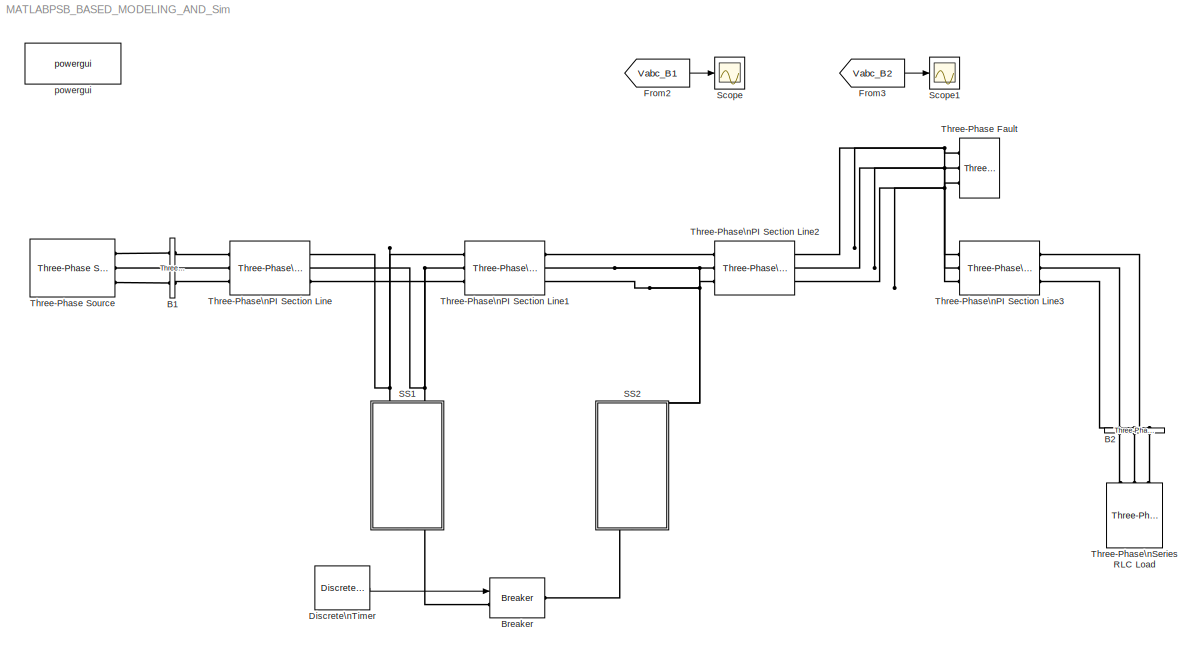
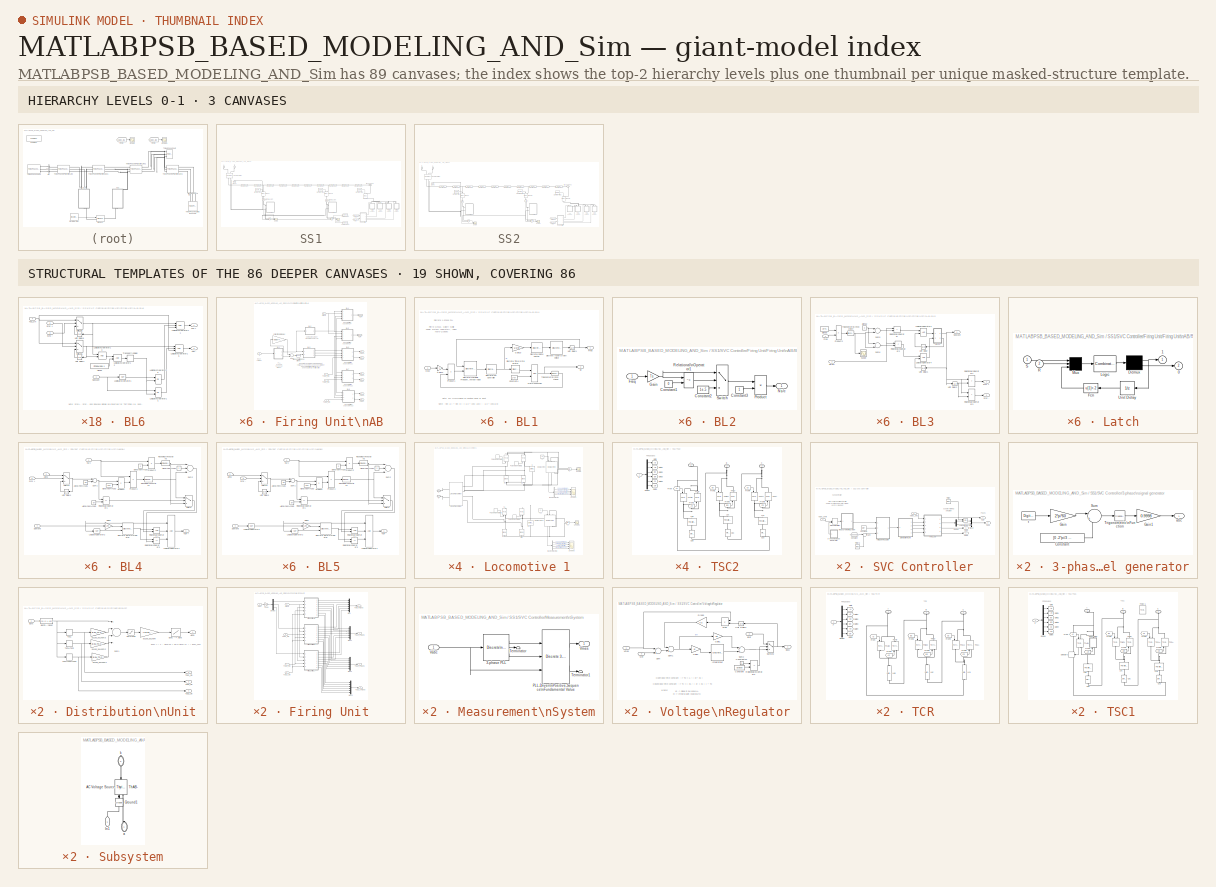
[diagram: thumbnail index - top-2 hierarchy levels (3 canvases) + 19 structural-template representatives of the remaining 86 canvases]
MODEL MATLABPSB_BASED_MODELING_AND_Sim
KIND model
CONFIG PreLoadFcn = Ts=50e-6;  
BLOCK [Reference] B1  REF=powerlib/Measurements/Three-Phase\nV-I Measurement
  CurrentMeasurement = yes
  Ipu = off
  LabelI = Iabc_B1
  LabelV = Vabc_B1
  OutputType = Complex
  PSBequivalent = 0
  Pbase = 100e6
  PhasorSimulation = off
  Ports = [0, 0, 0, 0, 0, 3, 3]
  SID = 963
  SetLabelI = on
  SetLabelV = on
  SourceBlock = powerlib/Measurements/Three-Phase\nV-I Measurement
  SourceType = Three-Phase VI Measurement
  Vbase = 220e3
  VoltageMeasurement = phase-to-ground
  Vpu = on
  VpuLL = off
BLOCK [Reference] B2  REF=powerlib/Measurements/Three-Phase\nV-I Measurement
  CurrentMeasurement = yes
  Ipu = off
  LabelI = Iabc_B2
  LabelV = Vabc_B2
  OutputType = Complex
  PSBequivalent = 0
  Pbase = 100e6
  PhasorSimulation = off
  Ports = [0, 0, 0, 0, 0, 3, 3]
  SID = 964
  SetLabelI = on
  SetLabelV = on
  SourceBlock = powerlib/Measurements/Three-Phase\nV-I Measurement
  SourceType = Three-Phase VI Measurement
  Vbase = 220e3
  VoltageMeasurement = phase-to-phase
  Vpu = off
  VpuLL = on
BLOCK [Reference] Breaker  REF=powerlib/Elements/Breaker
  BreakerResistance = 0.01
  External = on
  InitialState = 0
  Measurements = None
  MoreParameters = off
  NoBreakLoop = off
  Ports = [1, 0, 0, 0, 0, 1, 1]
  SID = 965
  SnubberCapacitance = inf
  SnubberResistance = 1e6
  SourceBlock = powerlib/Elements/Breaker
  SourceType = Breaker
  SwitchingTimes = [ 1/60  5/60 ]
BLOCK [Reference] Discrete\nTimer  REF=powerlib_extras/Discrete \nControl Blocks/Discrete\nTimer
  Ports = [0, 1]
  SID = 966
  SourceBlock = powerlib_extras/Discrete \nControl Blocks/Discrete\nTimer
  SourceType = Timer
  Ts = Ts
  e = [0 1]
  t = [0 1]
BLOCK [From] From2
  GotoTag = Vabc_B1
  SID = 967
  TagVisibility = global
BLOCK [From] From3
  GotoTag = Vabc_B2
  SID = 968
  TagVisibility = global
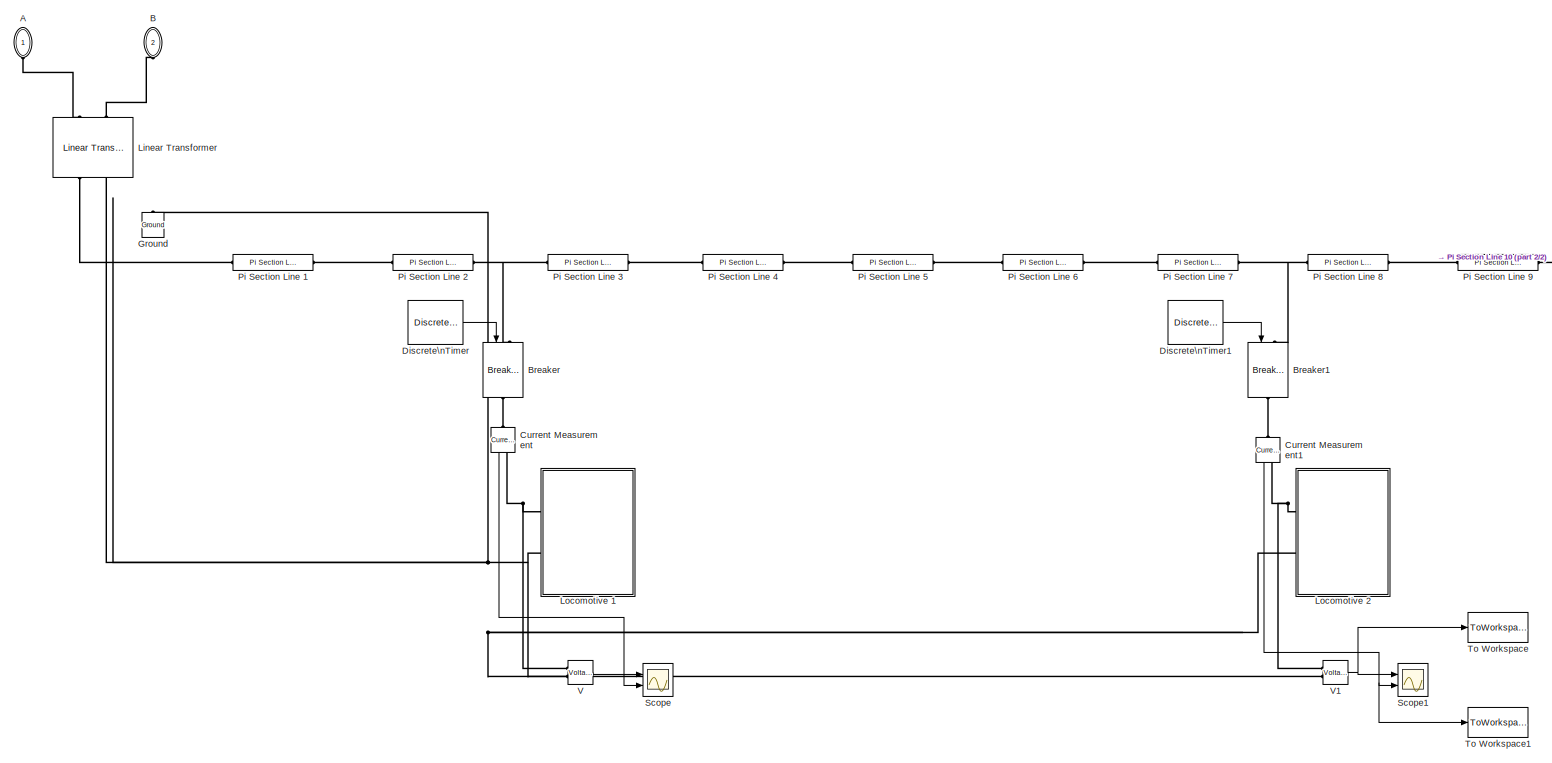
[diagram: SS1 - part 1/2, center side, full height]
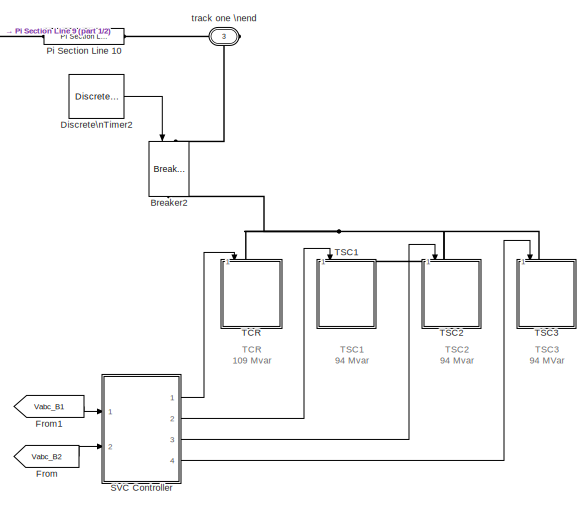
[diagram: SS1 - part 2/2, middle right region]
BLOCK [SubSystem] SS1
  FunctionWithSeparateData = off
  MaskHideContents = off
  MinAlgLoopOccurrences = off
  Opaque = off
  Ports = [0, 0, 0, 0, 0, 2, 1]
  PropExecContextOutsideSubsystem = off
  RTWSystemCode = Auto
  RequestExecContextInheritance = off
  SID = 969
BLOCK [PMIOPort] SS1/A
  Port = 1
  SID = 1913
  Side = Left
  Tag = PMCPort
BLOCK [PMIOPort] SS1/B
  Port = 2
  SID = 1914
  Side = Left
  Tag = PMCPort
BLOCK [Reference] SS1/Breaker  REF=powerlib/Elements/Breaker
  BreakerResistance = 0.01
  External = on
  InitialState = 0
  Measurements = None
  MoreParameters = off
  NoBreakLoop = off
  Ports = [1, 0, 0, 0, 0, 1, 1]
  SID = 970
  SnubberCapacitance = inf
  SnubberResistance = 1e6
  SourceBlock = powerlib/Elements/Breaker
  SourceType = Breaker
  SwitchingTimes = [ 1/60  5/60 ]
BLOCK [Reference] SS1/Breaker1  REF=powerlib/Elements/Breaker
  BreakerResistance = 0.01
  External = on
  InitialState = 0
  Measurements = None
  MoreParameters = off
  NoBreakLoop = off
  Ports = [1, 0, 0, 0, 0, 1, 1]
  SID = 971
  SnubberCapacitance = inf
  SnubberResistance = 1e6
  SourceBlock = powerlib/Elements/Breaker
  SourceType = Breaker
  SwitchingTimes = [ 1/60  5/60 ]
BLOCK [Reference] SS1/Breaker2  REF=powerlib/Elements/Breaker
  BreakerResistance = 0.01
  External = on
  InitialState = 0
  Measurements = None
  MoreParameters = off
  NoBreakLoop = off
  Ports = [1, 0, 0, 0, 0, 1, 1]
  SID = 972
  SnubberCapacitance = inf
  SnubberResistance = 1e6
  SourceBlock = powerlib/Elements/Breaker
  SourceType = Breaker
  SwitchingTimes = [ 1/60  5/60 ]
BLOCK [Reference] SS1/Current Measurement  REF=powerlib/Measurements/Current Measurement
  OutputType = Complex
  PSBequivalent = 0
  PhasorSimulation = off
  Ports = [0, 1, 0, 0, 0, 1, 1]
  SID = 973
  SourceBlock = powerlib/Measurements/Current Measurement
  SourceType = Current Measurement
BLOCK [Reference] SS1/Current Measurement1  REF=powerlib/Measurements/Current Measurement
  OutputType = Complex
  PSBequivalent = 0
  PhasorSimulation = off
  Ports = [0, 1, 0, 0, 0, 1, 1]
  SID = 974
  SourceBlock = powerlib/Measurements/Current Measurement
  SourceType = Current Measurement
BLOCK [Reference] SS1/Discrete\nTimer  REF=powerlib_extras/Discrete \nControl Blocks/Discrete\nTimer
  Ports = [0, 1]
  SID = 975
  SourceBlock = powerlib_extras/Discrete \nControl Blocks/Discrete\nTimer
  SourceType = Timer
  Ts = Ts
  e = [0 1]
  t = [0 0.01]
BLOCK [Reference] SS1/Discrete\nTimer1  REF=powerlib_extras/Discrete \nControl Blocks/Discrete\nTimer
  Ports = [0, 1]
  SID = 976
  SourceBlock = powerlib_extras/Discrete \nControl Blocks/Discrete\nTimer
  SourceType = Timer
  Ts = Ts
  e = [0 1]
  t = [0 0.1]
BLOCK [Reference] SS1/Discrete\nTimer2  REF=powerlib_extras/Discrete \nControl Blocks/Discrete\nTimer
  Ports = [0, 1]
  SID = 977
  SourceBlock = powerlib_extras/Discrete \nControl Blocks/Discrete\nTimer
  SourceType = Timer
  Ts = Ts
  e = [0 1]
  t = [0 0.6]
BLOCK [From] SS1/From
  CloseFcn = tagdialog Close
  GotoTag = Vabc_B2
  SID = 5
  TagVisibility = global
BLOCK [From] SS1/From1
  CloseFcn = tagdialog Close
  GotoTag = Vabc_B1
  SID = 6
  TagVisibility = global
BLOCK [Reference] SS1/Ground  REF=powerlib/Elements/Ground
  LConnTagsString = a
  Ports = [0, 0, 0, 0, 0, 1]
  SID = 980
  SourceBlock = powerlib/Elements/Ground
  SourceType = Ground
BLOCK [Reference] SS1/Linear Transformer  REF=powerlib/Elements/Linear Transformer
  DataType = off
  LConnTagsString = a|b
  Measurements = None
  NominalPower = [ 25e6 50 ]
  Ports = [0, 0, 0, 0, 0, 2, 2]
  RConnTagsString = A|B
  RmLm = [ 500 500 ]
  SID = 981
  SourceBlock = powerlib/Elements/Linear Transformer
  SourceType = Linear Transformer
  ThreeWindings = off
  UNITS = pu
  winding1 = [ 220e3  0.001  0.06 ]
  winding2 = [ 25e3  0.001  0.06 ]
  winding3 = [ 315e3 0.002 0.08 ]
BLOCK [SubSystem] SS1/Locomotive 1
  FunctionWithSeparateData = off
  MaskHideContents = off
  MinAlgLoopOccurrences = off
  Opaque = off
  Ports = [0, 0, 0, 0, 0, 2]
  PropExecContextOutsideSubsystem = off
  RTWSystemCode = Auto
  RequestExecContextInheritance = off
  SID = 982
BLOCK [PMIOPort] SS1/Locomotive 1/A
  Port = 1
  SID = 1010
  Side = Left
  Tag = PMCPort
BLOCK [PMIOPort] SS1/Locomotive 1/B
  Port = 2
  SID = 1011
  Side = Left
  Tag = PMCPort
BLOCK [BusSelector] SS1/Locomotive 1/Bus\nSelector
  OutputSignals = Speed wm (rad/s),Armature current ia (A),Field current if (A),Electrical torque Te (n m)
  Ports = [1, 4]
  SID = 983
BLOCK [BusSelector] SS1/Locomotive 1/Bus\nSelector1
  OutputSignals = Speed wm (rad/s),Armature current ia (A),Field current if (A),Electrical torque Te (n m)
  Ports = [1, 4]
  SID = 984
BLOCK [Reference] SS1/Locomotive 1/C  REF=powerlib/Elements/Series RLC Branch
  BranchType = C
  Capacitance = 2000e-6
  Inductance = 1e-3
  InitialCurrent = 0
  InitialVoltage = 400
  LConnTagsString = __new0
  Measurements = None
  Ports = [0, 0, 0, 0, 0, 1, 1]
  RConnTagsString = __new0
  Resistance = 1000
  SID = 985
  SetiL0 = off
  Setx0 = on
  SourceBlock = powerlib/Elements/Series RLC Branch
  SourceType = Series RLC Branch
BLOCK [Reference] SS1/Locomotive 1/C1  REF=powerlib/Elements/Series RLC Branch
  BranchType = C
  Capacitance = 2000e-6
  Inductance = 1e-3
  InitialCurrent = 0
  InitialVoltage = 400
  LConnTagsString = __new0
  Measurements = None
  Ports = [0, 0, 0, 0, 0, 1, 1]
  RConnTagsString = __new0
  Resistance = 1000
  SID = 986
  SetiL0 = off
  Setx0 = on
  SourceBlock = powerlib/Elements/Series RLC Branch
  SourceType = Series RLC Branch
BLOCK [Reference] SS1/Locomotive 1/D1  REF=powerlib/Power\nElectronics/Diode
  Cs = 250e-9
  IC = 0
  Lon = 0
  Measurements = on
  Ports = [0, 1, 0, 0, 0, 1, 1]
  Ron = 0.001
  Rs = 500
  SID = 987
  SourceBlock = powerlib/Power\nElectronics/Diode
  SourceType = Diode
  UseSnubber = off
  Vf = 0.8
BLOCK [Reference] SS1/Locomotive 1/D2  REF=powerlib/Power\nElectronics/Diode
  Cs = 250e-9
  IC = 0
  Lon = 0
  Measurements = on
  Ports = [0, 1, 0, 0, 0, 1, 1]
  Ron = 0.001
  Rs = 500
  SID = 988
  SourceBlock = powerlib/Power\nElectronics/Diode
  SourceType = Diode
  UseSnubber = off
  Vf = 0.8
BLOCK [Reference] SS1/Locomotive 1/D3  REF=powerlib/Power\nElectronics/Diode
  Cs = 250e-9
  IC = 0
  Lon = 0
  Measurements = on
  Ports = [0, 1, 0, 0, 0, 1, 1]
  Ron = 0.001
  Rs = 500
  SID = 989
  SourceBlock = powerlib/Power\nElectronics/Diode
  SourceType = Diode
  UseSnubber = off
  Vf = 0.8
BLOCK [Reference] SS1/Locomotive 1/D4  REF=powerlib/Power\nElectronics/Diode
  Cs = 250e-9
  IC = 0
  Lon = 0
  Measurements = on
  Ports = [0, 1, 0, 0, 0, 1, 1]
  Ron = 0.001
  Rs = 500
  SID = 990
  SourceBlock = powerlib/Power\nElectronics/Diode
  SourceType = Diode
  UseSnubber = off
  Vf = 0.8
BLOCK [Reference] SS1/Locomotive 1/DC Machine  REF=powerlib/Machines/DC Machine
  Bm = 0
  FieldType = Wound
  Ifinit = 1
  J = 0.1
  Ke = 1.8
  Kt = 1.8
  Laf = 1.8
  MachineConstant = Torque constant (N.m/A)
  MechanicalLoad = Torque TL
  Ports = [1, 1, 0, 0, 0, 2, 2]
  PresetModel = No
  RLa = [ 2.6  150e-3]
  RLf = [0.6 20e-3]
  SID = 991
  ShowDetailedParameters = on
  SourceBlock = powerlib/Machines/DC Machine
  SourceType = DC machine
  Tf = 0
  TsBlock = -1
  TsPowergui = 0
  w0 = 1
BLOCK [Reference] SS1/Locomotive 1/DC Machine1  REF=powerlib/Machines/DC Machine
  Bm = 0
  FieldType = Wound
  Ifinit = 1
  J = 0.1
  Ke = 1.8
  Kt = 1.8
  Laf = 1.8
  MachineConstant = Torque constant (N.m/A)
  MechanicalLoad = Torque TL
  Ports = [1, 1, 0, 0, 0, 2, 2]
  PresetModel = No
  RLa = [ 2.6  150e-3]
  RLf = [0.6 20e-3]
  SID = 992
  ShowDetailedParameters = on
  SourceBlock = powerlib/Machines/DC Machine
  SourceType = DC machine
  Tf = 0
  TsBlock = -1
  TsPowergui = 0
  w0 = 1
BLOCK [Reference] SS1/Locomotive 1/Linear Transformer  REF=powerlib/Elements/Linear Transformer
  DataType = off
  LConnTagsString = a|b
  Measurements = None
  NominalPower = [ 10e6 50 ]
  Ports = [0, 0, 0, 0, 0, 2, 4]
  RConnTagsString = A|B|C|D
  RmLm = [ 500 500 ]
  SID = 993
  SourceBlock = powerlib/Elements/Linear Transformer
  SourceType = Linear Transformer
  ThreeWindings = on
  UNITS = pu
  winding1 = [ 25e3  0.0001  0.04 ]
  winding2 = [ 400  0.0001  0.02 ]
  winding3 = [ 400  0.0001  0.02 ]
BLOCK [DiscretePulseGenerator] SS1/Locomotive 1/Pulse\nGenerator
  Period = 20e-3
  Ports = [0, 1]
  PulseType = Time based
  PulseWidth = 3
  SID = 994
BLOCK [DiscretePulseGenerator] SS1/Locomotive 1/Pulse\nGenerator1
  Period = 20e-3
  PhaseDelay = 10e-3
  Ports = [0, 1]
  PulseType = Time based
  PulseWidth = 3
  SID = 995
BLOCK [DiscretePulseGenerator] SS1/Locomotive 1/Pulse\nGenerator2
  Period = 20e-3
  Ports = [0, 1]
  PulseType = Time based
  PulseWidth = 3
  SID = 996
BLOCK [DiscretePulseGenerator] SS1/Locomotive 1/Pulse\nGenerator3
  Period = 20e-3
  PhaseDelay = 10e-3
  Ports = [0, 1]
  PulseType = Time based
  PulseWidth = 3
  SID = 997
BLOCK [Scope] SS1/Locomotive 1/Scope
  DataFormat = StructureWithTime
  Decimation = 5
  Floating = off
  LimitDataPoints = off
  NumInputPorts = 1
  Ports = [1]
  SID = 998
  SampleTime = 0
  SaveName = ScopeData3
  ShowLegends = off
  YMax = 800
  YMin = -50
  ZoomMode = xonly
BLOCK [Scope] SS1/Locomotive 1/Scope1
  DataFormat = StructureWithTime
  Decimation = 5
  Floating = off
  LimitDataPoints = off
  NumInputPorts = 4
  Ports = [4]
  SID = 999
  SampleTime = 0
  SaveName = ScopeData4
  ShowLegends = off
  YMax = 100~5~5~20
  YMin = 0~-5~-5~-5
  ZoomMode = yonly
BLOCK [Scope] SS1/Locomotive 1/Scope2
  DataFormat = StructureWithTime
  Decimation = 5
  Floating = off
  LimitDataPoints = off
  NumInputPorts = 1
  Ports = [1]
  SID = 1000
  SampleTime = 0
  SaveName = ScopeData5
  ShowLegends = off
  YMax = 800
  YMin = -50
  ZoomMode = xonly
BLOCK [Scope] SS1/Locomotive 1/Scope3
  DataFormat = StructureWithTime
  Decimation = 5
  Floating = off
  LimitDataPoints = off
  NumInputPorts = 4
  Ports = [4]
  SID = 1001
  SampleTime = 0
  SaveName = ScopeData6
  ShowLegends = off
  YMax = 100~5~5~20
  YMin = 0~-5~-5~-5
  ZoomMode = yonly
BLOCK [Reference] SS1/Locomotive 1/T1  REF=powerlib/Power\nElectronics/Thyristor
  Cs = 250e-9
  IC = 0
  Lon = 0
  Measurements = on
  Ports = [1, 1, 0, 0, 0, 1, 1]
  Ron = 0.001
  Rs = 500
  SID = 1002
  SourceBlock = powerlib/Power\nElectronics/Thyristor
  SourceType = Thyristor
  Vf = 0.8
BLOCK [Reference] SS1/Locomotive 1/T2  REF=powerlib/Power\nElectronics/Thyristor
  Cs = 250e-9
  IC = 0
  Lon = 0
  Measurements = on
  Ports = [1, 1, 0, 0, 0, 1, 1]
  Ron = 0.001
  Rs = 500
  SID = 1003
  SourceBlock = powerlib/Power\nElectronics/Thyristor
  SourceType = Thyristor
  Vf = 0.8
BLOCK [Reference] SS1/Locomotive 1/T3  REF=powerlib/Power\nElectronics/Thyristor
  Cs = 250e-9
  IC = 0
  Lon = 0
  Measurements = on
  Ports = [1, 1, 0, 0, 0, 1, 1]
  Ron = 0.001
  Rs = 500
  SID = 1004
  SourceBlock = powerlib/Power\nElectronics/Thyristor
  SourceType = Thyristor
  Vf = 0.8
BLOCK [Reference] SS1/Locomotive 1/T4  REF=powerlib/Power\nElectronics/Thyristor
  Cs = 250e-9
  IC = 0
  Lon = 0
  Measurements = on
  Ports = [1, 1, 0, 0, 0, 1, 1]
  Ron = 0.001
  Rs = 500
  SID = 1005
  SourceBlock = powerlib/Power\nElectronics/Thyristor
  SourceType = Thyristor
  Vf = 0.8
BLOCK [Constant] SS1/Locomotive 1/TL
  SID = 1006
  Value = 10
BLOCK [Constant] SS1/Locomotive 1/TL1
  SID = 1007
  Value = 10
BLOCK [Reference] SS1/Locomotive 1/V  REF=powerlib/Measurements/Voltage Measurement
  OutputType = Complex
  PSBequivalent = 0
  PhasorSimulation = off
  Ports = [0, 1, 0, 0, 0, 2]
  SID = 1008
  SourceBlock = powerlib/Measurements/Voltage Measurement
  SourceType = Voltage Measurement
BLOCK [Reference] SS1/Locomotive 1/V1  REF=powerlib/Measurements/Voltage Measurement
  OutputType = Complex
  PSBequivalent = 0
  PhasorSimulation = off
  Ports = [0, 1, 0, 0, 0, 2]
  SID = 1009
  SourceBlock = powerlib/Measurements/Voltage Measurement
  SourceType = Voltage Measurement
BLOCK [SubSystem] SS1/Locomotive 2
  FunctionWithSeparateData = off
  MaskHideContents = off
  MinAlgLoopOccurrences = off
  Opaque = off
  Ports = [0, 0, 0, 0, 0, 2]
  PropExecContextOutsideSubsystem = off
  RTWSystemCode = Auto
  RequestExecContextInheritance = off
  SID = 1012
BLOCK [PMIOPort] SS1/Locomotive 2/A
  Port = 1
  SID = 1040
  Side = Left
  Tag = PMCPort
BLOCK [PMIOPort] SS1/Locomotive 2/B
  Port = 2
  SID = 1041
  Side = Left
  Tag = PMCPort
BLOCK [BusSelector] SS1/Locomotive 2/Bus\nSelector
  OutputSignals = Speed wm (rad/s),Armature current ia (A),Field current if (A),Electrical torque Te (n m)
  Ports = [1, 4]
  SID = 1013
BLOCK [BusSelector] SS1/Locomotive 2/Bus\nSelector1
  OutputSignals = Speed wm (rad/s),Armature current ia (A),Field current if (A),Electrical torque Te (n m)
  Ports = [1, 4]
  SID = 1014
BLOCK [Reference] SS1/Locomotive 2/C  REF=powerlib/Elements/Series RLC Branch
  BranchType = C
  Capacitance = 2000e-6
  Inductance = 1e-3
  InitialCurrent = 0
  InitialVoltage = 400
  LConnTagsString = __new0
  Measurements = None
  Ports = [0, 0, 0, 0, 0, 1, 1]
  RConnTagsString = __new0
  Resistance = 1000
  SID = 1015
  SetiL0 = off
  Setx0 = on
  SourceBlock = powerlib/Elements/Series RLC Branch
  SourceType = Series RLC Branch
BLOCK [Reference] SS1/Locomotive 2/C1  REF=powerlib/Elements/Series RLC Branch
  BranchType = C
  Capacitance = 2000e-6
  Inductance = 1e-3
  InitialCurrent = 0
  InitialVoltage = 400
  LConnTagsString = __new0
  Measurements = None
  Ports = [0, 0, 0, 0, 0, 1, 1]
  RConnTagsString = __new0
  Resistance = 1000
  SID = 1016
  SetiL0 = off
  Setx0 = on
  SourceBlock = powerlib/Elements/Series RLC Branch
  SourceType = Series RLC Branch
BLOCK [Reference] SS1/Locomotive 2/D1  REF=powerlib/Power\nElectronics/Diode
  Cs = 250e-9
  IC = 0
  Lon = 0
  Measurements = on
  Ports = [0, 1, 0, 0, 0, 1, 1]
  Ron = 0.001
  Rs = 500
  SID = 1017
  SourceBlock = powerlib/Power\nElectronics/Diode
  SourceType = Diode
  UseSnubber = off
  Vf = 0.8
BLOCK [Reference] SS1/Locomotive 2/D2  REF=powerlib/Power\nElectronics/Diode
  Cs = 250e-9
  IC = 0
  Lon = 0
  Measurements = on
  Ports = [0, 1, 0, 0, 0, 1, 1]
  Ron = 0.001
  Rs = 500
  SID = 1018
  SourceBlock = powerlib/Power\nElectronics/Diode
  SourceType = Diode
  UseSnubber = off
  Vf = 0.8
BLOCK [Reference] SS1/Locomotive 2/D3  REF=powerlib/Power\nElectronics/Diode
  Cs = 250e-9
  IC = 0
  Lon = 0
  Measurements = on
  Ports = [0, 1, 0, 0, 0, 1, 1]
  Ron = 0.001
  Rs = 500
  SID = 1019
  SourceBlock = powerlib/Power\nElectronics/Diode
  SourceType = Diode
  UseSnubber = off
  Vf = 0.8
BLOCK [Reference] SS1/Locomotive 2/D4  REF=powerlib/Power\nElectronics/Diode
  Cs = 250e-9
  IC = 0
  Lon = 0
  Measurements = on
  Ports = [0, 1, 0, 0, 0, 1, 1]
  Ron = 0.001
  Rs = 500
  SID = 1020
  SourceBlock = powerlib/Power\nElectronics/Diode
  SourceType = Diode
  UseSnubber = off
  Vf = 0.8
BLOCK [Reference] SS1/Locomotive 2/DC Machine  REF=powerlib/Machines/DC Machine
  Bm = 0
  FieldType = Wound
  Ifinit = 1
  J = 0.1
  Ke = 1.8
  Kt = 1.8
  Laf = 1.8
  MachineConstant = Torque constant (N.m/A)
  MechanicalLoad = Torque TL
  Ports = [1, 1, 0, 0, 0, 2, 2]
  PresetModel = No
  RLa = [ 2.6  150e-3]
  RLf = [0.6 20e-3]
  SID = 1021
  ShowDetailedParameters = on
  SourceBlock = powerlib/Machines/DC Machine
  SourceType = DC machine
  Tf = 0
  TsBlock = -1
  TsPowergui = 0
  w0 = 1
BLOCK [Reference] SS1/Locomotive 2/DC Machine1  REF=powerlib/Machines/DC Machine
  Bm = 0
  FieldType = Wound
  Ifinit = 1
  J = 0.1
  Ke = 1.8
  Kt = 1.8
  Laf = 1.8
  MachineConstant = Torque constant (N.m/A)
  MechanicalLoad = Torque TL
  Ports = [1, 1, 0, 0, 0, 2, 2]
  PresetModel = No
  RLa = [ 2.6  150e-3]
  RLf = [0.6 20e-3]
  SID = 1022
  ShowDetailedParameters = on
  SourceBlock = powerlib/Machines/DC Machine
  SourceType = DC machine
  Tf = 0
  TsBlock = -1
  TsPowergui = 0
  w0 = 1
BLOCK [Reference] SS1/Locomotive 2/Linear Transformer  REF=powerlib/Elements/Linear Transformer
  DataType = off
  LConnTagsString = a|b
  Measurements = None
  NominalPower = [ 10e6 50 ]
  Ports = [0, 0, 0, 0, 0, 2, 4]
  RConnTagsString = A|B|C|D
  RmLm = [ 500 500 ]
  SID = 1023
  SourceBlock = powerlib/Elements/Linear Transformer
  SourceType = Linear Transformer
  ThreeWindings = on
  UNITS = pu
  winding1 = [ 25e3  0.0001  0.04 ]
  winding2 = [ 400  0.0001  0.02 ]
  winding3 = [ 400  0.0001  0.02 ]
BLOCK [DiscretePulseGenerator] SS1/Locomotive 2/Pulse\nGenerator
  Period = 20e-3
  Ports = [0, 1]
  PulseType = Time based
  PulseWidth = 3
  SID = 1024
BLOCK [DiscretePulseGenerator] SS1/Locomotive 2/Pulse\nGenerator1
  Period = 20e-3
  PhaseDelay = 10e-3
  Ports = [0, 1]
  PulseType = Time based
  PulseWidth = 3
  SID = 1025
BLOCK [DiscretePulseGenerator] SS1/Locomotive 2/Pulse\nGenerator2
  Period = 20e-3
  Ports = [0, 1]
  PulseType = Time based
  PulseWidth = 3
  SID = 1026
BLOCK [DiscretePulseGenerator] SS1/Locomotive 2/Pulse\nGenerator3
  Period = 20e-3
  PhaseDelay = 10e-3
  Ports = [0, 1]
  PulseType = Time based
  PulseWidth = 3
  SID = 1027
BLOCK [Scope] SS1/Locomotive 2/Scope
  DataFormat = StructureWithTime
  Decimation = 5
  Floating = off
  LimitDataPoints = off
  NumInputPorts = 1
  Ports = [1]
  SID = 1028
  SampleTime = 0
  SaveName = ScopeData3
  ShowLegends = off
  YMax = 800
  YMin = -50
  ZoomMode = xonly
BLOCK [Scope] SS1/Locomotive 2/Scope1
  DataFormat = StructureWithTime
  Decimation = 5
  Floating = off
  LimitDataPoints = off
  NumInputPorts = 4
  Ports = [4]
  SID = 1029
  SampleTime = 0
  SaveName = ScopeData4
  ShowLegends = off
  YMax = 100~5~5~20
  YMin = 0~-5~-5~-5
  ZoomMode = yonly
BLOCK [Scope] SS1/Locomotive 2/Scope2
  DataFormat = StructureWithTime
  Decimation = 5
  Floating = off
  LimitDataPoints = off
  NumInputPorts = 1
  Ports = [1]
  SID = 1030
  SampleTime = 0
  SaveName = ScopeData5
  ShowLegends = off
  YMax = 800
  YMin = -50
  ZoomMode = xonly
BLOCK [Scope] SS1/Locomotive 2/Scope3
  DataFormat = StructureWithTime
  Decimation = 5
  Floating = off
  LimitDataPoints = off
  NumInputPorts = 4
  Ports = [4]
  SID = 1031
  SampleTime = 0
  SaveName = ScopeData6
  ShowLegends = off
  YMax = 100~5~5~20
  YMin = 0~-5~-5~-5
  ZoomMode = yonly
BLOCK [Reference] SS1/Locomotive 2/T1  REF=powerlib/Power\nElectronics/Thyristor
  Cs = 250e-9
  IC = 0
  Lon = 0
  Measurements = on
  Ports = [1, 1, 0, 0, 0, 1, 1]
  Ron = 0.001
  Rs = 500
  SID = 1032
  SourceBlock = powerlib/Power\nElectronics/Thyristor
  SourceType = Thyristor
  Vf = 0.8
BLOCK [Reference] SS1/Locomotive 2/T2  REF=powerlib/Power\nElectronics/Thyristor
  Cs = 250e-9
  IC = 0
  Lon = 0
  Measurements = on
  Ports = [1, 1, 0, 0, 0, 1, 1]
  Ron = 0.001
  Rs = 500
  SID = 1033
  SourceBlock = powerlib/Power\nElectronics/Thyristor
  SourceType = Thyristor
  Vf = 0.8
BLOCK [Reference] SS1/Locomotive 2/T3  REF=powerlib/Power\nElectronics/Thyristor
  Cs = 250e-9
  IC = 0
  Lon = 0
  Measurements = on
  Ports = [1, 1, 0, 0, 0, 1, 1]
  Ron = 0.001
  Rs = 500
  SID = 1034
  SourceBlock = powerlib/Power\nElectronics/Thyristor
  SourceType = Thyristor
  Vf = 0.8
BLOCK [Reference] SS1/Locomotive 2/T4  REF=powerlib/Power\nElectronics/Thyristor
  Cs = 250e-9
  IC = 0
  Lon = 0
  Measurements = on
  Ports = [1, 1, 0, 0, 0, 1, 1]
  Ron = 0.001
  Rs = 500
  SID = 1035
  SourceBlock = powerlib/Power\nElectronics/Thyristor
  SourceType = Thyristor
  Vf = 0.8
BLOCK [Constant] SS1/Locomotive 2/TL
  SID = 1036
  Value = 10
BLOCK [Constant] SS1/Locomotive 2/TL1
  SID = 1037
  Value = 10
BLOCK [Reference] SS1/Locomotive 2/V  REF=powerlib/Measurements/Voltage Measurement
  OutputType = Complex
  PSBequivalent = 0
  PhasorSimulation = off
  Ports = [0, 1, 0, 0, 0, 2]
  SID = 1038
  SourceBlock = powerlib/Measurements/Voltage Measurement
  SourceType = Voltage Measurement
BLOCK [Reference] SS1/Locomotive 2/V1  REF=powerlib/Measurements/Voltage Measurement
  OutputType = Complex
  PSBequivalent = 0
  PhasorSimulation = off
  Ports = [0, 1, 0, 0, 0, 2]
  SID = 1039
  SourceBlock = powerlib/Measurements/Voltage Measurement
  SourceType = Voltage Measurement
BLOCK [Reference] SS1/Pi Section Line 1  REF=powerlib/Elements/Pi Section Line
  AttributesFormatString = \\n
  Capacitance = 0.011e-6
  Frequency = 50
  Inductance = 0.432/(2*pi*50)
  LConnTagsString = __new0
  Length = 4
  Measurements = None
  PiSections = 1
  Ports = [0, 0, 0, 0, 0, 1, 1]
  RConnTagsString = __new0
  Resistance = 0.169
  SID = 1042
  SourceBlock = powerlib/Elements/Pi Section Line
  SourceType = Pi Section Line
BLOCK [Reference] SS1/Pi Section Line 10  REF=powerlib/Elements/Pi Section Line
  AttributesFormatString = \\n
  Capacitance = 0.011e-6
  Frequency = 50
  Inductance = 0.432/(2*pi*50)
  LConnTagsString = __new0
  Length = 4
  Measurements = None
  PiSections = 1
  Ports = [0, 0, 0, 0, 0, 1, 1]
  RConnTagsString = __new0
  Resistance = 0.169
  SID = 1043
  SourceBlock = powerlib/Elements/Pi Section Line
  SourceType = Pi Section Line
BLOCK [Reference] SS1/Pi Section Line 2  REF=powerlib/Elements/Pi Section Line
  AttributesFormatString = \\n
  Capacitance = 0.011e-6
  Frequency = 50
  Inductance = 0.432/(2*pi*50)
  LConnTagsString = __new0
  Length = 4
  Measurements = None
  PiSections = 1
  Ports = [0, 0, 0, 0, 0, 1, 1]
  RConnTagsString = __new0
  Resistance = 0.169
  SID = 1044
  SourceBlock = powerlib/Elements/Pi Section Line
  SourceType = Pi Section Line
BLOCK [Reference] SS1/Pi Section Line 3  REF=powerlib/Elements/Pi Section Line
  AttributesFormatString = \\n
  Capacitance = 0.011e-6
  Frequency = 50
  Inductance = 0.432/(2*pi*50)
  LConnTagsString = __new0
  Length = 4
  Measurements = None
  PiSections = 1
  Ports = [0, 0, 0, 0, 0, 1, 1]
  RConnTagsString = __new0
  Resistance = 0.169
  SID = 1045
  SourceBlock = powerlib/Elements/Pi Section Line
  SourceType = Pi Section Line
BLOCK [Reference] SS1/Pi Section Line 4  REF=powerlib/Elements/Pi Section Line
  AttributesFormatString = \\n
  Capacitance = 0.011e-6
  Frequency = 50
  Inductance = 0.432/(2*pi*50)
  LConnTagsString = __new0
  Length = 4
  Measurements = None
  PiSections = 1
  Ports = [0, 0, 0, 0, 0, 1, 1]
  RConnTagsString = __new0
  Resistance = 0.169
  SID = 1046
  SourceBlock = powerlib/Elements/Pi Section Line
  SourceType = Pi Section Line
BLOCK [Reference] SS1/Pi Section Line 5  REF=powerlib/Elements/Pi Section Line
  AttributesFormatString = \\n
  Capacitance = 0.011e-6
  Frequency = 50
  Inductance = 0.432/(2*pi*50)
  LConnTagsString = __new0
  Length = 4
  Measurements = None
  PiSections = 1
  Ports = [0, 0, 0, 0, 0, 1, 1]
  RConnTagsString = __new0
  Resistance = 0.169
  SID = 1047
  SourceBlock = powerlib/Elements/Pi Section Line
  SourceType = Pi Section Line
BLOCK [Reference] SS1/Pi Section Line 6  REF=powerlib/Elements/Pi Section Line
  AttributesFormatString = \\n
  Capacitance = 0.011e-6
  Frequency = 50
  Inductance = 0.432/(2*pi*50)
  LConnTagsString = __new0
  Length = 4
  Measurements = None
  PiSections = 1
  Ports = [0, 0, 0, 0, 0, 1, 1]
  RConnTagsString = __new0
  Resistance = 0.169
  SID = 1048
  SourceBlock = powerlib/Elements/Pi Section Line
  SourceType = Pi Section Line
BLOCK [Reference] SS1/Pi Section Line 7  REF=powerlib/Elements/Pi Section Line
  AttributesFormatString = \\n
  Capacitance = 0.011e-6
  Frequency = 50
  Inductance = 0.432/(2*pi*50)
  LConnTagsString = __new0
  Length = 4
  Measurements = None
  PiSections = 1
  Ports = [0, 0, 0, 0, 0, 1, 1]
  RConnTagsString = __new0
  Resistance = 0.169
  SID = 1049
  SourceBlock = powerlib/Elements/Pi Section Line
  SourceType = Pi Section Line
BLOCK [Reference] SS1/Pi Section Line 8  REF=powerlib/Elements/Pi Section Line
  AttributesFormatString = \\n
  Capacitance = 0.011e-6
  Frequency = 50
  Inductance = 0.432/(2*pi*50)
  LConnTagsString = __new0
  Length = 4
  Measurements = None
  PiSections = 1
  Ports = [0, 0, 0, 0, 0, 1, 1]
  RConnTagsString = __new0
  Resistance = 0.169
  SID = 1050
  SourceBlock = powerlib/Elements/Pi Section Line
  SourceType = Pi Section Line
BLOCK [Reference] SS1/Pi Section Line 9  REF=powerlib/Elements/Pi Section Line
  AttributesFormatString = \\n
  Capacitance = 0.011e-6
  Frequency = 50
  Inductance = 0.432/(2*pi*50)
  LConnTagsString = __new0
  Length = 4
  Measurements = None
  PiSections = 1
  Ports = [0, 0, 0, 0, 0, 1, 1]
  RConnTagsString = __new0
  Resistance = 0.169
  SID = 1051
  SourceBlock = powerlib/Elements/Pi Section Line
  SourceType = Pi Section Line
BLOCK [SubSystem] SS1/SVC Controller
  FunctionWithSeparateData = off
  MaskHideContents = off
  MinAlgLoopOccurrences = off
  Opaque = off
  Ports = [2, 4]
  PropExecContextOutsideSubsystem = off
  RTWSystemCode = Auto
  RequestExecContextInheritance = off
  SID = 11
BLOCK [SubSystem] SS1/SVC Controller/3-phase\nsignal generator
  FunctionWithSeparateData = off
  MaskHideContents = off
  MinAlgLoopOccurrences = off
  Opaque = off
  Ports = [0, 1]
  PropExecContextOutsideSubsystem = off
  RTWSystemCode = Auto
  RequestExecContextInheritance = off
  SID = 14
BLOCK [Constant] SS1/SVC Controller/3-phase\nsignal generator/Constant
  SID = 15
  Value = [0 -2*pi/3 2*pi/3]-2*pi/180
BLOCK [Gain] SS1/SVC Controller/3-phase\nsignal generator/Gain
  Gain = 2*pi*60
  SID = 16
BLOCK [Gain] SS1/SVC Controller/3-phase\nsignal generator/Gain1
  Gain = 0.9998
  SID = 17
BLOCK [Sum] SS1/SVC Controller/3-phase\nsignal generator/Sum
  IconShape = round
  InputSameDT = off
  Inputs = |++
  OutDataTypeStr = Inherit: Inherit via internal rule
  Ports = [2, 1]
  SID = 18
BLOCK [Trigonometry] SS1/SVC Controller/3-phase\nsignal generator/Trigonometric\nFunction
  Ports = [1, 1]
  SID = 19
BLOCK [Outport] SS1/SVC Controller/3-phase\nsignal generator/abc
  IconDisplay = Port number
  SID = 21
BLOCK [DigitalClock] SS1/SVC Controller/3-phase\nsignal generator/t
  SID = 20
  SampleTime = Ts
BLOCK [Constant] SS1/SVC Controller/Constant
  SID = 22
  Value = 0.00000001
BLOCK [Constant] SS1/SVC Controller/Constant1
  SID = 23
  Value = Bref
BLOCK [Demux] SS1/SVC Controller/Demux
  Outputs = [1 5]
  Ports = [1, 2]
  SID = 24
BLOCK [SubSystem] SS1/SVC Controller/Distribution\nUnit
  FunctionWithSeparateData = off
  MaskHideContents = off
  MinAlgLoopOccurrences = off
  Opaque = off
  Ports = [1, 4]
  PropExecContextOutsideSubsystem = off
  RTWSystemCode = Auto
  RequestExecContextInheritance = off
  SID = 25
BLOCK [Outport] SS1/SVC Controller/Distribution\nUnit/Alpha
  IconDisplay = Port number
  InitialOutput = 0
  SID = 38
BLOCK [Fcn] SS1/SVC Controller/Distribution\nUnit/Bprim-->Bsec
  Expr = u[1]/(1 + u[1]*Xf_xfo*100e6/Pnom_xfo)
  SID = 27
BLOCK [Lookup] SS1/SVC Controller/Distribution\nUnit/Bsec --> Alpha
  InputValues = B
  SID = 28
  Table = A
BLOCK [Inport] SS1/SVC Controller/Distribution\nUnit/Bsvc
  IconDisplay = Port number
  PortDimensions = 1
  SID = 26
BLOCK [Saturate] SS1/SVC Controller/Distribution\nUnit/Saturation
  InputPortMap = u0
  LowerLimit = Bpu_TCR
  Ports = [1, 1]
  SID = 29
  UpperLimit = 0
BLOCK [Sum] SS1/SVC Controller/Distribution\nUnit/Sum1
  Inputs = +---
  Ports = [4, 1]
  SID = 30
BLOCK [Relay] SS1/SVC Controller/Distribution\nUnit/TSC1
  OffSwitchValue = -1 * hyst_svc
  OnSwitchValue = 0
  SID = 31
BLOCK [Relay] SS1/SVC Controller/Distribution\nUnit/TSC1+TSC2
  OffSwitchValue = -1 * hyst_svc + Bpu_TSC
  OnSwitchValue = 0+ Bpu_TSC
  SID = 32
BLOCK [Relay] SS1/SVC Controller/Distribution\nUnit/TSC1+TSC2+TSC3
  OffSwitchValue = -1 * hyst_svc + 2*Bpu_TSC
  OnSwitchValue = 0+ 2*Bpu_TSC
  SID = 33
BLOCK [Outport] SS1/SVC Controller/Distribution\nUnit/TSC1_On
  IconDisplay = Port number
  InitialOutput = 0
  Port = 2
  SID = 39
BLOCK [Outport] SS1/SVC Controller/Distribution\nUnit/TSC2_On
  IconDisplay = Port number
  InitialOutput = 0
  Port = 3
  SID = 40
BLOCK [Outport] SS1/SVC Controller/Distribution\nUnit/TSC3_On
  IconDisplay = Port number
  InitialOutput = 0
  Port = 4
  SID = 41
BLOCK [Gain] SS1/SVC Controller/Distribution\nUnit/pu100_puLnom
  Gain = -1/Bpu_TCR
  SID = 34
BLOCK [Gain] SS1/SVC Controller/Distribution\nUnit/pu100_puLnom1
  Gain = Bpu_TSC
  SID = 35
BLOCK [Gain] SS1/SVC Controller/Distribution\nUnit/pu100_puLnom2
  Gain = Bpu_TSC
  SID = 36
BLOCK [Gain] SS1/SVC Controller/Distribution\nUnit/pu100_puLnom3
  Gain = Bpu_TSC
  SID = 37
BLOCK [SubSystem] SS1/SVC Controller/Firing Unit
  FunctionWithSeparateData = off
  MaskHideContents = off
  MinAlgLoopOccurrences = off
  Opaque = off
  Ports = [5, 4]
  PropExecContextOutsideSubsystem = off
  RTWSystemCode = Auto
  RequestExecContextInheritance = off
  SID = 43
BLOCK [Inport] SS1/SVC Controller/Firing Unit/Alpha
  IconDisplay = Port number
  Port = 2
  PortDimensions = 1
  SID = 45
BLOCK [Demux] SS1/SVC Controller/Firing Unit/Demux
  Outputs = 3
  Ports = [1, 3]
  SID = 49
BLOCK [SubSystem] SS1/SVC Controller/Firing Unit/Firing Unit\nAB
  FunctionWithSeparateData = off
  MaskHideContents = off
  MinAlgLoopOccurrences = off
  Opaque = off
  Ports = [5, 8]
  PropExecContextOutsideSubsystem = off
  RTWSystemCode = Auto
  RequestExecContextInheritance = off
  SID = 50
BLOCK [Inport] SS1/SVC Controller/Firing Unit/Firing Unit\nAB/Alpha
  IconDisplay = Port number
  Port = 2
  PortDimensions = 1
  SID = 52
BLOCK [SubSystem] SS1/SVC Controller/Firing Unit/Firing Unit\nAB/BL1
  FunctionWithSeparateData = off
  MaskHideContents = off
  MinAlgLoopOccurrences = off
  Opaque = off
  Ports = [1, 2]
  PropExecContextOutsideSubsystem = off
  RTWSystemCode = Auto
  RequestExecContextInheritance = off
  SID = 56
BLOCK [Constant] SS1/SVC Controller/Firing Unit/Firing Unit\nAB/BL1/Constant4
  SID = 58
  Value = 2*pi
BLOCK [Reference] SS1/SVC Controller/Firing Unit/Firing Unit\nAB/BL1/Discrete \n2nd-Order\nFilter  REF=powerlib_extras/Discrete \nControl Blocks/Discrete \n2nd-Order\nFilter
  FilterType = Lowpass
  Fo = 25
  Initialize = on
  PlotResponse = off
  Ports = [1, 1]
  SID = 62
  SourceBlock = powerlib_extras/Discrete \nControl Blocks/Discrete \n2nd-Order\nFilter
  SourceType = Discrete 2nd-Order Filter
  Ts = Ts
  Vac_Init = [0 0  Finit]
  Vdc_Init = Finit
  Zeta = 0.707
  param1 = [1 500 0.1]
BLOCK [DiscreteIntegrator] SS1/SVC Controller/Firing Unit/Firing Unit\nAB/BL1/Discrete-Time\nIntegrator
  ICPrevOutput = DiscIntNeverNeededParam
  ICPrevScaledInput = DiscIntNeverNeededParam
  InitialCondition = (Phase_Init-90)*pi/180
  Ports = [1, 1]
  SID = 63
  SampleTime = Ts
BLOCK [Reference] SS1/SVC Controller/Firing Unit/Firing Unit\nAB/BL1/Discrete\nPI Controller  REF=powerlib_extras/Discrete \nControl Blocks/Discrete\nPI Controller
  Init = 2*pi*Finit
  Ki = Ki
  Kp = Kp
  Par_Limits = [1.25  0.75]*2*pi*Finit
  Ports = [1, 1]
  SID = 59
  SourceBlock = powerlib_extras/Discrete \nControl Blocks/Discrete\nPI Controller
  SourceType = Discrete PI Controller
  Ts = Ts
BLOCK [Reference] SS1/SVC Controller/Firing Unit/Firing Unit\nAB/BL1/Discrete\nRate Limiter  REF=powerlib_extras/Discrete \nControl Blocks/Discrete\nRate Limiter
  F = -10
  Ports = [1, 1]
  R = 10
  SID = 60
  SourceBlock = powerlib_extras/Discrete \nControl Blocks/Discrete\nRate Limiter
  SourceType = Discrete Rate Limiter
  Ts = Ts
  Vinit = Finit
BLOCK [Reference] SS1/SVC Controller/Firing Unit/Firing Unit\nAB/BL1/Discrete\nVariable Frequency\nMean value  REF=powerlib_extras/Discrete\nMeasurements/Discrete\nVariable Frequency\nMean value
  Finit = Finit
  Fmin = 45
  Ports = [2, 1]
  SID = 61
  SourceBlock = powerlib_extras/Discrete\nMeasurements/Discrete\nVariable Frequency\nMean value
  SourceType = Discrete Variable-Frequency Mean Value
  Ts = Ts
  Vinit = 0
BLOCK [Outport] SS1/SVC Controller/Firing Unit/Firing Unit\nAB/BL1/Freq
  IconDisplay = Port number
  SID = 70
BLOCK [Gain] SS1/SVC Controller/Firing Unit/Firing Unit\nAB/BL1/Gain10
  Gain = 1/2/pi
  SID = 64
BLOCK [Gain] SS1/SVC Controller/Firing Unit/Firing Unit\nAB/BL1/Gain12
  Gain = -1
  SID = 65
BLOCK [Math] SS1/SVC Controller/Firing Unit/Firing Unit\nAB/BL1/Math\nFunction
  Operator = mod
  Ports = [2, 1]
  SID = 66
BLOCK [Product] SS1/SVC Controller/Firing Unit/Firing Unit\nAB/BL1/Product1
  Ports = [2, 1]
  RndMeth = Floor
  SID = 67
BLOCK [Trigonometry] SS1/SVC Controller/Firing Unit/Firing Unit\nAB/BL1/Trigonometric\nFunction6
  Ports = [1, 1]
  SID = 68
BLOCK [UnitDelay] SS1/SVC Controller/Firing Unit/Firing Unit\nAB/BL1/Unit Delay1
  InitialCondition = Finit
  SID = 69
  SampleTime = Ts
BLOCK [Inport] SS1/SVC Controller/Firing Unit/Firing Unit\nAB/BL1/V(pu)
  IconDisplay = Port number
  SID = 57
BLOCK [Outport] SS1/SVC Controller/Firing Unit/Firing Unit\nAB/BL1/wt
  IconDisplay = Port number
  Port = 2
  SID = 71
BLOCK [SubSystem] SS1/SVC Controller/Firing Unit/Firing Unit\nAB/BL2
  FunctionWithSeparateData = off
  MaskHideContents = off
  MinAlgLoopOccurrences = off
  Opaque = off
  Ports = [1, 1]
  PropExecContextOutsideSubsystem = off
  RTWSystemCode = Auto
  RequestExecContextInheritance = off
  SID = 76
BLOCK [Constant] SS1/SVC Controller/Firing Unit/Firing Unit\nAB/BL2/Constant1
  SID = 78
  Value = 0
BLOCK [Constant] SS1/SVC Controller/Firing Unit/Firing Unit\nAB/BL2/Constant2
  SID = 79
  Value = 1e-5
BLOCK [Constant] SS1/SVC Controller/Firing Unit/Firing Unit\nAB/BL2/Constant3
  SID = 80
BLOCK [Inport] SS1/SVC Controller/Firing Unit/Firing Unit\nAB/BL2/Freq
  IconDisplay = Port number
  PortDimensions = 1
  SID = 77
BLOCK [Gain] SS1/SVC Controller/Firing Unit/Firing Unit\nAB/BL2/Gain
  Gain = Ts
  SID = 81
BLOCK [Outport] SS1/SVC Controller/Firing Unit/Firing Unit\nAB/BL2/Ns//c
  IconDisplay = Port number
  SID = 85
BLOCK [Product] SS1/SVC Controller/Firing Unit/Firing Unit\nAB/BL2/Product
  Inputs = /*
  Ports = [2, 1]
  RndMeth = Floor
  SID = 82
BLOCK [RelationalOperator] SS1/SVC Controller/Firing Unit/Firing Unit\nAB/BL2/Relational\nOperator1
  Operator = ~=
  Ports = [2, 1]
  SID = 83
BLOCK [Switch] SS1/SVC Controller/Firing Unit/Firing Unit\nAB/BL2/Switch
  SID = 84
  Threshold = 0.5
BLOCK [SubSystem] SS1/SVC Controller/Firing Unit/Firing Unit\nAB/BL3
  FunctionWithSeparateData = off
  MaskHideContents = off
  MinAlgLoopOccurrences = off
  Opaque = off
  Ports = [2, 3]
  PropExecContextOutsideSubsystem = off
  RTWSystemCode = Auto
  RequestExecContextInheritance = off
  SID = 86
BLOCK [Inport] SS1/SVC Controller/Firing Unit/Firing Unit\nAB/BL3/Freq
  IconDisplay = Port number
  PortDimensions = 1
  SID = 87
BLOCK [SubSystem] SS1/SVC Controller/Firing Unit/Firing Unit\nAB/BL3/Latch
  FunctionWithSeparateData = off
  MaskHideContents = off
  MinAlgLoopOccurrences = off
  Opaque = off
  Ports = [2, 2]
  PropExecContextOutsideSubsystem = off
  RTWSystemCode = Auto
  RequestExecContextInheritance = off
  SID = 89
  ShowPortLabels = none
BLOCK [Outport] SS1/SVC Controller/Firing Unit/Firing Unit\nAB/BL3/Latch/0
  IconDisplay = Port number
  InitialOutput = 0
  Port = 2
  SID = 98
BLOCK [Outport] SS1/SVC Controller/Firing Unit/Firing Unit\nAB/BL3/Latch/1
  IconDisplay = Port number
  InitialOutput = 0
  SID = 97
BLOCK [Demux] SS1/SVC Controller/Firing Unit/Firing Unit\nAB/BL3/Latch/Demux
  Outputs = 2
  Ports = [1, 2]
  SID = 92
BLOCK [Fcn] SS1/SVC Controller/Firing Unit/Firing Unit\nAB/BL3/Latch/Fcn
  Expr = u[1]>.2
  SID = 93
BLOCK [CombinatorialLogic] SS1/SVC Controller/Firing Unit/Firing Unit\nAB/BL3/Latch/Logic
  SID = 94
  TruthTable = [0 1;1 0;0 1;0 1;1 0;1 0;0 0;0 0]
BLOCK [Mux] SS1/SVC Controller/Firing Unit/Firing Unit\nAB/BL3/Latch/Mux
  Inputs = 3
  Ports = [3, 1]
  SID = 95
BLOCK [Inport] SS1/SVC Controller/Firing Unit/Firing Unit\nAB/BL3/Latch/R
  IconDisplay = Port number
  Port = 2
  SID = 91
BLOCK [Inport] SS1/SVC Controller/Firing Unit/Firing Unit\nAB/BL3/Latch/S
  IconDisplay = Port number
  SID = 90
BLOCK [UnitDelay] SS1/SVC Controller/Firing Unit/Firing Unit\nAB/BL3/Latch/Unit Delay
  SID = 96
  SampleTime = Ts
BLOCK [Logic] SS1/SVC Controller/Firing Unit/Firing Unit\nAB/BL3/Logical\nOperator2
  Ports = [2, 1]
  SID = 99
BLOCK [Logic] SS1/SVC Controller/Firing Unit/Firing Unit\nAB/BL3/Logical\nOperator4
  Ports = [2, 1]
  SID = 100
BLOCK [Product] SS1/SVC Controller/Firing Unit/Firing Unit\nAB/BL3/Product2
  Ports = [2, 1]
  RndMeth = Floor
  SID = 101
BLOCK [RelationalOperator] SS1/SVC Controller/Firing Unit/Firing Unit\nAB/BL3/Relational\nOperator
  Operator = >
  Ports = [2, 1]
  SID = 102
BLOCK [RelationalOperator] SS1/SVC Controller/Firing Unit/Firing Unit\nAB/BL3/Relational\nOperator1
  Operator = >
  Ports = [2, 1]
  SID = 103
BLOCK [RelationalOperator] SS1/SVC Controller/Firing Unit/Firing Unit\nAB/BL3/Relational\nOperator2
  Operator = <
  Ports = [2, 1]
  SID = 104
BLOCK [RelationalOperator] SS1/SVC Controller/Firing Unit/Firing Unit\nAB/BL3/Relational\nOperator3
  Operator = <
  Ports = [2, 1]
  SID = 105
BLOCK [Scope] SS1/SVC Controller/Firing Unit/Firing Unit\nAB/BL3/Scope
  DataFormat = StructureWithTime
  Floating = off
  LimitDataPoints = off
  NumInputPorts = 1
  Ports = [1]
  SID = 106
  SampleInput = on
  SampleTime = Ts
  ShowLegends = off
  YMax = 0.0004
  YMin = -0.0004
BLOCK [Outport] SS1/SVC Controller/Firing Unit/Firing Unit\nAB/BL3/SqWave
  IconDisplay = Port number
  SID = 115
BLOCK [Sum] SS1/SVC Controller/Firing Unit/Firing Unit\nAB/BL3/Sum5
  Inputs = +-
  Ports = [2, 1]
  SID = 107
BLOCK [Sum] SS1/SVC Controller/Firing Unit/Firing Unit\nAB/BL3/Sum6
  Ports = [2, 1]
  SID = 108
BLOCK [Outport] SS1/SVC Controller/Firing Unit/Firing Unit\nAB/BL3/Sync +
  IconDisplay = Port number
  Port = 2
  SID = 116
BLOCK [Outport] SS1/SVC Controller/Firing Unit/Firing Unit\nAB/BL3/Sync -
  IconDisplay = Port number
  Port = 3
  SID = 117
BLOCK [Trigonometry] SS1/SVC Controller/Firing Unit/Firing Unit\nAB/BL3/Trigonometric\nFunction7
  Ports = [1, 1]
  SID = 109
BLOCK [UnitDelay] SS1/SVC Controller/Firing Unit/Firing Unit\nAB/BL3/Unit Delay
  SID = 110
  SampleTime = Ts
BLOCK [UnitDelay] SS1/SVC Controller/Firing Unit/Firing Unit\nAB/BL3/Unit Delay1
  SID = 111
  SampleTime = Ts
BLOCK [UnitDelay] SS1/SVC Controller/Firing Unit/Firing Unit\nAB/BL3/Unit Delay2
  SID = 112
  SampleTime = Ts
BLOCK [Constant] SS1/SVC Controller/Firing Unit/Firing Unit\nAB/BL3/alpha2
  SID = 113
  Value = 0
BLOCK [Constant] SS1/SVC Controller/Firing Unit/Firing Unit\nAB/BL3/alpha9
  SID = 114
  Value = pi*Ts
BLOCK [Inport] SS1/SVC Controller/Firing Unit/Firing Unit\nAB/BL3/sin(wt)
  IconDisplay = Port number
  Port = 2
  PortDimensions = 1
  SID = 88
BLOCK [SubSystem] SS1/SVC Controller/Firing Unit/Firing Unit\nAB/BL4
  FunctionWithSeparateData = off
  MaskHideContents = off
  MinAlgLoopOccurrences = off
  Opaque = off
  Ports = [4, 1]
  PropExecContextOutsideSubsystem = off
  RTWSystemCode = Auto
  RequestExecContextInheritance = off
  SID = 118
BLOCK [Inport] SS1/SVC Controller/Firing Unit/Firing Unit\nAB/BL4/Alpha
  IconDisplay = Port number
  Port = 2
  PortDimensions = 1
  SID = 120
BLOCK [Constant] SS1/SVC Controller/Firing Unit/Firing Unit\nAB/BL4/Alpha\n90<A<181
  SID = 123
  Value = 90
BLOCK [Constant] SS1/SVC Controller/Firing Unit/Firing Unit\nAB/BL4/Alpha\n90<A<182
  SID = 124
  Value = 360
BLOCK [Constant] SS1/SVC Controller/Firing Unit/Firing Unit\nAB/BL4/Alpha\n90<A<183
  SID = 125
  Value = 2
BLOCK [Constant] SS1/SVC Controller/Firing Unit/Firing Unit\nAB/BL4/Alpha\n90<A<184
  SID = 126
  Value = 2
BLOCK [Constant] SS1/SVC Controller/Firing Unit/Firing Unit\nAB/BL4/Alpha\n90<A<185
  SID = 127
  Value = 87
BLOCK [DiscreteIntegrator] SS1/SVC Controller/Firing Unit/Firing Unit\nAB/BL4/Discrete-Time\nIntegrator
  ExternalReset = rising
  ICPrevOutput = DiscIntNeverNeededParam
  ICPrevScaledInput = DiscIntNeverNeededParam
  LimitOutput = on
  LowerSaturationLimit = 0
  Ports = [2, 1]
  SID = 128
  SampleTime = Ts
  UpperSaturationLimit = 100000
BLOCK [Gain] SS1/SVC Controller/Firing Unit/Firing Unit\nAB/BL4/Gain2
  Gain = 1/Ts
  SID = 129
BLOCK [Logic] SS1/SVC Controller/Firing Unit/Firing Unit\nAB/BL4/Logical\nOperator1
  Inputs = 3
  Ports = [3, 1]
  SID = 130
BLOCK [Logic] SS1/SVC Controller/Firing Unit/Firing Unit\nAB/BL4/Logical\nOperator2
  Inputs = 3
  Operator = NOT
  Ports = [1, 1]
  SID = 131
BLOCK [Inport] SS1/SVC Controller/Firing Unit/Firing Unit\nAB/BL4/Ns//c
  IconDisplay = Port number
  SID = 119
BLOCK [Product] SS1/SVC Controller/Firing Unit/Firing Unit\nAB/BL4/Product
  Inputs = */
  Ports = [2, 1]
  RndMeth = Floor
  SID = 132
BLOCK [Product] SS1/SVC Controller/Firing Unit/Firing Unit\nAB/BL4/Product1
  Inputs = **
  Ports = [2, 1]
  RndMeth = Floor
  SID = 133
BLOCK [Product] SS1/SVC Controller/Firing Unit/Firing Unit\nAB/BL4/Product2
  Inputs = */
  Ports = [2, 1]
  RndMeth = Floor
  SID = 134
BLOCK [RelationalOperator] SS1/SVC Controller/Firing Unit/Firing Unit\nAB/BL4/Relational\nOperator1
  Operator = <=
  Ports = [2, 1]
  SID = 135
BLOCK [RelationalOperator] SS1/SVC Controller/Firing Unit/Firing Unit\nAB/BL4/Relational\nOperator2
  Ports = [2, 1]
  SID = 136
BLOCK [RelationalOperator] SS1/SVC Controller/Firing Unit/Firing Unit\nAB/BL4/Relational\nOperator3
  Operator = <=
  Ports = [2, 1]
  SID = 137
BLOCK [Rounding] SS1/SVC Controller/Firing Unit/Firing Unit\nAB/BL4/Rounding\nFunction1
  Operator = round
  SID = 138
BLOCK [Rounding] SS1/SVC Controller/Firing Unit/Firing Unit\nAB/BL4/Rounding\nFunction3
  Operator = round
  SID = 139
BLOCK [Inport] SS1/SVC Controller/Firing Unit/Firing Unit\nAB/BL4/SqWave
  IconDisplay = Port number
  Port = 4
  PortDimensions = 1
  SID = 122
BLOCK [Sum] SS1/SVC Controller/Firing Unit/Firing Unit\nAB/BL4/Sum1
  Inputs = +-
  Ports = [2, 1]
  SID = 140
BLOCK [Sum] SS1/SVC Controller/Firing Unit/Firing Unit\nAB/BL4/Sum2
  Inputs = +--
  Ports = [3, 1]
  SID = 141
BLOCK [Switch] SS1/SVC Controller/Firing Unit/Firing Unit\nAB/BL4/Switch
  SID = 142
  Threshold = 0.5
BLOCK [Switch] SS1/SVC Controller/Firing Unit/Firing Unit\nAB/BL4/Switch1
  SID = 143
  Threshold = 0.5
BLOCK [Inport] SS1/SVC Controller/Firing Unit/Firing Unit\nAB/BL4/Sync +
  IconDisplay = Port number
  Port = 3
  PortDimensions = 1
  SID = 121
BLOCK [Outport] SS1/SVC Controller/Firing Unit/Firing Unit\nAB/BL4/TCR +
  IconDisplay = Port number
  SID = 145
BLOCK [UnitDelay] SS1/SVC Controller/Firing Unit/Firing Unit\nAB/BL4/Unit Delay1
  InitialCondition = 180
  SID = 144
  SampleTime = Ts
BLOCK [SubSystem] SS1/SVC Controller/Firing Unit/Firing Unit\nAB/BL5
  FunctionWithSeparateData = off
  MaskHideContents = off
  MinAlgLoopOccurrences = off
  Opaque = off
  Ports = [4, 1]
  PropExecContextOutsideSubsystem = off
  RTWSystemCode = Auto
  RequestExecContextInheritance = off
  SID = 146
BLOCK [Inport] SS1/SVC Controller/Firing Unit/Firing Unit\nAB/BL5/Alpha
  IconDisplay = Port number
  Port = 2
  PortDimensions = 1
  SID = 148
BLOCK [Constant] SS1/SVC Controller/Firing Unit/Firing Unit\nAB/BL5/Alpha\n90<A<181
  SID = 151
  Value = 90
BLOCK [Constant] SS1/SVC Controller/Firing Unit/Firing Unit\nAB/BL5/Alpha\n90<A<182
  SID = 152
  Value = 360
BLOCK [Constant] SS1/SVC Controller/Firing Unit/Firing Unit\nAB/BL5/Alpha\n90<A<183
  SID = 153
  Value = 2
BLOCK [Constant] SS1/SVC Controller/Firing Unit/Firing Unit\nAB/BL5/Alpha\n90<A<184
  SID = 154
  Value = 2
BLOCK [Constant] SS1/SVC Controller/Firing Unit/Firing Unit\nAB/BL5/Alpha\n90<A<185
  SID = 155
  Value = 87
BLOCK [DiscreteIntegrator] SS1/SVC Controller/Firing Unit/Firing Unit\nAB/BL5/Discrete-Time\nIntegrator
  ExternalReset = rising
  ICPrevOutput = DiscIntNeverNeededParam
  ICPrevScaledInput = DiscIntNeverNeededParam
  LimitOutput = on
  LowerSaturationLimit = 0
  Ports = [2, 1]
  SID = 156
  SampleTime = Ts
  UpperSaturationLimit = 100000
BLOCK [Gain] SS1/SVC Controller/Firing Unit/Firing Unit\nAB/BL5/Gain2
  Gain = 1/Ts
  SID = 157
BLOCK [Logic] SS1/SVC Controller/Firing Unit/Firing Unit\nAB/BL5/Logical\nOperator1
  Inputs = 3
  Ports = [3, 1]
  SID = 158
BLOCK [Logic] SS1/SVC Controller/Firing Unit/Firing Unit\nAB/BL5/Logical\nOperator2
  Inputs = 3
  Operator = NOT
  Ports = [1, 1]
  SID = 159
BLOCK [Logic] SS1/SVC Controller/Firing Unit/Firing Unit\nAB/BL5/Logical\nOperator3
  Inputs = 3
  Operator = NOT
  Ports = [1, 1]
  SID = 160
BLOCK [Inport] SS1/SVC Controller/Firing Unit/Firing Unit\nAB/BL5/Ns//c
  IconDisplay = Port number
  SID = 147
BLOCK [Product] SS1/SVC Controller/Firing Unit/Firing Unit\nAB/BL5/Product
  Inputs = */
  Ports = [2, 1]
  RndMeth = Floor
  SID = 161
BLOCK [Product] SS1/SVC Controller/Firing Unit/Firing Unit\nAB/BL5/Product1
  Inputs = **
  Ports = [2, 1]
  RndMeth = Floor
  SID = 162
BLOCK [Product] SS1/SVC Controller/Firing Unit/Firing Unit\nAB/BL5/Product2
  Inputs = */
  Ports = [2, 1]
  RndMeth = Floor
  SID = 163
BLOCK [RelationalOperator] SS1/SVC Controller/Firing Unit/Firing Unit\nAB/BL5/Relational\nOperator1
  Operator = <=
  Ports = [2, 1]
  SID = 164
BLOCK [RelationalOperator] SS1/SVC Controller/Firing Unit/Firing Unit\nAB/BL5/Relational\nOperator2
  Ports = [2, 1]
  SID = 165
BLOCK [RelationalOperator] SS1/SVC Controller/Firing Unit/Firing Unit\nAB/BL5/Relational\nOperator3
  Operator = <=
  Ports = [2, 1]
  SID = 166
BLOCK [Rounding] SS1/SVC Controller/Firing Unit/Firing Unit\nAB/BL5/Rounding\nFunction1
  Operator = round
  SID = 167
BLOCK [Rounding] SS1/SVC Controller/Firing Unit/Firing Unit\nAB/BL5/Rounding\nFunction3
  Operator = round
  SID = 168
BLOCK [Inport] SS1/SVC Controller/Firing Unit/Firing Unit\nAB/BL5/SqWave
  IconDisplay = Port number
  Port = 4
  PortDimensions = 1
  SID = 150
BLOCK [Sum] SS1/SVC Controller/Firing Unit/Firing Unit\nAB/BL5/Sum1
  Inputs = +-
  Ports = [2, 1]
  SID = 169
BLOCK [Sum] SS1/SVC Controller/Firing Unit/Firing Unit\nAB/BL5/Sum2
  Inputs = +--
  Ports = [3, 1]
  SID = 170
BLOCK [Switch] SS1/SVC Controller/Firing Unit/Firing Unit\nAB/BL5/Switch
  SID = 171
  Threshold = 0.5
BLOCK [Switch] SS1/SVC Controller/Firing Unit/Firing Unit\nAB/BL5/Switch1
  SID = 172
  Threshold = 0.5
BLOCK [Inport] SS1/SVC Controller/Firing Unit/Firing Unit\nAB/BL5/Sync -
  IconDisplay = Port number
  Port = 3
  PortDimensions = 1
  SID = 149
BLOCK [Outport] SS1/SVC Controller/Firing Unit/Firing Unit\nAB/BL5/TCR -
  IconDisplay = Port number
  SID = 174
BLOCK [UnitDelay] SS1/SVC Controller/Firing Unit/Firing Unit\nAB/BL5/Unit Delay1
  InitialCondition = 180
  SID = 173
  SampleTime = Ts
BLOCK [SubSystem] SS1/SVC Controller/Firing Unit/Firing Unit\nAB/BL6
  FunctionWithSeparateData = off
  MaskHideContents = off
  MinAlgLoopOccurrences = off
  Opaque = off
  Ports = [4, 2]
  PropExecContextOutsideSubsystem = off
  RTWSystemCode = Auto
  RequestExecContextInheritance = off
  SID = 175
BLOCK [Constant] SS1/SVC Controller/Firing Unit/Firing Unit\nAB/BL6/Alpha1
  SID = 180
  Value = FiringMode-1
BLOCK [Logic] SS1/SVC Controller/Firing Unit/Firing Unit\nAB/BL6/Logical\nOperator1
  Operator = NOT
  Ports = [1, 1]
  SID = 181
BLOCK [Logic] SS1/SVC Controller/Firing Unit/Firing Unit\nAB/BL6/Logical\nOperator10
  Operator = OR
  Ports = [2, 1]
  SID = 182
BLOCK [Logic] SS1/SVC Controller/Firing Unit/Firing Unit\nAB/BL6/Logical\nOperator11
  Inputs = 3
  Ports = [3, 1]
  SID = 183
BLOCK [Logic] SS1/SVC Controller/Firing Unit/Firing Unit\nAB/BL6/Logical\nOperator12
  Ports = [2, 1]
  SID = 184
BLOCK [Logic] SS1/SVC Controller/Firing Unit/Firing Unit\nAB/BL6/Logical\nOperator13
  Ports = [2, 1]
  SID = 185
BLOCK [Logic] SS1/SVC Controller/Firing Unit/Firing Unit\nAB/BL6/Logical\nOperator14
  Operator = OR
  Ports = [2, 1]
  SID = 186
BLOCK [Logic] SS1/SVC Controller/Firing Unit/Firing Unit\nAB/BL6/Logical\nOperator15
  Inputs = 3
  Ports = [3, 1]
  SID = 187
BLOCK [Inport] SS1/SVC Controller/Firing Unit/Firing Unit\nAB/BL6/SqWave
  IconDisplay = Port number
  PortDimensions = 1
  SID = 176
BLOCK [Switch] SS1/SVC Controller/Firing Unit/Firing Unit\nAB/BL6/Switch5
  SID = 188
  Threshold = 0.5
BLOCK [Switch] SS1/SVC Controller/Firing Unit/Firing Unit\nAB/BL6/Switch6
  SID = 189
  Threshold = 0.5
BLOCK [Inport] SS1/SVC Controller/Firing Unit/Firing Unit\nAB/BL6/Sync +
  IconDisplay = Port number
  Port = 2
  PortDimensions = 1
  SID = 177
BLOCK [Inport] SS1/SVC Controller/Firing Unit/Firing Unit\nAB/BL6/Sync -
  IconDisplay = Port number
  Port = 3
  PortDimensions = 1
  SID = 178
BLOCK [Outport] SS1/SVC Controller/Firing Unit/Firing Unit\nAB/BL6/TSC +
  IconDisplay = Port number
  SID = 193
BLOCK [Outport] SS1/SVC Controller/Firing Unit/Firing Unit\nAB/BL6/TSC -
  IconDisplay = Port number
  Port = 2
  SID = 194
BLOCK [Inport] SS1/SVC Controller/Firing Unit/Firing Unit\nAB/BL6/TSC_On
  IconDisplay = Port number
  Port = 4
  PortDimensions = 1
  SID = 179
BLOCK [TransportDelay] SS1/SVC Controller/Firing Unit/Firing Unit\nAB/BL6/Transport\nDelay
  BufferSize = 2048
  DelayTime = 1/FreqInit
  Ports = [1, 1]
  SID = 190
BLOCK [UnitDelay] SS1/SVC Controller/Firing Unit/Firing Unit\nAB/BL6/Unit Delay6
  SID = 191
  SampleTime = Ts
BLOCK [UnitDelay] SS1/SVC Controller/Firing Unit/Firing Unit\nAB/BL6/Unit Delay7
  SID = 192
  SampleTime = Ts
BLOCK [SubSystem] SS1/SVC Controller/Firing Unit/Firing Unit\nAB/BL7
  FunctionWithSeparateData = off
  MaskHideContents = off
  MinAlgLoopOccurrences = off
  Opaque = off
  Ports = [4, 2]
  PropExecContextOutsideSubsystem = off
  RTWSystemCode = Auto
  RequestExecContextInheritance = off
  SID = 196
BLOCK [Constant] SS1/SVC Controller/Firing Unit/Firing Unit\nAB/BL7/Alpha1
  SID = 201
  Value = FiringMode-1
BLOCK [Logic] SS1/SVC Controller/Firing Unit/Firing Unit\nAB/BL7/Logical\nOperator1
  Operator = NOT
  Ports = [1, 1]
  SID = 202
BLOCK [Logic] SS1/SVC Controller/Firing Unit/Firing Unit\nAB/BL7/Logical\nOperator10
  Operator = OR
  Ports = [2, 1]
  SID = 203
BLOCK [Logic] SS1/SVC Controller/Firing Unit/Firing Unit\nAB/BL7/Logical\nOperator11
  Inputs = 3
  Ports = [3, 1]
  SID = 204
BLOCK [Logic] SS1/SVC Controller/Firing Unit/Firing Unit\nAB/BL7/Logical\nOperator12
  Ports = [2, 1]
  SID = 205
BLOCK [Logic] SS1/SVC Controller/Firing Unit/Firing Unit\nAB/BL7/Logical\nOperator13
  Ports = [2, 1]
  SID = 206
BLOCK [Logic] SS1/SVC Controller/Firing Unit/Firing Unit\nAB/BL7/Logical\nOperator14
  Operator = OR
  Ports = [2, 1]
  SID = 207
BLOCK [Logic] SS1/SVC Controller/Firing Unit/Firing Unit\nAB/BL7/Logical\nOperator15
  Inputs = 3
  Ports = [3, 1]
  SID = 208
BLOCK [Inport] SS1/SVC Controller/Firing Unit/Firing Unit\nAB/BL7/SqWave
  IconDisplay = Port number
  PortDimensions = 1
  SID = 197
BLOCK [Switch] SS1/SVC Controller/Firing Unit/Firing Unit\nAB/BL7/Switch5
  SID = 209
  Threshold = 0.5
BLOCK [Switch] SS1/SVC Controller/Firing Unit/Firing Unit\nAB/BL7/Switch6
  SID = 210
  Threshold = 0.5
BLOCK [Inport] SS1/SVC Controller/Firing Unit/Firing Unit\nAB/BL7/Sync +
  IconDisplay = Port number
  Port = 2
  PortDimensions = 1
  SID = 198
BLOCK [Inport] SS1/SVC Controller/Firing Unit/Firing Unit\nAB/BL7/Sync -
  IconDisplay = Port number
  Port = 3
  PortDimensions = 1
  SID = 199
BLOCK [Outport] SS1/SVC Controller/Firing Unit/Firing Unit\nAB/BL7/TSC +
  IconDisplay = Port number
  SID = 214
BLOCK [Outport] SS1/SVC Controller/Firing Unit/Firing Unit\nAB/BL7/TSC -
  IconDisplay = Port number
  Port = 2
  SID = 215
BLOCK [Inport] SS1/SVC Controller/Firing Unit/Firing Unit\nAB/BL7/TSC_On
  IconDisplay = Port number
  Port = 4
  PortDimensions = 1
  SID = 200
BLOCK [TransportDelay] SS1/SVC Controller/Firing Unit/Firing Unit\nAB/BL7/Transport\nDelay
  BufferSize = 2048
  DelayTime = 1/FreqInit
  Ports = [1, 1]
  SID = 211
BLOCK [UnitDelay] SS1/SVC Controller/Firing Unit/Firing Unit\nAB/BL7/Unit Delay6
  SID = 212
  SampleTime = Ts
BLOCK [UnitDelay] SS1/SVC Controller/Firing Unit/Firing Unit\nAB/BL7/Unit Delay7
  SID = 213
  SampleTime = Ts
BLOCK [SubSystem] SS1/SVC Controller/Firing Unit/Firing Unit\nAB/BL8
  FunctionWithSeparateData = off
  MaskHideContents = off
  MinAlgLoopOccurrences = off
  Opaque = off
  Ports = [4, 2]
  PropExecContextOutsideSubsystem = off
  RTWSystemCode = Auto
  RequestExecContextInheritance = off
  SID = 217
BLOCK [Constant] SS1/SVC Controller/Firing Unit/Firing Unit\nAB/BL8/Alpha1
  SID = 222
  Value = FiringMode-1
BLOCK [Logic] SS1/SVC Controller/Firing Unit/Firing Unit\nAB/BL8/Logical\nOperator1
  Operator = NOT
  Ports = [1, 1]
  SID = 223
BLOCK [Logic] SS1/SVC Controller/Firing Unit/Firing Unit\nAB/BL8/Logical\nOperator10
  Operator = OR
  Ports = [2, 1]
  SID = 224
BLOCK [Logic] SS1/SVC Controller/Firing Unit/Firing Unit\nAB/BL8/Logical\nOperator11
  Inputs = 3
  Ports = [3, 1]
  SID = 225
BLOCK [Logic] SS1/SVC Controller/Firing Unit/Firing Unit\nAB/BL8/Logical\nOperator12
  Ports = [2, 1]
  SID = 226
BLOCK [Logic] SS1/SVC Controller/Firing Unit/Firing Unit\nAB/BL8/Logical\nOperator13
  Ports = [2, 1]
  SID = 227
BLOCK [Logic] SS1/SVC Controller/Firing Unit/Firing Unit\nAB/BL8/Logical\nOperator14
  Operator = OR
  Ports = [2, 1]
  SID = 228
BLOCK [Logic] SS1/SVC Controller/Firing Unit/Firing Unit\nAB/BL8/Logical\nOperator15
  Inputs = 3
  Ports = [3, 1]
  SID = 229
BLOCK [Inport] SS1/SVC Controller/Firing Unit/Firing Unit\nAB/BL8/SqWave
  IconDisplay = Port number
  PortDimensions = 1
  SID = 218
BLOCK [Switch] SS1/SVC Controller/Firing Unit/Firing Unit\nAB/BL8/Switch5
  SID = 230
  Threshold = 0.5
BLOCK [Switch] SS1/SVC Controller/Firing Unit/Firing Unit\nAB/BL8/Switch6
  SID = 231
  Threshold = 0.5
BLOCK [Inport] SS1/SVC Controller/Firing Unit/Firing Unit\nAB/BL8/Sync +
  IconDisplay = Port number
  Port = 2
  PortDimensions = 1
  SID = 219
BLOCK [Inport] SS1/SVC Controller/Firing Unit/Firing Unit\nAB/BL8/Sync -
  IconDisplay = Port number
  Port = 3
  PortDimensions = 1
  SID = 220
BLOCK [Outport] SS1/SVC Controller/Firing Unit/Firing Unit\nAB/BL8/TSC +
  IconDisplay = Port number
  SID = 235
BLOCK [Outport] SS1/SVC Controller/Firing Unit/Firing Unit\nAB/BL8/TSC -
  IconDisplay = Port number
  Port = 2
  SID = 236
BLOCK [Inport] SS1/SVC Controller/Firing Unit/Firing Unit\nAB/BL8/TSC_On
  IconDisplay = Port number
  Port = 4
  PortDimensions = 1
  SID = 221
BLOCK [TransportDelay] SS1/SVC Controller/Firing Unit/Firing Unit\nAB/BL8/Transport\nDelay
  BufferSize = 2048
  DelayTime = 1/FreqInit
  Ports = [1, 1]
  SID = 232
BLOCK [UnitDelay] SS1/SVC Controller/Firing Unit/Firing Unit\nAB/BL8/Unit Delay6
  SID = 233
  SampleTime = Ts
BLOCK [UnitDelay] SS1/SVC Controller/Firing Unit/Firing Unit\nAB/BL8/Unit Delay7
  SID = 234
  SampleTime = Ts
BLOCK [Gain] SS1/SVC Controller/Firing Unit/Firing Unit\nAB/Correction\nfor delay
  Gain = Nstep*Ts*2*pi
  SID = 238
BLOCK [Sum] SS1/SVC Controller/Firing Unit/Firing Unit\nAB/Sum
  Ports = [2, 1]
  SID = 239
BLOCK [Outport] SS1/SVC Controller/Firing Unit/Firing Unit\nAB/TCR +
  IconDisplay = Port number
  SID = 241
BLOCK [Outport] SS1/SVC Controller/Firing Unit/Firing Unit\nAB/TCR -
  IconDisplay = Port number
  Port = 2
  SID = 242
BLOCK [Outport] SS1/SVC Controller/Firing Unit/Firing Unit\nAB/TSC1 +
  IconDisplay = Port number
  Port = 3
  SID = 243
BLOCK [Outport] SS1/SVC Controller/Firing Unit/Firing Unit\nAB/TSC1 -
  IconDisplay = Port number
  Port = 4
  SID = 244
BLOCK [Inport] SS1/SVC Controller/Firing Unit/Firing Unit\nAB/TSC1_On
  IconDisplay = Port number
  Port = 3
  PortDimensions = 1
  SID = 53
BLOCK [Outport] SS1/SVC Controller/Firing Unit/Firing Unit\nAB/TSC2 +
  IconDisplay = Port number
  Port = 5
  SID = 245
BLOCK [Outport] SS1/SVC Controller/Firing Unit/Firing Unit\nAB/TSC2 -
  IconDisplay = Port number
  Port = 6
  SID = 246
BLOCK [Inport] SS1/SVC Controller/Firing Unit/Firing Unit\nAB/TSC2_On
  IconDisplay = Port number
  Port = 4
  PortDimensions = 1
  SID = 54
BLOCK [Outport] SS1/SVC Controller/Firing Unit/Firing Unit\nAB/TSC3 +
  IconDisplay = Port number
  Port = 7
  SID = 247
BLOCK [Outport] SS1/SVC Controller/Firing Unit/Firing Unit\nAB/TSC3 -
  IconDisplay = Port number
  Port = 8
  SID = 248
BLOCK [Inport] SS1/SVC Controller/Firing Unit/Firing Unit\nAB/TSC3_On
  IconDisplay = Port number
  Port = 5
  PortDimensions = 1
  SID = 55
BLOCK [Trigonometry] SS1/SVC Controller/Firing Unit/Firing Unit\nAB/Trigonometric\nFunction6
  Ports = [1, 1]
  SID = 240
BLOCK [Inport] SS1/SVC Controller/Firing Unit/Firing Unit\nAB/V
  IconDisplay = Port number
  PortDimensions = 1
  SID = 51
BLOCK [SubSystem] SS1/SVC Controller/Firing Unit/Firing Unit\nBC
  FunctionWithSeparateData = off
  MaskHideContents = off
  MinAlgLoopOccurrences = off
  Opaque = off
  Ports = [5, 8]
  PropExecContextOutsideSubsystem = off
  RTWSystemCode = Auto
  RequestExecContextInheritance = off
  SID = 258
BLOCK [Inport] SS1/SVC Controller/Firing Unit/Firing Unit\nBC/Alpha
  IconDisplay = Port number
  Port = 2
  PortDimensions = 1
  SID = 260
BLOCK [SubSystem] SS1/SVC Controller/Firing Unit/Firing Unit\nBC/BL1
  FunctionWithSeparateData = off
  MaskHideContents = off
  MinAlgLoopOccurrences = off
  Opaque = off
  Ports = [1, 2]
  PropExecContextOutsideSubsystem = off
  RTWSystemCode = Auto
  RequestExecContextInheritance = off
  SID = 264
BLOCK [Constant] SS1/SVC Controller/Firing Unit/Firing Unit\nBC/BL1/Constant4
  SID = 266
  Value = 2*pi
BLOCK [Reference] SS1/SVC Controller/Firing Unit/Firing Unit\nBC/BL1/Discrete \n2nd-Order\nFilter  REF=powerlib_extras/Discrete \nControl Blocks/Discrete \n2nd-Order\nFilter
  FilterType = Lowpass
  Fo = 25
  Initialize = on
  PlotResponse = off
  Ports = [1, 1]
  SID = 270
  SourceBlock = powerlib_extras/Discrete \nControl Blocks/Discrete \n2nd-Order\nFilter
  SourceType = Discrete 2nd-Order Filter
  Ts = Ts
  Vac_Init = [0 0  Finit]
  Vdc_Init = Finit
  Zeta = 0.707
  param1 = [1 500 0.1]
BLOCK [DiscreteIntegrator] SS1/SVC Controller/Firing Unit/Firing Unit\nBC/BL1/Discrete-Time\nIntegrator
  ICPrevOutput = DiscIntNeverNeededParam
  ICPrevScaledInput = DiscIntNeverNeededParam
  InitialCondition = (Phase_Init-90)*pi/180
  Ports = [1, 1]
  SID = 271
  SampleTime = Ts
BLOCK [Reference] SS1/SVC Controller/Firing Unit/Firing Unit\nBC/BL1/Discrete\nPI Controller  REF=powerlib_extras/Discrete \nControl Blocks/Discrete\nPI Controller
  Init = 2*pi*Finit
  Ki = Ki
  Kp = Kp
  Par_Limits = [1.25  0.75]*2*pi*Finit
  Ports = [1, 1]
  SID = 267
  SourceBlock = powerlib_extras/Discrete \nControl Blocks/Discrete\nPI Controller
  SourceType = Discrete PI Controller
  Ts = Ts
BLOCK [Reference] SS1/SVC Controller/Firing Unit/Firing Unit\nBC/BL1/Discrete\nRate Limiter  REF=powerlib_extras/Discrete \nControl Blocks/Discrete\nRate Limiter
  F = -10
  Ports = [1, 1]
  R = 10
  SID = 268
  SourceBlock = powerlib_extras/Discrete \nControl Blocks/Discrete\nRate Limiter
  SourceType = Discrete Rate Limiter
  Ts = Ts
  Vinit = Finit
BLOCK [Reference] SS1/SVC Controller/Firing Unit/Firing Unit\nBC/BL1/Discrete\nVariable Frequency\nMean value  REF=powerlib_extras/Discrete\nMeasurements/Discrete\nVariable Frequency\nMean value
  Finit = Finit
  Fmin = 45
  Ports = [2, 1]
  SID = 269
  SourceBlock = powerlib_extras/Discrete\nMeasurements/Discrete\nVariable Frequency\nMean value
  SourceType = Discrete Variable-Frequency Mean Value
  Ts = Ts
  Vinit = 0
BLOCK [Outport] SS1/SVC Controller/Firing Unit/Firing Unit\nBC/BL1/Freq
  IconDisplay = Port number
  SID = 278
BLOCK [Gain] SS1/SVC Controller/Firing Unit/Firing Unit\nBC/BL1/Gain10
  Gain = 1/2/pi
  SID = 272
BLOCK [Gain] SS1/SVC Controller/Firing Unit/Firing Unit\nBC/BL1/Gain12
  Gain = -1
  SID = 273
BLOCK [Math] SS1/SVC Controller/Firing Unit/Firing Unit\nBC/BL1/Math\nFunction
  Operator = mod
  Ports = [2, 1]
  SID = 274
BLOCK [Product] SS1/SVC Controller/Firing Unit/Firing Unit\nBC/BL1/Product1
  Ports = [2, 1]
  RndMeth = Floor
  SID = 275
BLOCK [Trigonometry] SS1/SVC Controller/Firing Unit/Firing Unit\nBC/BL1/Trigonometric\nFunction6
  Ports = [1, 1]
  SID = 276
BLOCK [UnitDelay] SS1/SVC Controller/Firing Unit/Firing Unit\nBC/BL1/Unit Delay1
  InitialCondition = Finit
  SID = 277
  SampleTime = Ts
BLOCK [Inport] SS1/SVC Controller/Firing Unit/Firing Unit\nBC/BL1/V(pu)
  IconDisplay = Port number
  SID = 265
BLOCK [Outport] SS1/SVC Controller/Firing Unit/Firing Unit\nBC/BL1/wt
  IconDisplay = Port number
  Port = 2
  SID = 279
BLOCK [SubSystem] SS1/SVC Controller/Firing Unit/Firing Unit\nBC/BL2
  FunctionWithSeparateData = off
  MaskHideContents = off
  MinAlgLoopOccurrences = off
  Opaque = off
  Ports = [1, 1]
  PropExecContextOutsideSubsystem = off
  RTWSystemCode = Auto
  RequestExecContextInheritance = off
  SID = 284
BLOCK [Constant] SS1/SVC Controller/Firing Unit/Firing Unit\nBC/BL2/Constant1
  SID = 286
  Value = 0
BLOCK [Constant] SS1/SVC Controller/Firing Unit/Firing Unit\nBC/BL2/Constant2
  SID = 287
  Value = 1e-5
BLOCK [Constant] SS1/SVC Controller/Firing Unit/Firing Unit\nBC/BL2/Constant3
  SID = 288
BLOCK [Inport] SS1/SVC Controller/Firing Unit/Firing Unit\nBC/BL2/Freq
  IconDisplay = Port number
  PortDimensions = 1
  SID = 285
BLOCK [Gain] SS1/SVC Controller/Firing Unit/Firing Unit\nBC/BL2/Gain
  Gain = Ts
  SID = 289
BLOCK [Outport] SS1/SVC Controller/Firing Unit/Firing Unit\nBC/BL2/Ns//c
  IconDisplay = Port number
  SID = 293
BLOCK [Product] SS1/SVC Controller/Firing Unit/Firing Unit\nBC/BL2/Product
  Inputs = /*
  Ports = [2, 1]
  RndMeth = Floor
  SID = 290
BLOCK [RelationalOperator] SS1/SVC Controller/Firing Unit/Firing Unit\nBC/BL2/Relational\nOperator1
  Operator = ~=
  Ports = [2, 1]
  SID = 291
BLOCK [Switch] SS1/SVC Controller/Firing Unit/Firing Unit\nBC/BL2/Switch
  SID = 292
  Threshold = 0.5
BLOCK [SubSystem] SS1/SVC Controller/Firing Unit/Firing Unit\nBC/BL3
  FunctionWithSeparateData = off
  MaskHideContents = off
  MinAlgLoopOccurrences = off
  Opaque = off
  Ports = [2, 3]
  PropExecContextOutsideSubsystem = off
  RTWSystemCode = Auto
  RequestExecContextInheritance = off
  SID = 294
BLOCK [Inport] SS1/SVC Controller/Firing Unit/Firing Unit\nBC/BL3/Freq
  IconDisplay = Port number
  PortDimensions = 1
  SID = 295
BLOCK [SubSystem] SS1/SVC Controller/Firing Unit/Firing Unit\nBC/BL3/Latch
  FunctionWithSeparateData = off
  MaskHideContents = off
  MinAlgLoopOccurrences = off
  Opaque = off
  Ports = [2, 2]
  PropExecContextOutsideSubsystem = off
  RTWSystemCode = Auto
  RequestExecContextInheritance = off
  SID = 297
  ShowPortLabels = none
BLOCK [Outport] SS1/SVC Controller/Firing Unit/Firing Unit\nBC/BL3/Latch/0
  IconDisplay = Port number
  InitialOutput = 0
  Port = 2
  SID = 306
BLOCK [Outport] SS1/SVC Controller/Firing Unit/Firing Unit\nBC/BL3/Latch/1
  IconDisplay = Port number
  InitialOutput = 0
  SID = 305
BLOCK [Demux] SS1/SVC Controller/Firing Unit/Firing Unit\nBC/BL3/Latch/Demux
  Outputs = 2
  Ports = [1, 2]
  SID = 300
BLOCK [Fcn] SS1/SVC Controller/Firing Unit/Firing Unit\nBC/BL3/Latch/Fcn
  Expr = u[1]>.2
  SID = 301
BLOCK [CombinatorialLogic] SS1/SVC Controller/Firing Unit/Firing Unit\nBC/BL3/Latch/Logic
  SID = 302
  TruthTable = [0 1;1 0;0 1;0 1;1 0;1 0;0 0;0 0]
BLOCK [Mux] SS1/SVC Controller/Firing Unit/Firing Unit\nBC/BL3/Latch/Mux
  Inputs = 3
  Ports = [3, 1]
  SID = 303
BLOCK [Inport] SS1/SVC Controller/Firing Unit/Firing Unit\nBC/BL3/Latch/R
  IconDisplay = Port number
  Port = 2
  SID = 299
BLOCK [Inport] SS1/SVC Controller/Firing Unit/Firing Unit\nBC/BL3/Latch/S
  IconDisplay = Port number
  SID = 298
BLOCK [UnitDelay] SS1/SVC Controller/Firing Unit/Firing Unit\nBC/BL3/Latch/Unit Delay
  SID = 304
  SampleTime = Ts
BLOCK [Logic] SS1/SVC Controller/Firing Unit/Firing Unit\nBC/BL3/Logical\nOperator2
  Ports = [2, 1]
  SID = 307
BLOCK [Logic] SS1/SVC Controller/Firing Unit/Firing Unit\nBC/BL3/Logical\nOperator4
  Ports = [2, 1]
  SID = 308
BLOCK [Product] SS1/SVC Controller/Firing Unit/Firing Unit\nBC/BL3/Product2
  Ports = [2, 1]
  RndMeth = Floor
  SID = 309
BLOCK [RelationalOperator] SS1/SVC Controller/Firing Unit/Firing Unit\nBC/BL3/Relational\nOperator
  Operator = >
  Ports = [2, 1]
  SID = 310
BLOCK [RelationalOperator] SS1/SVC Controller/Firing Unit/Firing Unit\nBC/BL3/Relational\nOperator1
  Operator = >
  Ports = [2, 1]
  SID = 311
BLOCK [RelationalOperator] SS1/SVC Controller/Firing Unit/Firing Unit\nBC/BL3/Relational\nOperator2
  Operator = <
  Ports = [2, 1]
  SID = 312
BLOCK [RelationalOperator] SS1/SVC Controller/Firing Unit/Firing Unit\nBC/BL3/Relational\nOperator3
  Operator = <
  Ports = [2, 1]
  SID = 313
BLOCK [Scope] SS1/SVC Controller/Firing Unit/Firing Unit\nBC/BL3/Scope
  DataFormat = StructureWithTime
  Floating = off
  LimitDataPoints = off
  NumInputPorts = 1
  Ports = [1]
  SID = 314
  SampleInput = on
  SampleTime = Ts
  ShowLegends = off
  YMax = 0.0004
  YMin = -0.0004
BLOCK [Outport] SS1/SVC Controller/Firing Unit/Firing Unit\nBC/BL3/SqWave
  IconDisplay = Port number
  SID = 323
BLOCK [Sum] SS1/SVC Controller/Firing Unit/Firing Unit\nBC/BL3/Sum5
  Inputs = +-
  Ports = [2, 1]
  SID = 315
BLOCK [Sum] SS1/SVC Controller/Firing Unit/Firing Unit\nBC/BL3/Sum6
  Ports = [2, 1]
  SID = 316
BLOCK [Outport] SS1/SVC Controller/Firing Unit/Firing Unit\nBC/BL3/Sync +
  IconDisplay = Port number
  Port = 2
  SID = 324
BLOCK [Outport] SS1/SVC Controller/Firing Unit/Firing Unit\nBC/BL3/Sync -
  IconDisplay = Port number
  Port = 3
  SID = 325
BLOCK [Trigonometry] SS1/SVC Controller/Firing Unit/Firing Unit\nBC/BL3/Trigonometric\nFunction7
  Ports = [1, 1]
  SID = 317
BLOCK [UnitDelay] SS1/SVC Controller/Firing Unit/Firing Unit\nBC/BL3/Unit Delay
  SID = 318
  SampleTime = Ts
BLOCK [UnitDelay] SS1/SVC Controller/Firing Unit/Firing Unit\nBC/BL3/Unit Delay1
  SID = 319
  SampleTime = Ts
BLOCK [UnitDelay] SS1/SVC Controller/Firing Unit/Firing Unit\nBC/BL3/Unit Delay2
  SID = 320
  SampleTime = Ts
BLOCK [Constant] SS1/SVC Controller/Firing Unit/Firing Unit\nBC/BL3/alpha2
  SID = 321
  Value = 0
BLOCK [Constant] SS1/SVC Controller/Firing Unit/Firing Unit\nBC/BL3/alpha9
  SID = 322
  Value = pi*Ts
BLOCK [Inport] SS1/SVC Controller/Firing Unit/Firing Unit\nBC/BL3/sin(wt)
  IconDisplay = Port number
  Port = 2
  PortDimensions = 1
  SID = 296
BLOCK [SubSystem] SS1/SVC Controller/Firing Unit/Firing Unit\nBC/BL4
  FunctionWithSeparateData = off
  MaskHideContents = off
  MinAlgLoopOccurrences = off
  Opaque = off
  Ports = [4, 2]
  PropExecContextOutsideSubsystem = off
  RTWSystemCode = Auto
  RequestExecContextInheritance = off
  SID = 326
BLOCK [Constant] SS1/SVC Controller/Firing Unit/Firing Unit\nBC/BL4/Alpha1
  SID = 331
  Value = FiringMode-1
BLOCK [Logic] SS1/SVC Controller/Firing Unit/Firing Unit\nBC/BL4/Logical\nOperator1
  Operator = NOT
  Ports = [1, 1]
  SID = 332
BLOCK [Logic] SS1/SVC Controller/Firing Unit/Firing Unit\nBC/BL4/Logical\nOperator10
  Operator = OR
  Ports = [2, 1]
  SID = 333
BLOCK [Logic] SS1/SVC Controller/Firing Unit/Firing Unit\nBC/BL4/Logical\nOperator11
  Inputs = 3
  Ports = [3, 1]
  SID = 334
BLOCK [Logic] SS1/SVC Controller/Firing Unit/Firing Unit\nBC/BL4/Logical\nOperator12
  Ports = [2, 1]
  SID = 335
BLOCK [Logic] SS1/SVC Controller/Firing Unit/Firing Unit\nBC/BL4/Logical\nOperator13
  Ports = [2, 1]
  SID = 336
BLOCK [Logic] SS1/SVC Controller/Firing Unit/Firing Unit\nBC/BL4/Logical\nOperator14
  Operator = OR
  Ports = [2, 1]
  SID = 337
BLOCK [Logic] SS1/SVC Controller/Firing Unit/Firing Unit\nBC/BL4/Logical\nOperator15
  Inputs = 3
  Ports = [3, 1]
  SID = 338
BLOCK [Inport] SS1/SVC Controller/Firing Unit/Firing Unit\nBC/BL4/SqWave
  IconDisplay = Port number
  PortDimensions = 1
  SID = 327
BLOCK [Switch] SS1/SVC Controller/Firing Unit/Firing Unit\nBC/BL4/Switch5
  SID = 339
  Threshold = 0.5
BLOCK [Switch] SS1/SVC Controller/Firing Unit/Firing Unit\nBC/BL4/Switch6
  SID = 340
  Threshold = 0.5
BLOCK [Inport] SS1/SVC Controller/Firing Unit/Firing Unit\nBC/BL4/Sync +
  IconDisplay = Port number
  Port = 2
  PortDimensions = 1
  SID = 328
BLOCK [Inport] SS1/SVC Controller/Firing Unit/Firing Unit\nBC/BL4/Sync -
  IconDisplay = Port number
  Port = 3
  PortDimensions = 1
  SID = 329
BLOCK [Outport] SS1/SVC Controller/Firing Unit/Firing Unit\nBC/BL4/TSC +
  IconDisplay = Port number
  SID = 344
BLOCK [Outport] SS1/SVC Controller/Firing Unit/Firing Unit\nBC/BL4/TSC -
  IconDisplay = Port number
  Port = 2
  SID = 345
BLOCK [Inport] SS1/SVC Controller/Firing Unit/Firing Unit\nBC/BL4/TSC_On
  IconDisplay = Port number
  Port = 4
  PortDimensions = 1
  SID = 330
BLOCK [TransportDelay] SS1/SVC Controller/Firing Unit/Firing Unit\nBC/BL4/Transport\nDelay
  BufferSize = 2048
  DelayTime = 1/FreqInit
  Ports = [1, 1]
  SID = 341
BLOCK [UnitDelay] SS1/SVC Controller/Firing Unit/Firing Unit\nBC/BL4/Unit Delay6
  SID = 342
  SampleTime = Ts
BLOCK [UnitDelay] SS1/SVC Controller/Firing Unit/Firing Unit\nBC/BL4/Unit Delay7
  SID = 343
  SampleTime = Ts
BLOCK [SubSystem] SS1/SVC Controller/Firing Unit/Firing Unit\nBC/BL5
  FunctionWithSeparateData = off
  MaskHideContents = off
  MinAlgLoopOccurrences = off
  Opaque = off
  Ports = [4, 2]
  PropExecContextOutsideSubsystem = off
  RTWSystemCode = Auto
  RequestExecContextInheritance = off
  SID = 347
BLOCK [Constant] SS1/SVC Controller/Firing Unit/Firing Unit\nBC/BL5/Alpha1
  SID = 352
  Value = FiringMode-1
BLOCK [Logic] SS1/SVC Controller/Firing Unit/Firing Unit\nBC/BL5/Logical\nOperator1
  Operator = NOT
  Ports = [1, 1]
  SID = 353
BLOCK [Logic] SS1/SVC Controller/Firing Unit/Firing Unit\nBC/BL5/Logical\nOperator10
  Operator = OR
  Ports = [2, 1]
  SID = 354
BLOCK [Logic] SS1/SVC Controller/Firing Unit/Firing Unit\nBC/BL5/Logical\nOperator11
  Inputs = 3
  Ports = [3, 1]
  SID = 355
BLOCK [Logic] SS1/SVC Controller/Firing Unit/Firing Unit\nBC/BL5/Logical\nOperator12
  Ports = [2, 1]
  SID = 356
BLOCK [Logic] SS1/SVC Controller/Firing Unit/Firing Unit\nBC/BL5/Logical\nOperator13
  Ports = [2, 1]
  SID = 357
BLOCK [Logic] SS1/SVC Controller/Firing Unit/Firing Unit\nBC/BL5/Logical\nOperator14
  Operator = OR
  Ports = [2, 1]
  SID = 358
BLOCK [Logic] SS1/SVC Controller/Firing Unit/Firing Unit\nBC/BL5/Logical\nOperator15
  Inputs = 3
  Ports = [3, 1]
  SID = 359
BLOCK [Inport] SS1/SVC Controller/Firing Unit/Firing Unit\nBC/BL5/SqWave
  IconDisplay = Port number
  PortDimensions = 1
  SID = 348
BLOCK [Switch] SS1/SVC Controller/Firing Unit/Firing Unit\nBC/BL5/Switch5
  SID = 360
  Threshold = 0.5
BLOCK [Switch] SS1/SVC Controller/Firing Unit/Firing Unit\nBC/BL5/Switch6
  SID = 361
  Threshold = 0.5
BLOCK [Inport] SS1/SVC Controller/Firing Unit/Firing Unit\nBC/BL5/Sync +
  IconDisplay = Port number
  Port = 2
  PortDimensions = 1
  SID = 349
BLOCK [Inport] SS1/SVC Controller/Firing Unit/Firing Unit\nBC/BL5/Sync -
  IconDisplay = Port number
  Port = 3
  PortDimensions = 1
  SID = 350
BLOCK [Outport] SS1/SVC Controller/Firing Unit/Firing Unit\nBC/BL5/TSC +
  IconDisplay = Port number
  SID = 365
BLOCK [Outport] SS1/SVC Controller/Firing Unit/Firing Unit\nBC/BL5/TSC -
  IconDisplay = Port number
  Port = 2
  SID = 366
BLOCK [Inport] SS1/SVC Controller/Firing Unit/Firing Unit\nBC/BL5/TSC_On
  IconDisplay = Port number
  Port = 4
  PortDimensions = 1
  SID = 351
BLOCK [TransportDelay] SS1/SVC Controller/Firing Unit/Firing Unit\nBC/BL5/Transport\nDelay
  BufferSize = 2048
  DelayTime = 1/FreqInit
  Ports = [1, 1]
  SID = 362
BLOCK [UnitDelay] SS1/SVC Controller/Firing Unit/Firing Unit\nBC/BL5/Unit Delay6
  SID = 363
  SampleTime = Ts
BLOCK [UnitDelay] SS1/SVC Controller/Firing Unit/Firing Unit\nBC/BL5/Unit Delay7
  SID = 364
  SampleTime = Ts
BLOCK [SubSystem] SS1/SVC Controller/Firing Unit/Firing Unit\nBC/BL6
  FunctionWithSeparateData = off
  MaskHideContents = off
  MinAlgLoopOccurrences = off
  Opaque = off
  Ports = [4, 2]
  PropExecContextOutsideSubsystem = off
  RTWSystemCode = Auto
  RequestExecContextInheritance = off
  SID = 368
BLOCK [Constant] SS1/SVC Controller/Firing Unit/Firing Unit\nBC/BL6/Alpha1
  SID = 373
  Value = FiringMode-1
BLOCK [Logic] SS1/SVC Controller/Firing Unit/Firing Unit\nBC/BL6/Logical\nOperator1
  Operator = NOT
  Ports = [1, 1]
  SID = 374
BLOCK [Logic] SS1/SVC Controller/Firing Unit/Firing Unit\nBC/BL6/Logical\nOperator10
  Operator = OR
  Ports = [2, 1]
  SID = 375
BLOCK [Logic] SS1/SVC Controller/Firing Unit/Firing Unit\nBC/BL6/Logical\nOperator11
  Inputs = 3
  Ports = [3, 1]
  SID = 376
BLOCK [Logic] SS1/SVC Controller/Firing Unit/Firing Unit\nBC/BL6/Logical\nOperator12
  Ports = [2, 1]
  SID = 377
BLOCK [Logic] SS1/SVC Controller/Firing Unit/Firing Unit\nBC/BL6/Logical\nOperator13
  Ports = [2, 1]
  SID = 378
BLOCK [Logic] SS1/SVC Controller/Firing Unit/Firing Unit\nBC/BL6/Logical\nOperator14
  Operator = OR
  Ports = [2, 1]
  SID = 379
BLOCK [Logic] SS1/SVC Controller/Firing Unit/Firing Unit\nBC/BL6/Logical\nOperator15
  Inputs = 3
  Ports = [3, 1]
  SID = 380
BLOCK [Inport] SS1/SVC Controller/Firing Unit/Firing Unit\nBC/BL6/SqWave
  IconDisplay = Port number
  PortDimensions = 1
  SID = 369
BLOCK [Switch] SS1/SVC Controller/Firing Unit/Firing Unit\nBC/BL6/Switch5
  SID = 381
  Threshold = 0.5
BLOCK [Switch] SS1/SVC Controller/Firing Unit/Firing Unit\nBC/BL6/Switch6
  SID = 382
  Threshold = 0.5
BLOCK [Inport] SS1/SVC Controller/Firing Unit/Firing Unit\nBC/BL6/Sync +
  IconDisplay = Port number
  Port = 2
  PortDimensions = 1
  SID = 370
BLOCK [Inport] SS1/SVC Controller/Firing Unit/Firing Unit\nBC/BL6/Sync -
  IconDisplay = Port number
  Port = 3
  PortDimensions = 1
  SID = 371
BLOCK [Outport] SS1/SVC Controller/Firing Unit/Firing Unit\nBC/BL6/TSC +
  IconDisplay = Port number
  SID = 386
BLOCK [Outport] SS1/SVC Controller/Firing Unit/Firing Unit\nBC/BL6/TSC -
  IconDisplay = Port number
  Port = 2
  SID = 387
BLOCK [Inport] SS1/SVC Controller/Firing Unit/Firing Unit\nBC/BL6/TSC_On
  IconDisplay = Port number
  Port = 4
  PortDimensions = 1
  SID = 372
BLOCK [TransportDelay] SS1/SVC Controller/Firing Unit/Firing Unit\nBC/BL6/Transport\nDelay
  BufferSize = 2048
  DelayTime = 1/FreqInit
  Ports = [1, 1]
  SID = 383
BLOCK [UnitDelay] SS1/SVC Controller/Firing Unit/Firing Unit\nBC/BL6/Unit Delay6
  SID = 384
  SampleTime = Ts
BLOCK [UnitDelay] SS1/SVC Controller/Firing Unit/Firing Unit\nBC/BL6/Unit Delay7
  SID = 385
  SampleTime = Ts
BLOCK [SubSystem] SS1/SVC Controller/Firing Unit/Firing Unit\nBC/BL7
  FunctionWithSeparateData = off
  MaskHideContents = off
  MinAlgLoopOccurrences = off
  Opaque = off
  Ports = [4, 1]
  PropExecContextOutsideSubsystem = off
  RTWSystemCode = Auto
  RequestExecContextInheritance = off
  SID = 389
BLOCK [Inport] SS1/SVC Controller/Firing Unit/Firing Unit\nBC/BL7/Alpha
  IconDisplay = Port number
  Port = 2
  PortDimensions = 1
  SID = 391
BLOCK [Constant] SS1/SVC Controller/Firing Unit/Firing Unit\nBC/BL7/Alpha\n90<A<181
  SID = 394
  Value = 90
BLOCK [Constant] SS1/SVC Controller/Firing Unit/Firing Unit\nBC/BL7/Alpha\n90<A<182
  SID = 395
  Value = 360
BLOCK [Constant] SS1/SVC Controller/Firing Unit/Firing Unit\nBC/BL7/Alpha\n90<A<183
  SID = 396
  Value = 2
BLOCK [Constant] SS1/SVC Controller/Firing Unit/Firing Unit\nBC/BL7/Alpha\n90<A<184
  SID = 397
  Value = 2
BLOCK [Constant] SS1/SVC Controller/Firing Unit/Firing Unit\nBC/BL7/Alpha\n90<A<185
  SID = 398
  Value = 87
BLOCK [DiscreteIntegrator] SS1/SVC Controller/Firing Unit/Firing Unit\nBC/BL7/Discrete-Time\nIntegrator
  ExternalReset = rising
  ICPrevOutput = DiscIntNeverNeededParam
  ICPrevScaledInput = DiscIntNeverNeededParam
  LimitOutput = on
  LowerSaturationLimit = 0
  Ports = [2, 1]
  SID = 399
  SampleTime = Ts
  UpperSaturationLimit = 100000
BLOCK [Gain] SS1/SVC Controller/Firing Unit/Firing Unit\nBC/BL7/Gain2
  Gain = 1/Ts
  SID = 400
BLOCK [Logic] SS1/SVC Controller/Firing Unit/Firing Unit\nBC/BL7/Logical\nOperator1
  Inputs = 3
  Ports = [3, 1]
  SID = 401
BLOCK [Logic] SS1/SVC Controller/Firing Unit/Firing Unit\nBC/BL7/Logical\nOperator2
  Inputs = 3
  Operator = NOT
  Ports = [1, 1]
  SID = 402
BLOCK [Logic] SS1/SVC Controller/Firing Unit/Firing Unit\nBC/BL7/Logical\nOperator3
  Inputs = 3
  Operator = NOT
  Ports = [1, 1]
  SID = 403
BLOCK [Inport] SS1/SVC Controller/Firing Unit/Firing Unit\nBC/BL7/Ns//c
  IconDisplay = Port number
  SID = 390
BLOCK [Product] SS1/SVC Controller/Firing Unit/Firing Unit\nBC/BL7/Product
  Inputs = */
  Ports = [2, 1]
  RndMeth = Floor
  SID = 404
BLOCK [Product] SS1/SVC Controller/Firing Unit/Firing Unit\nBC/BL7/Product1
  Inputs = **
  Ports = [2, 1]
  RndMeth = Floor
  SID = 405
BLOCK [Product] SS1/SVC Controller/Firing Unit/Firing Unit\nBC/BL7/Product2
  Inputs = */
  Ports = [2, 1]
  RndMeth = Floor
  SID = 406
BLOCK [RelationalOperator] SS1/SVC Controller/Firing Unit/Firing Unit\nBC/BL7/Relational\nOperator1
  Operator = <=
  Ports = [2, 1]
  SID = 407
BLOCK [RelationalOperator] SS1/SVC Controller/Firing Unit/Firing Unit\nBC/BL7/Relational\nOperator2
  Ports = [2, 1]
  SID = 408
BLOCK [RelationalOperator] SS1/SVC Controller/Firing Unit/Firing Unit\nBC/BL7/Relational\nOperator3
  Operator = <=
  Ports = [2, 1]
  SID = 409
BLOCK [Rounding] SS1/SVC Controller/Firing Unit/Firing Unit\nBC/BL7/Rounding\nFunction1
  Operator = round
  SID = 410
BLOCK [Rounding] SS1/SVC Controller/Firing Unit/Firing Unit\nBC/BL7/Rounding\nFunction3
  Operator = round
  SID = 411
BLOCK [Inport] SS1/SVC Controller/Firing Unit/Firing Unit\nBC/BL7/SqWave
  IconDisplay = Port number
  Port = 4
  PortDimensions = 1
  SID = 393
BLOCK [Sum] SS1/SVC Controller/Firing Unit/Firing Unit\nBC/BL7/Sum1
  Inputs = +-
  Ports = [2, 1]
  SID = 412
BLOCK [Sum] SS1/SVC Controller/Firing Unit/Firing Unit\nBC/BL7/Sum2
  Inputs = +--
  Ports = [3, 1]
  SID = 413
BLOCK [Switch] SS1/SVC Controller/Firing Unit/Firing Unit\nBC/BL7/Switch
  SID = 414
  Threshold = 0.5
BLOCK [Switch] SS1/SVC Controller/Firing Unit/Firing Unit\nBC/BL7/Switch1
  SID = 415
  Threshold = 0.5
BLOCK [Inport] SS1/SVC Controller/Firing Unit/Firing Unit\nBC/BL7/Sync -
  IconDisplay = Port number
  Port = 3
  PortDimensions = 1
  SID = 392
BLOCK [Outport] SS1/SVC Controller/Firing Unit/Firing Unit\nBC/BL7/TCR -
  IconDisplay = Port number
  SID = 417
BLOCK [UnitDelay] SS1/SVC Controller/Firing Unit/Firing Unit\nBC/BL7/Unit Delay1
  InitialCondition = 180
  SID = 416
  SampleTime = Ts
BLOCK [SubSystem] SS1/SVC Controller/Firing Unit/Firing Unit\nBC/BL8
  FunctionWithSeparateData = off
  MaskHideContents = off
  MinAlgLoopOccurrences = off
  Opaque = off
  Ports = [4, 1]
  PropExecContextOutsideSubsystem = off
  RTWSystemCode = Auto
  RequestExecContextInheritance = off
  SID = 418
BLOCK [Inport] SS1/SVC Controller/Firing Unit/Firing Unit\nBC/BL8/Alpha
  IconDisplay = Port number
  Port = 2
  PortDimensions = 1
  SID = 420
BLOCK [Constant] SS1/SVC Controller/Firing Unit/Firing Unit\nBC/BL8/Alpha\n90<A<181
  SID = 423
  Value = 90
BLOCK [Constant] SS1/SVC Controller/Firing Unit/Firing Unit\nBC/BL8/Alpha\n90<A<182
  SID = 424
  Value = 360
BLOCK [Constant] SS1/SVC Controller/Firing Unit/Firing Unit\nBC/BL8/Alpha\n90<A<183
  SID = 425
  Value = 2
BLOCK [Constant] SS1/SVC Controller/Firing Unit/Firing Unit\nBC/BL8/Alpha\n90<A<184
  SID = 426
  Value = 2
BLOCK [Constant] SS1/SVC Controller/Firing Unit/Firing Unit\nBC/BL8/Alpha\n90<A<185
  SID = 427
  Value = 87
BLOCK [DiscreteIntegrator] SS1/SVC Controller/Firing Unit/Firing Unit\nBC/BL8/Discrete-Time\nIntegrator
  ExternalReset = rising
  ICPrevOutput = DiscIntNeverNeededParam
  ICPrevScaledInput = DiscIntNeverNeededParam
  LimitOutput = on
  LowerSaturationLimit = 0
  Ports = [2, 1]
  SID = 428
  SampleTime = Ts
  UpperSaturationLimit = 100000
BLOCK [Gain] SS1/SVC Controller/Firing Unit/Firing Unit\nBC/BL8/Gain2
  Gain = 1/Ts
  SID = 429
BLOCK [Logic] SS1/SVC Controller/Firing Unit/Firing Unit\nBC/BL8/Logical\nOperator1
  Inputs = 3
  Ports = [3, 1]
  SID = 430
BLOCK [Logic] SS1/SVC Controller/Firing Unit/Firing Unit\nBC/BL8/Logical\nOperator2
  Inputs = 3
  Operator = NOT
  Ports = [1, 1]
  SID = 431
BLOCK [Inport] SS1/SVC Controller/Firing Unit/Firing Unit\nBC/BL8/Ns//c
  IconDisplay = Port number
  SID = 419
BLOCK [Product] SS1/SVC Controller/Firing Unit/Firing Unit\nBC/BL8/Product
  Inputs = */
  Ports = [2, 1]
  RndMeth = Floor
  SID = 432
BLOCK [Product] SS1/SVC Controller/Firing Unit/Firing Unit\nBC/BL8/Product1
  Inputs = **
  Ports = [2, 1]
  RndMeth = Floor
  SID = 433
BLOCK [Product] SS1/SVC Controller/Firing Unit/Firing Unit\nBC/BL8/Product2
  Inputs = */
  Ports = [2, 1]
  RndMeth = Floor
  SID = 434
BLOCK [RelationalOperator] SS1/SVC Controller/Firing Unit/Firing Unit\nBC/BL8/Relational\nOperator1
  Operator = <=
  Ports = [2, 1]
  SID = 435
BLOCK [RelationalOperator] SS1/SVC Controller/Firing Unit/Firing Unit\nBC/BL8/Relational\nOperator2
  Ports = [2, 1]
  SID = 436
BLOCK [RelationalOperator] SS1/SVC Controller/Firing Unit/Firing Unit\nBC/BL8/Relational\nOperator3
  Operator = <=
  Ports = [2, 1]
  SID = 437
BLOCK [Rounding] SS1/SVC Controller/Firing Unit/Firing Unit\nBC/BL8/Rounding\nFunction1
  Operator = round
  SID = 438
BLOCK [Rounding] SS1/SVC Controller/Firing Unit/Firing Unit\nBC/BL8/Rounding\nFunction3
  Operator = round
  SID = 439
BLOCK [Inport] SS1/SVC Controller/Firing Unit/Firing Unit\nBC/BL8/SqWave
  IconDisplay = Port number
  Port = 4
  PortDimensions = 1
  SID = 422
BLOCK [Sum] SS1/SVC Controller/Firing Unit/Firing Unit\nBC/BL8/Sum1
  Inputs = +-
  Ports = [2, 1]
  SID = 440
BLOCK [Sum] SS1/SVC Controller/Firing Unit/Firing Unit\nBC/BL8/Sum2
  Inputs = +--
  Ports = [3, 1]
  SID = 441
BLOCK [Switch] SS1/SVC Controller/Firing Unit/Firing Unit\nBC/BL8/Switch
  SID = 442
  Threshold = 0.5
BLOCK [Switch] SS1/SVC Controller/Firing Unit/Firing Unit\nBC/BL8/Switch1
  SID = 443
  Threshold = 0.5
BLOCK [Inport] SS1/SVC Controller/Firing Unit/Firing Unit\nBC/BL8/Sync +
  IconDisplay = Port number
  Port = 3
  PortDimensions = 1
  SID = 421
BLOCK [Outport] SS1/SVC Controller/Firing Unit/Firing Unit\nBC/BL8/TCR +
  IconDisplay = Port number
  SID = 445
BLOCK [UnitDelay] SS1/SVC Controller/Firing Unit/Firing Unit\nBC/BL8/Unit Delay1
  InitialCondition = 180
  SID = 444
  SampleTime = Ts
BLOCK [Gain] SS1/SVC Controller/Firing Unit/Firing Unit\nBC/Correction\nfor delay
  Gain = Nstep*Ts*2*pi
  SID = 446
BLOCK [Sum] SS1/SVC Controller/Firing Unit/Firing Unit\nBC/Sum
  Ports = [2, 1]
  SID = 447
BLOCK [Outport] SS1/SVC Controller/Firing Unit/Firing Unit\nBC/TCR +
  IconDisplay = Port number
  SID = 449
BLOCK [Outport] SS1/SVC Controller/Firing Unit/Firing Unit\nBC/TCR -
  IconDisplay = Port number
  Port = 2
  SID = 450
BLOCK [Outport] SS1/SVC Controller/Firing Unit/Firing Unit\nBC/TSC1 +
  IconDisplay = Port number
  Port = 3
  SID = 451
BLOCK [Outport] SS1/SVC Controller/Firing Unit/Firing Unit\nBC/TSC1 -
  IconDisplay = Port number
  Port = 4
  SID = 452
BLOCK [Inport] SS1/SVC Controller/Firing Unit/Firing Unit\nBC/TSC1_On
  IconDisplay = Port number
  Port = 3
  PortDimensions = 1
  SID = 261
BLOCK [Outport] SS1/SVC Controller/Firing Unit/Firing Unit\nBC/TSC2 +
  IconDisplay = Port number
  Port = 5
  SID = 453
BLOCK [Outport] SS1/SVC Controller/Firing Unit/Firing Unit\nBC/TSC2 -
  IconDisplay = Port number
  Port = 6
  SID = 454
BLOCK [Inport] SS1/SVC Controller/Firing Unit/Firing Unit\nBC/TSC2_On
  IconDisplay = Port number
  Port = 4
  PortDimensions = 1
  SID = 262
BLOCK [Outport] SS1/SVC Controller/Firing Unit/Firing Unit\nBC/TSC3 +
  IconDisplay = Port number
  Port = 7
  SID = 455
BLOCK [Outport] SS1/SVC Controller/Firing Unit/Firing Unit\nBC/TSC3 -
  IconDisplay = Port number
  Port = 8
  SID = 456
BLOCK [Inport] SS1/SVC Controller/Firing Unit/Firing Unit\nBC/TSC3_On
  IconDisplay = Port number
  Port = 5
  PortDimensions = 1
  SID = 263
BLOCK [Trigonometry] SS1/SVC Controller/Firing Unit/Firing Unit\nBC/Trigonometric\nFunction6
  Ports = [1, 1]
  SID = 448
BLOCK [Inport] SS1/SVC Controller/Firing Unit/Firing Unit\nBC/V
  IconDisplay = Port number
  PortDimensions = 1
  SID = 259
BLOCK [SubSystem] SS1/SVC Controller/Firing Unit/Firing Unit\nCA
  FunctionWithSeparateData = off
  MaskHideContents = off
  MinAlgLoopOccurrences = off
  Opaque = off
  Ports = [5, 8]
  PropExecContextOutsideSubsystem = off
  RTWSystemCode = Auto
  RequestExecContextInheritance = off
  SID = 466
BLOCK [Inport] SS1/SVC Controller/Firing Unit/Firing Unit\nCA/Alpha
  IconDisplay = Port number
  Port = 2
  PortDimensions = 1
  SID = 468
BLOCK [SubSystem] SS1/SVC Controller/Firing Unit/Firing Unit\nCA/BL1
  FunctionWithSeparateData = off
  MaskHideContents = off
  MinAlgLoopOccurrences = off
  Opaque = off
  Ports = [1, 2]
  PropExecContextOutsideSubsystem = off
  RTWSystemCode = Auto
  RequestExecContextInheritance = off
  SID = 472
BLOCK [Constant] SS1/SVC Controller/Firing Unit/Firing Unit\nCA/BL1/Constant4
  SID = 474
  Value = 2*pi
BLOCK [Reference] SS1/SVC Controller/Firing Unit/Firing Unit\nCA/BL1/Discrete \n2nd-Order\nFilter  REF=powerlib_extras/Discrete \nControl Blocks/Discrete \n2nd-Order\nFilter
  FilterType = Lowpass
  Fo = 25
  Initialize = on
  PlotResponse = off
  Ports = [1, 1]
  SID = 478
  SourceBlock = powerlib_extras/Discrete \nControl Blocks/Discrete \n2nd-Order\nFilter
  SourceType = Discrete 2nd-Order Filter
  Ts = Ts
  Vac_Init = [0 0  Finit]
  Vdc_Init = Finit
  Zeta = 0.707
  param1 = [1 500 0.1]
BLOCK [DiscreteIntegrator] SS1/SVC Controller/Firing Unit/Firing Unit\nCA/BL1/Discrete-Time\nIntegrator
  ICPrevOutput = DiscIntNeverNeededParam
  ICPrevScaledInput = DiscIntNeverNeededParam
  InitialCondition = (Phase_Init-90)*pi/180
  Ports = [1, 1]
  SID = 479
  SampleTime = Ts
BLOCK [Reference] SS1/SVC Controller/Firing Unit/Firing Unit\nCA/BL1/Discrete\nPI Controller  REF=powerlib_extras/Discrete \nControl Blocks/Discrete\nPI Controller
  Init = 2*pi*Finit
  Ki = Ki
  Kp = Kp
  Par_Limits = [1.25  0.75]*2*pi*Finit
  Ports = [1, 1]
  SID = 475
  SourceBlock = powerlib_extras/Discrete \nControl Blocks/Discrete\nPI Controller
  SourceType = Discrete PI Controller
  Ts = Ts
BLOCK [Reference] SS1/SVC Controller/Firing Unit/Firing Unit\nCA/BL1/Discrete\nRate Limiter  REF=powerlib_extras/Discrete \nControl Blocks/Discrete\nRate Limiter
  F = -10
  Ports = [1, 1]
  R = 10
  SID = 476
  SourceBlock = powerlib_extras/Discrete \nControl Blocks/Discrete\nRate Limiter
  SourceType = Discrete Rate Limiter
  Ts = Ts
  Vinit = Finit
BLOCK [Reference] SS1/SVC Controller/Firing Unit/Firing Unit\nCA/BL1/Discrete\nVariable Frequency\nMean value  REF=powerlib_extras/Discrete\nMeasurements/Discrete\nVariable Frequency\nMean value
  Finit = Finit
  Fmin = 45
  Ports = [2, 1]
  SID = 477
  SourceBlock = powerlib_extras/Discrete\nMeasurements/Discrete\nVariable Frequency\nMean value
  SourceType = Discrete Variable-Frequency Mean Value
  Ts = Ts
  Vinit = 0
BLOCK [Outport] SS1/SVC Controller/Firing Unit/Firing Unit\nCA/BL1/Freq
  IconDisplay = Port number
  SID = 486
BLOCK [Gain] SS1/SVC Controller/Firing Unit/Firing Unit\nCA/BL1/Gain10
  Gain = 1/2/pi
  SID = 480
BLOCK [Gain] SS1/SVC Controller/Firing Unit/Firing Unit\nCA/BL1/Gain12
  Gain = -1
  SID = 481
BLOCK [Math] SS1/SVC Controller/Firing Unit/Firing Unit\nCA/BL1/Math\nFunction
  Operator = mod
  Ports = [2, 1]
  SID = 482
BLOCK [Product] SS1/SVC Controller/Firing Unit/Firing Unit\nCA/BL1/Product1
  Ports = [2, 1]
  RndMeth = Floor
  SID = 483
BLOCK [Trigonometry] SS1/SVC Controller/Firing Unit/Firing Unit\nCA/BL1/Trigonometric\nFunction6
  Ports = [1, 1]
  SID = 484
BLOCK [UnitDelay] SS1/SVC Controller/Firing Unit/Firing Unit\nCA/BL1/Unit Delay1
  InitialCondition = Finit
  SID = 485
  SampleTime = Ts
BLOCK [Inport] SS1/SVC Controller/Firing Unit/Firing Unit\nCA/BL1/V(pu)
  IconDisplay = Port number
  SID = 473
BLOCK [Outport] SS1/SVC Controller/Firing Unit/Firing Unit\nCA/BL1/wt
  IconDisplay = Port number
  Port = 2
  SID = 487
BLOCK [SubSystem] SS1/SVC Controller/Firing Unit/Firing Unit\nCA/BL2
  FunctionWithSeparateData = off
  MaskHideContents = off
  MinAlgLoopOccurrences = off
  Opaque = off
  Ports = [1, 1]
  PropExecContextOutsideSubsystem = off
  RTWSystemCode = Auto
  RequestExecContextInheritance = off
  SID = 492
BLOCK [Constant] SS1/SVC Controller/Firing Unit/Firing Unit\nCA/BL2/Constant1
  SID = 494
  Value = 0
BLOCK [Constant] SS1/SVC Controller/Firing Unit/Firing Unit\nCA/BL2/Constant2
  SID = 495
  Value = 1e-5
BLOCK [Constant] SS1/SVC Controller/Firing Unit/Firing Unit\nCA/BL2/Constant3
  SID = 496
BLOCK [Inport] SS1/SVC Controller/Firing Unit/Firing Unit\nCA/BL2/Freq
  IconDisplay = Port number
  PortDimensions = 1
  SID = 493
BLOCK [Gain] SS1/SVC Controller/Firing Unit/Firing Unit\nCA/BL2/Gain
  Gain = Ts
  SID = 497
BLOCK [Outport] SS1/SVC Controller/Firing Unit/Firing Unit\nCA/BL2/Ns//c
  IconDisplay = Port number
  SID = 501
BLOCK [Product] SS1/SVC Controller/Firing Unit/Firing Unit\nCA/BL2/Product
  Inputs = /*
  Ports = [2, 1]
  RndMeth = Floor
  SID = 498
BLOCK [RelationalOperator] SS1/SVC Controller/Firing Unit/Firing Unit\nCA/BL2/Relational\nOperator1
  Operator = ~=
  Ports = [2, 1]
  SID = 499
BLOCK [Switch] SS1/SVC Controller/Firing Unit/Firing Unit\nCA/BL2/Switch
  SID = 500
  Threshold = 0.5
BLOCK [SubSystem] SS1/SVC Controller/Firing Unit/Firing Unit\nCA/BL3
  FunctionWithSeparateData = off
  MaskHideContents = off
  MinAlgLoopOccurrences = off
  Opaque = off
  Ports = [2, 3]
  PropExecContextOutsideSubsystem = off
  RTWSystemCode = Auto
  RequestExecContextInheritance = off
  SID = 502
BLOCK [Inport] SS1/SVC Controller/Firing Unit/Firing Unit\nCA/BL3/Freq
  IconDisplay = Port number
  PortDimensions = 1
  SID = 503
BLOCK [SubSystem] SS1/SVC Controller/Firing Unit/Firing Unit\nCA/BL3/Latch
  FunctionWithSeparateData = off
  MaskHideContents = off
  MinAlgLoopOccurrences = off
  Opaque = off
  Ports = [2, 2]
  PropExecContextOutsideSubsystem = off
  RTWSystemCode = Auto
  RequestExecContextInheritance = off
  SID = 505
  ShowPortLabels = none
BLOCK [Outport] SS1/SVC Controller/Firing Unit/Firing Unit\nCA/BL3/Latch/0
  IconDisplay = Port number
  InitialOutput = 0
  Port = 2
  SID = 514
BLOCK [Outport] SS1/SVC Controller/Firing Unit/Firing Unit\nCA/BL3/Latch/1
  IconDisplay = Port number
  InitialOutput = 0
  SID = 513
BLOCK [Demux] SS1/SVC Controller/Firing Unit/Firing Unit\nCA/BL3/Latch/Demux
  Outputs = 2
  Ports = [1, 2]
  SID = 508
BLOCK [Fcn] SS1/SVC Controller/Firing Unit/Firing Unit\nCA/BL3/Latch/Fcn
  Expr = u[1]>.2
  SID = 509
BLOCK [CombinatorialLogic] SS1/SVC Controller/Firing Unit/Firing Unit\nCA/BL3/Latch/Logic
  SID = 510
  TruthTable = [0 1;1 0;0 1;0 1;1 0;1 0;0 0;0 0]
BLOCK [Mux] SS1/SVC Controller/Firing Unit/Firing Unit\nCA/BL3/Latch/Mux
  Inputs = 3
  Ports = [3, 1]
  SID = 511
BLOCK [Inport] SS1/SVC Controller/Firing Unit/Firing Unit\nCA/BL3/Latch/R
  IconDisplay = Port number
  Port = 2
  SID = 507
BLOCK [Inport] SS1/SVC Controller/Firing Unit/Firing Unit\nCA/BL3/Latch/S
  IconDisplay = Port number
  SID = 506
BLOCK [UnitDelay] SS1/SVC Controller/Firing Unit/Firing Unit\nCA/BL3/Latch/Unit Delay
  SID = 512
  SampleTime = Ts
BLOCK [Logic] SS1/SVC Controller/Firing Unit/Firing Unit\nCA/BL3/Logical\nOperator2
  Ports = [2, 1]
  SID = 515
BLOCK [Logic] SS1/SVC Controller/Firing Unit/Firing Unit\nCA/BL3/Logical\nOperator4
  Ports = [2, 1]
  SID = 516
BLOCK [Product] SS1/SVC Controller/Firing Unit/Firing Unit\nCA/BL3/Product2
  Ports = [2, 1]
  RndMeth = Floor
  SID = 517
BLOCK [RelationalOperator] SS1/SVC Controller/Firing Unit/Firing Unit\nCA/BL3/Relational\nOperator
  Operator = >
  Ports = [2, 1]
  SID = 518
BLOCK [RelationalOperator] SS1/SVC Controller/Firing Unit/Firing Unit\nCA/BL3/Relational\nOperator1
  Operator = >
  Ports = [2, 1]
  SID = 519
BLOCK [RelationalOperator] SS1/SVC Controller/Firing Unit/Firing Unit\nCA/BL3/Relational\nOperator2
  Operator = <
  Ports = [2, 1]
  SID = 520
BLOCK [RelationalOperator] SS1/SVC Controller/Firing Unit/Firing Unit\nCA/BL3/Relational\nOperator3
  Operator = <
  Ports = [2, 1]
  SID = 521
BLOCK [Scope] SS1/SVC Controller/Firing Unit/Firing Unit\nCA/BL3/Scope
  DataFormat = StructureWithTime
  Floating = off
  LimitDataPoints = off
  NumInputPorts = 1
  Ports = [1]
  SID = 522
  SampleInput = on
  SampleTime = Ts
  ShowLegends = off
  YMax = 0.0004
  YMin = -0.0004
BLOCK [Outport] SS1/SVC Controller/Firing Unit/Firing Unit\nCA/BL3/SqWave
  IconDisplay = Port number
  SID = 531
BLOCK [Sum] SS1/SVC Controller/Firing Unit/Firing Unit\nCA/BL3/Sum5
  Inputs = +-
  Ports = [2, 1]
  SID = 523
BLOCK [Sum] SS1/SVC Controller/Firing Unit/Firing Unit\nCA/BL3/Sum6
  Ports = [2, 1]
  SID = 524
BLOCK [Outport] SS1/SVC Controller/Firing Unit/Firing Unit\nCA/BL3/Sync +
  IconDisplay = Port number
  Port = 2
  SID = 532
BLOCK [Outport] SS1/SVC Controller/Firing Unit/Firing Unit\nCA/BL3/Sync -
  IconDisplay = Port number
  Port = 3
  SID = 533
BLOCK [Trigonometry] SS1/SVC Controller/Firing Unit/Firing Unit\nCA/BL3/Trigonometric\nFunction7
  Ports = [1, 1]
  SID = 525
BLOCK [UnitDelay] SS1/SVC Controller/Firing Unit/Firing Unit\nCA/BL3/Unit Delay
  SID = 526
  SampleTime = Ts
BLOCK [UnitDelay] SS1/SVC Controller/Firing Unit/Firing Unit\nCA/BL3/Unit Delay1
  SID = 527
  SampleTime = Ts
BLOCK [UnitDelay] SS1/SVC Controller/Firing Unit/Firing Unit\nCA/BL3/Unit Delay2
  SID = 528
  SampleTime = Ts
BLOCK [Constant] SS1/SVC Controller/Firing Unit/Firing Unit\nCA/BL3/alpha2
  SID = 529
  Value = 0
BLOCK [Constant] SS1/SVC Controller/Firing Unit/Firing Unit\nCA/BL3/alpha9
  SID = 530
  Value = pi*Ts
BLOCK [Inport] SS1/SVC Controller/Firing Unit/Firing Unit\nCA/BL3/sin(wt)
  IconDisplay = Port number
  Port = 2
  PortDimensions = 1
  SID = 504
BLOCK [SubSystem] SS1/SVC Controller/Firing Unit/Firing Unit\nCA/BL4
  FunctionWithSeparateData = off
  MaskHideContents = off
  MinAlgLoopOccurrences = off
  Opaque = off
  Ports = [4, 2]
  PropExecContextOutsideSubsystem = off
  RTWSystemCode = Auto
  RequestExecContextInheritance = off
  SID = 534
BLOCK [Constant] SS1/SVC Controller/Firing Unit/Firing Unit\nCA/BL4/Alpha1
  SID = 539
  Value = FiringMode-1
BLOCK [Logic] SS1/SVC Controller/Firing Unit/Firing Unit\nCA/BL4/Logical\nOperator1
  Operator = NOT
  Ports = [1, 1]
  SID = 540
BLOCK [Logic] SS1/SVC Controller/Firing Unit/Firing Unit\nCA/BL4/Logical\nOperator10
  Operator = OR
  Ports = [2, 1]
  SID = 541
BLOCK [Logic] SS1/SVC Controller/Firing Unit/Firing Unit\nCA/BL4/Logical\nOperator11
  Inputs = 3
  Ports = [3, 1]
  SID = 542
BLOCK [Logic] SS1/SVC Controller/Firing Unit/Firing Unit\nCA/BL4/Logical\nOperator12
  Ports = [2, 1]
  SID = 543
BLOCK [Logic] SS1/SVC Controller/Firing Unit/Firing Unit\nCA/BL4/Logical\nOperator13
  Ports = [2, 1]
  SID = 544
BLOCK [Logic] SS1/SVC Controller/Firing Unit/Firing Unit\nCA/BL4/Logical\nOperator14
  Operator = OR
  Ports = [2, 1]
  SID = 545
BLOCK [Logic] SS1/SVC Controller/Firing Unit/Firing Unit\nCA/BL4/Logical\nOperator15
  Inputs = 3
  Ports = [3, 1]
  SID = 546
BLOCK [Inport] SS1/SVC Controller/Firing Unit/Firing Unit\nCA/BL4/SqWave
  IconDisplay = Port number
  PortDimensions = 1
  SID = 535
BLOCK [Switch] SS1/SVC Controller/Firing Unit/Firing Unit\nCA/BL4/Switch5
  SID = 547
  Threshold = 0.5
BLOCK [Switch] SS1/SVC Controller/Firing Unit/Firing Unit\nCA/BL4/Switch6
  SID = 548
  Threshold = 0.5
BLOCK [Inport] SS1/SVC Controller/Firing Unit/Firing Unit\nCA/BL4/Sync +
  IconDisplay = Port number
  Port = 2
  PortDimensions = 1
  SID = 536
BLOCK [Inport] SS1/SVC Controller/Firing Unit/Firing Unit\nCA/BL4/Sync -
  IconDisplay = Port number
  Port = 3
  PortDimensions = 1
  SID = 537
BLOCK [Outport] SS1/SVC Controller/Firing Unit/Firing Unit\nCA/BL4/TSC +
  IconDisplay = Port number
  SID = 552
BLOCK [Outport] SS1/SVC Controller/Firing Unit/Firing Unit\nCA/BL4/TSC -
  IconDisplay = Port number
  Port = 2
  SID = 553
BLOCK [Inport] SS1/SVC Controller/Firing Unit/Firing Unit\nCA/BL4/TSC_On
  IconDisplay = Port number
  Port = 4
  PortDimensions = 1
  SID = 538
BLOCK [TransportDelay] SS1/SVC Controller/Firing Unit/Firing Unit\nCA/BL4/Transport\nDelay
  BufferSize = 2048
  DelayTime = 1/FreqInit
  Ports = [1, 1]
  SID = 549
BLOCK [UnitDelay] SS1/SVC Controller/Firing Unit/Firing Unit\nCA/BL4/Unit Delay6
  SID = 550
  SampleTime = Ts
BLOCK [UnitDelay] SS1/SVC Controller/Firing Unit/Firing Unit\nCA/BL4/Unit Delay7
  SID = 551
  SampleTime = Ts
BLOCK [SubSystem] SS1/SVC Controller/Firing Unit/Firing Unit\nCA/BL5
  FunctionWithSeparateData = off
  MaskHideContents = off
  MinAlgLoopOccurrences = off
  Opaque = off
  Ports = [4, 2]
  PropExecContextOutsideSubsystem = off
  RTWSystemCode = Auto
  RequestExecContextInheritance = off
  SID = 555
BLOCK [Constant] SS1/SVC Controller/Firing Unit/Firing Unit\nCA/BL5/Alpha1
  SID = 560
  Value = FiringMode-1
BLOCK [Logic] SS1/SVC Controller/Firing Unit/Firing Unit\nCA/BL5/Logical\nOperator1
  Operator = NOT
  Ports = [1, 1]
  SID = 561
BLOCK [Logic] SS1/SVC Controller/Firing Unit/Firing Unit\nCA/BL5/Logical\nOperator10
  Operator = OR
  Ports = [2, 1]
  SID = 562
BLOCK [Logic] SS1/SVC Controller/Firing Unit/Firing Unit\nCA/BL5/Logical\nOperator11
  Inputs = 3
  Ports = [3, 1]
  SID = 563
BLOCK [Logic] SS1/SVC Controller/Firing Unit/Firing Unit\nCA/BL5/Logical\nOperator12
  Ports = [2, 1]
  SID = 564
BLOCK [Logic] SS1/SVC Controller/Firing Unit/Firing Unit\nCA/BL5/Logical\nOperator13
  Ports = [2, 1]
  SID = 565
BLOCK [Logic] SS1/SVC Controller/Firing Unit/Firing Unit\nCA/BL5/Logical\nOperator14
  Operator = OR
  Ports = [2, 1]
  SID = 566
BLOCK [Logic] SS1/SVC Controller/Firing Unit/Firing Unit\nCA/BL5/Logical\nOperator15
  Inputs = 3
  Ports = [3, 1]
  SID = 567
BLOCK [Inport] SS1/SVC Controller/Firing Unit/Firing Unit\nCA/BL5/SqWave
  IconDisplay = Port number
  PortDimensions = 1
  SID = 556
BLOCK [Switch] SS1/SVC Controller/Firing Unit/Firing Unit\nCA/BL5/Switch5
  SID = 568
  Threshold = 0.5
BLOCK [Switch] SS1/SVC Controller/Firing Unit/Firing Unit\nCA/BL5/Switch6
  SID = 569
  Threshold = 0.5
BLOCK [Inport] SS1/SVC Controller/Firing Unit/Firing Unit\nCA/BL5/Sync +
  IconDisplay = Port number
  Port = 2
  PortDimensions = 1
  SID = 557
BLOCK [Inport] SS1/SVC Controller/Firing Unit/Firing Unit\nCA/BL5/Sync -
  IconDisplay = Port number
  Port = 3
  PortDimensions = 1
  SID = 558
BLOCK [Outport] SS1/SVC Controller/Firing Unit/Firing Unit\nCA/BL5/TSC +
  IconDisplay = Port number
  SID = 573
BLOCK [Outport] SS1/SVC Controller/Firing Unit/Firing Unit\nCA/BL5/TSC -
  IconDisplay = Port number
  Port = 2
  SID = 574
BLOCK [Inport] SS1/SVC Controller/Firing Unit/Firing Unit\nCA/BL5/TSC_On
  IconDisplay = Port number
  Port = 4
  PortDimensions = 1
  SID = 559
BLOCK [TransportDelay] SS1/SVC Controller/Firing Unit/Firing Unit\nCA/BL5/Transport\nDelay
  BufferSize = 2048
  DelayTime = 1/FreqInit
  Ports = [1, 1]
  SID = 570
BLOCK [UnitDelay] SS1/SVC Controller/Firing Unit/Firing Unit\nCA/BL5/Unit Delay6
  SID = 571
  SampleTime = Ts
BLOCK [UnitDelay] SS1/SVC Controller/Firing Unit/Firing Unit\nCA/BL5/Unit Delay7
  SID = 572
  SampleTime = Ts
BLOCK [SubSystem] SS1/SVC Controller/Firing Unit/Firing Unit\nCA/BL6
  FunctionWithSeparateData = off
  MaskHideContents = off
  MinAlgLoopOccurrences = off
  Opaque = off
  Ports = [4, 2]
  PropExecContextOutsideSubsystem = off
  RTWSystemCode = Auto
  RequestExecContextInheritance = off
  SID = 576
BLOCK [Constant] SS1/SVC Controller/Firing Unit/Firing Unit\nCA/BL6/Alpha1
  SID = 581
  Value = FiringMode-1
BLOCK [Logic] SS1/SVC Controller/Firing Unit/Firing Unit\nCA/BL6/Logical\nOperator1
  Operator = NOT
  Ports = [1, 1]
  SID = 582
BLOCK [Logic] SS1/SVC Controller/Firing Unit/Firing Unit\nCA/BL6/Logical\nOperator10
  Operator = OR
  Ports = [2, 1]
  SID = 583
BLOCK [Logic] SS1/SVC Controller/Firing Unit/Firing Unit\nCA/BL6/Logical\nOperator11
  Inputs = 3
  Ports = [3, 1]
  SID = 584
BLOCK [Logic] SS1/SVC Controller/Firing Unit/Firing Unit\nCA/BL6/Logical\nOperator12
  Ports = [2, 1]
  SID = 585
BLOCK [Logic] SS1/SVC Controller/Firing Unit/Firing Unit\nCA/BL6/Logical\nOperator13
  Ports = [2, 1]
  SID = 586
BLOCK [Logic] SS1/SVC Controller/Firing Unit/Firing Unit\nCA/BL6/Logical\nOperator14
  Operator = OR
  Ports = [2, 1]
  SID = 587
BLOCK [Logic] SS1/SVC Controller/Firing Unit/Firing Unit\nCA/BL6/Logical\nOperator15
  Inputs = 3
  Ports = [3, 1]
  SID = 588
BLOCK [Inport] SS1/SVC Controller/Firing Unit/Firing Unit\nCA/BL6/SqWave
  IconDisplay = Port number
  PortDimensions = 1
  SID = 577
BLOCK [Switch] SS1/SVC Controller/Firing Unit/Firing Unit\nCA/BL6/Switch5
  SID = 589
  Threshold = 0.5
BLOCK [Switch] SS1/SVC Controller/Firing Unit/Firing Unit\nCA/BL6/Switch6
  SID = 590
  Threshold = 0.5
BLOCK [Inport] SS1/SVC Controller/Firing Unit/Firing Unit\nCA/BL6/Sync +
  IconDisplay = Port number
  Port = 2
  PortDimensions = 1
  SID = 578
BLOCK [Inport] SS1/SVC Controller/Firing Unit/Firing Unit\nCA/BL6/Sync -
  IconDisplay = Port number
  Port = 3
  PortDimensions = 1
  SID = 579
BLOCK [Outport] SS1/SVC Controller/Firing Unit/Firing Unit\nCA/BL6/TSC +
  IconDisplay = Port number
  SID = 594
BLOCK [Outport] SS1/SVC Controller/Firing Unit/Firing Unit\nCA/BL6/TSC -
  IconDisplay = Port number
  Port = 2
  SID = 595
BLOCK [Inport] SS1/SVC Controller/Firing Unit/Firing Unit\nCA/BL6/TSC_On
  IconDisplay = Port number
  Port = 4
  PortDimensions = 1
  SID = 580
BLOCK [TransportDelay] SS1/SVC Controller/Firing Unit/Firing Unit\nCA/BL6/Transport\nDelay
  BufferSize = 2048
  DelayTime = 1/FreqInit
  Ports = [1, 1]
  SID = 591
BLOCK [UnitDelay] SS1/SVC Controller/Firing Unit/Firing Unit\nCA/BL6/Unit Delay6
  SID = 592
  SampleTime = Ts
BLOCK [UnitDelay] SS1/SVC Controller/Firing Unit/Firing Unit\nCA/BL6/Unit Delay7
  SID = 593
  SampleTime = Ts
BLOCK [SubSystem] SS1/SVC Controller/Firing Unit/Firing Unit\nCA/BL7
  FunctionWithSeparateData = off
  MaskHideContents = off
  MinAlgLoopOccurrences = off
  Opaque = off
  Ports = [4, 1]
  PropExecContextOutsideSubsystem = off
  RTWSystemCode = Auto
  RequestExecContextInheritance = off
  SID = 597
BLOCK [Inport] SS1/SVC Controller/Firing Unit/Firing Unit\nCA/BL7/Alpha
  IconDisplay = Port number
  Port = 2
  PortDimensions = 1
  SID = 599
BLOCK [Constant] SS1/SVC Controller/Firing Unit/Firing Unit\nCA/BL7/Alpha\n90<A<181
  SID = 602
  Value = 90
BLOCK [Constant] SS1/SVC Controller/Firing Unit/Firing Unit\nCA/BL7/Alpha\n90<A<182
  SID = 603
  Value = 360
BLOCK [Constant] SS1/SVC Controller/Firing Unit/Firing Unit\nCA/BL7/Alpha\n90<A<183
  SID = 604
  Value = 2
BLOCK [Constant] SS1/SVC Controller/Firing Unit/Firing Unit\nCA/BL7/Alpha\n90<A<184
  SID = 605
  Value = 2
BLOCK [Constant] SS1/SVC Controller/Firing Unit/Firing Unit\nCA/BL7/Alpha\n90<A<185
  SID = 606
  Value = 87
BLOCK [DiscreteIntegrator] SS1/SVC Controller/Firing Unit/Firing Unit\nCA/BL7/Discrete-Time\nIntegrator
  ExternalReset = rising
  ICPrevOutput = DiscIntNeverNeededParam
  ICPrevScaledInput = DiscIntNeverNeededParam
  LimitOutput = on
  LowerSaturationLimit = 0
  Ports = [2, 1]
  SID = 607
  SampleTime = Ts
  UpperSaturationLimit = 100000
BLOCK [Gain] SS1/SVC Controller/Firing Unit/Firing Unit\nCA/BL7/Gain2
  Gain = 1/Ts
  SID = 608
BLOCK [Logic] SS1/SVC Controller/Firing Unit/Firing Unit\nCA/BL7/Logical\nOperator1
  Inputs = 3
  Ports = [3, 1]
  SID = 609
BLOCK [Logic] SS1/SVC Controller/Firing Unit/Firing Unit\nCA/BL7/Logical\nOperator2
  Inputs = 3
  Operator = NOT
  Ports = [1, 1]
  SID = 610
BLOCK [Logic] SS1/SVC Controller/Firing Unit/Firing Unit\nCA/BL7/Logical\nOperator3
  Inputs = 3
  Operator = NOT
  Ports = [1, 1]
  SID = 611
BLOCK [Inport] SS1/SVC Controller/Firing Unit/Firing Unit\nCA/BL7/Ns//c
  IconDisplay = Port number
  SID = 598
BLOCK [Product] SS1/SVC Controller/Firing Unit/Firing Unit\nCA/BL7/Product
  Inputs = */
  Ports = [2, 1]
  RndMeth = Floor
  SID = 612
BLOCK [Product] SS1/SVC Controller/Firing Unit/Firing Unit\nCA/BL7/Product1
  Inputs = **
  Ports = [2, 1]
  RndMeth = Floor
  SID = 613
BLOCK [Product] SS1/SVC Controller/Firing Unit/Firing Unit\nCA/BL7/Product2
  Inputs = */
  Ports = [2, 1]
  RndMeth = Floor
  SID = 614
BLOCK [RelationalOperator] SS1/SVC Controller/Firing Unit/Firing Unit\nCA/BL7/Relational\nOperator1
  Operator = <=
  Ports = [2, 1]
  SID = 615
BLOCK [RelationalOperator] SS1/SVC Controller/Firing Unit/Firing Unit\nCA/BL7/Relational\nOperator2
  Ports = [2, 1]
  SID = 616
BLOCK [RelationalOperator] SS1/SVC Controller/Firing Unit/Firing Unit\nCA/BL7/Relational\nOperator3
  Operator = <=
  Ports = [2, 1]
  SID = 617
BLOCK [Rounding] SS1/SVC Controller/Firing Unit/Firing Unit\nCA/BL7/Rounding\nFunction1
  Operator = round
  SID = 618
BLOCK [Rounding] SS1/SVC Controller/Firing Unit/Firing Unit\nCA/BL7/Rounding\nFunction3
  Operator = round
  SID = 619
BLOCK [Inport] SS1/SVC Controller/Firing Unit/Firing Unit\nCA/BL7/SqWave
  IconDisplay = Port number
  Port = 4
  PortDimensions = 1
  SID = 601
BLOCK [Sum] SS1/SVC Controller/Firing Unit/Firing Unit\nCA/BL7/Sum1
  Inputs = +-
  Ports = [2, 1]
  SID = 620
BLOCK [Sum] SS1/SVC Controller/Firing Unit/Firing Unit\nCA/BL7/Sum2
  Inputs = +--
  Ports = [3, 1]
  SID = 621
BLOCK [Switch] SS1/SVC Controller/Firing Unit/Firing Unit\nCA/BL7/Switch
  SID = 622
  Threshold = 0.5
BLOCK [Switch] SS1/SVC Controller/Firing Unit/Firing Unit\nCA/BL7/Switch1
  SID = 623
  Threshold = 0.5
BLOCK [Inport] SS1/SVC Controller/Firing Unit/Firing Unit\nCA/BL7/Sync -
  IconDisplay = Port number
  Port = 3
  PortDimensions = 1
  SID = 600
BLOCK [Outport] SS1/SVC Controller/Firing Unit/Firing Unit\nCA/BL7/TCR -
  IconDisplay = Port number
  SID = 625
BLOCK [UnitDelay] SS1/SVC Controller/Firing Unit/Firing Unit\nCA/BL7/Unit Delay1
  InitialCondition = 180
  SID = 624
  SampleTime = Ts
BLOCK [SubSystem] SS1/SVC Controller/Firing Unit/Firing Unit\nCA/BL8
  FunctionWithSeparateData = off
  MaskHideContents = off
  MinAlgLoopOccurrences = off
  Opaque = off
  Ports = [4, 1]
  PropExecContextOutsideSubsystem = off
  RTWSystemCode = Auto
  RequestExecContextInheritance = off
  SID = 626
BLOCK [Inport] SS1/SVC Controller/Firing Unit/Firing Unit\nCA/BL8/Alpha
  IconDisplay = Port number
  Port = 2
  PortDimensions = 1
  SID = 628
BLOCK [Constant] SS1/SVC Controller/Firing Unit/Firing Unit\nCA/BL8/Alpha\n90<A<181
  SID = 631
  Value = 90
BLOCK [Constant] SS1/SVC Controller/Firing Unit/Firing Unit\nCA/BL8/Alpha\n90<A<182
  SID = 632
  Value = 360
BLOCK [Constant] SS1/SVC Controller/Firing Unit/Firing Unit\nCA/BL8/Alpha\n90<A<183
  SID = 633
  Value = 2
BLOCK [Constant] SS1/SVC Controller/Firing Unit/Firing Unit\nCA/BL8/Alpha\n90<A<184
  SID = 634
  Value = 2
BLOCK [Constant] SS1/SVC Controller/Firing Unit/Firing Unit\nCA/BL8/Alpha\n90<A<185
  SID = 635
  Value = 87
BLOCK [DiscreteIntegrator] SS1/SVC Controller/Firing Unit/Firing Unit\nCA/BL8/Discrete-Time\nIntegrator
  ExternalReset = rising
  ICPrevOutput = DiscIntNeverNeededParam
  ICPrevScaledInput = DiscIntNeverNeededParam
  LimitOutput = on
  LowerSaturationLimit = 0
  Ports = [2, 1]
  SID = 636
  SampleTime = Ts
  UpperSaturationLimit = 100000
BLOCK [Gain] SS1/SVC Controller/Firing Unit/Firing Unit\nCA/BL8/Gain2
  Gain = 1/Ts
  SID = 637
BLOCK [Logic] SS1/SVC Controller/Firing Unit/Firing Unit\nCA/BL8/Logical\nOperator1
  Inputs = 3
  Ports = [3, 1]
  SID = 638
BLOCK [Logic] SS1/SVC Controller/Firing Unit/Firing Unit\nCA/BL8/Logical\nOperator2
  Inputs = 3
  Operator = NOT
  Ports = [1, 1]
  SID = 639
BLOCK [Inport] SS1/SVC Controller/Firing Unit/Firing Unit\nCA/BL8/Ns//c
  IconDisplay = Port number
  SID = 627
BLOCK [Product] SS1/SVC Controller/Firing Unit/Firing Unit\nCA/BL8/Product
  Inputs = */
  Ports = [2, 1]
  RndMeth = Floor
  SID = 640
BLOCK [Product] SS1/SVC Controller/Firing Unit/Firing Unit\nCA/BL8/Product1
  Inputs = **
  Ports = [2, 1]
  RndMeth = Floor
  SID = 641
BLOCK [Product] SS1/SVC Controller/Firing Unit/Firing Unit\nCA/BL8/Product2
  Inputs = */
  Ports = [2, 1]
  RndMeth = Floor
  SID = 642
BLOCK [RelationalOperator] SS1/SVC Controller/Firing Unit/Firing Unit\nCA/BL8/Relational\nOperator1
  Operator = <=
  Ports = [2, 1]
  SID = 643
BLOCK [RelationalOperator] SS1/SVC Controller/Firing Unit/Firing Unit\nCA/BL8/Relational\nOperator2
  Ports = [2, 1]
  SID = 644
BLOCK [RelationalOperator] SS1/SVC Controller/Firing Unit/Firing Unit\nCA/BL8/Relational\nOperator3
  Operator = <=
  Ports = [2, 1]
  SID = 645
BLOCK [Rounding] SS1/SVC Controller/Firing Unit/Firing Unit\nCA/BL8/Rounding\nFunction1
  Operator = round
  SID = 646
BLOCK [Rounding] SS1/SVC Controller/Firing Unit/Firing Unit\nCA/BL8/Rounding\nFunction3
  Operator = round
  SID = 647
BLOCK [Inport] SS1/SVC Controller/Firing Unit/Firing Unit\nCA/BL8/SqWave
  IconDisplay = Port number
  Port = 4
  PortDimensions = 1
  SID = 630
BLOCK [Sum] SS1/SVC Controller/Firing Unit/Firing Unit\nCA/BL8/Sum1
  Inputs = +-
  Ports = [2, 1]
  SID = 648
BLOCK [Sum] SS1/SVC Controller/Firing Unit/Firing Unit\nCA/BL8/Sum2
  Inputs = +--
  Ports = [3, 1]
  SID = 649
BLOCK [Switch] SS1/SVC Controller/Firing Unit/Firing Unit\nCA/BL8/Switch
  SID = 650
  Threshold = 0.5
BLOCK [Switch] SS1/SVC Controller/Firing Unit/Firing Unit\nCA/BL8/Switch1
  SID = 651
  Threshold = 0.5
BLOCK [Inport] SS1/SVC Controller/Firing Unit/Firing Unit\nCA/BL8/Sync +
  IconDisplay = Port number
  Port = 3
  PortDimensions = 1
  SID = 629
BLOCK [Outport] SS1/SVC Controller/Firing Unit/Firing Unit\nCA/BL8/TCR +
  IconDisplay = Port number
  SID = 653
BLOCK [UnitDelay] SS1/SVC Controller/Firing Unit/Firing Unit\nCA/BL8/Unit Delay1
  InitialCondition = 180
  SID = 652
  SampleTime = Ts
BLOCK [Gain] SS1/SVC Controller/Firing Unit/Firing Unit\nCA/Correction\nfor delay
  Gain = Nstep*Ts*2*pi
  SID = 654
BLOCK [Sum] SS1/SVC Controller/Firing Unit/Firing Unit\nCA/Sum
  Ports = [2, 1]
  SID = 655
BLOCK [Outport] SS1/SVC Controller/Firing Unit/Firing Unit\nCA/TCR +
  IconDisplay = Port number
  SID = 657
BLOCK [Outport] SS1/SVC Controller/Firing Unit/Firing Unit\nCA/TCR -
  IconDisplay = Port number
  Port = 2
  SID = 658
BLOCK [Outport] SS1/SVC Controller/Firing Unit/Firing Unit\nCA/TSC1 +
  IconDisplay = Port number
  Port = 3
  SID = 659
BLOCK [Outport] SS1/SVC Controller/Firing Unit/Firing Unit\nCA/TSC1 -
  IconDisplay = Port number
  Port = 4
  SID = 660
BLOCK [Inport] SS1/SVC Controller/Firing Unit/Firing Unit\nCA/TSC1_On
  IconDisplay = Port number
  Port = 3
  PortDimensions = 1
  SID = 469
BLOCK [Outport] SS1/SVC Controller/Firing Unit/Firing Unit\nCA/TSC2 +
  IconDisplay = Port number
  Port = 5
  SID = 661
BLOCK [Outport] SS1/SVC Controller/Firing Unit/Firing Unit\nCA/TSC2 -
  IconDisplay = Port number
  Port = 6
  SID = 662
BLOCK [Inport] SS1/SVC Controller/Firing Unit/Firing Unit\nCA/TSC2_On
  IconDisplay = Port number
  Port = 4
  PortDimensions = 1
  SID = 470
BLOCK [Outport] SS1/SVC Controller/Firing Unit/Firing Unit\nCA/TSC3 +
  IconDisplay = Port number
  Port = 7
  SID = 663
BLOCK [Outport] SS1/SVC Controller/Firing Unit/Firing Unit\nCA/TSC3 -
  IconDisplay = Port number
  Port = 8
  SID = 664
BLOCK [Inport] SS1/SVC Controller/Firing Unit/Firing Unit\nCA/TSC3_On
  IconDisplay = Port number
  Port = 5
  PortDimensions = 1
  SID = 471
BLOCK [Trigonometry] SS1/SVC Controller/Firing Unit/Firing Unit\nCA/Trigonometric\nFunction6
  Ports = [1, 1]
  SID = 656
BLOCK [Inport] SS1/SVC Controller/Firing Unit/Firing Unit\nCA/V
  IconDisplay = Port number
  PortDimensions = 1
  SID = 467
BLOCK [Mux] SS1/SVC Controller/Firing Unit/Mux
  DisplayOption = bar
  Inputs = 6
  Ports = [6, 1]
  SID = 674
BLOCK [Mux] SS1/SVC Controller/Firing Unit/Mux1
  DisplayOption = bar
  Inputs = 6
  Ports = [6, 1]
  SID = 675
BLOCK [Mux] SS1/SVC Controller/Firing Unit/Mux2
  DisplayOption = bar
  Inputs = 6
  Ports = [6, 1]
  SID = 676
BLOCK [Mux] SS1/SVC Controller/Firing Unit/Mux3
  DisplayOption = bar
  Inputs = 6
  Ports = [6, 1]
  SID = 677
BLOCK [Outport] SS1/SVC Controller/Firing Unit/TCR_Pulses
  IconDisplay = Port number
  SID = 679
BLOCK [Inport] SS1/SVC Controller/Firing Unit/TSC1_On
  IconDisplay = Port number
  Port = 3
  PortDimensions = 1
  SID = 46
BLOCK [Outport] SS1/SVC Controller/Firing Unit/TSC1_Pulses
  IconDisplay = Port number
  Port = 2
  SID = 680
BLOCK [Inport] SS1/SVC Controller/Firing Unit/TSC2_On
  IconDisplay = Port number
  Port = 4
  PortDimensions = 1
  SID = 47
BLOCK [Outport] SS1/SVC Controller/Firing Unit/TSC2_Pulses
  IconDisplay = Port number
  Port = 3
  SID = 681
BLOCK [Inport] SS1/SVC Controller/Firing Unit/TSC3_On
  IconDisplay = Port number
  Port = 5
  PortDimensions = 1
  SID = 48
BLOCK [Outport] SS1/SVC Controller/Firing Unit/TSC3_Pulses
  IconDisplay = Port number
  Port = 4
  SID = 682
BLOCK [Gain] SS1/SVC Controller/Firing Unit/V->pu
  Gain = 1/sqrt(3)
  SID = 678
BLOCK [Inport] SS1/SVC Controller/Firing Unit/Vabc
  IconDisplay = Port number
  PortDimensions = 3
  SID = 44
BLOCK [Logic] SS1/SVC Controller/Logical\nOperator
  Operator = OR
  Ports = [2, 1]
  SID = 703
BLOCK [ManualSwitch] SS1/SVC Controller/Manual \nSwitch
  SID = 704
BLOCK [SubSystem] SS1/SVC Controller/Measurement\nSystem
  FunctionWithSeparateData = off
  MaskHideContents = off
  MinAlgLoopOccurrences = off
  Opaque = off
  Ports = [1, 1]
  PropExecContextOutsideSubsystem = off
  RTWSystemCode = Auto
  RequestExecContextInheritance = off
  SID = 705
BLOCK [Reference] SS1/SVC Controller/Measurement\nSystem/3-phase PLL  REF=powerlib_extras/Discrete \nControl Blocks/Discrete\n3-phase PLL
  AGC = off
  Fmin = 45
  ParK = [60 1400]
  Par_Init = [Phase_Init Freq_Init]
  Ports = [1, 3]
  SID = 707
  SourceBlock = powerlib_extras/Discrete \nControl Blocks/Discrete\n3-phase PLL
  SourceType = Discrete 3-phase PLL
  Ts = Ts
BLOCK [Reference] SS1/SVC Controller/Measurement\nSystem/PLL-Driven\nPositive-Sequence\nFundamental Value  REF=powerlib_extras/Discrete\nMeasurements/Discrete 3-phase\nPLL-Driven\nPositive-Sequence\nFundamental Value
  Finit = Freq_Init
  Fmin = 45
  Par_Init = [Mag_Init 0]
  Ports = [3, 2]
  SID = 708
  SourceBlock = powerlib_extras/Discrete\nMeasurements/Discrete 3-phase\nPLL-Driven\nPositive-Sequence\nFundamental Value
  SourceType = Discrete 3-phase PLL-Driven Positive-Sequence Fundamental Value
  Ts = Ts
BLOCK [Terminator] SS1/SVC Controller/Measurement\nSystem/Terminator
  SID = 709
BLOCK [Terminator] SS1/SVC Controller/Measurement\nSystem/Terminator1
  SID = 710
BLOCK [Inport] SS1/SVC Controller/Measurement\nSystem/Vabc
  IconDisplay = Port number
  PortDimensions = 3
  SID = 706
BLOCK [Outport] SS1/SVC Controller/Measurement\nSystem/Vmes
  IconDisplay = Port number
  SID = 711
BLOCK [Mux] SS1/SVC Controller/Mux2
  DisplayOption = bar
  Inputs = [1 5]
  Ports = [2, 1]
  SID = 712
BLOCK [Sum] SS1/SVC Controller/Sum
  IconShape = round
  InputSameDT = off
  Inputs = |++
  OutDataTypeStr = Inherit: Inherit via internal rule
  Ports = [2, 1]
  SID = 713
BLOCK [Outport] SS1/SVC Controller/TCR
  IconDisplay = Port number
  SID = 738
BLOCK [Outport] SS1/SVC Controller/TSC1
  IconDisplay = Port number
  Port = 2
  SID = 739
BLOCK [Outport] SS1/SVC Controller/TSC2
  IconDisplay = Port number
  Port = 3
  SID = 740
BLOCK [Outport] SS1/SVC Controller/TSC3
  IconDisplay = Port number
  Port = 4
  SID = 741
BLOCK [Reference] SS1/SVC Controller/Timer  REF=powerlib_extras/Control \nBlocks/Timer
  Ports = [0, 1]
  SID = 714
  SourceBlock = powerlib_extras/Control \nBlocks/Timer
  SourceType = Timer
  e = [0  1  0 ]
  t = [ 0  0.121  0.121+eps ]*100
BLOCK [Reference] SS1/SVC Controller/Timer2  REF=powerlib_extras/Control \nBlocks/Timer
  Ports = [0, 1]
  SID = 715
  SourceBlock = powerlib_extras/Control \nBlocks/Timer
  SourceType = Timer
  e = [1 1 1 ]
  t = [ 0  0.4  0.6 ]
BLOCK [Inport] SS1/SVC Controller/Vabc_prim
  IconDisplay = Port number
  PortDimensions = 3
  SID = 12
BLOCK [Inport] SS1/SVC Controller/Vabc_sec
  IconDisplay = Port number
  Port = 2
  PortDimensions = 3
  SID = 13
BLOCK [SubSystem] SS1/SVC Controller/Voltage\nRegulator
  FunctionWithSeparateData = off
  MaskHideContents = off
  MinAlgLoopOccurrences = off
  Opaque = off
  Ports = [3, 1]
  PropExecContextOutsideSubsystem = off
  RTWSystemCode = Auto
  RequestExecContextInheritance = off
  SID = 716
BLOCK [Inport] SS1/SVC Controller/Voltage\nRegulator/Bref
  IconDisplay = Port number
  Port = 2
  PortDimensions = 1
  SID = 718
BLOCK [Outport] SS1/SVC Controller/Voltage\nRegulator/Bsvc
  IconDisplay = Port number
  InitialOutput = 0
  SID = 733
BLOCK [Constant] SS1/SVC Controller/Voltage\nRegulator/Constant
  SID = 720
  Value = OpMode
BLOCK [Constant] SS1/SVC Controller/Voltage\nRegulator/Constant10
  SID = 721
BLOCK [Gain] SS1/SVC Controller/Voltage\nRegulator/Droop
  Gain = Xs
  SID = 722
BLOCK [Gain] SS1/SVC Controller/Voltage\nRegulator/Gain1
  Gain = Kp
  SID = 723
BLOCK [Gain] SS1/SVC Controller/Voltage\nRegulator/Gain2
  Gain = Ki
  SID = 724
BLOCK [DiscreteIntegrator] SS1/SVC Controller/Voltage\nRegulator/Integrateur
  ICPrevOutput = DiscIntNeverNeededParam
  ICPrevScaledInput = DiscIntNeverNeededParam
  LimitOutput = on
  LowerSaturationLimit = Bmin
  Ports = [1, 1]
  SID = 725
  SampleTime = Ts
  UpperSaturationLimit = Bmax
BLOCK [Product] SS1/SVC Controller/Voltage\nRegulator/Prod.
  Ports = [2, 1]
  RndMeth = Floor
  SID = 726
BLOCK [RelationalOperator] SS1/SVC Controller/Voltage\nRegulator/Relational\nOperator2
  Operator = ~=
  Ports = [2, 1]
  SID = 727
BLOCK [Sum] SS1/SVC Controller/Voltage\nRegulator/Som
  Inputs = -+
  Ports = [2, 1]
  SID = 728
BLOCK [Sum] SS1/SVC Controller/Voltage\nRegulator/Som1
  Inputs = -+
  Ports = [2, 1]
  SID = 729
BLOCK [Sum] SS1/SVC Controller/Voltage\nRegulator/Som2
  Ports = [2, 1]
  SID = 730
BLOCK [Switch] SS1/SVC Controller/Voltage\nRegulator/Switch2
  SID = 731
  Threshold = 0.5
BLOCK [UnitDelay] SS1/SVC Controller/Voltage\nRegulator/Unit Delay1
  SID = 732
  SampleTime = Ts
BLOCK [Inport] SS1/SVC Controller/Voltage\nRegulator/Vmes
  IconDisplay = Port number
  PortDimensions = 1
  SID = 717
BLOCK [Inport] SS1/SVC Controller/Voltage\nRegulator/Vref
  IconDisplay = Port number
  Port = 3
  SID = 719
BLOCK [Scope] SS1/Scope
  DataFormat = StructureWithTime
  Decimation = 5
  Floating = off
  LimitDataPoints = off
  NumInputPorts = 2
  Ports = [2]
  SID = 1783
  SampleTime = 0
  SaveName = ScopeData8
  ShowLegends = off
  YMax = 40000~5
  YMin = -40000~-5
  ZoomMode = yonly
BLOCK [Scope] SS1/Scope1
  DataFormat = StructureWithTime
  Decimation = 5
  Floating = off
  LimitDataPoints = off
  NumInputPorts = 2
  Ports = [2]
  SID = 1784
  SampleTime = 0
  SaveName = ScopeData9
  ShowLegends = off
  YMax = 40000~5
  YMin = -40000~-5
  ZoomMode = xonly
BLOCK [SubSystem] SS1/TCR
  FunctionWithSeparateData = off
  LoadFcn = find_system(gcs,'FollowLinks', 'on', 'LookUnderMasks', 'all');
  MaskHideContents = off
  MinAlgLoopOccurrences = off
  Opaque = off
  Ports = [1, 0, 0, 0, 0, 3]
  PropExecContextOutsideSubsystem = off
  RTWSystemCode = Auto
  RequestExecContextInheritance = off
  SID = 830
BLOCK [PMIOPort] SS1/TCR/A
  Port = 1
  SID = 854
  Side = Left
BLOCK [PMIOPort] SS1/TCR/B
  Port = 2
  SID = 855
  Side = Left
BLOCK [PMIOPort] SS1/TCR/C
  Port = 3
  SID = 856
  Side = Left
BLOCK [Demux] SS1/TCR/Demux
  Outputs = 6
  Ports = [1, 6]
  SID = 832
BLOCK [From] SS1/TCR/From
  CloseFcn = tagdialog Close
  GotoTag = Ap
  SID = 833
BLOCK [From] SS1/TCR/From1
  CloseFcn = tagdialog Close
  GotoTag = Am
  SID = 834
BLOCK [From] SS1/TCR/From2
  CloseFcn = tagdialog Close
  GotoTag = Bp
  SID = 835
BLOCK [From] SS1/TCR/From3
  CloseFcn = tagdialog Close
  GotoTag = Bm
  SID = 836
BLOCK [From] SS1/TCR/From4
  CloseFcn = tagdialog Close
  GotoTag = Cp
  SID = 837
BLOCK [From] SS1/TCR/From5
  CloseFcn = tagdialog Close
  GotoTag = Cm
  SID = 838
BLOCK [Goto] SS1/TCR/Goto
  GotoTag = Ap
  SID = 839
BLOCK [Goto] SS1/TCR/Goto1
  GotoTag = Am
  SID = 840
BLOCK [Goto] SS1/TCR/Goto2
  GotoTag = Bp
  SID = 841
BLOCK [Goto] SS1/TCR/Goto3
  GotoTag = Bm
  SID = 842
BLOCK [Goto] SS1/TCR/Goto4
  GotoTag = Cp
  SID = 843
BLOCK [Goto] SS1/TCR/Goto5
  GotoTag = Cm
  SID = 844
BLOCK [Reference] SS1/TCR/Lab  REF=powerlib/Elements/Series RLC Branch
  AttributesFormatString = \\n
  BranchType = RL
  Capacitance = 1.0
  Inductance = Ltcr
  InitialCurrent = 0
  InitialVoltage = 0
  LConnTagsString = __new0
  Measurements = Branch current
  Ports = [0, 0, 0, 0, 0, 1, 1]
  RConnTagsString = __new0
  Resistance = Rtcr
  SID = 845
  SetiL0 = off
  Setx0 = off
  SourceBlock = powerlib/Elements/Series RLC Branch
  SourceType = Series RLC Branch
BLOCK [Reference] SS1/TCR/Lbc  REF=powerlib/Elements/Series RLC Branch
  AttributesFormatString = \\n
  BranchType = RL
  Capacitance = 1.0
  Inductance = Ltcr
  InitialCurrent = 0
  InitialVoltage = 0
  LConnTagsString = __new0
  Measurements = None
  Ports = [0, 0, 0, 0, 0, 1, 1]
  RConnTagsString = __new0
  Resistance = Rtcr
  SID = 846
  SetiL0 = off
  Setx0 = off
  SourceBlock = powerlib/Elements/Series RLC Branch
  SourceType = Series RLC Branch
BLOCK [Reference] SS1/TCR/Lca  REF=powerlib/Elements/Series RLC Branch
  AttributesFormatString = \\n
  BranchType = RL
  Capacitance = 1.0
  Inductance = Ltcr
  InitialCurrent = 0
  InitialVoltage = 0
  LConnTagsString = __new0
  Measurements = None
  Ports = [0, 0, 0, 0, 0, 1, 1]
  RConnTagsString = __new0
  Resistance = Rtcr
  SID = 847
  SetiL0 = off
  Setx0 = off
  SourceBlock = powerlib/Elements/Series RLC Branch
  SourceType = Series RLC Branch
BLOCK [Inport] SS1/TCR/P
  IconDisplay = Port number
  PortDimensions = 6
  SID = 831
BLOCK [Reference] SS1/TCR/ThAB+  REF=powerlib/Power\nElectronics/Thyristor
  AttributesFormatString = \\n
  Cs = Csnub
  IC = 0
  Lon = 0
  Measurements = off
  Ports = [1, 0, 0, 0, 0, 1, 1]
  Ron = Ron
  Rs = Rsnub
  SID = 848
  SourceBlock = powerlib/Power\nElectronics/Thyristor
  SourceType = Thyristor
  Vf = Vf
BLOCK [Reference] SS1/TCR/ThAB-  REF=powerlib/Power\nElectronics/Thyristor
  AttributesFormatString = \\n
  Cs = 0
  IC = 0
  Lon = 0
  Measurements = off
  Ports = [1, 0, 0, 0, 0, 1, 1]
  Ron = Ron
  Rs = inf
  SID = 849
  SourceBlock = powerlib/Power\nElectronics/Thyristor
  SourceType = Thyristor
  Vf = Vf
BLOCK [Reference] SS1/TCR/ThBC+  REF=powerlib/Power\nElectronics/Thyristor
  AttributesFormatString = \\n
  Cs = Csnub
  IC = 0
  Lon = 0
  Measurements = off
  Ports = [1, 0, 0, 0, 0, 1, 1]
  Ron = Ron
  Rs = Rsnub
  SID = 850
  SourceBlock = powerlib/Power\nElectronics/Thyristor
  SourceType = Thyristor
  Vf = Vf
BLOCK [Reference] SS1/TCR/ThBC-  REF=powerlib/Power\nElectronics/Thyristor
  AttributesFormatString = \\n
  Cs = 0
  IC = 0
  Lon = 0
  Measurements = off
  Ports = [1, 0, 0, 0, 0, 1, 1]
  Ron = Ron
  Rs = inf
  SID = 851
  SourceBlock = powerlib/Power\nElectronics/Thyristor
  SourceType = Thyristor
  Vf = Vf
BLOCK [Reference] SS1/TCR/ThCA+  REF=powerlib/Power\nElectronics/Thyristor
  AttributesFormatString = \\n
  Cs = Csnub
  IC = 0
  Lon = 0
  Measurements = off
  Ports = [1, 0, 0, 0, 0, 1, 1]
  Ron = Ron
  Rs = Rsnub
  SID = 852
  SourceBlock = powerlib/Power\nElectronics/Thyristor
  SourceType = Thyristor
  Vf = Vf
BLOCK [Reference] SS1/TCR/ThCA-  REF=powerlib/Power\nElectronics/Thyristor
  AttributesFormatString = \\n
  Cs = 0
  IC = 0
  Lon = 0
  Measurements = off
  Ports = [1, 0, 0, 0, 0, 1, 1]
  Ron = Ron
  Rs = inf
  SID = 853
  SourceBlock = powerlib/Power\nElectronics/Thyristor
  SourceType = Thyristor
  Vf = Vf
BLOCK [SubSystem] SS1/TSC1
  FunctionWithSeparateData = off
  MaskHideContents = off
  MinAlgLoopOccurrences = off
  Opaque = off
  Ports = [1, 0, 0, 0, 0, 3]
  PropExecContextOutsideSubsystem = off
  RTWSystemCode = Auto
  RequestExecContextInheritance = off
  SID = 859
BLOCK [PMIOPort] SS1/TSC1/A
  Port = 1
  SID = 888
  Side = Left
BLOCK [PMIOPort] SS1/TSC1/B
  Port = 2
  SID = 889
  Side = Left
BLOCK [PMIOPort] SS1/TSC1/C
  Port = 3
  SID = 890
  Side = Left
BLOCK [Reference] SS1/TSC1/Cab  REF=powerlib/Elements/Series RLC Branch
  AttributesFormatString = \\n
  BranchType = RC
  Capacitance = Ccmt
  Inductance = 1.0
  InitialCurrent = 0
  InitialVoltage = 0
  LConnTagsString = __new0
  Measurements = Branch voltage and current
  Ports = [0, 0, 0, 0, 0, 1, 1]
  RConnTagsString = __new0
  Resistance = Rseries
  SID = 861
  SetiL0 = off
  Setx0 = off
  SourceBlock = powerlib/Elements/Series RLC Branch
  SourceType = Series RLC Branch
BLOCK [Reference] SS1/TSC1/Cbc  REF=powerlib/Elements/Series RLC Branch
  AttributesFormatString = \\n
  BranchType = RC
  Capacitance = Ccmt
  Inductance = 1.0
  InitialCurrent = 0
  InitialVoltage = 0
  LConnTagsString = __new0
  Measurements = None
  Ports = [0, 0, 0, 0, 0, 1, 1]
  RConnTagsString = __new0
  Resistance = Rseries
  SID = 862
  SetiL0 = off
  Setx0 = off
  SourceBlock = powerlib/Elements/Series RLC Branch
  SourceType = Series RLC Branch
BLOCK [Reference] SS1/TSC1/Cca  REF=powerlib/Elements/Series RLC Branch
  AttributesFormatString = \\n
  BranchType = RC
  Capacitance = Ccmt
  Inductance = 1.0
  InitialCurrent = 0
  InitialVoltage = 0
  LConnTagsString = __new0
  Measurements = None
  Ports = [0, 0, 0, 0, 0, 1, 1]
  RConnTagsString = __new0
  Resistance = Rseries
  SID = 863
  SetiL0 = off
  Setx0 = off
  SourceBlock = powerlib/Elements/Series RLC Branch
  SourceType = Series RLC Branch
BLOCK [Demux] SS1/TSC1/Demux
  Outputs = 6
  Ports = [1, 6]
  SID = 864
BLOCK [From] SS1/TSC1/From
  CloseFcn = tagdialog Close
  GotoTag = Ap
  SID = 865
BLOCK [From] SS1/TSC1/From1
  CloseFcn = tagdialog Close
  GotoTag = Am
  SID = 866
BLOCK [From] SS1/TSC1/From2
  CloseFcn = tagdialog Close
  GotoTag = Bp
  SID = 867
BLOCK [From] SS1/TSC1/From3
  CloseFcn = tagdialog Close
  GotoTag = Bm
  SID = 868
BLOCK [From] SS1/TSC1/From4
  CloseFcn = tagdialog Close
  GotoTag = Cp
  SID = 869
BLOCK [From] SS1/TSC1/From5
  CloseFcn = tagdialog Close
  GotoTag = Cm
  SID = 870
BLOCK [Goto] SS1/TSC1/Goto
  GotoTag = Ap
  SID = 871
BLOCK [Goto] SS1/TSC1/Goto1
  GotoTag = Am
  SID = 872
BLOCK [Goto] SS1/TSC1/Goto2
  GotoTag = Bp
  SID = 873
BLOCK [Goto] SS1/TSC1/Goto3
  GotoTag = Bm
  SID = 874
BLOCK [Goto] SS1/TSC1/Goto4
  GotoTag = Cp
  SID = 875
BLOCK [Goto] SS1/TSC1/Goto5
  GotoTag = Cm
  SID = 876
BLOCK [Reference] SS1/TSC1/Lab  REF=powerlib/Elements/Parallel RLC Branch
  AttributesFormatString = \\n
  BranchType = RL
  Capacitance = 1.0
  Inductance = Lcmt
  InitialCurrent = 0
  InitialVoltage = 0
  LConnTagsString = a
  Measurements = None
  Ports = [0, 0, 0, 0, 0, 1, 1]
  RConnTagsString = __new0
  Resistance = Rparallel
  SID = 878
  SetiL0 = off
  Setx0 = off
  SourceBlock = powerlib/Elements/Parallel RLC Branch
  SourceType = Parallel RLC Branch
BLOCK [Reference] SS1/TSC1/Lbc  REF=powerlib/Elements/Parallel RLC Branch
  AttributesFormatString = \\n
  BranchType = RL
  Capacitance = 1.0
  Inductance = Lcmt
  InitialCurrent = 0
  InitialVoltage = 0
  LConnTagsString = a
  Measurements = None
  Ports = [0, 0, 0, 0, 0, 1, 1]
  RConnTagsString = __new0
  Resistance = Rparallel
  SID = 879
  SetiL0 = off
  Setx0 = off
  SourceBlock = powerlib/Elements/Parallel RLC Branch
  SourceType = Parallel RLC Branch
BLOCK [Reference] SS1/TSC1/Lca  REF=powerlib/Elements/Parallel RLC Branch
  AttributesFormatString = \\n
  BranchType = RL
  Capacitance = 1.0
  Inductance = Lcmt
  InitialCurrent = 0
  InitialVoltage = 0
  LConnTagsString = a
  Measurements = None
  Ports = [0, 0, 0, 0, 0, 1, 1]
  RConnTagsString = __new0
  Resistance = Rparallel
  SID = 880
  SetiL0 = off
  Setx0 = off
  SourceBlock = powerlib/Elements/Parallel RLC Branch
  SourceType = Parallel RLC Branch
BLOCK [Inport] SS1/TSC1/P
  IconDisplay = Port number
  PortDimensions = 6
  SID = 860
BLOCK [Selector] SS1/TSC1/Selector6
  IndexOptions = Index vector (dialog)
  Indices = 2
  InputPortWidth = 2
  OutputSizes = 1
  Ports = [1, 1]
  SID = 881
BLOCK [SubSystem] SS1/TSC1/Subsystem
  FunctionWithSeparateData = off
  MaskHideContents = off
  MinAlgLoopOccurrences = off
  Opaque = off
  Ports = [1, 0, 0, 0, 0, 1, 1]
  PropExecContextOutsideSubsystem = off
  RTWSystemCode = Auto
  RequestExecContextInheritance = off
  SID = 4316
BLOCK [Reference] SS1/TSC1/Subsystem/AC Voltage Source  REF=powerlib/Electrical\nSources/AC Voltage Source
  Amplitude = 25e3*sqrt(2)
  Frequency = 50
  Measurements = None
  Phase = 0
  Ports = [0, 0, 0, 0, 0, 1, 1]
  SID = 2017
  SampleTime = 0
  SourceBlock = powerlib/Electrical\nSources/AC Voltage Source
  SourceType = AC Voltage Source
BLOCK [Reference] SS1/TSC1/Subsystem/Ground1  REF=powerlib/Elements/Ground
  LConnTagsString = a
  Ports = [0, 0, 0, 0, 0, 1]
  SID = 2018
  SourceBlock = powerlib/Elements/Ground
  SourceType = Ground
BLOCK [Inport] SS1/TSC1/Subsystem/In1
  IconDisplay = Port number
  SID = 4317
BLOCK [Reference] SS1/TSC1/Subsystem/ThAB-  REF=powerlib/Power\nElectronics/Thyristor
  AttributesFormatString = \\n
  Cs = Cs
  IC = IC
  Lon = Lon
  Measurements = off
  Ports = [1, 0, 0, 0, 0, 1, 1]
  Ron = Ron
  Rs = Rs
  SID = 883
  SourceBlock = powerlib/Power\nElectronics/Thyristor
  SourceType = Thyristor
  Vf = Vf
BLOCK [PMIOPort] SS1/TSC1/Subsystem/a
  Port = 1
  SID = 4320
  Side = Left
  Tag = PMCPort
BLOCK [PMIOPort] SS1/TSC1/Subsystem/k
  Port = 2
  SID = 4319
  Side = Right
  Tag = PMCPort
BLOCK [Reference] SS1/TSC1/ThAB+  REF=powerlib/Power\nElectronics/Thyristor
  AttributesFormatString = \\n
  Cs = Csnub
  IC = 0
  Lon = 0
  Measurements = on
  Ports = [1, 1, 0, 0, 0, 1, 1]
  Ron = Ron
  Rs = Rsnub
  SID = 882
  SourceBlock = powerlib/Power\nElectronics/Thyristor
  SourceType = Thyristor
  Vf = Vf
BLOCK [Reference] SS1/TSC1/ThBC+  REF=powerlib/Power\nElectronics/Thyristor
  AttributesFormatString = \\n
  Cs = Csnub
  IC = 0
  Lon = 0
  Measurements = off
  Ports = [1, 0, 0, 0, 0, 1, 1]
  Ron = Ron
  Rs = Rsnub
  SID = 884
  SourceBlock = powerlib/Power\nElectronics/Thyristor
  SourceType = Thyristor
  Vf = Vf
BLOCK [Reference] SS1/TSC1/ThBC-  REF=powerlib/Power\nElectronics/Thyristor
  AttributesFormatString = \\n
  Cs = 0
  IC = 0
  Lon = 0
  Measurements = off
  Ports = [1, 0, 0, 0, 0, 1, 1]
  Ron = Ron
  Rs = inf
  SID = 885
  SourceBlock = powerlib/Power\nElectronics/Thyristor
  SourceType = Thyristor
  Vf = Vf
BLOCK [Reference] SS1/TSC1/ThBC-1  REF=powerlib/Power\nElectronics/Thyristor
  AttributesFormatString = \\n
  Cs = 0
  IC = 0
  Lon = 0
  Measurements = off
  Ports = [1, 0, 0, 0, 0, 1, 1]
  Ron = Ron
  Rs = inf
  SID = 4321
  SourceBlock = powerlib/Power\nElectronics/Thyristor
  SourceType = Thyristor
  Vf = Vf
BLOCK [Reference] SS1/TSC1/ThCA+  REF=powerlib/Power\nElectronics/Thyristor
  AttributesFormatString = \\n
  Cs = Csnub
  IC = 0
  Lon = 0
  Measurements = off
  Ports = [1, 0, 0, 0, 0, 1, 1]
  Ron = Ron
  Rs = Rsnub
  SID = 886
  SourceBlock = powerlib/Power\nElectronics/Thyristor
  SourceType = Thyristor
  Vf = Vf
BLOCK [Reference] SS1/TSC1/ThCA-  REF=powerlib/Power\nElectronics/Thyristor
  AttributesFormatString = \\n
  Cs = 0
  IC = 0
  Lon = 0
  Measurements = off
  Ports = [1, 0, 0, 0, 0, 1, 1]
  Ron = Ron
  Rs = inf
  SID = 887
  SourceBlock = powerlib/Power\nElectronics/Thyristor
  SourceType = Thyristor
  Vf = Vf
BLOCK [SubSystem] SS1/TSC2
  FunctionWithSeparateData = off
  MaskHideContents = off
  MinAlgLoopOccurrences = off
  Opaque = off
  Ports = [1, 0, 0, 0, 0, 3]
  PropExecContextOutsideSubsystem = off
  RTWSystemCode = Auto
  RequestExecContextInheritance = off
  SID = 893
BLOCK [PMIOPort] SS1/TSC2/A
  Port = 1
  SID = 920
  Side = Left
BLOCK [PMIOPort] SS1/TSC2/B
  Port = 2
  SID = 921
  Side = Left
BLOCK [PMIOPort] SS1/TSC2/C
  Port = 3
  SID = 922
  Side = Left
BLOCK [Reference] SS1/TSC2/Cab  REF=powerlib/Elements/Series RLC Branch
  AttributesFormatString = \\n
  BranchType = RC
  Capacitance = Ccmt
  Inductance = 1.0
  InitialCurrent = 0
  InitialVoltage = 0
  LConnTagsString = __new0
  Measurements = Branch voltage and current
  Ports = [0, 0, 0, 0, 0, 1, 1]
  RConnTagsString = __new0
  Resistance = Rseries
  SID = 895
  SetiL0 = off
  Setx0 = off
  SourceBlock = powerlib/Elements/Series RLC Branch
  SourceType = Series RLC Branch
BLOCK [Reference] SS1/TSC2/Cbc  REF=powerlib/Elements/Series RLC Branch
  AttributesFormatString = \\n
  BranchType = RC
  Capacitance = Ccmt
  Inductance = 1.0
  InitialCurrent = 0
  InitialVoltage = 0
  LConnTagsString = __new0
  Measurements = None
  Ports = [0, 0, 0, 0, 0, 1, 1]
  RConnTagsString = __new0
  Resistance = Rseries
  SID = 896
  SetiL0 = off
  Setx0 = off
  SourceBlock = powerlib/Elements/Series RLC Branch
  SourceType = Series RLC Branch
BLOCK [Reference] SS1/TSC2/Cca  REF=powerlib/Elements/Series RLC Branch
  AttributesFormatString = \\n
  BranchType = RC
  Capacitance = Ccmt
  Inductance = 1.0
  InitialCurrent = 0
  InitialVoltage = 0
  LConnTagsString = __new0
  Measurements = None
  Ports = [0, 0, 0, 0, 0, 1, 1]
  RConnTagsString = __new0
  Resistance = Rseries
  SID = 897
  SetiL0 = off
  Setx0 = off
  SourceBlock = powerlib/Elements/Series RLC Branch
  SourceType = Series RLC Branch
BLOCK [Demux] SS1/TSC2/Demux
  Outputs = 6
  Ports = [1, 6]
  SID = 898
BLOCK [From] SS1/TSC2/From
  CloseFcn = tagdialog Close
  GotoTag = Ap
  SID = 899
BLOCK [From] SS1/TSC2/From1
  CloseFcn = tagdialog Close
  GotoTag = Am
  SID = 900
BLOCK [From] SS1/TSC2/From2
  CloseFcn = tagdialog Close
  GotoTag = Bp
  SID = 901
BLOCK [From] SS1/TSC2/From3
  CloseFcn = tagdialog Close
  GotoTag = Bm
  SID = 902
BLOCK [From] SS1/TSC2/From4
  CloseFcn = tagdialog Close
  GotoTag = Cp
  SID = 903
BLOCK [From] SS1/TSC2/From5
  CloseFcn = tagdialog Close
  GotoTag = Cm
  SID = 904
BLOCK [Goto] SS1/TSC2/Goto
  GotoTag = Ap
  SID = 905
BLOCK [Goto] SS1/TSC2/Goto1
  GotoTag = Am
  SID = 906
BLOCK [Goto] SS1/TSC2/Goto2
  GotoTag = Bp
  SID = 907
BLOCK [Goto] SS1/TSC2/Goto3
  GotoTag = Bm
  SID = 908
BLOCK [Goto] SS1/TSC2/Goto4
  GotoTag = Cp
  SID = 909
BLOCK [Goto] SS1/TSC2/Goto5
  GotoTag = Cm
  SID = 910
BLOCK [Reference] SS1/TSC2/Lab  REF=powerlib/Elements/Parallel RLC Branch
  AttributesFormatString = \\n
  BranchType = RL
  Capacitance = 1.0
  Inductance = Lcmt
  InitialCurrent = 0
  InitialVoltage = 0
  LConnTagsString = a
  Measurements = None
  Ports = [0, 0, 0, 0, 0, 1, 1]
  RConnTagsString = __new0
  Resistance = Rparallel
  SID = 911
  SetiL0 = off
  Setx0 = off
  SourceBlock = powerlib/Elements/Parallel RLC Branch
  SourceType = Parallel RLC Branch
BLOCK [Reference] SS1/TSC2/Lbc  REF=powerlib/Elements/Parallel RLC Branch
  AttributesFormatString = \\n
  BranchType = RL
  Capacitance = 1.0
  Inductance = Lcmt
  InitialCurrent = 0
  InitialVoltage = 0
  LConnTagsString = a
  Measurements = None
  Ports = [0, 0, 0, 0, 0, 1, 1]
  RConnTagsString = __new0
  Resistance = Rparallel
  SID = 912
  SetiL0 = off
  Setx0 = off
  SourceBlock = powerlib/Elements/Parallel RLC Branch
  SourceType = Parallel RLC Branch
BLOCK [Reference] SS1/TSC2/Lca  REF=powerlib/Elements/Parallel RLC Branch
  AttributesFormatString = \\n
  BranchType = RL
  Capacitance = 1.0
  Inductance = Lcmt
  InitialCurrent = 0
  InitialVoltage = 0
  LConnTagsString = a
  Measurements = None
  Ports = [0, 0, 0, 0, 0, 1, 1]
  RConnTagsString = __new0
  Resistance = Rparallel
  SID = 913
  SetiL0 = off
  Setx0 = off
  SourceBlock = powerlib/Elements/Parallel RLC Branch
  SourceType = Parallel RLC Branch
BLOCK [Inport] SS1/TSC2/P
  IconDisplay = Port number
  PortDimensions = 6
  SID = 894
BLOCK [Reference] SS1/TSC2/ThAB+  REF=powerlib/Power\nElectronics/Thyristor
  AttributesFormatString = \\n
  Cs = Csnub
  IC = 0
  Lon = 0
  Measurements = off
  Ports = [1, 0, 0, 0, 0, 1, 1]
  Ron = Ron
  Rs = Rsnub
  SID = 914
  SourceBlock = powerlib/Power\nElectronics/Thyristor
  SourceType = Thyristor
  Vf = Vf
BLOCK [Reference] SS1/TSC2/ThAB-  REF=powerlib/Power\nElectronics/Thyristor
  AttributesFormatString = \\n
  Cs = 0
  IC = 0
  Lon = 0
  Measurements = off
  Ports = [1, 0, 0, 0, 0, 1, 1]
  Ron = Ron
  Rs = inf
  SID = 915
  SourceBlock = powerlib/Power\nElectronics/Thyristor
  SourceType = Thyristor
  Vf = Vf
BLOCK [Reference] SS1/TSC2/ThBC+  REF=powerlib/Power\nElectronics/Thyristor
  AttributesFormatString = \\n
  Cs = Csnub
  IC = 0
  Lon = 0
  Measurements = off
  Ports = [1, 0, 0, 0, 0, 1, 1]
  Ron = Ron
  Rs = Rsnub
  SID = 916
  SourceBlock = powerlib/Power\nElectronics/Thyristor
  SourceType = Thyristor
  Vf = Vf
BLOCK [Reference] SS1/TSC2/ThBC-  REF=powerlib/Power\nElectronics/Thyristor
  AttributesFormatString = \\n
  Cs = 0
  IC = 0
  Lon = 0
  Measurements = off
  Ports = [1, 0, 0, 0, 0, 1, 1]
  Ron = Ron
  Rs = inf
  SID = 917
  SourceBlock = powerlib/Power\nElectronics/Thyristor
  SourceType = Thyristor
  Vf = Vf
BLOCK [Reference] SS1/TSC2/ThCA+  REF=powerlib/Power\nElectronics/Thyristor
  AttributesFormatString = \\n
  Cs = Csnub
  IC = 0
  Lon = 0
  Measurements = off
  Ports = [1, 0, 0, 0, 0, 1, 1]
  Ron = Ron
  Rs = Rsnub
  SID = 918
  SourceBlock = powerlib/Power\nElectronics/Thyristor
  SourceType = Thyristor
  Vf = Vf
BLOCK [Reference] SS1/TSC2/ThCA-  REF=powerlib/Power\nElectronics/Thyristor
  AttributesFormatString = \\n
  Cs = 0
  IC = 0
  Lon = 0
  Measurements = off
  Ports = [1, 0, 0, 0, 0, 1, 1]
  Ron = Ron
  Rs = inf
  SID = 919
  SourceBlock = powerlib/Power\nElectronics/Thyristor
  SourceType = Thyristor
  Vf = Vf
BLOCK [SubSystem] SS1/TSC3
  FunctionWithSeparateData = off
  MaskHideContents = off
  MinAlgLoopOccurrences = off
  Opaque = off
  Ports = [1, 0, 0, 0, 0, 3]
  PropExecContextOutsideSubsystem = off
  RTWSystemCode = Auto
  RequestExecContextInheritance = off
  SID = 924
BLOCK [PMIOPort] SS1/TSC3/A
  Port = 1
  SID = 951
  Side = Left
BLOCK [PMIOPort] SS1/TSC3/B
  Port = 2
  SID = 952
  Side = Left
BLOCK [PMIOPort] SS1/TSC3/C
  Port = 3
  SID = 953
  Side = Left
BLOCK [Reference] SS1/TSC3/Cab  REF=powerlib/Elements/Series RLC Branch
  AttributesFormatString = \\n
  BranchType = RC
  Capacitance = Ccmt
  Inductance = 1.0
  InitialCurrent = 0
  InitialVoltage = 0
  LConnTagsString = __new0
  Measurements = Branch voltage and current
  Ports = [0, 0, 0, 0, 0, 1, 1]
  RConnTagsString = __new0
  Resistance = Rseries
  SID = 926
  SetiL0 = off
  Setx0 = off
  SourceBlock = powerlib/Elements/Series RLC Branch
  SourceType = Series RLC Branch
BLOCK [Reference] SS1/TSC3/Cbc  REF=powerlib/Elements/Series RLC Branch
  AttributesFormatString = \\n
  BranchType = RC
  Capacitance = Ccmt
  Inductance = 1.0
  InitialCurrent = 0
  InitialVoltage = 0
  LConnTagsString = __new0
  Measurements = None
  Ports = [0, 0, 0, 0, 0, 1, 1]
  RConnTagsString = __new0
  Resistance = Rseries
  SID = 927
  SetiL0 = off
  Setx0 = off
  SourceBlock = powerlib/Elements/Series RLC Branch
  SourceType = Series RLC Branch
BLOCK [Reference] SS1/TSC3/Cca  REF=powerlib/Elements/Series RLC Branch
  AttributesFormatString = \\n
  BranchType = RC
  Capacitance = Ccmt
  Inductance = 1.0
  InitialCurrent = 0
  InitialVoltage = 0
  LConnTagsString = __new0
  Measurements = None
  Ports = [0, 0, 0, 0, 0, 1, 1]
  RConnTagsString = __new0
  Resistance = Rseries
  SID = 928
  SetiL0 = off
  Setx0 = off
  SourceBlock = powerlib/Elements/Series RLC Branch
  SourceType = Series RLC Branch
BLOCK [Demux] SS1/TSC3/Demux
  Outputs = 6
  Ports = [1, 6]
  SID = 929
BLOCK [From] SS1/TSC3/From
  CloseFcn = tagdialog Close
  GotoTag = Ap
  SID = 930
BLOCK [From] SS1/TSC3/From1
  CloseFcn = tagdialog Close
  GotoTag = Am
  SID = 931
BLOCK [From] SS1/TSC3/From2
  CloseFcn = tagdialog Close
  GotoTag = Bp
  SID = 932
BLOCK [From] SS1/TSC3/From3
  CloseFcn = tagdialog Close
  GotoTag = Bm
  SID = 933
BLOCK [From] SS1/TSC3/From4
  CloseFcn = tagdialog Close
  GotoTag = Cp
  SID = 934
BLOCK [From] SS1/TSC3/From5
  CloseFcn = tagdialog Close
  GotoTag = Cm
  SID = 935
BLOCK [Goto] SS1/TSC3/Goto
  GotoTag = Ap
  SID = 936
BLOCK [Goto] SS1/TSC3/Goto1
  GotoTag = Am
  SID = 937
BLOCK [Goto] SS1/TSC3/Goto2
  GotoTag = Bp
  SID = 938
BLOCK [Goto] SS1/TSC3/Goto3
  GotoTag = Bm
  SID = 939
BLOCK [Goto] SS1/TSC3/Goto4
  GotoTag = Cp
  SID = 940
BLOCK [Goto] SS1/TSC3/Goto5
  GotoTag = Cm
  SID = 941
BLOCK [Reference] SS1/TSC3/Lab  REF=powerlib/Elements/Parallel RLC Branch
  AttributesFormatString = \\n
  BranchType = RL
  Capacitance = 1.0
  Inductance = Lcmt
  InitialCurrent = 0
  InitialVoltage = 0
  LConnTagsString = a
  Measurements = None
  Ports = [0, 0, 0, 0, 0, 1, 1]
  RConnTagsString = __new0
  Resistance = Rparallel
  SID = 942
  SetiL0 = off
  Setx0 = off
  SourceBlock = powerlib/Elements/Parallel RLC Branch
  SourceType = Parallel RLC Branch
BLOCK [Reference] SS1/TSC3/Lbc  REF=powerlib/Elements/Parallel RLC Branch
  AttributesFormatString = \\n
  BranchType = RL
  Capacitance = 1.0
  Inductance = Lcmt
  InitialCurrent = 0
  InitialVoltage = 0
  LConnTagsString = a
  Measurements = None
  Ports = [0, 0, 0, 0, 0, 1, 1]
  RConnTagsString = __new0
  Resistance = Rparallel
  SID = 943
  SetiL0 = off
  Setx0 = off
  SourceBlock = powerlib/Elements/Parallel RLC Branch
  SourceType = Parallel RLC Branch
BLOCK [Reference] SS1/TSC3/Lca  REF=powerlib/Elements/Parallel RLC Branch
  AttributesFormatString = \\n
  BranchType = RL
  Capacitance = 1.0
  Inductance = Lcmt
  InitialCurrent = 0
  InitialVoltage = 0
  LConnTagsString = a
  Measurements = None
  Ports = [0, 0, 0, 0, 0, 1, 1]
  RConnTagsString = __new0
  Resistance = Rparallel
  SID = 944
  SetiL0 = off
  Setx0 = off
  SourceBlock = powerlib/Elements/Parallel RLC Branch
  SourceType = Parallel RLC Branch
BLOCK [Inport] SS1/TSC3/P
  IconDisplay = Port number
  PortDimensions = 6
  SID = 925
BLOCK [Reference] SS1/TSC3/ThAB+  REF=powerlib/Power\nElectronics/Thyristor
  AttributesFormatString = \\n
  Cs = Csnub
  IC = 0
  Lon = 0
  Measurements = off
  Ports = [1, 0, 0, 0, 0, 1, 1]
  Ron = Ron
  Rs = Rsnub
  SID = 945
  SourceBlock = powerlib/Power\nElectronics/Thyristor
  SourceType = Thyristor
  Vf = Vf
BLOCK [Reference] SS1/TSC3/ThAB-  REF=powerlib/Power\nElectronics/Thyristor
  AttributesFormatString = \\n
  Cs = 0
  IC = 0
  Lon = 0
  Measurements = off
  Ports = [1, 0, 0, 0, 0, 1, 1]
  Ron = Ron
  Rs = inf
  SID = 946
  SourceBlock = powerlib/Power\nElectronics/Thyristor
  SourceType = Thyristor
  Vf = Vf
BLOCK [Reference] SS1/TSC3/ThBC+  REF=powerlib/Power\nElectronics/Thyristor
  AttributesFormatString = \\n
  Cs = Csnub
  IC = 0
  Lon = 0
  Measurements = off
  Ports = [1, 0, 0, 0, 0, 1, 1]
  Ron = Ron
  Rs = Rsnub
  SID = 947
  SourceBlock = powerlib/Power\nElectronics/Thyristor
  SourceType = Thyristor
  Vf = Vf
BLOCK [Reference] SS1/TSC3/ThBC-  REF=powerlib/Power\nElectronics/Thyristor
  AttributesFormatString = \\n
  Cs = 0
  IC = 0
  Lon = 0
  Measurements = off
  Ports = [1, 0, 0, 0, 0, 1, 1]
  Ron = Ron
  Rs = inf
  SID = 948
  SourceBlock = powerlib/Power\nElectronics/Thyristor
  SourceType = Thyristor
  Vf = Vf
BLOCK [Reference] SS1/TSC3/ThCA+  REF=powerlib/Power\nElectronics/Thyristor
  AttributesFormatString = \\n
  Cs = Csnub
  IC = 0
  Lon = 0
  Measurements = off
  Ports = [1, 0, 0, 0, 0, 1, 1]
  Ron = Ron
  Rs = Rsnub
  SID = 949
  SourceBlock = powerlib/Power\nElectronics/Thyristor
  SourceType = Thyristor
  Vf = Vf
BLOCK [Reference] SS1/TSC3/ThCA-  REF=powerlib/Power\nElectronics/Thyristor
  AttributesFormatString = \\n
  Cs = 0
  IC = 0
  Lon = 0
  Measurements = off
  Ports = [1, 0, 0, 0, 0, 1, 1]
  Ron = Ron
  Rs = inf
  SID = 950
  SourceBlock = powerlib/Power\nElectronics/Thyristor
  SourceType = Thyristor
  Vf = Vf
BLOCK [ToWorkspace] SS1/To Workspace
  MaxDataPoints = inf
  Ports = [1]
  SID = 1909
  SampleTime = -1
  SaveFormat = Structure With Time
  VariableName = Va
BLOCK [ToWorkspace] SS1/To Workspace1
  MaxDataPoints = inf
  Ports = [1]
  SID = 1910
  SampleTime = -1
  SaveFormat = Structure With Time
  VariableName = Ia
BLOCK [Reference] SS1/V  REF=powerlib/Measurements/Voltage Measurement
  OutputType = Complex
  PSBequivalent = 0
  PhasorSimulation = off
  Ports = [0, 1, 0, 0, 0, 2]
  SID = 1911
  SourceBlock = powerlib/Measurements/Voltage Measurement
  SourceType = Voltage Measurement
BLOCK [Reference] SS1/V1  REF=powerlib/Measurements/Voltage Measurement
  OutputType = Complex
  PSBequivalent = 0
  PhasorSimulation = off
  Ports = [0, 1, 0, 0, 0, 2]
  SID = 1912
  SourceBlock = powerlib/Measurements/Voltage Measurement
  SourceType = Voltage Measurement
BLOCK [PMIOPort] SS1/track one \nend
  Port = 3
  SID = 1915
  Side = Right
  Tag = PMCPort
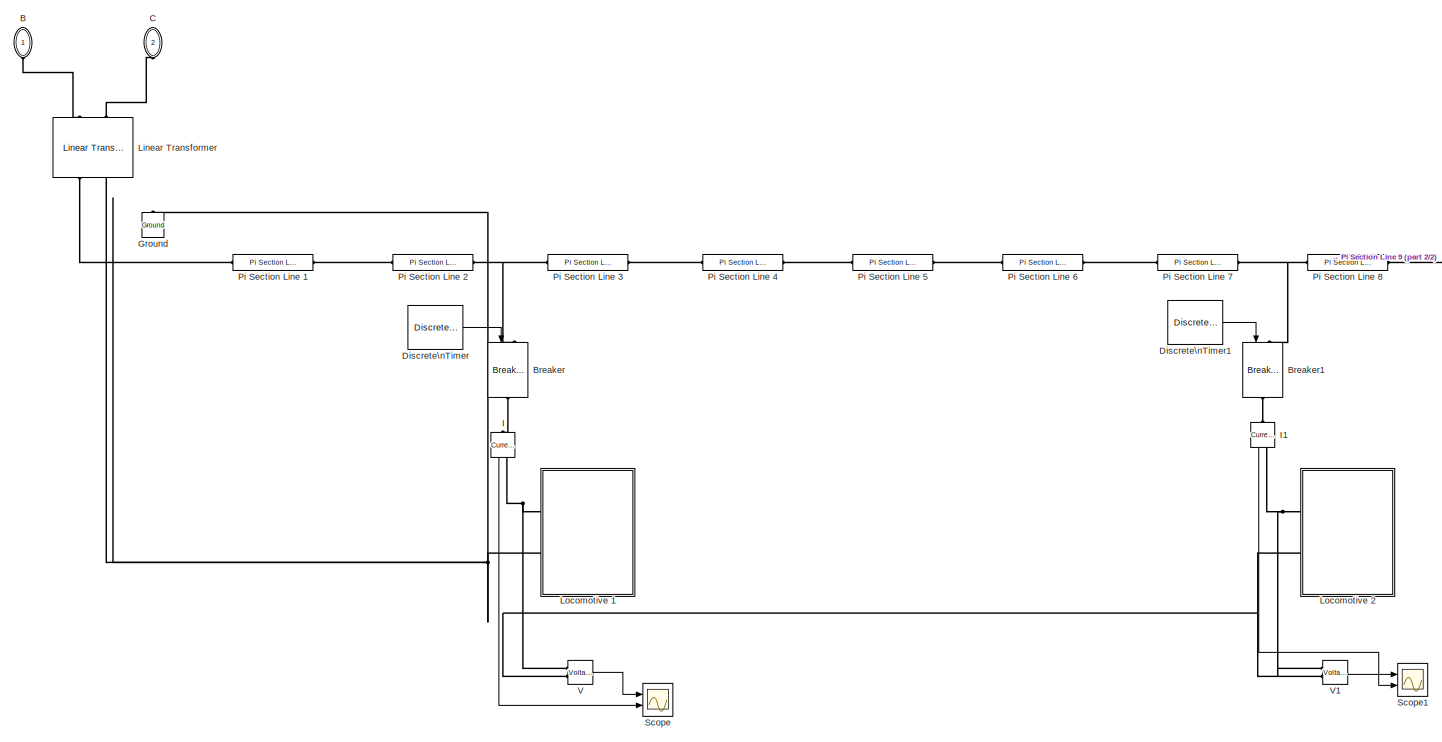
[diagram: SS2 - part 1/2, center side, full height]
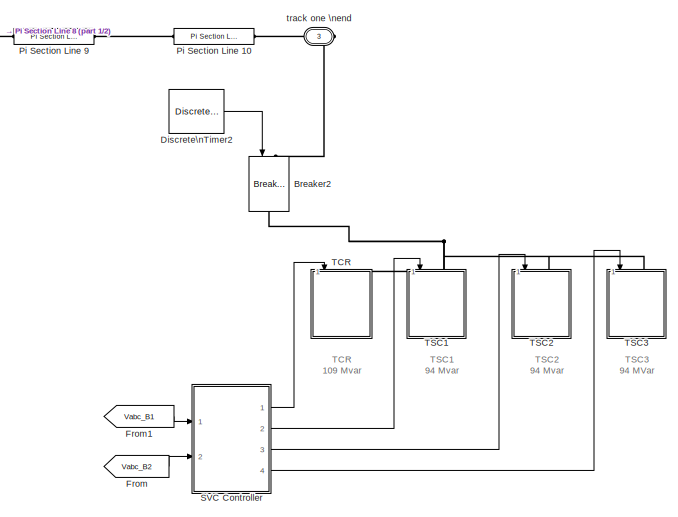
[diagram: SS2 - part 2/2, middle right region]
BLOCK [SubSystem] SS2
  FunctionWithSeparateData = off
  MaskHideContents = off
  MinAlgLoopOccurrences = off
  Opaque = off
  Ports = [0, 0, 0, 0, 0, 2, 1]
  PropExecContextOutsideSubsystem = off
  RTWSystemCode = Auto
  RequestExecContextInheritance = off
  SID = 1920
BLOCK [PMIOPort] SS2/B
  Port = 1
  SID = 2005
  Side = Left
  Tag = PMCPort
BLOCK [Reference] SS2/Breaker  REF=powerlib/Elements/Breaker
  BreakerResistance = 0.01
  External = on
  InitialState = 0
  Measurements = None
  MoreParameters = off
  NoBreakLoop = off
  Ports = [1, 0, 0, 0, 0, 1, 1]
  SID = 1921
  SnubberCapacitance = inf
  SnubberResistance = 1e6
  SourceBlock = powerlib/Elements/Breaker
  SourceType = Breaker
  SwitchingTimes = [ 1/60  5/60 ]
BLOCK [Reference] SS2/Breaker1  REF=powerlib/Elements/Breaker
  BreakerResistance = 0.01
  External = on
  InitialState = 0
  Measurements = None
  MoreParameters = off
  NoBreakLoop = off
  Ports = [1, 0, 0, 0, 0, 1, 1]
  SID = 1922
  SnubberCapacitance = inf
  SnubberResistance = 1e6
  SourceBlock = powerlib/Elements/Breaker
  SourceType = Breaker
  SwitchingTimes = [ 1/60  5/60 ]
BLOCK [Reference] SS2/Breaker2  REF=powerlib/Elements/Breaker
  BreakerResistance = 0.01
  External = on
  InitialState = 0
  Measurements = None
  MoreParameters = off
  NoBreakLoop = off
  Ports = [1, 0, 0, 0, 0, 1, 1]
  SID = 1923
  SnubberCapacitance = inf
  SnubberResistance = 1e6
  SourceBlock = powerlib/Elements/Breaker
  SourceType = Breaker
  SwitchingTimes = [ 1/60  5/60 ]
BLOCK [PMIOPort] SS2/C
  Port = 2
  SID = 2006
  Side = Left
  Tag = PMCPort
BLOCK [Reference] SS2/Discrete\nTimer  REF=powerlib_extras/Discrete \nControl Blocks/Discrete\nTimer
  Ports = [0, 1]
  SID = 1924
  SourceBlock = powerlib_extras/Discrete \nControl Blocks/Discrete\nTimer
  SourceType = Timer
  Ts = Ts
  e = [0 1]
  t = [0 0.01]
BLOCK [Reference] SS2/Discrete\nTimer1  REF=powerlib_extras/Discrete \nControl Blocks/Discrete\nTimer
  Ports = [0, 1]
  SID = 1925
  SourceBlock = powerlib_extras/Discrete \nControl Blocks/Discrete\nTimer
  SourceType = Timer
  Ts = Ts
  e = [0 1]
  t = [0 0.1]
BLOCK [Reference] SS2/Discrete\nTimer2  REF=powerlib_extras/Discrete \nControl Blocks/Discrete\nTimer
  Ports = [0, 1]
  SID = 1926
  SourceBlock = powerlib_extras/Discrete \nControl Blocks/Discrete\nTimer
  SourceType = Timer
  Ts = Ts
  e = [0 1]
  t = [0 0.6]
BLOCK [From] SS2/From
  CloseFcn = tagdialog Close
  GotoTag = Vabc_B2
  SID = 2019
  TagVisibility = global
BLOCK [From] SS2/From1
  CloseFcn = tagdialog Close
  GotoTag = Vabc_B1
  SID = 2020
  TagVisibility = global
BLOCK [Reference] SS2/Ground  REF=powerlib/Elements/Ground
  LConnTagsString = a
  Ports = [0, 0, 0, 0, 0, 1]
  SID = 1927
  SourceBlock = powerlib/Elements/Ground
  SourceType = Ground
BLOCK [Reference] SS2/I  REF=powerlib/Measurements/Current Measurement
  OutputType = Complex
  PSBequivalent = 0
  PhasorSimulation = off
  Ports = [0, 1, 0, 0, 0, 1, 1]
  SID = 1928
  SourceBlock = powerlib/Measurements/Current Measurement
  SourceType = Current Measurement
BLOCK [Reference] SS2/I1  REF=powerlib/Measurements/Current Measurement
  OutputType = Complex
  PSBequivalent = 0
  PhasorSimulation = off
  Ports = [0, 1, 0, 0, 0, 1, 1]
  SID = 1929
  SourceBlock = powerlib/Measurements/Current Measurement
  SourceType = Current Measurement
BLOCK [Reference] SS2/Linear Transformer  REF=powerlib/Elements/Linear Transformer
  DataType = off
  LConnTagsString = a|b
  Measurements = None
  NominalPower = [ 25e6 50 ]
  Ports = [0, 0, 0, 0, 0, 2, 2]
  RConnTagsString = A|B
  RmLm = [ 500 500 ]
  SID = 1930
  SourceBlock = powerlib/Elements/Linear Transformer
  SourceType = Linear Transformer
  ThreeWindings = off
  UNITS = pu
  winding1 = [ 220e3  0.001  0.06 ]
  winding2 = [ 25e3  0.001  0.06 ]
  winding3 = [ 315e3 0.002 0.08 ]
BLOCK [SubSystem] SS2/Locomotive 1
  FunctionWithSeparateData = off
  MaskHideContents = off
  MinAlgLoopOccurrences = off
  Opaque = off
  Ports = [0, 0, 0, 0, 0, 2]
  PropExecContextOutsideSubsystem = off
  RTWSystemCode = Auto
  RequestExecContextInheritance = off
  SID = 1931
BLOCK [PMIOPort] SS2/Locomotive 1/A
  Port = 1
  SID = 1959
  Side = Left
  Tag = PMCPort
BLOCK [PMIOPort] SS2/Locomotive 1/B
  Port = 2
  SID = 1960
  Side = Left
  Tag = PMCPort
BLOCK [BusSelector] SS2/Locomotive 1/Bus\nSelector
  OutputSignals = Speed wm (rad/s),Armature current ia (A),Field current if (A),Electrical torque Te (n m)
  Ports = [1, 4]
  SID = 1932
BLOCK [BusSelector] SS2/Locomotive 1/Bus\nSelector1
  OutputSignals = Speed wm (rad/s),Armature current ia (A),Field current if (A),Electrical torque Te (n m)
  Ports = [1, 4]
  SID = 1933
BLOCK [Reference] SS2/Locomotive 1/C  REF=powerlib/Elements/Series RLC Branch
  BranchType = C
  Capacitance = 2000e-6
  Inductance = 1e-3
  InitialCurrent = 0
  InitialVoltage = 400
  LConnTagsString = __new0
  Measurements = None
  Ports = [0, 0, 0, 0, 0, 1, 1]
  RConnTagsString = __new0
  Resistance = 1000
  SID = 1934
  SetiL0 = off
  Setx0 = on
  SourceBlock = powerlib/Elements/Series RLC Branch
  SourceType = Series RLC Branch
BLOCK [Reference] SS2/Locomotive 1/C1  REF=powerlib/Elements/Series RLC Branch
  BranchType = C
  Capacitance = 2000e-6
  Inductance = 1e-3
  InitialCurrent = 0
  InitialVoltage = 400
  LConnTagsString = __new0
  Measurements = None
  Ports = [0, 0, 0, 0, 0, 1, 1]
  RConnTagsString = __new0
  Resistance = 1000
  SID = 1935
  SetiL0 = off
  Setx0 = on
  SourceBlock = powerlib/Elements/Series RLC Branch
  SourceType = Series RLC Branch
BLOCK [Reference] SS2/Locomotive 1/D1  REF=powerlib/Power\nElectronics/Diode
  Cs = 250e-9
  IC = 0
  Lon = 0
  Measurements = on
  Ports = [0, 1, 0, 0, 0, 1, 1]
  Ron = 0.001
  Rs = 500
  SID = 1936
  SourceBlock = powerlib/Power\nElectronics/Diode
  SourceType = Diode
  UseSnubber = off
  Vf = 0.8
BLOCK [Reference] SS2/Locomotive 1/D2  REF=powerlib/Power\nElectronics/Diode
  Cs = 250e-9
  IC = 0
  Lon = 0
  Measurements = on
  Ports = [0, 1, 0, 0, 0, 1, 1]
  Ron = 0.001
  Rs = 500
  SID = 1937
  SourceBlock = powerlib/Power\nElectronics/Diode
  SourceType = Diode
  UseSnubber = off
  Vf = 0.8
BLOCK [Reference] SS2/Locomotive 1/D3  REF=powerlib/Power\nElectronics/Diode
  Cs = 250e-9
  IC = 0
  Lon = 0
  Measurements = on
  Ports = [0, 1, 0, 0, 0, 1, 1]
  Ron = 0.001
  Rs = 500
  SID = 1938
  SourceBlock = powerlib/Power\nElectronics/Diode
  SourceType = Diode
  UseSnubber = off
  Vf = 0.8
BLOCK [Reference] SS2/Locomotive 1/D4  REF=powerlib/Power\nElectronics/Diode
  Cs = 250e-9
  IC = 0
  Lon = 0
  Measurements = on
  Ports = [0, 1, 0, 0, 0, 1, 1]
  Ron = 0.001
  Rs = 500
  SID = 1939
  SourceBlock = powerlib/Power\nElectronics/Diode
  SourceType = Diode
  UseSnubber = off
  Vf = 0.8
BLOCK [Reference] SS2/Locomotive 1/DC Machine  REF=powerlib/Machines/DC Machine
  Bm = 0
  FieldType = Wound
  Ifinit = 1
  J = 0.1
  Ke = 1.8
  Kt = 1.8
  Laf = 1.8
  MachineConstant = Torque constant (N.m/A)
  MechanicalLoad = Torque TL
  Ports = [1, 1, 0, 0, 0, 2, 2]
  PresetModel = No
  RLa = [ 2.6  150e-3]
  RLf = [0.6 20e-3]
  SID = 1940
  ShowDetailedParameters = on
  SourceBlock = powerlib/Machines/DC Machine
  SourceType = DC machine
  Tf = 0
  TsBlock = -1
  TsPowergui = 0
  w0 = 1
BLOCK [Reference] SS2/Locomotive 1/DC Machine1  REF=powerlib/Machines/DC Machine
  Bm = 0
  FieldType = Wound
  Ifinit = 1
  J = 0.1
  Ke = 1.8
  Kt = 1.8
  Laf = 1.8
  MachineConstant = Torque constant (N.m/A)
  MechanicalLoad = Torque TL
  Ports = [1, 1, 0, 0, 0, 2, 2]
  PresetModel = No
  RLa = [ 2.6  150e-3]
  RLf = [0.6 20e-3]
  SID = 1941
  ShowDetailedParameters = on
  SourceBlock = powerlib/Machines/DC Machine
  SourceType = DC machine
  Tf = 0
  TsBlock = -1
  TsPowergui = 0
  w0 = 1
BLOCK [Reference] SS2/Locomotive 1/Linear Transformer  REF=powerlib/Elements/Linear Transformer
  DataType = off
  LConnTagsString = a|b
  Measurements = None
  NominalPower = [ 10e6 50 ]
  Ports = [0, 0, 0, 0, 0, 2, 4]
  RConnTagsString = A|B|C|D
  RmLm = [ 500 500 ]
  SID = 1942
  SourceBlock = powerlib/Elements/Linear Transformer
  SourceType = Linear Transformer
  ThreeWindings = on
  UNITS = pu
  winding1 = [ 25e3  0.0001  0.04 ]
  winding2 = [ 400  0.0001  0.02 ]
  winding3 = [ 400  0.0001  0.02 ]
BLOCK [DiscretePulseGenerator] SS2/Locomotive 1/Pulse\nGenerator
  Period = 20e-3
  Ports = [0, 1]
  PulseType = Time based
  PulseWidth = 3
  SID = 1943
BLOCK [DiscretePulseGenerator] SS2/Locomotive 1/Pulse\nGenerator1
  Period = 20e-3
  PhaseDelay = 10e-3
  Ports = [0, 1]
  PulseType = Time based
  PulseWidth = 3
  SID = 1944
BLOCK [DiscretePulseGenerator] SS2/Locomotive 1/Pulse\nGenerator2
  Period = 20e-3
  Ports = [0, 1]
  PulseType = Time based
  PulseWidth = 3
  SID = 1945
BLOCK [DiscretePulseGenerator] SS2/Locomotive 1/Pulse\nGenerator3
  Period = 20e-3
  PhaseDelay = 10e-3
  Ports = [0, 1]
  PulseType = Time based
  PulseWidth = 3
  SID = 1946
BLOCK [Scope] SS2/Locomotive 1/Scope
  DataFormat = StructureWithTime
  Decimation = 5
  Floating = off
  LimitDataPoints = off
  NumInputPorts = 1
  Ports = [1]
  SID = 1947
  SampleTime = 0
  SaveName = ScopeData3
  ShowLegends = off
  YMax = 800
  YMin = -50
  ZoomMode = xonly
BLOCK [Scope] SS2/Locomotive 1/Scope1
  DataFormat = StructureWithTime
  Decimation = 5
  Floating = off
  LimitDataPoints = off
  NumInputPorts = 4
  Ports = [4]
  SID = 1948
  SampleTime = 0
  SaveName = ScopeData4
  ShowLegends = off
  YMax = 100~5~5~20
  YMin = 0~-5~-5~-5
  ZoomMode = yonly
BLOCK [Scope] SS2/Locomotive 1/Scope2
  DataFormat = StructureWithTime
  Decimation = 5
  Floating = off
  LimitDataPoints = off
  NumInputPorts = 1
  Ports = [1]
  SID = 1949
  SampleTime = 0
  SaveName = ScopeData5
  ShowLegends = off
  YMax = 800
  YMin = -50
  ZoomMode = xonly
BLOCK [Scope] SS2/Locomotive 1/Scope3
  DataFormat = StructureWithTime
  Decimation = 5
  Floating = off
  LimitDataPoints = off
  NumInputPorts = 4
  Ports = [4]
  SID = 1950
  SampleTime = 0
  SaveName = ScopeData6
  ShowLegends = off
  YMax = 100~5~5~20
  YMin = 0~-5~-5~-5
  ZoomMode = yonly
BLOCK [Reference] SS2/Locomotive 1/T1  REF=powerlib/Power\nElectronics/Thyristor
  Cs = 250e-9
  IC = 0
  Lon = 0
  Measurements = on
  Ports = [1, 1, 0, 0, 0, 1, 1]
  Ron = 0.001
  Rs = 500
  SID = 1951
  SourceBlock = powerlib/Power\nElectronics/Thyristor
  SourceType = Thyristor
  Vf = 0.8
BLOCK [Reference] SS2/Locomotive 1/T2  REF=powerlib/Power\nElectronics/Thyristor
  Cs = 250e-9
  IC = 0
  Lon = 0
  Measurements = on
  Ports = [1, 1, 0, 0, 0, 1, 1]
  Ron = 0.001
  Rs = 500
  SID = 1952
  SourceBlock = powerlib/Power\nElectronics/Thyristor
  SourceType = Thyristor
  Vf = 0.8
BLOCK [Reference] SS2/Locomotive 1/T3  REF=powerlib/Power\nElectronics/Thyristor
  Cs = 250e-9
  IC = 0
  Lon = 0
  Measurements = on
  Ports = [1, 1, 0, 0, 0, 1, 1]
  Ron = 0.001
  Rs = 500
  SID = 1953
  SourceBlock = powerlib/Power\nElectronics/Thyristor
  SourceType = Thyristor
  Vf = 0.8
BLOCK [Reference] SS2/Locomotive 1/T4  REF=powerlib/Power\nElectronics/Thyristor
  Cs = 250e-9
  IC = 0
  Lon = 0
  Measurements = on
  Ports = [1, 1, 0, 0, 0, 1, 1]
  Ron = 0.001
  Rs = 500
  SID = 1954
  SourceBlock = powerlib/Power\nElectronics/Thyristor
  SourceType = Thyristor
  Vf = 0.8
BLOCK [Constant] SS2/Locomotive 1/TL
  SID = 1955
  Value = 10
BLOCK [Constant] SS2/Locomotive 1/TL1
  SID = 1956
  Value = 10
BLOCK [Reference] SS2/Locomotive 1/V  REF=powerlib/Measurements/Voltage Measurement
  OutputType = Complex
  PSBequivalent = 0
  PhasorSimulation = off
  Ports = [0, 1, 0, 0, 0, 2]
  SID = 1957
  SourceBlock = powerlib/Measurements/Voltage Measurement
  SourceType = Voltage Measurement
BLOCK [Reference] SS2/Locomotive 1/V1  REF=powerlib/Measurements/Voltage Measurement
  OutputType = Complex
  PSBequivalent = 0
  PhasorSimulation = off
  Ports = [0, 1, 0, 0, 0, 2]
  SID = 1958
  SourceBlock = powerlib/Measurements/Voltage Measurement
  SourceType = Voltage Measurement
BLOCK [SubSystem] SS2/Locomotive 2
  FunctionWithSeparateData = off
  MaskHideContents = off
  MinAlgLoopOccurrences = off
  Opaque = off
  Ports = [0, 0, 0, 0, 0, 2]
  PropExecContextOutsideSubsystem = off
  RTWSystemCode = Auto
  RequestExecContextInheritance = off
  SID = 1961
BLOCK [PMIOPort] SS2/Locomotive 2/A
  Port = 1
  SID = 1989
  Side = Left
  Tag = PMCPort
BLOCK [PMIOPort] SS2/Locomotive 2/B
  Port = 2
  SID = 1990
  Side = Left
  Tag = PMCPort
BLOCK [BusSelector] SS2/Locomotive 2/Bus\nSelector
  OutputSignals = Speed wm (rad/s),Armature current ia (A),Field current if (A),Electrical torque Te (n m)
  Ports = [1, 4]
  SID = 1962
BLOCK [BusSelector] SS2/Locomotive 2/Bus\nSelector1
  OutputSignals = Speed wm (rad/s),Armature current ia (A),Field current if (A),Electrical torque Te (n m)
  Ports = [1, 4]
  SID = 1963
BLOCK [Reference] SS2/Locomotive 2/C  REF=powerlib/Elements/Series RLC Branch
  BranchType = C
  Capacitance = 2000e-6
  Inductance = 1e-3
  InitialCurrent = 0
  InitialVoltage = 400
  LConnTagsString = __new0
  Measurements = None
  Ports = [0, 0, 0, 0, 0, 1, 1]
  RConnTagsString = __new0
  Resistance = 1000
  SID = 1964
  SetiL0 = off
  Setx0 = on
  SourceBlock = powerlib/Elements/Series RLC Branch
  SourceType = Series RLC Branch
BLOCK [Reference] SS2/Locomotive 2/C1  REF=powerlib/Elements/Series RLC Branch
  BranchType = C
  Capacitance = 2000e-6
  Inductance = 1e-3
  InitialCurrent = 0
  InitialVoltage = 400
  LConnTagsString = __new0
  Measurements = None
  Ports = [0, 0, 0, 0, 0, 1, 1]
  RConnTagsString = __new0
  Resistance = 1000
  SID = 1965
  SetiL0 = off
  Setx0 = on
  SourceBlock = powerlib/Elements/Series RLC Branch
  SourceType = Series RLC Branch
BLOCK [Reference] SS2/Locomotive 2/D1  REF=powerlib/Power\nElectronics/Diode
  Cs = 250e-9
  IC = 0
  Lon = 0
  Measurements = on
  Ports = [0, 1, 0, 0, 0, 1, 1]
  Ron = 0.001
  Rs = 500
  SID = 1966
  SourceBlock = powerlib/Power\nElectronics/Diode
  SourceType = Diode
  UseSnubber = off
  Vf = 0.8
BLOCK [Reference] SS2/Locomotive 2/D2  REF=powerlib/Power\nElectronics/Diode
  Cs = 250e-9
  IC = 0
  Lon = 0
  Measurements = on
  Ports = [0, 1, 0, 0, 0, 1, 1]
  Ron = 0.001
  Rs = 500
  SID = 1967
  SourceBlock = powerlib/Power\nElectronics/Diode
  SourceType = Diode
  UseSnubber = off
  Vf = 0.8
BLOCK [Reference] SS2/Locomotive 2/D3  REF=powerlib/Power\nElectronics/Diode
  Cs = 250e-9
  IC = 0
  Lon = 0
  Measurements = on
  Ports = [0, 1, 0, 0, 0, 1, 1]
  Ron = 0.001
  Rs = 500
  SID = 1968
  SourceBlock = powerlib/Power\nElectronics/Diode
  SourceType = Diode
  UseSnubber = off
  Vf = 0.8
BLOCK [Reference] SS2/Locomotive 2/D4  REF=powerlib/Power\nElectronics/Diode
  Cs = 250e-9
  IC = 0
  Lon = 0
  Measurements = on
  Ports = [0, 1, 0, 0, 0, 1, 1]
  Ron = 0.001
  Rs = 500
  SID = 1969
  SourceBlock = powerlib/Power\nElectronics/Diode
  SourceType = Diode
  UseSnubber = off
  Vf = 0.8
BLOCK [Reference] SS2/Locomotive 2/DC Machine  REF=powerlib/Machines/DC Machine
  Bm = 0
  FieldType = Wound
  Ifinit = 1
  J = 0.1
  Ke = 1.8
  Kt = 1.8
  Laf = 1.8
  MachineConstant = Torque constant (N.m/A)
  MechanicalLoad = Torque TL
  Ports = [1, 1, 0, 0, 0, 2, 2]
  PresetModel = No
  RLa = [ 2.6  150e-3]
  RLf = [0.6 20e-3]
  SID = 1970
  ShowDetailedParameters = on
  SourceBlock = powerlib/Machines/DC Machine
  SourceType = DC machine
  Tf = 0
  TsBlock = -1
  TsPowergui = 0
  w0 = 1
BLOCK [Reference] SS2/Locomotive 2/DC Machine1  REF=powerlib/Machines/DC Machine
  Bm = 0
  FieldType = Wound
  Ifinit = 1
  J = 0.1
  Ke = 1.8
  Kt = 1.8
  Laf = 1.8
  MachineConstant = Torque constant (N.m/A)
  MechanicalLoad = Torque TL
  Ports = [1, 1, 0, 0, 0, 2, 2]
  PresetModel = No
  RLa = [ 2.6  150e-3]
  RLf = [0.6 20e-3]
  SID = 1971
  ShowDetailedParameters = on
  SourceBlock = powerlib/Machines/DC Machine
  SourceType = DC machine
  Tf = 0
  TsBlock = -1
  TsPowergui = 0
  w0 = 1
BLOCK [Reference] SS2/Locomotive 2/Linear Transformer  REF=powerlib/Elements/Linear Transformer
  DataType = off
  LConnTagsString = a|b
  Measurements = None
  NominalPower = [ 10e6 50 ]
  Ports = [0, 0, 0, 0, 0, 2, 4]
  RConnTagsString = A|B|C|D
  RmLm = [ 500 500 ]
  SID = 1972
  SourceBlock = powerlib/Elements/Linear Transformer
  SourceType = Linear Transformer
  ThreeWindings = on
  UNITS = pu
  winding1 = [ 25e3  0.0001  0.04 ]
  winding2 = [ 400  0.0001  0.02 ]
  winding3 = [ 400  0.0001  0.02 ]
BLOCK [DiscretePulseGenerator] SS2/Locomotive 2/Pulse\nGenerator
  Period = 20e-3
  Ports = [0, 1]
  PulseType = Time based
  PulseWidth = 3
  SID = 1973
BLOCK [DiscretePulseGenerator] SS2/Locomotive 2/Pulse\nGenerator1
  Period = 20e-3
  PhaseDelay = 10e-3
  Ports = [0, 1]
  PulseType = Time based
  PulseWidth = 3
  SID = 1974
BLOCK [DiscretePulseGenerator] SS2/Locomotive 2/Pulse\nGenerator2
  Period = 20e-3
  Ports = [0, 1]
  PulseType = Time based
  PulseWidth = 3
  SID = 1975
BLOCK [DiscretePulseGenerator] SS2/Locomotive 2/Pulse\nGenerator3
  Period = 20e-3
  PhaseDelay = 10e-3
  Ports = [0, 1]
  PulseType = Time based
  PulseWidth = 3
  SID = 1976
BLOCK [Scope] SS2/Locomotive 2/Scope
  DataFormat = StructureWithTime
  Decimation = 5
  Floating = off
  LimitDataPoints = off
  NumInputPorts = 1
  Ports = [1]
  SID = 1977
  SampleTime = 0
  SaveName = ScopeData3
  ShowLegends = off
  YMax = 800
  YMin = -50
  ZoomMode = xonly
BLOCK [Scope] SS2/Locomotive 2/Scope1
  DataFormat = StructureWithTime
  Decimation = 5
  Floating = off
  LimitDataPoints = off
  NumInputPorts = 4
  Ports = [4]
  SID = 1978
  SampleTime = 0
  SaveName = ScopeData4
  ShowLegends = off
  YMax = 100~5~5~20
  YMin = 0~-5~-5~-5
  ZoomMode = yonly
BLOCK [Scope] SS2/Locomotive 2/Scope2
  DataFormat = StructureWithTime
  Decimation = 5
  Floating = off
  LimitDataPoints = off
  NumInputPorts = 1
  Ports = [1]
  SID = 1979
  SampleTime = 0
  SaveName = ScopeData5
  ShowLegends = off
  YMax = 800
  YMin = -50
  ZoomMode = xonly
BLOCK [Scope] SS2/Locomotive 2/Scope3
  DataFormat = StructureWithTime
  Decimation = 5
  Floating = off
  LimitDataPoints = off
  NumInputPorts = 4
  Ports = [4]
  SID = 1980
  SampleTime = 0
  SaveName = ScopeData6
  ShowLegends = off
  YMax = 100~5~5~20
  YMin = 0~-5~-5~-5
  ZoomMode = yonly
BLOCK [Reference] SS2/Locomotive 2/T1  REF=powerlib/Power\nElectronics/Thyristor
  Cs = 250e-9
  IC = 0
  Lon = 0
  Measurements = on
  Ports = [1, 1, 0, 0, 0, 1, 1]
  Ron = 0.001
  Rs = 500
  SID = 1981
  SourceBlock = powerlib/Power\nElectronics/Thyristor
  SourceType = Thyristor
  Vf = 0.8
BLOCK [Reference] SS2/Locomotive 2/T2  REF=powerlib/Power\nElectronics/Thyristor
  Cs = 250e-9
  IC = 0
  Lon = 0
  Measurements = on
  Ports = [1, 1, 0, 0, 0, 1, 1]
  Ron = 0.001
  Rs = 500
  SID = 1982
  SourceBlock = powerlib/Power\nElectronics/Thyristor
  SourceType = Thyristor
  Vf = 0.8
BLOCK [Reference] SS2/Locomotive 2/T3  REF=powerlib/Power\nElectronics/Thyristor
  Cs = 250e-9
  IC = 0
  Lon = 0
  Measurements = on
  Ports = [1, 1, 0, 0, 0, 1, 1]
  Ron = 0.001
  Rs = 500
  SID = 1983
  SourceBlock = powerlib/Power\nElectronics/Thyristor
  SourceType = Thyristor
  Vf = 0.8
BLOCK [Reference] SS2/Locomotive 2/T4  REF=powerlib/Power\nElectronics/Thyristor
  Cs = 250e-9
  IC = 0
  Lon = 0
  Measurements = on
  Ports = [1, 1, 0, 0, 0, 1, 1]
  Ron = 0.001
  Rs = 500
  SID = 1984
  SourceBlock = powerlib/Power\nElectronics/Thyristor
  SourceType = Thyristor
  Vf = 0.8
BLOCK [Constant] SS2/Locomotive 2/TL
  SID = 1985
  Value = 10
BLOCK [Constant] SS2/Locomotive 2/TL1
  SID = 1986
  Value = 10
BLOCK [Reference] SS2/Locomotive 2/V  REF=powerlib/Measurements/Voltage Measurement
  OutputType = Complex
  PSBequivalent = 0
  PhasorSimulation = off
  Ports = [0, 1, 0, 0, 0, 2]
  SID = 1987
  SourceBlock = powerlib/Measurements/Voltage Measurement
  SourceType = Voltage Measurement
BLOCK [Reference] SS2/Locomotive 2/V1  REF=powerlib/Measurements/Voltage Measurement
  OutputType = Complex
  PSBequivalent = 0
  PhasorSimulation = off
  Ports = [0, 1, 0, 0, 0, 2]
  SID = 1988
  SourceBlock = powerlib/Measurements/Voltage Measurement
  SourceType = Voltage Measurement
BLOCK [Reference] SS2/Pi Section Line 1  REF=powerlib/Elements/Pi Section Line
  AttributesFormatString = \\n
  Capacitance = 0.011e-6
  Frequency = 50
  Inductance = 0.432/(2*pi*50)
  LConnTagsString = __new0
  Length = 4
  Measurements = None
  PiSections = 1
  Ports = [0, 0, 0, 0, 0, 1, 1]
  RConnTagsString = __new0
  Resistance = 0.169
  SID = 1991
  SourceBlock = powerlib/Elements/Pi Section Line
  SourceType = Pi Section Line
BLOCK [Reference] SS2/Pi Section Line 10  REF=powerlib/Elements/Pi Section Line
  AttributesFormatString = \\n
  Capacitance = 0.011e-6
  Frequency = 50
  Inductance = 0.432/(2*pi*50)
  LConnTagsString = __new0
  Length = 4
  Measurements = None
  PiSections = 1
  Ports = [0, 0, 0, 0, 0, 1, 1]
  RConnTagsString = __new0
  Resistance = 0.169
  SID = 1992
  SourceBlock = powerlib/Elements/Pi Section Line
  SourceType = Pi Section Line
BLOCK [Reference] SS2/Pi Section Line 2  REF=powerlib/Elements/Pi Section Line
  AttributesFormatString = \\n
  Capacitance = 0.011e-6
  Frequency = 50
  Inductance = 0.432/(2*pi*50)
  LConnTagsString = __new0
  Length = 4
  Measurements = None
  PiSections = 1
  Ports = [0, 0, 0, 0, 0, 1, 1]
  RConnTagsString = __new0
  Resistance = 0.169
  SID = 1993
  SourceBlock = powerlib/Elements/Pi Section Line
  SourceType = Pi Section Line
BLOCK [Reference] SS2/Pi Section Line 3  REF=powerlib/Elements/Pi Section Line
  AttributesFormatString = \\n
  Capacitance = 0.011e-6
  Frequency = 50
  Inductance = 0.432/(2*pi*50)
  LConnTagsString = __new0
  Length = 4
  Measurements = None
  PiSections = 1
  Ports = [0, 0, 0, 0, 0, 1, 1]
  RConnTagsString = __new0
  Resistance = 0.169
  SID = 1994
  SourceBlock = powerlib/Elements/Pi Section Line
  SourceType = Pi Section Line
BLOCK [Reference] SS2/Pi Section Line 4  REF=powerlib/Elements/Pi Section Line
  AttributesFormatString = \\n
  Capacitance = 0.011e-6
  Frequency = 50
  Inductance = 0.432/(2*pi*50)
  LConnTagsString = __new0
  Length = 4
  Measurements = None
  PiSections = 1
  Ports = [0, 0, 0, 0, 0, 1, 1]
  RConnTagsString = __new0
  Resistance = 0.169
  SID = 1995
  SourceBlock = powerlib/Elements/Pi Section Line
  SourceType = Pi Section Line
BLOCK [Reference] SS2/Pi Section Line 5  REF=powerlib/Elements/Pi Section Line
  AttributesFormatString = \\n
  Capacitance = 0.011e-6
  Frequency = 50
  Inductance = 0.432/(2*pi*50)
  LConnTagsString = __new0
  Length = 4
  Measurements = None
  PiSections = 1
  Ports = [0, 0, 0, 0, 0, 1, 1]
  RConnTagsString = __new0
  Resistance = 0.169
  SID = 1996
  SourceBlock = powerlib/Elements/Pi Section Line
  SourceType = Pi Section Line
BLOCK [Reference] SS2/Pi Section Line 6  REF=powerlib/Elements/Pi Section Line
  AttributesFormatString = \\n
  Capacitance = 0.011e-6
  Frequency = 50
  Inductance = 0.432/(2*pi*50)
  LConnTagsString = __new0
  Length = 4
  Measurements = None
  PiSections = 1
  Ports = [0, 0, 0, 0, 0, 1, 1]
  RConnTagsString = __new0
  Resistance = 0.169
  SID = 1997
  SourceBlock = powerlib/Elements/Pi Section Line
  SourceType = Pi Section Line
BLOCK [Reference] SS2/Pi Section Line 7  REF=powerlib/Elements/Pi Section Line
  AttributesFormatString = \\n
  Capacitance = 0.011e-6
  Frequency = 50
  Inductance = 0.432/(2*pi*50)
  LConnTagsString = __new0
  Length = 4
  Measurements = None
  PiSections = 1
  Ports = [0, 0, 0, 0, 0, 1, 1]
  RConnTagsString = __new0
  Resistance = 0.169
  SID = 1998
  SourceBlock = powerlib/Elements/Pi Section Line
  SourceType = Pi Section Line
BLOCK [Reference] SS2/Pi Section Line 8  REF=powerlib/Elements/Pi Section Line
  AttributesFormatString = \\n
  Capacitance = 0.011e-6
  Frequency = 50
  Inductance = 0.432/(2*pi*50)
  LConnTagsString = __new0
  Length = 4
  Measurements = None
  PiSections = 1
  Ports = [0, 0, 0, 0, 0, 1, 1]
  RConnTagsString = __new0
  Resistance = 0.169
  SID = 1999
  SourceBlock = powerlib/Elements/Pi Section Line
  SourceType = Pi Section Line
BLOCK [Reference] SS2/Pi Section Line 9  REF=powerlib/Elements/Pi Section Line
  AttributesFormatString = \\n
  Capacitance = 0.011e-6
  Frequency = 50
  Inductance = 0.432/(2*pi*50)
  LConnTagsString = __new0
  Length = 4
  Measurements = None
  PiSections = 1
  Ports = [0, 0, 0, 0, 0, 1, 1]
  RConnTagsString = __new0
  Resistance = 0.169
  SID = 2000
  SourceBlock = powerlib/Elements/Pi Section Line
  SourceType = Pi Section Line
BLOCK [SubSystem] SS2/SVC Controller
  FunctionWithSeparateData = off
  MaskHideContents = off
  MinAlgLoopOccurrences = off
  Opaque = off
  Ports = [2, 4]
  PropExecContextOutsideSubsystem = off
  RTWSystemCode = Auto
  RequestExecContextInheritance = off
  SID = 2886
BLOCK [SubSystem] SS2/SVC Controller/3-phase\nsignal generator
  FunctionWithSeparateData = off
  MaskHideContents = off
  MinAlgLoopOccurrences = off
  Opaque = off
  Ports = [0, 1]
  PropExecContextOutsideSubsystem = off
  RTWSystemCode = Auto
  RequestExecContextInheritance = off
  SID = 2889
BLOCK [Constant] SS2/SVC Controller/3-phase\nsignal generator/Constant
  SID = 2890
  Value = [0 -2*pi/3 2*pi/3]-2*pi/180
BLOCK [Gain] SS2/SVC Controller/3-phase\nsignal generator/Gain
  Gain = 2*pi*60
  SID = 2891
BLOCK [Gain] SS2/SVC Controller/3-phase\nsignal generator/Gain1
  Gain = 0.9998
  SID = 2892
BLOCK [Sum] SS2/SVC Controller/3-phase\nsignal generator/Sum
  IconShape = round
  InputSameDT = off
  Inputs = |++
  OutDataTypeStr = Inherit: Inherit via internal rule
  Ports = [2, 1]
  SID = 2893
BLOCK [Trigonometry] SS2/SVC Controller/3-phase\nsignal generator/Trigonometric\nFunction
  Ports = [1, 1]
  SID = 2894
BLOCK [Outport] SS2/SVC Controller/3-phase\nsignal generator/abc
  IconDisplay = Port number
  SID = 2896
BLOCK [DigitalClock] SS2/SVC Controller/3-phase\nsignal generator/t
  SID = 2895
  SampleTime = Ts
BLOCK [Constant] SS2/SVC Controller/Constant
  SID = 2897
  Value = 0.00000001
BLOCK [Constant] SS2/SVC Controller/Constant1
  SID = 2898
  Value = Bref
BLOCK [Demux] SS2/SVC Controller/Demux
  Outputs = [1 5]
  Ports = [1, 2]
  SID = 2899
BLOCK [SubSystem] SS2/SVC Controller/Distribution\nUnit
  FunctionWithSeparateData = off
  MaskHideContents = off
  MinAlgLoopOccurrences = off
  Opaque = off
  Ports = [1, 4]
  PropExecContextOutsideSubsystem = off
  RTWSystemCode = Auto
  RequestExecContextInheritance = off
  SID = 2900
BLOCK [Outport] SS2/SVC Controller/Distribution\nUnit/Alpha
  IconDisplay = Port number
  InitialOutput = 0
  SID = 2913
BLOCK [Fcn] SS2/SVC Controller/Distribution\nUnit/Bprim-->Bsec
  Expr = u[1]/(1 + u[1]*Xf_xfo*100e6/Pnom_xfo)
  SID = 2902
BLOCK [Lookup] SS2/SVC Controller/Distribution\nUnit/Bsec --> Alpha
  InputValues = B
  SID = 2903
  Table = A
BLOCK [Inport] SS2/SVC Controller/Distribution\nUnit/Bsvc
  IconDisplay = Port number
  PortDimensions = 1
  SID = 2901
BLOCK [Saturate] SS2/SVC Controller/Distribution\nUnit/Saturation
  InputPortMap = u0
  LowerLimit = Bpu_TCR
  Ports = [1, 1]
  SID = 2904
  UpperLimit = 0
BLOCK [Sum] SS2/SVC Controller/Distribution\nUnit/Sum1
  Inputs = +---
  Ports = [4, 1]
  SID = 2905
BLOCK [Relay] SS2/SVC Controller/Distribution\nUnit/TSC1
  OffSwitchValue = -1 * hyst_svc
  OnSwitchValue = 0
  SID = 2906
BLOCK [Relay] SS2/SVC Controller/Distribution\nUnit/TSC1+TSC2
  OffSwitchValue = -1 * hyst_svc + Bpu_TSC
  OnSwitchValue = 0+ Bpu_TSC
  SID = 2907
BLOCK [Relay] SS2/SVC Controller/Distribution\nUnit/TSC1+TSC2+TSC3
  OffSwitchValue = -1 * hyst_svc + 2*Bpu_TSC
  OnSwitchValue = 0+ 2*Bpu_TSC
  SID = 2908
BLOCK [Outport] SS2/SVC Controller/Distribution\nUnit/TSC1_On
  IconDisplay = Port number
  InitialOutput = 0
  Port = 2
  SID = 2914
BLOCK [Outport] SS2/SVC Controller/Distribution\nUnit/TSC2_On
  IconDisplay = Port number
  InitialOutput = 0
  Port = 3
  SID = 2915
BLOCK [Outport] SS2/SVC Controller/Distribution\nUnit/TSC3_On
  IconDisplay = Port number
  InitialOutput = 0
  Port = 4
  SID = 2916
BLOCK [Gain] SS2/SVC Controller/Distribution\nUnit/pu100_puLnom
  Gain = -1/Bpu_TCR
  SID = 2909
BLOCK [Gain] SS2/SVC Controller/Distribution\nUnit/pu100_puLnom1
  Gain = Bpu_TSC
  SID = 2910
BLOCK [Gain] SS2/SVC Controller/Distribution\nUnit/pu100_puLnom2
  Gain = Bpu_TSC
  SID = 2911
BLOCK [Gain] SS2/SVC Controller/Distribution\nUnit/pu100_puLnom3
  Gain = Bpu_TSC
  SID = 2912
BLOCK [SubSystem] SS2/SVC Controller/Firing Unit
  FunctionWithSeparateData = off
  MaskHideContents = off
  MinAlgLoopOccurrences = off
  Opaque = off
  Ports = [5, 4]
  PropExecContextOutsideSubsystem = off
  RTWSystemCode = Auto
  RequestExecContextInheritance = off
  SID = 2918
BLOCK [Inport] SS2/SVC Controller/Firing Unit/Alpha
  IconDisplay = Port number
  Port = 2
  PortDimensions = 1
  SID = 2920
BLOCK [Demux] SS2/SVC Controller/Firing Unit/Demux
  Outputs = 3
  Ports = [1, 3]
  SID = 2924
BLOCK [SubSystem] SS2/SVC Controller/Firing Unit/Firing Unit\nAB
  FunctionWithSeparateData = off
  MaskHideContents = off
  MinAlgLoopOccurrences = off
  Opaque = off
  Ports = [5, 8]
  PropExecContextOutsideSubsystem = off
  RTWSystemCode = Auto
  RequestExecContextInheritance = off
  SID = 2925
BLOCK [Inport] SS2/SVC Controller/Firing Unit/Firing Unit\nAB/Alpha
  IconDisplay = Port number
  Port = 2
  PortDimensions = 1
  SID = 2927
BLOCK [SubSystem] SS2/SVC Controller/Firing Unit/Firing Unit\nAB/BL1
  FunctionWithSeparateData = off
  MaskHideContents = off
  MinAlgLoopOccurrences = off
  Opaque = off
  Ports = [1, 2]
  PropExecContextOutsideSubsystem = off
  RTWSystemCode = Auto
  RequestExecContextInheritance = off
  SID = 2931
BLOCK [Constant] SS2/SVC Controller/Firing Unit/Firing Unit\nAB/BL1/Constant4
  SID = 2933
  Value = 2*pi
BLOCK [Reference] SS2/SVC Controller/Firing Unit/Firing Unit\nAB/BL1/Discrete \n2nd-Order\nFilter  REF=powerlib_extras/Discrete \nControl Blocks/Discrete \n2nd-Order\nFilter
  FilterType = Lowpass
  Fo = 25
  Initialize = on
  PlotResponse = off
  Ports = [1, 1]
  SID = 2937
  SourceBlock = powerlib_extras/Discrete \nControl Blocks/Discrete \n2nd-Order\nFilter
  SourceType = Discrete 2nd-Order Filter
  Ts = Ts
  Vac_Init = [0 0  Finit]
  Vdc_Init = Finit
  Zeta = 0.707
  param1 = [1 500 0.1]
BLOCK [DiscreteIntegrator] SS2/SVC Controller/Firing Unit/Firing Unit\nAB/BL1/Discrete-Time\nIntegrator
  ICPrevOutput = DiscIntNeverNeededParam
  ICPrevScaledInput = DiscIntNeverNeededParam
  InitialCondition = (Phase_Init-90)*pi/180
  Ports = [1, 1]
  SID = 2938
  SampleTime = Ts
BLOCK [Reference] SS2/SVC Controller/Firing Unit/Firing Unit\nAB/BL1/Discrete\nPI Controller  REF=powerlib_extras/Discrete \nControl Blocks/Discrete\nPI Controller
  Init = 2*pi*Finit
  Ki = Ki
  Kp = Kp
  Par_Limits = [1.25  0.75]*2*pi*Finit
  Ports = [1, 1]
  SID = 2934
  SourceBlock = powerlib_extras/Discrete \nControl Blocks/Discrete\nPI Controller
  SourceType = Discrete PI Controller
  Ts = Ts
BLOCK [Reference] SS2/SVC Controller/Firing Unit/Firing Unit\nAB/BL1/Discrete\nRate Limiter  REF=powerlib_extras/Discrete \nControl Blocks/Discrete\nRate Limiter
  F = -10
  Ports = [1, 1]
  R = 10
  SID = 2935
  SourceBlock = powerlib_extras/Discrete \nControl Blocks/Discrete\nRate Limiter
  SourceType = Discrete Rate Limiter
  Ts = Ts
  Vinit = Finit
BLOCK [Reference] SS2/SVC Controller/Firing Unit/Firing Unit\nAB/BL1/Discrete\nVariable Frequency\nMean value  REF=powerlib_extras/Discrete\nMeasurements/Discrete\nVariable Frequency\nMean value
  Finit = Finit
  Fmin = 45
  Ports = [2, 1]
  SID = 2936
  SourceBlock = powerlib_extras/Discrete\nMeasurements/Discrete\nVariable Frequency\nMean value
  SourceType = Discrete Variable-Frequency Mean Value
  Ts = Ts
  Vinit = 0
BLOCK [Outport] SS2/SVC Controller/Firing Unit/Firing Unit\nAB/BL1/Freq
  IconDisplay = Port number
  SID = 2945
BLOCK [Gain] SS2/SVC Controller/Firing Unit/Firing Unit\nAB/BL1/Gain10
  Gain = 1/2/pi
  SID = 2939
BLOCK [Gain] SS2/SVC Controller/Firing Unit/Firing Unit\nAB/BL1/Gain12
  Gain = -1
  SID = 2940
BLOCK [Math] SS2/SVC Controller/Firing Unit/Firing Unit\nAB/BL1/Math\nFunction
  Operator = mod
  Ports = [2, 1]
  SID = 2941
BLOCK [Product] SS2/SVC Controller/Firing Unit/Firing Unit\nAB/BL1/Product1
  Ports = [2, 1]
  RndMeth = Floor
  SID = 2942
BLOCK [Trigonometry] SS2/SVC Controller/Firing Unit/Firing Unit\nAB/BL1/Trigonometric\nFunction6
  Ports = [1, 1]
  SID = 2943
BLOCK [UnitDelay] SS2/SVC Controller/Firing Unit/Firing Unit\nAB/BL1/Unit Delay1
  InitialCondition = Finit
  SID = 2944
  SampleTime = Ts
BLOCK [Inport] SS2/SVC Controller/Firing Unit/Firing Unit\nAB/BL1/V(pu)
  IconDisplay = Port number
  SID = 2932
BLOCK [Outport] SS2/SVC Controller/Firing Unit/Firing Unit\nAB/BL1/wt
  IconDisplay = Port number
  Port = 2
  SID = 2946
BLOCK [SubSystem] SS2/SVC Controller/Firing Unit/Firing Unit\nAB/BL2
  FunctionWithSeparateData = off
  MaskHideContents = off
  MinAlgLoopOccurrences = off
  Opaque = off
  Ports = [1, 1]
  PropExecContextOutsideSubsystem = off
  RTWSystemCode = Auto
  RequestExecContextInheritance = off
  SID = 2951
BLOCK [Constant] SS2/SVC Controller/Firing Unit/Firing Unit\nAB/BL2/Constant1
  SID = 2953
  Value = 0
BLOCK [Constant] SS2/SVC Controller/Firing Unit/Firing Unit\nAB/BL2/Constant2
  SID = 2954
  Value = 1e-5
BLOCK [Constant] SS2/SVC Controller/Firing Unit/Firing Unit\nAB/BL2/Constant3
  SID = 2955
BLOCK [Inport] SS2/SVC Controller/Firing Unit/Firing Unit\nAB/BL2/Freq
  IconDisplay = Port number
  PortDimensions = 1
  SID = 2952
BLOCK [Gain] SS2/SVC Controller/Firing Unit/Firing Unit\nAB/BL2/Gain
  Gain = Ts
  SID = 2956
BLOCK [Outport] SS2/SVC Controller/Firing Unit/Firing Unit\nAB/BL2/Ns//c
  IconDisplay = Port number
  SID = 2960
BLOCK [Product] SS2/SVC Controller/Firing Unit/Firing Unit\nAB/BL2/Product
  Inputs = /*
  Ports = [2, 1]
  RndMeth = Floor
  SID = 2957
BLOCK [RelationalOperator] SS2/SVC Controller/Firing Unit/Firing Unit\nAB/BL2/Relational\nOperator1
  Operator = ~=
  Ports = [2, 1]
  SID = 2958
BLOCK [Switch] SS2/SVC Controller/Firing Unit/Firing Unit\nAB/BL2/Switch
  SID = 2959
  Threshold = 0.5
BLOCK [SubSystem] SS2/SVC Controller/Firing Unit/Firing Unit\nAB/BL3
  FunctionWithSeparateData = off
  MaskHideContents = off
  MinAlgLoopOccurrences = off
  Opaque = off
  Ports = [2, 3]
  PropExecContextOutsideSubsystem = off
  RTWSystemCode = Auto
  RequestExecContextInheritance = off
  SID = 2961
BLOCK [Inport] SS2/SVC Controller/Firing Unit/Firing Unit\nAB/BL3/Freq
  IconDisplay = Port number
  PortDimensions = 1
  SID = 2962
BLOCK [SubSystem] SS2/SVC Controller/Firing Unit/Firing Unit\nAB/BL3/Latch
  FunctionWithSeparateData = off
  MaskHideContents = off
  MinAlgLoopOccurrences = off
  Opaque = off
  Ports = [2, 2]
  PropExecContextOutsideSubsystem = off
  RTWSystemCode = Auto
  RequestExecContextInheritance = off
  SID = 2964
  ShowPortLabels = none
BLOCK [Outport] SS2/SVC Controller/Firing Unit/Firing Unit\nAB/BL3/Latch/0
  IconDisplay = Port number
  InitialOutput = 0
  Port = 2
  SID = 2973
BLOCK [Outport] SS2/SVC Controller/Firing Unit/Firing Unit\nAB/BL3/Latch/1
  IconDisplay = Port number
  InitialOutput = 0
  SID = 2972
BLOCK [Demux] SS2/SVC Controller/Firing Unit/Firing Unit\nAB/BL3/Latch/Demux
  Outputs = 2
  Ports = [1, 2]
  SID = 2967
BLOCK [Fcn] SS2/SVC Controller/Firing Unit/Firing Unit\nAB/BL3/Latch/Fcn
  Expr = u[1]>.2
  SID = 2968
BLOCK [CombinatorialLogic] SS2/SVC Controller/Firing Unit/Firing Unit\nAB/BL3/Latch/Logic
  SID = 2969
  TruthTable = [0 1;1 0;0 1;0 1;1 0;1 0;0 0;0 0]
BLOCK [Mux] SS2/SVC Controller/Firing Unit/Firing Unit\nAB/BL3/Latch/Mux
  Inputs = 3
  Ports = [3, 1]
  SID = 2970
BLOCK [Inport] SS2/SVC Controller/Firing Unit/Firing Unit\nAB/BL3/Latch/R
  IconDisplay = Port number
  Port = 2
  SID = 2966
BLOCK [Inport] SS2/SVC Controller/Firing Unit/Firing Unit\nAB/BL3/Latch/S
  IconDisplay = Port number
  SID = 2965
BLOCK [UnitDelay] SS2/SVC Controller/Firing Unit/Firing Unit\nAB/BL3/Latch/Unit Delay
  SID = 2971
  SampleTime = Ts
BLOCK [Logic] SS2/SVC Controller/Firing Unit/Firing Unit\nAB/BL3/Logical\nOperator2
  Ports = [2, 1]
  SID = 2974
BLOCK [Logic] SS2/SVC Controller/Firing Unit/Firing Unit\nAB/BL3/Logical\nOperator4
  Ports = [2, 1]
  SID = 2975
BLOCK [Product] SS2/SVC Controller/Firing Unit/Firing Unit\nAB/BL3/Product2
  Ports = [2, 1]
  RndMeth = Floor
  SID = 2976
BLOCK [RelationalOperator] SS2/SVC Controller/Firing Unit/Firing Unit\nAB/BL3/Relational\nOperator
  Operator = >
  Ports = [2, 1]
  SID = 2977
BLOCK [RelationalOperator] SS2/SVC Controller/Firing Unit/Firing Unit\nAB/BL3/Relational\nOperator1
  Operator = >
  Ports = [2, 1]
  SID = 2978
BLOCK [RelationalOperator] SS2/SVC Controller/Firing Unit/Firing Unit\nAB/BL3/Relational\nOperator2
  Operator = <
  Ports = [2, 1]
  SID = 2979
BLOCK [RelationalOperator] SS2/SVC Controller/Firing Unit/Firing Unit\nAB/BL3/Relational\nOperator3
  Operator = <
  Ports = [2, 1]
  SID = 2980
BLOCK [Scope] SS2/SVC Controller/Firing Unit/Firing Unit\nAB/BL3/Scope
  DataFormat = StructureWithTime
  Floating = off
  LimitDataPoints = off
  NumInputPorts = 1
  Ports = [1]
  SID = 2981
  SampleInput = on
  SampleTime = Ts
  ShowLegends = off
  YMax = 0.0004
  YMin = -0.0004
BLOCK [Outport] SS2/SVC Controller/Firing Unit/Firing Unit\nAB/BL3/SqWave
  IconDisplay = Port number
  SID = 2990
BLOCK [Sum] SS2/SVC Controller/Firing Unit/Firing Unit\nAB/BL3/Sum5
  Inputs = +-
  Ports = [2, 1]
  SID = 2982
BLOCK [Sum] SS2/SVC Controller/Firing Unit/Firing Unit\nAB/BL3/Sum6
  Ports = [2, 1]
  SID = 2983
BLOCK [Outport] SS2/SVC Controller/Firing Unit/Firing Unit\nAB/BL3/Sync +
  IconDisplay = Port number
  Port = 2
  SID = 2991
BLOCK [Outport] SS2/SVC Controller/Firing Unit/Firing Unit\nAB/BL3/Sync -
  IconDisplay = Port number
  Port = 3
  SID = 2992
BLOCK [Trigonometry] SS2/SVC Controller/Firing Unit/Firing Unit\nAB/BL3/Trigonometric\nFunction7
  Ports = [1, 1]
  SID = 2984
BLOCK [UnitDelay] SS2/SVC Controller/Firing Unit/Firing Unit\nAB/BL3/Unit Delay
  SID = 2985
  SampleTime = Ts
BLOCK [UnitDelay] SS2/SVC Controller/Firing Unit/Firing Unit\nAB/BL3/Unit Delay1
  SID = 2986
  SampleTime = Ts
BLOCK [UnitDelay] SS2/SVC Controller/Firing Unit/Firing Unit\nAB/BL3/Unit Delay2
  SID = 2987
  SampleTime = Ts
BLOCK [Constant] SS2/SVC Controller/Firing Unit/Firing Unit\nAB/BL3/alpha2
  SID = 2988
  Value = 0
BLOCK [Constant] SS2/SVC Controller/Firing Unit/Firing Unit\nAB/BL3/alpha9
  SID = 2989
  Value = pi*Ts
BLOCK [Inport] SS2/SVC Controller/Firing Unit/Firing Unit\nAB/BL3/sin(wt)
  IconDisplay = Port number
  Port = 2
  PortDimensions = 1
  SID = 2963
BLOCK [SubSystem] SS2/SVC Controller/Firing Unit/Firing Unit\nAB/BL4
  FunctionWithSeparateData = off
  MaskHideContents = off
  MinAlgLoopOccurrences = off
  Opaque = off
  Ports = [4, 1]
  PropExecContextOutsideSubsystem = off
  RTWSystemCode = Auto
  RequestExecContextInheritance = off
  SID = 2993
BLOCK [Inport] SS2/SVC Controller/Firing Unit/Firing Unit\nAB/BL4/Alpha
  IconDisplay = Port number
  Port = 2
  PortDimensions = 1
  SID = 2995
BLOCK [Constant] SS2/SVC Controller/Firing Unit/Firing Unit\nAB/BL4/Alpha\n90<A<181
  SID = 2998
  Value = 90
BLOCK [Constant] SS2/SVC Controller/Firing Unit/Firing Unit\nAB/BL4/Alpha\n90<A<182
  SID = 2999
  Value = 360
BLOCK [Constant] SS2/SVC Controller/Firing Unit/Firing Unit\nAB/BL4/Alpha\n90<A<183
  SID = 3000
  Value = 2
BLOCK [Constant] SS2/SVC Controller/Firing Unit/Firing Unit\nAB/BL4/Alpha\n90<A<184
  SID = 3001
  Value = 2
BLOCK [Constant] SS2/SVC Controller/Firing Unit/Firing Unit\nAB/BL4/Alpha\n90<A<185
  SID = 3002
  Value = 87
BLOCK [DiscreteIntegrator] SS2/SVC Controller/Firing Unit/Firing Unit\nAB/BL4/Discrete-Time\nIntegrator
  ExternalReset = rising
  ICPrevOutput = DiscIntNeverNeededParam
  ICPrevScaledInput = DiscIntNeverNeededParam
  LimitOutput = on
  LowerSaturationLimit = 0
  Ports = [2, 1]
  SID = 3003
  SampleTime = Ts
  UpperSaturationLimit = 100000
BLOCK [Gain] SS2/SVC Controller/Firing Unit/Firing Unit\nAB/BL4/Gain2
  Gain = 1/Ts
  SID = 3004
BLOCK [Logic] SS2/SVC Controller/Firing Unit/Firing Unit\nAB/BL4/Logical\nOperator1
  Inputs = 3
  Ports = [3, 1]
  SID = 3005
BLOCK [Logic] SS2/SVC Controller/Firing Unit/Firing Unit\nAB/BL4/Logical\nOperator2
  Inputs = 3
  Operator = NOT
  Ports = [1, 1]
  SID = 3006
BLOCK [Inport] SS2/SVC Controller/Firing Unit/Firing Unit\nAB/BL4/Ns//c
  IconDisplay = Port number
  SID = 2994
BLOCK [Product] SS2/SVC Controller/Firing Unit/Firing Unit\nAB/BL4/Product
  Inputs = */
  Ports = [2, 1]
  RndMeth = Floor
  SID = 3007
BLOCK [Product] SS2/SVC Controller/Firing Unit/Firing Unit\nAB/BL4/Product1
  Inputs = **
  Ports = [2, 1]
  RndMeth = Floor
  SID = 3008
BLOCK [Product] SS2/SVC Controller/Firing Unit/Firing Unit\nAB/BL4/Product2
  Inputs = */
  Ports = [2, 1]
  RndMeth = Floor
  SID = 3009
BLOCK [RelationalOperator] SS2/SVC Controller/Firing Unit/Firing Unit\nAB/BL4/Relational\nOperator1
  Operator = <=
  Ports = [2, 1]
  SID = 3010
BLOCK [RelationalOperator] SS2/SVC Controller/Firing Unit/Firing Unit\nAB/BL4/Relational\nOperator2
  Ports = [2, 1]
  SID = 3011
BLOCK [RelationalOperator] SS2/SVC Controller/Firing Unit/Firing Unit\nAB/BL4/Relational\nOperator3
  Operator = <=
  Ports = [2, 1]
  SID = 3012
BLOCK [Rounding] SS2/SVC Controller/Firing Unit/Firing Unit\nAB/BL4/Rounding\nFunction1
  Operator = round
  SID = 3013
BLOCK [Rounding] SS2/SVC Controller/Firing Unit/Firing Unit\nAB/BL4/Rounding\nFunction3
  Operator = round
  SID = 3014
BLOCK [Inport] SS2/SVC Controller/Firing Unit/Firing Unit\nAB/BL4/SqWave
  IconDisplay = Port number
  Port = 4
  PortDimensions = 1
  SID = 2997
BLOCK [Sum] SS2/SVC Controller/Firing Unit/Firing Unit\nAB/BL4/Sum1
  Inputs = +-
  Ports = [2, 1]
  SID = 3015
BLOCK [Sum] SS2/SVC Controller/Firing Unit/Firing Unit\nAB/BL4/Sum2
  Inputs = +--
  Ports = [3, 1]
  SID = 3016
BLOCK [Switch] SS2/SVC Controller/Firing Unit/Firing Unit\nAB/BL4/Switch
  SID = 3017
  Threshold = 0.5
BLOCK [Switch] SS2/SVC Controller/Firing Unit/Firing Unit\nAB/BL4/Switch1
  SID = 3018
  Threshold = 0.5
BLOCK [Inport] SS2/SVC Controller/Firing Unit/Firing Unit\nAB/BL4/Sync +
  IconDisplay = Port number
  Port = 3
  PortDimensions = 1
  SID = 2996
BLOCK [Outport] SS2/SVC Controller/Firing Unit/Firing Unit\nAB/BL4/TCR +
  IconDisplay = Port number
  SID = 3020
BLOCK [UnitDelay] SS2/SVC Controller/Firing Unit/Firing Unit\nAB/BL4/Unit Delay1
  InitialCondition = 180
  SID = 3019
  SampleTime = Ts
BLOCK [SubSystem] SS2/SVC Controller/Firing Unit/Firing Unit\nAB/BL5
  FunctionWithSeparateData = off
  MaskHideContents = off
  MinAlgLoopOccurrences = off
  Opaque = off
  Ports = [4, 1]
  PropExecContextOutsideSubsystem = off
  RTWSystemCode = Auto
  RequestExecContextInheritance = off
  SID = 3021
BLOCK [Inport] SS2/SVC Controller/Firing Unit/Firing Unit\nAB/BL5/Alpha
  IconDisplay = Port number
  Port = 2
  PortDimensions = 1
  SID = 3023
BLOCK [Constant] SS2/SVC Controller/Firing Unit/Firing Unit\nAB/BL5/Alpha\n90<A<181
  SID = 3026
  Value = 90
BLOCK [Constant] SS2/SVC Controller/Firing Unit/Firing Unit\nAB/BL5/Alpha\n90<A<182
  SID = 3027
  Value = 360
BLOCK [Constant] SS2/SVC Controller/Firing Unit/Firing Unit\nAB/BL5/Alpha\n90<A<183
  SID = 3028
  Value = 2
BLOCK [Constant] SS2/SVC Controller/Firing Unit/Firing Unit\nAB/BL5/Alpha\n90<A<184
  SID = 3029
  Value = 2
BLOCK [Constant] SS2/SVC Controller/Firing Unit/Firing Unit\nAB/BL5/Alpha\n90<A<185
  SID = 3030
  Value = 87
BLOCK [DiscreteIntegrator] SS2/SVC Controller/Firing Unit/Firing Unit\nAB/BL5/Discrete-Time\nIntegrator
  ExternalReset = rising
  ICPrevOutput = DiscIntNeverNeededParam
  ICPrevScaledInput = DiscIntNeverNeededParam
  LimitOutput = on
  LowerSaturationLimit = 0
  Ports = [2, 1]
  SID = 3031
  SampleTime = Ts
  UpperSaturationLimit = 100000
BLOCK [Gain] SS2/SVC Controller/Firing Unit/Firing Unit\nAB/BL5/Gain2
  Gain = 1/Ts
  SID = 3032
BLOCK [Logic] SS2/SVC Controller/Firing Unit/Firing Unit\nAB/BL5/Logical\nOperator1
  Inputs = 3
  Ports = [3, 1]
  SID = 3033
BLOCK [Logic] SS2/SVC Controller/Firing Unit/Firing Unit\nAB/BL5/Logical\nOperator2
  Inputs = 3
  Operator = NOT
  Ports = [1, 1]
  SID = 3034
BLOCK [Logic] SS2/SVC Controller/Firing Unit/Firing Unit\nAB/BL5/Logical\nOperator3
  Inputs = 3
  Operator = NOT
  Ports = [1, 1]
  SID = 3035
BLOCK [Inport] SS2/SVC Controller/Firing Unit/Firing Unit\nAB/BL5/Ns//c
  IconDisplay = Port number
  SID = 3022
BLOCK [Product] SS2/SVC Controller/Firing Unit/Firing Unit\nAB/BL5/Product
  Inputs = */
  Ports = [2, 1]
  RndMeth = Floor
  SID = 3036
BLOCK [Product] SS2/SVC Controller/Firing Unit/Firing Unit\nAB/BL5/Product1
  Inputs = **
  Ports = [2, 1]
  RndMeth = Floor
  SID = 3037
BLOCK [Product] SS2/SVC Controller/Firing Unit/Firing Unit\nAB/BL5/Product2
  Inputs = */
  Ports = [2, 1]
  RndMeth = Floor
  SID = 3038
BLOCK [RelationalOperator] SS2/SVC Controller/Firing Unit/Firing Unit\nAB/BL5/Relational\nOperator1
  Operator = <=
  Ports = [2, 1]
  SID = 3039
BLOCK [RelationalOperator] SS2/SVC Controller/Firing Unit/Firing Unit\nAB/BL5/Relational\nOperator2
  Ports = [2, 1]
  SID = 3040
BLOCK [RelationalOperator] SS2/SVC Controller/Firing Unit/Firing Unit\nAB/BL5/Relational\nOperator3
  Operator = <=
  Ports = [2, 1]
  SID = 3041
BLOCK [Rounding] SS2/SVC Controller/Firing Unit/Firing Unit\nAB/BL5/Rounding\nFunction1
  Operator = round
  SID = 3042
BLOCK [Rounding] SS2/SVC Controller/Firing Unit/Firing Unit\nAB/BL5/Rounding\nFunction3
  Operator = round
  SID = 3043
BLOCK [Inport] SS2/SVC Controller/Firing Unit/Firing Unit\nAB/BL5/SqWave
  IconDisplay = Port number
  Port = 4
  PortDimensions = 1
  SID = 3025
BLOCK [Sum] SS2/SVC Controller/Firing Unit/Firing Unit\nAB/BL5/Sum1
  Inputs = +-
  Ports = [2, 1]
  SID = 3044
BLOCK [Sum] SS2/SVC Controller/Firing Unit/Firing Unit\nAB/BL5/Sum2
  Inputs = +--
  Ports = [3, 1]
  SID = 3045
BLOCK [Switch] SS2/SVC Controller/Firing Unit/Firing Unit\nAB/BL5/Switch
  SID = 3046
  Threshold = 0.5
BLOCK [Switch] SS2/SVC Controller/Firing Unit/Firing Unit\nAB/BL5/Switch1
  SID = 3047
  Threshold = 0.5
BLOCK [Inport] SS2/SVC Controller/Firing Unit/Firing Unit\nAB/BL5/Sync -
  IconDisplay = Port number
  Port = 3
  PortDimensions = 1
  SID = 3024
BLOCK [Outport] SS2/SVC Controller/Firing Unit/Firing Unit\nAB/BL5/TCR -
  IconDisplay = Port number
  SID = 3049
BLOCK [UnitDelay] SS2/SVC Controller/Firing Unit/Firing Unit\nAB/BL5/Unit Delay1
  InitialCondition = 180
  SID = 3048
  SampleTime = Ts
BLOCK [SubSystem] SS2/SVC Controller/Firing Unit/Firing Unit\nAB/BL6
  FunctionWithSeparateData = off
  MaskHideContents = off
  MinAlgLoopOccurrences = off
  Opaque = off
  Ports = [4, 2]
  PropExecContextOutsideSubsystem = off
  RTWSystemCode = Auto
  RequestExecContextInheritance = off
  SID = 3050
BLOCK [Constant] SS2/SVC Controller/Firing Unit/Firing Unit\nAB/BL6/Alpha1
  SID = 3055
  Value = FiringMode-1
BLOCK [Logic] SS2/SVC Controller/Firing Unit/Firing Unit\nAB/BL6/Logical\nOperator1
  Operator = NOT
  Ports = [1, 1]
  SID = 3056
BLOCK [Logic] SS2/SVC Controller/Firing Unit/Firing Unit\nAB/BL6/Logical\nOperator10
  Operator = OR
  Ports = [2, 1]
  SID = 3057
BLOCK [Logic] SS2/SVC Controller/Firing Unit/Firing Unit\nAB/BL6/Logical\nOperator11
  Inputs = 3
  Ports = [3, 1]
  SID = 3058
BLOCK [Logic] SS2/SVC Controller/Firing Unit/Firing Unit\nAB/BL6/Logical\nOperator12
  Ports = [2, 1]
  SID = 3059
BLOCK [Logic] SS2/SVC Controller/Firing Unit/Firing Unit\nAB/BL6/Logical\nOperator13
  Ports = [2, 1]
  SID = 3060
BLOCK [Logic] SS2/SVC Controller/Firing Unit/Firing Unit\nAB/BL6/Logical\nOperator14
  Operator = OR
  Ports = [2, 1]
  SID = 3061
BLOCK [Logic] SS2/SVC Controller/Firing Unit/Firing Unit\nAB/BL6/Logical\nOperator15
  Inputs = 3
  Ports = [3, 1]
  SID = 3062
BLOCK [Inport] SS2/SVC Controller/Firing Unit/Firing Unit\nAB/BL6/SqWave
  IconDisplay = Port number
  PortDimensions = 1
  SID = 3051
BLOCK [Switch] SS2/SVC Controller/Firing Unit/Firing Unit\nAB/BL6/Switch5
  SID = 3063
  Threshold = 0.5
BLOCK [Switch] SS2/SVC Controller/Firing Unit/Firing Unit\nAB/BL6/Switch6
  SID = 3064
  Threshold = 0.5
BLOCK [Inport] SS2/SVC Controller/Firing Unit/Firing Unit\nAB/BL6/Sync +
  IconDisplay = Port number
  Port = 2
  PortDimensions = 1
  SID = 3052
BLOCK [Inport] SS2/SVC Controller/Firing Unit/Firing Unit\nAB/BL6/Sync -
  IconDisplay = Port number
  Port = 3
  PortDimensions = 1
  SID = 3053
BLOCK [Outport] SS2/SVC Controller/Firing Unit/Firing Unit\nAB/BL6/TSC +
  IconDisplay = Port number
  SID = 3068
BLOCK [Outport] SS2/SVC Controller/Firing Unit/Firing Unit\nAB/BL6/TSC -
  IconDisplay = Port number
  Port = 2
  SID = 3069
BLOCK [Inport] SS2/SVC Controller/Firing Unit/Firing Unit\nAB/BL6/TSC_On
  IconDisplay = Port number
  Port = 4
  PortDimensions = 1
  SID = 3054
BLOCK [TransportDelay] SS2/SVC Controller/Firing Unit/Firing Unit\nAB/BL6/Transport\nDelay
  BufferSize = 2048
  DelayTime = 1/FreqInit
  Ports = [1, 1]
  SID = 3065
BLOCK [UnitDelay] SS2/SVC Controller/Firing Unit/Firing Unit\nAB/BL6/Unit Delay6
  SID = 3066
  SampleTime = Ts
BLOCK [UnitDelay] SS2/SVC Controller/Firing Unit/Firing Unit\nAB/BL6/Unit Delay7
  SID = 3067
  SampleTime = Ts
BLOCK [SubSystem] SS2/SVC Controller/Firing Unit/Firing Unit\nAB/BL7
  FunctionWithSeparateData = off
  MaskHideContents = off
  MinAlgLoopOccurrences = off
  Opaque = off
  Ports = [4, 2]
  PropExecContextOutsideSubsystem = off
  RTWSystemCode = Auto
  RequestExecContextInheritance = off
  SID = 3071
BLOCK [Constant] SS2/SVC Controller/Firing Unit/Firing Unit\nAB/BL7/Alpha1
  SID = 3076
  Value = FiringMode-1
BLOCK [Logic] SS2/SVC Controller/Firing Unit/Firing Unit\nAB/BL7/Logical\nOperator1
  Operator = NOT
  Ports = [1, 1]
  SID = 3077
BLOCK [Logic] SS2/SVC Controller/Firing Unit/Firing Unit\nAB/BL7/Logical\nOperator10
  Operator = OR
  Ports = [2, 1]
  SID = 3078
BLOCK [Logic] SS2/SVC Controller/Firing Unit/Firing Unit\nAB/BL7/Logical\nOperator11
  Inputs = 3
  Ports = [3, 1]
  SID = 3079
BLOCK [Logic] SS2/SVC Controller/Firing Unit/Firing Unit\nAB/BL7/Logical\nOperator12
  Ports = [2, 1]
  SID = 3080
BLOCK [Logic] SS2/SVC Controller/Firing Unit/Firing Unit\nAB/BL7/Logical\nOperator13
  Ports = [2, 1]
  SID = 3081
BLOCK [Logic] SS2/SVC Controller/Firing Unit/Firing Unit\nAB/BL7/Logical\nOperator14
  Operator = OR
  Ports = [2, 1]
  SID = 3082
BLOCK [Logic] SS2/SVC Controller/Firing Unit/Firing Unit\nAB/BL7/Logical\nOperator15
  Inputs = 3
  Ports = [3, 1]
  SID = 3083
BLOCK [Inport] SS2/SVC Controller/Firing Unit/Firing Unit\nAB/BL7/SqWave
  IconDisplay = Port number
  PortDimensions = 1
  SID = 3072
BLOCK [Switch] SS2/SVC Controller/Firing Unit/Firing Unit\nAB/BL7/Switch5
  SID = 3084
  Threshold = 0.5
BLOCK [Switch] SS2/SVC Controller/Firing Unit/Firing Unit\nAB/BL7/Switch6
  SID = 3085
  Threshold = 0.5
BLOCK [Inport] SS2/SVC Controller/Firing Unit/Firing Unit\nAB/BL7/Sync +
  IconDisplay = Port number
  Port = 2
  PortDimensions = 1
  SID = 3073
BLOCK [Inport] SS2/SVC Controller/Firing Unit/Firing Unit\nAB/BL7/Sync -
  IconDisplay = Port number
  Port = 3
  PortDimensions = 1
  SID = 3074
BLOCK [Outport] SS2/SVC Controller/Firing Unit/Firing Unit\nAB/BL7/TSC +
  IconDisplay = Port number
  SID = 3089
BLOCK [Outport] SS2/SVC Controller/Firing Unit/Firing Unit\nAB/BL7/TSC -
  IconDisplay = Port number
  Port = 2
  SID = 3090
BLOCK [Inport] SS2/SVC Controller/Firing Unit/Firing Unit\nAB/BL7/TSC_On
  IconDisplay = Port number
  Port = 4
  PortDimensions = 1
  SID = 3075
BLOCK [TransportDelay] SS2/SVC Controller/Firing Unit/Firing Unit\nAB/BL7/Transport\nDelay
  BufferSize = 2048
  DelayTime = 1/FreqInit
  Ports = [1, 1]
  SID = 3086
BLOCK [UnitDelay] SS2/SVC Controller/Firing Unit/Firing Unit\nAB/BL7/Unit Delay6
  SID = 3087
  SampleTime = Ts
BLOCK [UnitDelay] SS2/SVC Controller/Firing Unit/Firing Unit\nAB/BL7/Unit Delay7
  SID = 3088
  SampleTime = Ts
BLOCK [SubSystem] SS2/SVC Controller/Firing Unit/Firing Unit\nAB/BL8
  FunctionWithSeparateData = off
  MaskHideContents = off
  MinAlgLoopOccurrences = off
  Opaque = off
  Ports = [4, 2]
  PropExecContextOutsideSubsystem = off
  RTWSystemCode = Auto
  RequestExecContextInheritance = off
  SID = 3092
BLOCK [Constant] SS2/SVC Controller/Firing Unit/Firing Unit\nAB/BL8/Alpha1
  SID = 3097
  Value = FiringMode-1
BLOCK [Logic] SS2/SVC Controller/Firing Unit/Firing Unit\nAB/BL8/Logical\nOperator1
  Operator = NOT
  Ports = [1, 1]
  SID = 3098
BLOCK [Logic] SS2/SVC Controller/Firing Unit/Firing Unit\nAB/BL8/Logical\nOperator10
  Operator = OR
  Ports = [2, 1]
  SID = 3099
BLOCK [Logic] SS2/SVC Controller/Firing Unit/Firing Unit\nAB/BL8/Logical\nOperator11
  Inputs = 3
  Ports = [3, 1]
  SID = 3100
BLOCK [Logic] SS2/SVC Controller/Firing Unit/Firing Unit\nAB/BL8/Logical\nOperator12
  Ports = [2, 1]
  SID = 3101
BLOCK [Logic] SS2/SVC Controller/Firing Unit/Firing Unit\nAB/BL8/Logical\nOperator13
  Ports = [2, 1]
  SID = 3102
BLOCK [Logic] SS2/SVC Controller/Firing Unit/Firing Unit\nAB/BL8/Logical\nOperator14
  Operator = OR
  Ports = [2, 1]
  SID = 3103
BLOCK [Logic] SS2/SVC Controller/Firing Unit/Firing Unit\nAB/BL8/Logical\nOperator15
  Inputs = 3
  Ports = [3, 1]
  SID = 3104
BLOCK [Inport] SS2/SVC Controller/Firing Unit/Firing Unit\nAB/BL8/SqWave
  IconDisplay = Port number
  PortDimensions = 1
  SID = 3093
BLOCK [Switch] SS2/SVC Controller/Firing Unit/Firing Unit\nAB/BL8/Switch5
  SID = 3105
  Threshold = 0.5
BLOCK [Switch] SS2/SVC Controller/Firing Unit/Firing Unit\nAB/BL8/Switch6
  SID = 3106
  Threshold = 0.5
BLOCK [Inport] SS2/SVC Controller/Firing Unit/Firing Unit\nAB/BL8/Sync +
  IconDisplay = Port number
  Port = 2
  PortDimensions = 1
  SID = 3094
BLOCK [Inport] SS2/SVC Controller/Firing Unit/Firing Unit\nAB/BL8/Sync -
  IconDisplay = Port number
  Port = 3
  PortDimensions = 1
  SID = 3095
BLOCK [Outport] SS2/SVC Controller/Firing Unit/Firing Unit\nAB/BL8/TSC +
  IconDisplay = Port number
  SID = 3110
BLOCK [Outport] SS2/SVC Controller/Firing Unit/Firing Unit\nAB/BL8/TSC -
  IconDisplay = Port number
  Port = 2
  SID = 3111
BLOCK [Inport] SS2/SVC Controller/Firing Unit/Firing Unit\nAB/BL8/TSC_On
  IconDisplay = Port number
  Port = 4
  PortDimensions = 1
  SID = 3096
BLOCK [TransportDelay] SS2/SVC Controller/Firing Unit/Firing Unit\nAB/BL8/Transport\nDelay
  BufferSize = 2048
  DelayTime = 1/FreqInit
  Ports = [1, 1]
  SID = 3107
BLOCK [UnitDelay] SS2/SVC Controller/Firing Unit/Firing Unit\nAB/BL8/Unit Delay6
  SID = 3108
  SampleTime = Ts
BLOCK [UnitDelay] SS2/SVC Controller/Firing Unit/Firing Unit\nAB/BL8/Unit Delay7
  SID = 3109
  SampleTime = Ts
BLOCK [Gain] SS2/SVC Controller/Firing Unit/Firing Unit\nAB/Correction\nfor delay
  Gain = Nstep*Ts*2*pi
  SID = 3113
BLOCK [Sum] SS2/SVC Controller/Firing Unit/Firing Unit\nAB/Sum
  Ports = [2, 1]
  SID = 3114
BLOCK [Outport] SS2/SVC Controller/Firing Unit/Firing Unit\nAB/TCR +
  IconDisplay = Port number
  SID = 3116
BLOCK [Outport] SS2/SVC Controller/Firing Unit/Firing Unit\nAB/TCR -
  IconDisplay = Port number
  Port = 2
  SID = 3117
BLOCK [Outport] SS2/SVC Controller/Firing Unit/Firing Unit\nAB/TSC1 +
  IconDisplay = Port number
  Port = 3
  SID = 3118
BLOCK [Outport] SS2/SVC Controller/Firing Unit/Firing Unit\nAB/TSC1 -
  IconDisplay = Port number
  Port = 4
  SID = 3119
BLOCK [Inport] SS2/SVC Controller/Firing Unit/Firing Unit\nAB/TSC1_On
  IconDisplay = Port number
  Port = 3
  PortDimensions = 1
  SID = 2928
BLOCK [Outport] SS2/SVC Controller/Firing Unit/Firing Unit\nAB/TSC2 +
  IconDisplay = Port number
  Port = 5
  SID = 3120
BLOCK [Outport] SS2/SVC Controller/Firing Unit/Firing Unit\nAB/TSC2 -
  IconDisplay = Port number
  Port = 6
  SID = 3121
BLOCK [Inport] SS2/SVC Controller/Firing Unit/Firing Unit\nAB/TSC2_On
  IconDisplay = Port number
  Port = 4
  PortDimensions = 1
  SID = 2929
BLOCK [Outport] SS2/SVC Controller/Firing Unit/Firing Unit\nAB/TSC3 +
  IconDisplay = Port number
  Port = 7
  SID = 3122
BLOCK [Outport] SS2/SVC Controller/Firing Unit/Firing Unit\nAB/TSC3 -
  IconDisplay = Port number
  Port = 8
  SID = 3123
BLOCK [Inport] SS2/SVC Controller/Firing Unit/Firing Unit\nAB/TSC3_On
  IconDisplay = Port number
  Port = 5
  PortDimensions = 1
  SID = 2930
BLOCK [Trigonometry] SS2/SVC Controller/Firing Unit/Firing Unit\nAB/Trigonometric\nFunction6
  Ports = [1, 1]
  SID = 3115
BLOCK [Inport] SS2/SVC Controller/Firing Unit/Firing Unit\nAB/V
  IconDisplay = Port number
  PortDimensions = 1
  SID = 2926
BLOCK [SubSystem] SS2/SVC Controller/Firing Unit/Firing Unit\nBC
  FunctionWithSeparateData = off
  MaskHideContents = off
  MinAlgLoopOccurrences = off
  Opaque = off
  Ports = [5, 8]
  PropExecContextOutsideSubsystem = off
  RTWSystemCode = Auto
  RequestExecContextInheritance = off
  SID = 3133
BLOCK [Inport] SS2/SVC Controller/Firing Unit/Firing Unit\nBC/Alpha
  IconDisplay = Port number
  Port = 2
  PortDimensions = 1
  SID = 3135
BLOCK [SubSystem] SS2/SVC Controller/Firing Unit/Firing Unit\nBC/BL1
  FunctionWithSeparateData = off
  MaskHideContents = off
  MinAlgLoopOccurrences = off
  Opaque = off
  Ports = [1, 2]
  PropExecContextOutsideSubsystem = off
  RTWSystemCode = Auto
  RequestExecContextInheritance = off
  SID = 3139
BLOCK [Constant] SS2/SVC Controller/Firing Unit/Firing Unit\nBC/BL1/Constant4
  SID = 3141
  Value = 2*pi
BLOCK [Reference] SS2/SVC Controller/Firing Unit/Firing Unit\nBC/BL1/Discrete \n2nd-Order\nFilter  REF=powerlib_extras/Discrete \nControl Blocks/Discrete \n2nd-Order\nFilter
  FilterType = Lowpass
  Fo = 25
  Initialize = on
  PlotResponse = off
  Ports = [1, 1]
  SID = 3145
  SourceBlock = powerlib_extras/Discrete \nControl Blocks/Discrete \n2nd-Order\nFilter
  SourceType = Discrete 2nd-Order Filter
  Ts = Ts
  Vac_Init = [0 0  Finit]
  Vdc_Init = Finit
  Zeta = 0.707
  param1 = [1 500 0.1]
BLOCK [DiscreteIntegrator] SS2/SVC Controller/Firing Unit/Firing Unit\nBC/BL1/Discrete-Time\nIntegrator
  ICPrevOutput = DiscIntNeverNeededParam
  ICPrevScaledInput = DiscIntNeverNeededParam
  InitialCondition = (Phase_Init-90)*pi/180
  Ports = [1, 1]
  SID = 3146
  SampleTime = Ts
BLOCK [Reference] SS2/SVC Controller/Firing Unit/Firing Unit\nBC/BL1/Discrete\nPI Controller  REF=powerlib_extras/Discrete \nControl Blocks/Discrete\nPI Controller
  Init = 2*pi*Finit
  Ki = Ki
  Kp = Kp
  Par_Limits = [1.25  0.75]*2*pi*Finit
  Ports = [1, 1]
  SID = 3142
  SourceBlock = powerlib_extras/Discrete \nControl Blocks/Discrete\nPI Controller
  SourceType = Discrete PI Controller
  Ts = Ts
BLOCK [Reference] SS2/SVC Controller/Firing Unit/Firing Unit\nBC/BL1/Discrete\nRate Limiter  REF=powerlib_extras/Discrete \nControl Blocks/Discrete\nRate Limiter
  F = -10
  Ports = [1, 1]
  R = 10
  SID = 3143
  SourceBlock = powerlib_extras/Discrete \nControl Blocks/Discrete\nRate Limiter
  SourceType = Discrete Rate Limiter
  Ts = Ts
  Vinit = Finit
BLOCK [Reference] SS2/SVC Controller/Firing Unit/Firing Unit\nBC/BL1/Discrete\nVariable Frequency\nMean value  REF=powerlib_extras/Discrete\nMeasurements/Discrete\nVariable Frequency\nMean value
  Finit = Finit
  Fmin = 45
  Ports = [2, 1]
  SID = 3144
  SourceBlock = powerlib_extras/Discrete\nMeasurements/Discrete\nVariable Frequency\nMean value
  SourceType = Discrete Variable-Frequency Mean Value
  Ts = Ts
  Vinit = 0
BLOCK [Outport] SS2/SVC Controller/Firing Unit/Firing Unit\nBC/BL1/Freq
  IconDisplay = Port number
  SID = 3153
BLOCK [Gain] SS2/SVC Controller/Firing Unit/Firing Unit\nBC/BL1/Gain10
  Gain = 1/2/pi
  SID = 3147
BLOCK [Gain] SS2/SVC Controller/Firing Unit/Firing Unit\nBC/BL1/Gain12
  Gain = -1
  SID = 3148
BLOCK [Math] SS2/SVC Controller/Firing Unit/Firing Unit\nBC/BL1/Math\nFunction
  Operator = mod
  Ports = [2, 1]
  SID = 3149
BLOCK [Product] SS2/SVC Controller/Firing Unit/Firing Unit\nBC/BL1/Product1
  Ports = [2, 1]
  RndMeth = Floor
  SID = 3150
BLOCK [Trigonometry] SS2/SVC Controller/Firing Unit/Firing Unit\nBC/BL1/Trigonometric\nFunction6
  Ports = [1, 1]
  SID = 3151
BLOCK [UnitDelay] SS2/SVC Controller/Firing Unit/Firing Unit\nBC/BL1/Unit Delay1
  InitialCondition = Finit
  SID = 3152
  SampleTime = Ts
BLOCK [Inport] SS2/SVC Controller/Firing Unit/Firing Unit\nBC/BL1/V(pu)
  IconDisplay = Port number
  SID = 3140
BLOCK [Outport] SS2/SVC Controller/Firing Unit/Firing Unit\nBC/BL1/wt
  IconDisplay = Port number
  Port = 2
  SID = 3154
BLOCK [SubSystem] SS2/SVC Controller/Firing Unit/Firing Unit\nBC/BL2
  FunctionWithSeparateData = off
  MaskHideContents = off
  MinAlgLoopOccurrences = off
  Opaque = off
  Ports = [1, 1]
  PropExecContextOutsideSubsystem = off
  RTWSystemCode = Auto
  RequestExecContextInheritance = off
  SID = 3159
BLOCK [Constant] SS2/SVC Controller/Firing Unit/Firing Unit\nBC/BL2/Constant1
  SID = 3161
  Value = 0
BLOCK [Constant] SS2/SVC Controller/Firing Unit/Firing Unit\nBC/BL2/Constant2
  SID = 3162
  Value = 1e-5
BLOCK [Constant] SS2/SVC Controller/Firing Unit/Firing Unit\nBC/BL2/Constant3
  SID = 3163
BLOCK [Inport] SS2/SVC Controller/Firing Unit/Firing Unit\nBC/BL2/Freq
  IconDisplay = Port number
  PortDimensions = 1
  SID = 3160
BLOCK [Gain] SS2/SVC Controller/Firing Unit/Firing Unit\nBC/BL2/Gain
  Gain = Ts
  SID = 3164
BLOCK [Outport] SS2/SVC Controller/Firing Unit/Firing Unit\nBC/BL2/Ns//c
  IconDisplay = Port number
  SID = 3168
BLOCK [Product] SS2/SVC Controller/Firing Unit/Firing Unit\nBC/BL2/Product
  Inputs = /*
  Ports = [2, 1]
  RndMeth = Floor
  SID = 3165
BLOCK [RelationalOperator] SS2/SVC Controller/Firing Unit/Firing Unit\nBC/BL2/Relational\nOperator1
  Operator = ~=
  Ports = [2, 1]
  SID = 3166
BLOCK [Switch] SS2/SVC Controller/Firing Unit/Firing Unit\nBC/BL2/Switch
  SID = 3167
  Threshold = 0.5
BLOCK [SubSystem] SS2/SVC Controller/Firing Unit/Firing Unit\nBC/BL3
  FunctionWithSeparateData = off
  MaskHideContents = off
  MinAlgLoopOccurrences = off
  Opaque = off
  Ports = [2, 3]
  PropExecContextOutsideSubsystem = off
  RTWSystemCode = Auto
  RequestExecContextInheritance = off
  SID = 3169
BLOCK [Inport] SS2/SVC Controller/Firing Unit/Firing Unit\nBC/BL3/Freq
  IconDisplay = Port number
  PortDimensions = 1
  SID = 3170
BLOCK [SubSystem] SS2/SVC Controller/Firing Unit/Firing Unit\nBC/BL3/Latch
  FunctionWithSeparateData = off
  MaskHideContents = off
  MinAlgLoopOccurrences = off
  Opaque = off
  Ports = [2, 2]
  PropExecContextOutsideSubsystem = off
  RTWSystemCode = Auto
  RequestExecContextInheritance = off
  SID = 3172
  ShowPortLabels = none
BLOCK [Outport] SS2/SVC Controller/Firing Unit/Firing Unit\nBC/BL3/Latch/0
  IconDisplay = Port number
  InitialOutput = 0
  Port = 2
  SID = 3181
BLOCK [Outport] SS2/SVC Controller/Firing Unit/Firing Unit\nBC/BL3/Latch/1
  IconDisplay = Port number
  InitialOutput = 0
  SID = 3180
BLOCK [Demux] SS2/SVC Controller/Firing Unit/Firing Unit\nBC/BL3/Latch/Demux
  Outputs = 2
  Ports = [1, 2]
  SID = 3175
BLOCK [Fcn] SS2/SVC Controller/Firing Unit/Firing Unit\nBC/BL3/Latch/Fcn
  Expr = u[1]>.2
  SID = 3176
BLOCK [CombinatorialLogic] SS2/SVC Controller/Firing Unit/Firing Unit\nBC/BL3/Latch/Logic
  SID = 3177
  TruthTable = [0 1;1 0;0 1;0 1;1 0;1 0;0 0;0 0]
BLOCK [Mux] SS2/SVC Controller/Firing Unit/Firing Unit\nBC/BL3/Latch/Mux
  Inputs = 3
  Ports = [3, 1]
  SID = 3178
BLOCK [Inport] SS2/SVC Controller/Firing Unit/Firing Unit\nBC/BL3/Latch/R
  IconDisplay = Port number
  Port = 2
  SID = 3174
BLOCK [Inport] SS2/SVC Controller/Firing Unit/Firing Unit\nBC/BL3/Latch/S
  IconDisplay = Port number
  SID = 3173
BLOCK [UnitDelay] SS2/SVC Controller/Firing Unit/Firing Unit\nBC/BL3/Latch/Unit Delay
  SID = 3179
  SampleTime = Ts
BLOCK [Logic] SS2/SVC Controller/Firing Unit/Firing Unit\nBC/BL3/Logical\nOperator2
  Ports = [2, 1]
  SID = 3182
BLOCK [Logic] SS2/SVC Controller/Firing Unit/Firing Unit\nBC/BL3/Logical\nOperator4
  Ports = [2, 1]
  SID = 3183
BLOCK [Product] SS2/SVC Controller/Firing Unit/Firing Unit\nBC/BL3/Product2
  Ports = [2, 1]
  RndMeth = Floor
  SID = 3184
BLOCK [RelationalOperator] SS2/SVC Controller/Firing Unit/Firing Unit\nBC/BL3/Relational\nOperator
  Operator = >
  Ports = [2, 1]
  SID = 3185
BLOCK [RelationalOperator] SS2/SVC Controller/Firing Unit/Firing Unit\nBC/BL3/Relational\nOperator1
  Operator = >
  Ports = [2, 1]
  SID = 3186
BLOCK [RelationalOperator] SS2/SVC Controller/Firing Unit/Firing Unit\nBC/BL3/Relational\nOperator2
  Operator = <
  Ports = [2, 1]
  SID = 3187
BLOCK [RelationalOperator] SS2/SVC Controller/Firing Unit/Firing Unit\nBC/BL3/Relational\nOperator3
  Operator = <
  Ports = [2, 1]
  SID = 3188
BLOCK [Scope] SS2/SVC Controller/Firing Unit/Firing Unit\nBC/BL3/Scope
  DataFormat = StructureWithTime
  Floating = off
  LimitDataPoints = off
  NumInputPorts = 1
  Ports = [1]
  SID = 3189
  SampleInput = on
  SampleTime = Ts
  ShowLegends = off
  YMax = 0.0004
  YMin = -0.0004
BLOCK [Outport] SS2/SVC Controller/Firing Unit/Firing Unit\nBC/BL3/SqWave
  IconDisplay = Port number
  SID = 3198
BLOCK [Sum] SS2/SVC Controller/Firing Unit/Firing Unit\nBC/BL3/Sum5
  Inputs = +-
  Ports = [2, 1]
  SID = 3190
BLOCK [Sum] SS2/SVC Controller/Firing Unit/Firing Unit\nBC/BL3/Sum6
  Ports = [2, 1]
  SID = 3191
BLOCK [Outport] SS2/SVC Controller/Firing Unit/Firing Unit\nBC/BL3/Sync +
  IconDisplay = Port number
  Port = 2
  SID = 3199
BLOCK [Outport] SS2/SVC Controller/Firing Unit/Firing Unit\nBC/BL3/Sync -
  IconDisplay = Port number
  Port = 3
  SID = 3200
BLOCK [Trigonometry] SS2/SVC Controller/Firing Unit/Firing Unit\nBC/BL3/Trigonometric\nFunction7
  Ports = [1, 1]
  SID = 3192
BLOCK [UnitDelay] SS2/SVC Controller/Firing Unit/Firing Unit\nBC/BL3/Unit Delay
  SID = 3193
  SampleTime = Ts
BLOCK [UnitDelay] SS2/SVC Controller/Firing Unit/Firing Unit\nBC/BL3/Unit Delay1
  SID = 3194
  SampleTime = Ts
BLOCK [UnitDelay] SS2/SVC Controller/Firing Unit/Firing Unit\nBC/BL3/Unit Delay2
  SID = 3195
  SampleTime = Ts
BLOCK [Constant] SS2/SVC Controller/Firing Unit/Firing Unit\nBC/BL3/alpha2
  SID = 3196
  Value = 0
BLOCK [Constant] SS2/SVC Controller/Firing Unit/Firing Unit\nBC/BL3/alpha9
  SID = 3197
  Value = pi*Ts
BLOCK [Inport] SS2/SVC Controller/Firing Unit/Firing Unit\nBC/BL3/sin(wt)
  IconDisplay = Port number
  Port = 2
  PortDimensions = 1
  SID = 3171
BLOCK [SubSystem] SS2/SVC Controller/Firing Unit/Firing Unit\nBC/BL4
  FunctionWithSeparateData = off
  MaskHideContents = off
  MinAlgLoopOccurrences = off
  Opaque = off
  Ports = [4, 2]
  PropExecContextOutsideSubsystem = off
  RTWSystemCode = Auto
  RequestExecContextInheritance = off
  SID = 3201
BLOCK [Constant] SS2/SVC Controller/Firing Unit/Firing Unit\nBC/BL4/Alpha1
  SID = 3206
  Value = FiringMode-1
BLOCK [Logic] SS2/SVC Controller/Firing Unit/Firing Unit\nBC/BL4/Logical\nOperator1
  Operator = NOT
  Ports = [1, 1]
  SID = 3207
BLOCK [Logic] SS2/SVC Controller/Firing Unit/Firing Unit\nBC/BL4/Logical\nOperator10
  Operator = OR
  Ports = [2, 1]
  SID = 3208
BLOCK [Logic] SS2/SVC Controller/Firing Unit/Firing Unit\nBC/BL4/Logical\nOperator11
  Inputs = 3
  Ports = [3, 1]
  SID = 3209
BLOCK [Logic] SS2/SVC Controller/Firing Unit/Firing Unit\nBC/BL4/Logical\nOperator12
  Ports = [2, 1]
  SID = 3210
BLOCK [Logic] SS2/SVC Controller/Firing Unit/Firing Unit\nBC/BL4/Logical\nOperator13
  Ports = [2, 1]
  SID = 3211
BLOCK [Logic] SS2/SVC Controller/Firing Unit/Firing Unit\nBC/BL4/Logical\nOperator14
  Operator = OR
  Ports = [2, 1]
  SID = 3212
BLOCK [Logic] SS2/SVC Controller/Firing Unit/Firing Unit\nBC/BL4/Logical\nOperator15
  Inputs = 3
  Ports = [3, 1]
  SID = 3213
BLOCK [Inport] SS2/SVC Controller/Firing Unit/Firing Unit\nBC/BL4/SqWave
  IconDisplay = Port number
  PortDimensions = 1
  SID = 3202
BLOCK [Switch] SS2/SVC Controller/Firing Unit/Firing Unit\nBC/BL4/Switch5
  SID = 3214
  Threshold = 0.5
BLOCK [Switch] SS2/SVC Controller/Firing Unit/Firing Unit\nBC/BL4/Switch6
  SID = 3215
  Threshold = 0.5
BLOCK [Inport] SS2/SVC Controller/Firing Unit/Firing Unit\nBC/BL4/Sync +
  IconDisplay = Port number
  Port = 2
  PortDimensions = 1
  SID = 3203
BLOCK [Inport] SS2/SVC Controller/Firing Unit/Firing Unit\nBC/BL4/Sync -
  IconDisplay = Port number
  Port = 3
  PortDimensions = 1
  SID = 3204
BLOCK [Outport] SS2/SVC Controller/Firing Unit/Firing Unit\nBC/BL4/TSC +
  IconDisplay = Port number
  SID = 3219
BLOCK [Outport] SS2/SVC Controller/Firing Unit/Firing Unit\nBC/BL4/TSC -
  IconDisplay = Port number
  Port = 2
  SID = 3220
BLOCK [Inport] SS2/SVC Controller/Firing Unit/Firing Unit\nBC/BL4/TSC_On
  IconDisplay = Port number
  Port = 4
  PortDimensions = 1
  SID = 3205
BLOCK [TransportDelay] SS2/SVC Controller/Firing Unit/Firing Unit\nBC/BL4/Transport\nDelay
  BufferSize = 2048
  DelayTime = 1/FreqInit
  Ports = [1, 1]
  SID = 3216
BLOCK [UnitDelay] SS2/SVC Controller/Firing Unit/Firing Unit\nBC/BL4/Unit Delay6
  SID = 3217
  SampleTime = Ts
BLOCK [UnitDelay] SS2/SVC Controller/Firing Unit/Firing Unit\nBC/BL4/Unit Delay7
  SID = 3218
  SampleTime = Ts
BLOCK [SubSystem] SS2/SVC Controller/Firing Unit/Firing Unit\nBC/BL5
  FunctionWithSeparateData = off
  MaskHideContents = off
  MinAlgLoopOccurrences = off
  Opaque = off
  Ports = [4, 2]
  PropExecContextOutsideSubsystem = off
  RTWSystemCode = Auto
  RequestExecContextInheritance = off
  SID = 3222
BLOCK [Constant] SS2/SVC Controller/Firing Unit/Firing Unit\nBC/BL5/Alpha1
  SID = 3227
  Value = FiringMode-1
BLOCK [Logic] SS2/SVC Controller/Firing Unit/Firing Unit\nBC/BL5/Logical\nOperator1
  Operator = NOT
  Ports = [1, 1]
  SID = 3228
BLOCK [Logic] SS2/SVC Controller/Firing Unit/Firing Unit\nBC/BL5/Logical\nOperator10
  Operator = OR
  Ports = [2, 1]
  SID = 3229
BLOCK [Logic] SS2/SVC Controller/Firing Unit/Firing Unit\nBC/BL5/Logical\nOperator11
  Inputs = 3
  Ports = [3, 1]
  SID = 3230
BLOCK [Logic] SS2/SVC Controller/Firing Unit/Firing Unit\nBC/BL5/Logical\nOperator12
  Ports = [2, 1]
  SID = 3231
BLOCK [Logic] SS2/SVC Controller/Firing Unit/Firing Unit\nBC/BL5/Logical\nOperator13
  Ports = [2, 1]
  SID = 3232
BLOCK [Logic] SS2/SVC Controller/Firing Unit/Firing Unit\nBC/BL5/Logical\nOperator14
  Operator = OR
  Ports = [2, 1]
  SID = 3233
BLOCK [Logic] SS2/SVC Controller/Firing Unit/Firing Unit\nBC/BL5/Logical\nOperator15
  Inputs = 3
  Ports = [3, 1]
  SID = 3234
BLOCK [Inport] SS2/SVC Controller/Firing Unit/Firing Unit\nBC/BL5/SqWave
  IconDisplay = Port number
  PortDimensions = 1
  SID = 3223
BLOCK [Switch] SS2/SVC Controller/Firing Unit/Firing Unit\nBC/BL5/Switch5
  SID = 3235
  Threshold = 0.5
BLOCK [Switch] SS2/SVC Controller/Firing Unit/Firing Unit\nBC/BL5/Switch6
  SID = 3236
  Threshold = 0.5
BLOCK [Inport] SS2/SVC Controller/Firing Unit/Firing Unit\nBC/BL5/Sync +
  IconDisplay = Port number
  Port = 2
  PortDimensions = 1
  SID = 3224
BLOCK [Inport] SS2/SVC Controller/Firing Unit/Firing Unit\nBC/BL5/Sync -
  IconDisplay = Port number
  Port = 3
  PortDimensions = 1
  SID = 3225
BLOCK [Outport] SS2/SVC Controller/Firing Unit/Firing Unit\nBC/BL5/TSC +
  IconDisplay = Port number
  SID = 3240
BLOCK [Outport] SS2/SVC Controller/Firing Unit/Firing Unit\nBC/BL5/TSC -
  IconDisplay = Port number
  Port = 2
  SID = 3241
BLOCK [Inport] SS2/SVC Controller/Firing Unit/Firing Unit\nBC/BL5/TSC_On
  IconDisplay = Port number
  Port = 4
  PortDimensions = 1
  SID = 3226
BLOCK [TransportDelay] SS2/SVC Controller/Firing Unit/Firing Unit\nBC/BL5/Transport\nDelay
  BufferSize = 2048
  DelayTime = 1/FreqInit
  Ports = [1, 1]
  SID = 3237
BLOCK [UnitDelay] SS2/SVC Controller/Firing Unit/Firing Unit\nBC/BL5/Unit Delay6
  SID = 3238
  SampleTime = Ts
BLOCK [UnitDelay] SS2/SVC Controller/Firing Unit/Firing Unit\nBC/BL5/Unit Delay7
  SID = 3239
  SampleTime = Ts
BLOCK [SubSystem] SS2/SVC Controller/Firing Unit/Firing Unit\nBC/BL6
  FunctionWithSeparateData = off
  MaskHideContents = off
  MinAlgLoopOccurrences = off
  Opaque = off
  Ports = [4, 2]
  PropExecContextOutsideSubsystem = off
  RTWSystemCode = Auto
  RequestExecContextInheritance = off
  SID = 3243
BLOCK [Constant] SS2/SVC Controller/Firing Unit/Firing Unit\nBC/BL6/Alpha1
  SID = 3248
  Value = FiringMode-1
BLOCK [Logic] SS2/SVC Controller/Firing Unit/Firing Unit\nBC/BL6/Logical\nOperator1
  Operator = NOT
  Ports = [1, 1]
  SID = 3249
BLOCK [Logic] SS2/SVC Controller/Firing Unit/Firing Unit\nBC/BL6/Logical\nOperator10
  Operator = OR
  Ports = [2, 1]
  SID = 3250
BLOCK [Logic] SS2/SVC Controller/Firing Unit/Firing Unit\nBC/BL6/Logical\nOperator11
  Inputs = 3
  Ports = [3, 1]
  SID = 3251
BLOCK [Logic] SS2/SVC Controller/Firing Unit/Firing Unit\nBC/BL6/Logical\nOperator12
  Ports = [2, 1]
  SID = 3252
BLOCK [Logic] SS2/SVC Controller/Firing Unit/Firing Unit\nBC/BL6/Logical\nOperator13
  Ports = [2, 1]
  SID = 3253
BLOCK [Logic] SS2/SVC Controller/Firing Unit/Firing Unit\nBC/BL6/Logical\nOperator14
  Operator = OR
  Ports = [2, 1]
  SID = 3254
BLOCK [Logic] SS2/SVC Controller/Firing Unit/Firing Unit\nBC/BL6/Logical\nOperator15
  Inputs = 3
  Ports = [3, 1]
  SID = 3255
BLOCK [Inport] SS2/SVC Controller/Firing Unit/Firing Unit\nBC/BL6/SqWave
  IconDisplay = Port number
  PortDimensions = 1
  SID = 3244
BLOCK [Switch] SS2/SVC Controller/Firing Unit/Firing Unit\nBC/BL6/Switch5
  SID = 3256
  Threshold = 0.5
BLOCK [Switch] SS2/SVC Controller/Firing Unit/Firing Unit\nBC/BL6/Switch6
  SID = 3257
  Threshold = 0.5
BLOCK [Inport] SS2/SVC Controller/Firing Unit/Firing Unit\nBC/BL6/Sync +
  IconDisplay = Port number
  Port = 2
  PortDimensions = 1
  SID = 3245
BLOCK [Inport] SS2/SVC Controller/Firing Unit/Firing Unit\nBC/BL6/Sync -
  IconDisplay = Port number
  Port = 3
  PortDimensions = 1
  SID = 3246
BLOCK [Outport] SS2/SVC Controller/Firing Unit/Firing Unit\nBC/BL6/TSC +
  IconDisplay = Port number
  SID = 3261
BLOCK [Outport] SS2/SVC Controller/Firing Unit/Firing Unit\nBC/BL6/TSC -
  IconDisplay = Port number
  Port = 2
  SID = 3262
BLOCK [Inport] SS2/SVC Controller/Firing Unit/Firing Unit\nBC/BL6/TSC_On
  IconDisplay = Port number
  Port = 4
  PortDimensions = 1
  SID = 3247
BLOCK [TransportDelay] SS2/SVC Controller/Firing Unit/Firing Unit\nBC/BL6/Transport\nDelay
  BufferSize = 2048
  DelayTime = 1/FreqInit
  Ports = [1, 1]
  SID = 3258
BLOCK [UnitDelay] SS2/SVC Controller/Firing Unit/Firing Unit\nBC/BL6/Unit Delay6
  SID = 3259
  SampleTime = Ts
BLOCK [UnitDelay] SS2/SVC Controller/Firing Unit/Firing Unit\nBC/BL6/Unit Delay7
  SID = 3260
  SampleTime = Ts
BLOCK [SubSystem] SS2/SVC Controller/Firing Unit/Firing Unit\nBC/BL7
  FunctionWithSeparateData = off
  MaskHideContents = off
  MinAlgLoopOccurrences = off
  Opaque = off
  Ports = [4, 1]
  PropExecContextOutsideSubsystem = off
  RTWSystemCode = Auto
  RequestExecContextInheritance = off
  SID = 3264
BLOCK [Inport] SS2/SVC Controller/Firing Unit/Firing Unit\nBC/BL7/Alpha
  IconDisplay = Port number
  Port = 2
  PortDimensions = 1
  SID = 3266
BLOCK [Constant] SS2/SVC Controller/Firing Unit/Firing Unit\nBC/BL7/Alpha\n90<A<181
  SID = 3269
  Value = 90
BLOCK [Constant] SS2/SVC Controller/Firing Unit/Firing Unit\nBC/BL7/Alpha\n90<A<182
  SID = 3270
  Value = 360
BLOCK [Constant] SS2/SVC Controller/Firing Unit/Firing Unit\nBC/BL7/Alpha\n90<A<183
  SID = 3271
  Value = 2
BLOCK [Constant] SS2/SVC Controller/Firing Unit/Firing Unit\nBC/BL7/Alpha\n90<A<184
  SID = 3272
  Value = 2
BLOCK [Constant] SS2/SVC Controller/Firing Unit/Firing Unit\nBC/BL7/Alpha\n90<A<185
  SID = 3273
  Value = 87
BLOCK [DiscreteIntegrator] SS2/SVC Controller/Firing Unit/Firing Unit\nBC/BL7/Discrete-Time\nIntegrator
  ExternalReset = rising
  ICPrevOutput = DiscIntNeverNeededParam
  ICPrevScaledInput = DiscIntNeverNeededParam
  LimitOutput = on
  LowerSaturationLimit = 0
  Ports = [2, 1]
  SID = 3274
  SampleTime = Ts
  UpperSaturationLimit = 100000
BLOCK [Gain] SS2/SVC Controller/Firing Unit/Firing Unit\nBC/BL7/Gain2
  Gain = 1/Ts
  SID = 3275
BLOCK [Logic] SS2/SVC Controller/Firing Unit/Firing Unit\nBC/BL7/Logical\nOperator1
  Inputs = 3
  Ports = [3, 1]
  SID = 3276
BLOCK [Logic] SS2/SVC Controller/Firing Unit/Firing Unit\nBC/BL7/Logical\nOperator2
  Inputs = 3
  Operator = NOT
  Ports = [1, 1]
  SID = 3277
BLOCK [Logic] SS2/SVC Controller/Firing Unit/Firing Unit\nBC/BL7/Logical\nOperator3
  Inputs = 3
  Operator = NOT
  Ports = [1, 1]
  SID = 3278
BLOCK [Inport] SS2/SVC Controller/Firing Unit/Firing Unit\nBC/BL7/Ns//c
  IconDisplay = Port number
  SID = 3265
BLOCK [Product] SS2/SVC Controller/Firing Unit/Firing Unit\nBC/BL7/Product
  Inputs = */
  Ports = [2, 1]
  RndMeth = Floor
  SID = 3279
BLOCK [Product] SS2/SVC Controller/Firing Unit/Firing Unit\nBC/BL7/Product1
  Inputs = **
  Ports = [2, 1]
  RndMeth = Floor
  SID = 3280
BLOCK [Product] SS2/SVC Controller/Firing Unit/Firing Unit\nBC/BL7/Product2
  Inputs = */
  Ports = [2, 1]
  RndMeth = Floor
  SID = 3281
BLOCK [RelationalOperator] SS2/SVC Controller/Firing Unit/Firing Unit\nBC/BL7/Relational\nOperator1
  Operator = <=
  Ports = [2, 1]
  SID = 3282
BLOCK [RelationalOperator] SS2/SVC Controller/Firing Unit/Firing Unit\nBC/BL7/Relational\nOperator2
  Ports = [2, 1]
  SID = 3283
BLOCK [RelationalOperator] SS2/SVC Controller/Firing Unit/Firing Unit\nBC/BL7/Relational\nOperator3
  Operator = <=
  Ports = [2, 1]
  SID = 3284
BLOCK [Rounding] SS2/SVC Controller/Firing Unit/Firing Unit\nBC/BL7/Rounding\nFunction1
  Operator = round
  SID = 3285
BLOCK [Rounding] SS2/SVC Controller/Firing Unit/Firing Unit\nBC/BL7/Rounding\nFunction3
  Operator = round
  SID = 3286
BLOCK [Inport] SS2/SVC Controller/Firing Unit/Firing Unit\nBC/BL7/SqWave
  IconDisplay = Port number
  Port = 4
  PortDimensions = 1
  SID = 3268
BLOCK [Sum] SS2/SVC Controller/Firing Unit/Firing Unit\nBC/BL7/Sum1
  Inputs = +-
  Ports = [2, 1]
  SID = 3287
BLOCK [Sum] SS2/SVC Controller/Firing Unit/Firing Unit\nBC/BL7/Sum2
  Inputs = +--
  Ports = [3, 1]
  SID = 3288
BLOCK [Switch] SS2/SVC Controller/Firing Unit/Firing Unit\nBC/BL7/Switch
  SID = 3289
  Threshold = 0.5
BLOCK [Switch] SS2/SVC Controller/Firing Unit/Firing Unit\nBC/BL7/Switch1
  SID = 3290
  Threshold = 0.5
BLOCK [Inport] SS2/SVC Controller/Firing Unit/Firing Unit\nBC/BL7/Sync -
  IconDisplay = Port number
  Port = 3
  PortDimensions = 1
  SID = 3267
BLOCK [Outport] SS2/SVC Controller/Firing Unit/Firing Unit\nBC/BL7/TCR -
  IconDisplay = Port number
  SID = 3292
BLOCK [UnitDelay] SS2/SVC Controller/Firing Unit/Firing Unit\nBC/BL7/Unit Delay1
  InitialCondition = 180
  SID = 3291
  SampleTime = Ts
BLOCK [SubSystem] SS2/SVC Controller/Firing Unit/Firing Unit\nBC/BL8
  FunctionWithSeparateData = off
  MaskHideContents = off
  MinAlgLoopOccurrences = off
  Opaque = off
  Ports = [4, 1]
  PropExecContextOutsideSubsystem = off
  RTWSystemCode = Auto
  RequestExecContextInheritance = off
  SID = 3293
BLOCK [Inport] SS2/SVC Controller/Firing Unit/Firing Unit\nBC/BL8/Alpha
  IconDisplay = Port number
  Port = 2
  PortDimensions = 1
  SID = 3295
BLOCK [Constant] SS2/SVC Controller/Firing Unit/Firing Unit\nBC/BL8/Alpha\n90<A<181
  SID = 3298
  Value = 90
BLOCK [Constant] SS2/SVC Controller/Firing Unit/Firing Unit\nBC/BL8/Alpha\n90<A<182
  SID = 3299
  Value = 360
BLOCK [Constant] SS2/SVC Controller/Firing Unit/Firing Unit\nBC/BL8/Alpha\n90<A<183
  SID = 3300
  Value = 2
BLOCK [Constant] SS2/SVC Controller/Firing Unit/Firing Unit\nBC/BL8/Alpha\n90<A<184
  SID = 3301
  Value = 2
BLOCK [Constant] SS2/SVC Controller/Firing Unit/Firing Unit\nBC/BL8/Alpha\n90<A<185
  SID = 3302
  Value = 87
BLOCK [DiscreteIntegrator] SS2/SVC Controller/Firing Unit/Firing Unit\nBC/BL8/Discrete-Time\nIntegrator
  ExternalReset = rising
  ICPrevOutput = DiscIntNeverNeededParam
  ICPrevScaledInput = DiscIntNeverNeededParam
  LimitOutput = on
  LowerSaturationLimit = 0
  Ports = [2, 1]
  SID = 3303
  SampleTime = Ts
  UpperSaturationLimit = 100000
BLOCK [Gain] SS2/SVC Controller/Firing Unit/Firing Unit\nBC/BL8/Gain2
  Gain = 1/Ts
  SID = 3304
BLOCK [Logic] SS2/SVC Controller/Firing Unit/Firing Unit\nBC/BL8/Logical\nOperator1
  Inputs = 3
  Ports = [3, 1]
  SID = 3305
BLOCK [Logic] SS2/SVC Controller/Firing Unit/Firing Unit\nBC/BL8/Logical\nOperator2
  Inputs = 3
  Operator = NOT
  Ports = [1, 1]
  SID = 3306
BLOCK [Inport] SS2/SVC Controller/Firing Unit/Firing Unit\nBC/BL8/Ns//c
  IconDisplay = Port number
  SID = 3294
BLOCK [Product] SS2/SVC Controller/Firing Unit/Firing Unit\nBC/BL8/Product
  Inputs = */
  Ports = [2, 1]
  RndMeth = Floor
  SID = 3307
BLOCK [Product] SS2/SVC Controller/Firing Unit/Firing Unit\nBC/BL8/Product1
  Inputs = **
  Ports = [2, 1]
  RndMeth = Floor
  SID = 3308
BLOCK [Product] SS2/SVC Controller/Firing Unit/Firing Unit\nBC/BL8/Product2
  Inputs = */
  Ports = [2, 1]
  RndMeth = Floor
  SID = 3309
BLOCK [RelationalOperator] SS2/SVC Controller/Firing Unit/Firing Unit\nBC/BL8/Relational\nOperator1
  Operator = <=
  Ports = [2, 1]
  SID = 3310
BLOCK [RelationalOperator] SS2/SVC Controller/Firing Unit/Firing Unit\nBC/BL8/Relational\nOperator2
  Ports = [2, 1]
  SID = 3311
BLOCK [RelationalOperator] SS2/SVC Controller/Firing Unit/Firing Unit\nBC/BL8/Relational\nOperator3
  Operator = <=
  Ports = [2, 1]
  SID = 3312
BLOCK [Rounding] SS2/SVC Controller/Firing Unit/Firing Unit\nBC/BL8/Rounding\nFunction1
  Operator = round
  SID = 3313
BLOCK [Rounding] SS2/SVC Controller/Firing Unit/Firing Unit\nBC/BL8/Rounding\nFunction3
  Operator = round
  SID = 3314
BLOCK [Inport] SS2/SVC Controller/Firing Unit/Firing Unit\nBC/BL8/SqWave
  IconDisplay = Port number
  Port = 4
  PortDimensions = 1
  SID = 3297
BLOCK [Sum] SS2/SVC Controller/Firing Unit/Firing Unit\nBC/BL8/Sum1
  Inputs = +-
  Ports = [2, 1]
  SID = 3315
BLOCK [Sum] SS2/SVC Controller/Firing Unit/Firing Unit\nBC/BL8/Sum2
  Inputs = +--
  Ports = [3, 1]
  SID = 3316
BLOCK [Switch] SS2/SVC Controller/Firing Unit/Firing Unit\nBC/BL8/Switch
  SID = 3317
  Threshold = 0.5
BLOCK [Switch] SS2/SVC Controller/Firing Unit/Firing Unit\nBC/BL8/Switch1
  SID = 3318
  Threshold = 0.5
BLOCK [Inport] SS2/SVC Controller/Firing Unit/Firing Unit\nBC/BL8/Sync +
  IconDisplay = Port number
  Port = 3
  PortDimensions = 1
  SID = 3296
BLOCK [Outport] SS2/SVC Controller/Firing Unit/Firing Unit\nBC/BL8/TCR +
  IconDisplay = Port number
  SID = 3320
BLOCK [UnitDelay] SS2/SVC Controller/Firing Unit/Firing Unit\nBC/BL8/Unit Delay1
  InitialCondition = 180
  SID = 3319
  SampleTime = Ts
BLOCK [Gain] SS2/SVC Controller/Firing Unit/Firing Unit\nBC/Correction\nfor delay
  Gain = Nstep*Ts*2*pi
  SID = 3321
BLOCK [Sum] SS2/SVC Controller/Firing Unit/Firing Unit\nBC/Sum
  Ports = [2, 1]
  SID = 3322
BLOCK [Outport] SS2/SVC Controller/Firing Unit/Firing Unit\nBC/TCR +
  IconDisplay = Port number
  SID = 3324
BLOCK [Outport] SS2/SVC Controller/Firing Unit/Firing Unit\nBC/TCR -
  IconDisplay = Port number
  Port = 2
  SID = 3325
BLOCK [Outport] SS2/SVC Controller/Firing Unit/Firing Unit\nBC/TSC1 +
  IconDisplay = Port number
  Port = 3
  SID = 3326
BLOCK [Outport] SS2/SVC Controller/Firing Unit/Firing Unit\nBC/TSC1 -
  IconDisplay = Port number
  Port = 4
  SID = 3327
BLOCK [Inport] SS2/SVC Controller/Firing Unit/Firing Unit\nBC/TSC1_On
  IconDisplay = Port number
  Port = 3
  PortDimensions = 1
  SID = 3136
BLOCK [Outport] SS2/SVC Controller/Firing Unit/Firing Unit\nBC/TSC2 +
  IconDisplay = Port number
  Port = 5
  SID = 3328
BLOCK [Outport] SS2/SVC Controller/Firing Unit/Firing Unit\nBC/TSC2 -
  IconDisplay = Port number
  Port = 6
  SID = 3329
BLOCK [Inport] SS2/SVC Controller/Firing Unit/Firing Unit\nBC/TSC2_On
  IconDisplay = Port number
  Port = 4
  PortDimensions = 1
  SID = 3137
BLOCK [Outport] SS2/SVC Controller/Firing Unit/Firing Unit\nBC/TSC3 +
  IconDisplay = Port number
  Port = 7
  SID = 3330
BLOCK [Outport] SS2/SVC Controller/Firing Unit/Firing Unit\nBC/TSC3 -
  IconDisplay = Port number
  Port = 8
  SID = 3331
BLOCK [Inport] SS2/SVC Controller/Firing Unit/Firing Unit\nBC/TSC3_On
  IconDisplay = Port number
  Port = 5
  PortDimensions = 1
  SID = 3138
BLOCK [Trigonometry] SS2/SVC Controller/Firing Unit/Firing Unit\nBC/Trigonometric\nFunction6
  Ports = [1, 1]
  SID = 3323
BLOCK [Inport] SS2/SVC Controller/Firing Unit/Firing Unit\nBC/V
  IconDisplay = Port number
  PortDimensions = 1
  SID = 3134
BLOCK [SubSystem] SS2/SVC Controller/Firing Unit/Firing Unit\nCA
  FunctionWithSeparateData = off
  MaskHideContents = off
  MinAlgLoopOccurrences = off
  Opaque = off
  Ports = [5, 8]
  PropExecContextOutsideSubsystem = off
  RTWSystemCode = Auto
  RequestExecContextInheritance = off
  SID = 3341
BLOCK [Inport] SS2/SVC Controller/Firing Unit/Firing Unit\nCA/Alpha
  IconDisplay = Port number
  Port = 2
  PortDimensions = 1
  SID = 3343
BLOCK [SubSystem] SS2/SVC Controller/Firing Unit/Firing Unit\nCA/BL1
  FunctionWithSeparateData = off
  MaskHideContents = off
  MinAlgLoopOccurrences = off
  Opaque = off
  Ports = [1, 2]
  PropExecContextOutsideSubsystem = off
  RTWSystemCode = Auto
  RequestExecContextInheritance = off
  SID = 3347
BLOCK [Constant] SS2/SVC Controller/Firing Unit/Firing Unit\nCA/BL1/Constant4
  SID = 3349
  Value = 2*pi
BLOCK [Reference] SS2/SVC Controller/Firing Unit/Firing Unit\nCA/BL1/Discrete \n2nd-Order\nFilter  REF=powerlib_extras/Discrete \nControl Blocks/Discrete \n2nd-Order\nFilter
  FilterType = Lowpass
  Fo = 25
  Initialize = on
  PlotResponse = off
  Ports = [1, 1]
  SID = 3353
  SourceBlock = powerlib_extras/Discrete \nControl Blocks/Discrete \n2nd-Order\nFilter
  SourceType = Discrete 2nd-Order Filter
  Ts = Ts
  Vac_Init = [0 0  Finit]
  Vdc_Init = Finit
  Zeta = 0.707
  param1 = [1 500 0.1]
BLOCK [DiscreteIntegrator] SS2/SVC Controller/Firing Unit/Firing Unit\nCA/BL1/Discrete-Time\nIntegrator
  ICPrevOutput = DiscIntNeverNeededParam
  ICPrevScaledInput = DiscIntNeverNeededParam
  InitialCondition = (Phase_Init-90)*pi/180
  Ports = [1, 1]
  SID = 3354
  SampleTime = Ts
BLOCK [Reference] SS2/SVC Controller/Firing Unit/Firing Unit\nCA/BL1/Discrete\nPI Controller  REF=powerlib_extras/Discrete \nControl Blocks/Discrete\nPI Controller
  Init = 2*pi*Finit
  Ki = Ki
  Kp = Kp
  Par_Limits = [1.25  0.75]*2*pi*Finit
  Ports = [1, 1]
  SID = 3350
  SourceBlock = powerlib_extras/Discrete \nControl Blocks/Discrete\nPI Controller
  SourceType = Discrete PI Controller
  Ts = Ts
BLOCK [Reference] SS2/SVC Controller/Firing Unit/Firing Unit\nCA/BL1/Discrete\nRate Limiter  REF=powerlib_extras/Discrete \nControl Blocks/Discrete\nRate Limiter
  F = -10
  Ports = [1, 1]
  R = 10
  SID = 3351
  SourceBlock = powerlib_extras/Discrete \nControl Blocks/Discrete\nRate Limiter
  SourceType = Discrete Rate Limiter
  Ts = Ts
  Vinit = Finit
BLOCK [Reference] SS2/SVC Controller/Firing Unit/Firing Unit\nCA/BL1/Discrete\nVariable Frequency\nMean value  REF=powerlib_extras/Discrete\nMeasurements/Discrete\nVariable Frequency\nMean value
  Finit = Finit
  Fmin = 45
  Ports = [2, 1]
  SID = 3352
  SourceBlock = powerlib_extras/Discrete\nMeasurements/Discrete\nVariable Frequency\nMean value
  SourceType = Discrete Variable-Frequency Mean Value
  Ts = Ts
  Vinit = 0
BLOCK [Outport] SS2/SVC Controller/Firing Unit/Firing Unit\nCA/BL1/Freq
  IconDisplay = Port number
  SID = 3361
BLOCK [Gain] SS2/SVC Controller/Firing Unit/Firing Unit\nCA/BL1/Gain10
  Gain = 1/2/pi
  SID = 3355
BLOCK [Gain] SS2/SVC Controller/Firing Unit/Firing Unit\nCA/BL1/Gain12
  Gain = -1
  SID = 3356
BLOCK [Math] SS2/SVC Controller/Firing Unit/Firing Unit\nCA/BL1/Math\nFunction
  Operator = mod
  Ports = [2, 1]
  SID = 3357
BLOCK [Product] SS2/SVC Controller/Firing Unit/Firing Unit\nCA/BL1/Product1
  Ports = [2, 1]
  RndMeth = Floor
  SID = 3358
BLOCK [Trigonometry] SS2/SVC Controller/Firing Unit/Firing Unit\nCA/BL1/Trigonometric\nFunction6
  Ports = [1, 1]
  SID = 3359
BLOCK [UnitDelay] SS2/SVC Controller/Firing Unit/Firing Unit\nCA/BL1/Unit Delay1
  InitialCondition = Finit
  SID = 3360
  SampleTime = Ts
BLOCK [Inport] SS2/SVC Controller/Firing Unit/Firing Unit\nCA/BL1/V(pu)
  IconDisplay = Port number
  SID = 3348
BLOCK [Outport] SS2/SVC Controller/Firing Unit/Firing Unit\nCA/BL1/wt
  IconDisplay = Port number
  Port = 2
  SID = 3362
BLOCK [SubSystem] SS2/SVC Controller/Firing Unit/Firing Unit\nCA/BL2
  FunctionWithSeparateData = off
  MaskHideContents = off
  MinAlgLoopOccurrences = off
  Opaque = off
  Ports = [1, 1]
  PropExecContextOutsideSubsystem = off
  RTWSystemCode = Auto
  RequestExecContextInheritance = off
  SID = 3367
BLOCK [Constant] SS2/SVC Controller/Firing Unit/Firing Unit\nCA/BL2/Constant1
  SID = 3369
  Value = 0
BLOCK [Constant] SS2/SVC Controller/Firing Unit/Firing Unit\nCA/BL2/Constant2
  SID = 3370
  Value = 1e-5
BLOCK [Constant] SS2/SVC Controller/Firing Unit/Firing Unit\nCA/BL2/Constant3
  SID = 3371
BLOCK [Inport] SS2/SVC Controller/Firing Unit/Firing Unit\nCA/BL2/Freq
  IconDisplay = Port number
  PortDimensions = 1
  SID = 3368
BLOCK [Gain] SS2/SVC Controller/Firing Unit/Firing Unit\nCA/BL2/Gain
  Gain = Ts
  SID = 3372
BLOCK [Outport] SS2/SVC Controller/Firing Unit/Firing Unit\nCA/BL2/Ns//c
  IconDisplay = Port number
  SID = 3376
BLOCK [Product] SS2/SVC Controller/Firing Unit/Firing Unit\nCA/BL2/Product
  Inputs = /*
  Ports = [2, 1]
  RndMeth = Floor
  SID = 3373
BLOCK [RelationalOperator] SS2/SVC Controller/Firing Unit/Firing Unit\nCA/BL2/Relational\nOperator1
  Operator = ~=
  Ports = [2, 1]
  SID = 3374
BLOCK [Switch] SS2/SVC Controller/Firing Unit/Firing Unit\nCA/BL2/Switch
  SID = 3375
  Threshold = 0.5
BLOCK [SubSystem] SS2/SVC Controller/Firing Unit/Firing Unit\nCA/BL3
  FunctionWithSeparateData = off
  MaskHideContents = off
  MinAlgLoopOccurrences = off
  Opaque = off
  Ports = [2, 3]
  PropExecContextOutsideSubsystem = off
  RTWSystemCode = Auto
  RequestExecContextInheritance = off
  SID = 3377
BLOCK [Inport] SS2/SVC Controller/Firing Unit/Firing Unit\nCA/BL3/Freq
  IconDisplay = Port number
  PortDimensions = 1
  SID = 3378
BLOCK [SubSystem] SS2/SVC Controller/Firing Unit/Firing Unit\nCA/BL3/Latch
  FunctionWithSeparateData = off
  MaskHideContents = off
  MinAlgLoopOccurrences = off
  Opaque = off
  Ports = [2, 2]
  PropExecContextOutsideSubsystem = off
  RTWSystemCode = Auto
  RequestExecContextInheritance = off
  SID = 3380
  ShowPortLabels = none
BLOCK [Outport] SS2/SVC Controller/Firing Unit/Firing Unit\nCA/BL3/Latch/0
  IconDisplay = Port number
  InitialOutput = 0
  Port = 2
  SID = 3389
BLOCK [Outport] SS2/SVC Controller/Firing Unit/Firing Unit\nCA/BL3/Latch/1
  IconDisplay = Port number
  InitialOutput = 0
  SID = 3388
BLOCK [Demux] SS2/SVC Controller/Firing Unit/Firing Unit\nCA/BL3/Latch/Demux
  Outputs = 2
  Ports = [1, 2]
  SID = 3383
BLOCK [Fcn] SS2/SVC Controller/Firing Unit/Firing Unit\nCA/BL3/Latch/Fcn
  Expr = u[1]>.2
  SID = 3384
BLOCK [CombinatorialLogic] SS2/SVC Controller/Firing Unit/Firing Unit\nCA/BL3/Latch/Logic
  SID = 3385
  TruthTable = [0 1;1 0;0 1;0 1;1 0;1 0;0 0;0 0]
BLOCK [Mux] SS2/SVC Controller/Firing Unit/Firing Unit\nCA/BL3/Latch/Mux
  Inputs = 3
  Ports = [3, 1]
  SID = 3386
BLOCK [Inport] SS2/SVC Controller/Firing Unit/Firing Unit\nCA/BL3/Latch/R
  IconDisplay = Port number
  Port = 2
  SID = 3382
BLOCK [Inport] SS2/SVC Controller/Firing Unit/Firing Unit\nCA/BL3/Latch/S
  IconDisplay = Port number
  SID = 3381
BLOCK [UnitDelay] SS2/SVC Controller/Firing Unit/Firing Unit\nCA/BL3/Latch/Unit Delay
  SID = 3387
  SampleTime = Ts
BLOCK [Logic] SS2/SVC Controller/Firing Unit/Firing Unit\nCA/BL3/Logical\nOperator2
  Ports = [2, 1]
  SID = 3390
BLOCK [Logic] SS2/SVC Controller/Firing Unit/Firing Unit\nCA/BL3/Logical\nOperator4
  Ports = [2, 1]
  SID = 3391
BLOCK [Product] SS2/SVC Controller/Firing Unit/Firing Unit\nCA/BL3/Product2
  Ports = [2, 1]
  RndMeth = Floor
  SID = 3392
BLOCK [RelationalOperator] SS2/SVC Controller/Firing Unit/Firing Unit\nCA/BL3/Relational\nOperator
  Operator = >
  Ports = [2, 1]
  SID = 3393
BLOCK [RelationalOperator] SS2/SVC Controller/Firing Unit/Firing Unit\nCA/BL3/Relational\nOperator1
  Operator = >
  Ports = [2, 1]
  SID = 3394
BLOCK [RelationalOperator] SS2/SVC Controller/Firing Unit/Firing Unit\nCA/BL3/Relational\nOperator2
  Operator = <
  Ports = [2, 1]
  SID = 3395
BLOCK [RelationalOperator] SS2/SVC Controller/Firing Unit/Firing Unit\nCA/BL3/Relational\nOperator3
  Operator = <
  Ports = [2, 1]
  SID = 3396
BLOCK [Scope] SS2/SVC Controller/Firing Unit/Firing Unit\nCA/BL3/Scope
  DataFormat = StructureWithTime
  Floating = off
  LimitDataPoints = off
  NumInputPorts = 1
  Ports = [1]
  SID = 3397
  SampleInput = on
  SampleTime = Ts
  ShowLegends = off
  YMax = 0.0004
  YMin = -0.0004
BLOCK [Outport] SS2/SVC Controller/Firing Unit/Firing Unit\nCA/BL3/SqWave
  IconDisplay = Port number
  SID = 3406
BLOCK [Sum] SS2/SVC Controller/Firing Unit/Firing Unit\nCA/BL3/Sum5
  Inputs = +-
  Ports = [2, 1]
  SID = 3398
BLOCK [Sum] SS2/SVC Controller/Firing Unit/Firing Unit\nCA/BL3/Sum6
  Ports = [2, 1]
  SID = 3399
BLOCK [Outport] SS2/SVC Controller/Firing Unit/Firing Unit\nCA/BL3/Sync +
  IconDisplay = Port number
  Port = 2
  SID = 3407
BLOCK [Outport] SS2/SVC Controller/Firing Unit/Firing Unit\nCA/BL3/Sync -
  IconDisplay = Port number
  Port = 3
  SID = 3408
BLOCK [Trigonometry] SS2/SVC Controller/Firing Unit/Firing Unit\nCA/BL3/Trigonometric\nFunction7
  Ports = [1, 1]
  SID = 3400
BLOCK [UnitDelay] SS2/SVC Controller/Firing Unit/Firing Unit\nCA/BL3/Unit Delay
  SID = 3401
  SampleTime = Ts
BLOCK [UnitDelay] SS2/SVC Controller/Firing Unit/Firing Unit\nCA/BL3/Unit Delay1
  SID = 3402
  SampleTime = Ts
BLOCK [UnitDelay] SS2/SVC Controller/Firing Unit/Firing Unit\nCA/BL3/Unit Delay2
  SID = 3403
  SampleTime = Ts
BLOCK [Constant] SS2/SVC Controller/Firing Unit/Firing Unit\nCA/BL3/alpha2
  SID = 3404
  Value = 0
BLOCK [Constant] SS2/SVC Controller/Firing Unit/Firing Unit\nCA/BL3/alpha9
  SID = 3405
  Value = pi*Ts
BLOCK [Inport] SS2/SVC Controller/Firing Unit/Firing Unit\nCA/BL3/sin(wt)
  IconDisplay = Port number
  Port = 2
  PortDimensions = 1
  SID = 3379
BLOCK [SubSystem] SS2/SVC Controller/Firing Unit/Firing Unit\nCA/BL4
  FunctionWithSeparateData = off
  MaskHideContents = off
  MinAlgLoopOccurrences = off
  Opaque = off
  Ports = [4, 2]
  PropExecContextOutsideSubsystem = off
  RTWSystemCode = Auto
  RequestExecContextInheritance = off
  SID = 3409
BLOCK [Constant] SS2/SVC Controller/Firing Unit/Firing Unit\nCA/BL4/Alpha1
  SID = 3414
  Value = FiringMode-1
BLOCK [Logic] SS2/SVC Controller/Firing Unit/Firing Unit\nCA/BL4/Logical\nOperator1
  Operator = NOT
  Ports = [1, 1]
  SID = 3415
BLOCK [Logic] SS2/SVC Controller/Firing Unit/Firing Unit\nCA/BL4/Logical\nOperator10
  Operator = OR
  Ports = [2, 1]
  SID = 3416
BLOCK [Logic] SS2/SVC Controller/Firing Unit/Firing Unit\nCA/BL4/Logical\nOperator11
  Inputs = 3
  Ports = [3, 1]
  SID = 3417
BLOCK [Logic] SS2/SVC Controller/Firing Unit/Firing Unit\nCA/BL4/Logical\nOperator12
  Ports = [2, 1]
  SID = 3418
BLOCK [Logic] SS2/SVC Controller/Firing Unit/Firing Unit\nCA/BL4/Logical\nOperator13
  Ports = [2, 1]
  SID = 3419
BLOCK [Logic] SS2/SVC Controller/Firing Unit/Firing Unit\nCA/BL4/Logical\nOperator14
  Operator = OR
  Ports = [2, 1]
  SID = 3420
BLOCK [Logic] SS2/SVC Controller/Firing Unit/Firing Unit\nCA/BL4/Logical\nOperator15
  Inputs = 3
  Ports = [3, 1]
  SID = 3421
BLOCK [Inport] SS2/SVC Controller/Firing Unit/Firing Unit\nCA/BL4/SqWave
  IconDisplay = Port number
  PortDimensions = 1
  SID = 3410
BLOCK [Switch] SS2/SVC Controller/Firing Unit/Firing Unit\nCA/BL4/Switch5
  SID = 3422
  Threshold = 0.5
BLOCK [Switch] SS2/SVC Controller/Firing Unit/Firing Unit\nCA/BL4/Switch6
  SID = 3423
  Threshold = 0.5
BLOCK [Inport] SS2/SVC Controller/Firing Unit/Firing Unit\nCA/BL4/Sync +
  IconDisplay = Port number
  Port = 2
  PortDimensions = 1
  SID = 3411
BLOCK [Inport] SS2/SVC Controller/Firing Unit/Firing Unit\nCA/BL4/Sync -
  IconDisplay = Port number
  Port = 3
  PortDimensions = 1
  SID = 3412
BLOCK [Outport] SS2/SVC Controller/Firing Unit/Firing Unit\nCA/BL4/TSC +
  IconDisplay = Port number
  SID = 3427
BLOCK [Outport] SS2/SVC Controller/Firing Unit/Firing Unit\nCA/BL4/TSC -
  IconDisplay = Port number
  Port = 2
  SID = 3428
BLOCK [Inport] SS2/SVC Controller/Firing Unit/Firing Unit\nCA/BL4/TSC_On
  IconDisplay = Port number
  Port = 4
  PortDimensions = 1
  SID = 3413
BLOCK [TransportDelay] SS2/SVC Controller/Firing Unit/Firing Unit\nCA/BL4/Transport\nDelay
  BufferSize = 2048
  DelayTime = 1/FreqInit
  Ports = [1, 1]
  SID = 3424
BLOCK [UnitDelay] SS2/SVC Controller/Firing Unit/Firing Unit\nCA/BL4/Unit Delay6
  SID = 3425
  SampleTime = Ts
BLOCK [UnitDelay] SS2/SVC Controller/Firing Unit/Firing Unit\nCA/BL4/Unit Delay7
  SID = 3426
  SampleTime = Ts
BLOCK [SubSystem] SS2/SVC Controller/Firing Unit/Firing Unit\nCA/BL5
  FunctionWithSeparateData = off
  MaskHideContents = off
  MinAlgLoopOccurrences = off
  Opaque = off
  Ports = [4, 2]
  PropExecContextOutsideSubsystem = off
  RTWSystemCode = Auto
  RequestExecContextInheritance = off
  SID = 3430
BLOCK [Constant] SS2/SVC Controller/Firing Unit/Firing Unit\nCA/BL5/Alpha1
  SID = 3435
  Value = FiringMode-1
BLOCK [Logic] SS2/SVC Controller/Firing Unit/Firing Unit\nCA/BL5/Logical\nOperator1
  Operator = NOT
  Ports = [1, 1]
  SID = 3436
BLOCK [Logic] SS2/SVC Controller/Firing Unit/Firing Unit\nCA/BL5/Logical\nOperator10
  Operator = OR
  Ports = [2, 1]
  SID = 3437
BLOCK [Logic] SS2/SVC Controller/Firing Unit/Firing Unit\nCA/BL5/Logical\nOperator11
  Inputs = 3
  Ports = [3, 1]
  SID = 3438
BLOCK [Logic] SS2/SVC Controller/Firing Unit/Firing Unit\nCA/BL5/Logical\nOperator12
  Ports = [2, 1]
  SID = 3439
BLOCK [Logic] SS2/SVC Controller/Firing Unit/Firing Unit\nCA/BL5/Logical\nOperator13
  Ports = [2, 1]
  SID = 3440
BLOCK [Logic] SS2/SVC Controller/Firing Unit/Firing Unit\nCA/BL5/Logical\nOperator14
  Operator = OR
  Ports = [2, 1]
  SID = 3441
BLOCK [Logic] SS2/SVC Controller/Firing Unit/Firing Unit\nCA/BL5/Logical\nOperator15
  Inputs = 3
  Ports = [3, 1]
  SID = 3442
BLOCK [Inport] SS2/SVC Controller/Firing Unit/Firing Unit\nCA/BL5/SqWave
  IconDisplay = Port number
  PortDimensions = 1
  SID = 3431
BLOCK [Switch] SS2/SVC Controller/Firing Unit/Firing Unit\nCA/BL5/Switch5
  SID = 3443
  Threshold = 0.5
BLOCK [Switch] SS2/SVC Controller/Firing Unit/Firing Unit\nCA/BL5/Switch6
  SID = 3444
  Threshold = 0.5
BLOCK [Inport] SS2/SVC Controller/Firing Unit/Firing Unit\nCA/BL5/Sync +
  IconDisplay = Port number
  Port = 2
  PortDimensions = 1
  SID = 3432
BLOCK [Inport] SS2/SVC Controller/Firing Unit/Firing Unit\nCA/BL5/Sync -
  IconDisplay = Port number
  Port = 3
  PortDimensions = 1
  SID = 3433
BLOCK [Outport] SS2/SVC Controller/Firing Unit/Firing Unit\nCA/BL5/TSC +
  IconDisplay = Port number
  SID = 3448
BLOCK [Outport] SS2/SVC Controller/Firing Unit/Firing Unit\nCA/BL5/TSC -
  IconDisplay = Port number
  Port = 2
  SID = 3449
BLOCK [Inport] SS2/SVC Controller/Firing Unit/Firing Unit\nCA/BL5/TSC_On
  IconDisplay = Port number
  Port = 4
  PortDimensions = 1
  SID = 3434
BLOCK [TransportDelay] SS2/SVC Controller/Firing Unit/Firing Unit\nCA/BL5/Transport\nDelay
  BufferSize = 2048
  DelayTime = 1/FreqInit
  Ports = [1, 1]
  SID = 3445
BLOCK [UnitDelay] SS2/SVC Controller/Firing Unit/Firing Unit\nCA/BL5/Unit Delay6
  SID = 3446
  SampleTime = Ts
BLOCK [UnitDelay] SS2/SVC Controller/Firing Unit/Firing Unit\nCA/BL5/Unit Delay7
  SID = 3447
  SampleTime = Ts
BLOCK [SubSystem] SS2/SVC Controller/Firing Unit/Firing Unit\nCA/BL6
  FunctionWithSeparateData = off
  MaskHideContents = off
  MinAlgLoopOccurrences = off
  Opaque = off
  Ports = [4, 2]
  PropExecContextOutsideSubsystem = off
  RTWSystemCode = Auto
  RequestExecContextInheritance = off
  SID = 3451
BLOCK [Constant] SS2/SVC Controller/Firing Unit/Firing Unit\nCA/BL6/Alpha1
  SID = 3456
  Value = FiringMode-1
BLOCK [Logic] SS2/SVC Controller/Firing Unit/Firing Unit\nCA/BL6/Logical\nOperator1
  Operator = NOT
  Ports = [1, 1]
  SID = 3457
BLOCK [Logic] SS2/SVC Controller/Firing Unit/Firing Unit\nCA/BL6/Logical\nOperator10
  Operator = OR
  Ports = [2, 1]
  SID = 3458
BLOCK [Logic] SS2/SVC Controller/Firing Unit/Firing Unit\nCA/BL6/Logical\nOperator11
  Inputs = 3
  Ports = [3, 1]
  SID = 3459
BLOCK [Logic] SS2/SVC Controller/Firing Unit/Firing Unit\nCA/BL6/Logical\nOperator12
  Ports = [2, 1]
  SID = 3460
BLOCK [Logic] SS2/SVC Controller/Firing Unit/Firing Unit\nCA/BL6/Logical\nOperator13
  Ports = [2, 1]
  SID = 3461
BLOCK [Logic] SS2/SVC Controller/Firing Unit/Firing Unit\nCA/BL6/Logical\nOperator14
  Operator = OR
  Ports = [2, 1]
  SID = 3462
BLOCK [Logic] SS2/SVC Controller/Firing Unit/Firing Unit\nCA/BL6/Logical\nOperator15
  Inputs = 3
  Ports = [3, 1]
  SID = 3463
BLOCK [Inport] SS2/SVC Controller/Firing Unit/Firing Unit\nCA/BL6/SqWave
  IconDisplay = Port number
  PortDimensions = 1
  SID = 3452
BLOCK [Switch] SS2/SVC Controller/Firing Unit/Firing Unit\nCA/BL6/Switch5
  SID = 3464
  Threshold = 0.5
BLOCK [Switch] SS2/SVC Controller/Firing Unit/Firing Unit\nCA/BL6/Switch6
  SID = 3465
  Threshold = 0.5
BLOCK [Inport] SS2/SVC Controller/Firing Unit/Firing Unit\nCA/BL6/Sync +
  IconDisplay = Port number
  Port = 2
  PortDimensions = 1
  SID = 3453
BLOCK [Inport] SS2/SVC Controller/Firing Unit/Firing Unit\nCA/BL6/Sync -
  IconDisplay = Port number
  Port = 3
  PortDimensions = 1
  SID = 3454
BLOCK [Outport] SS2/SVC Controller/Firing Unit/Firing Unit\nCA/BL6/TSC +
  IconDisplay = Port number
  SID = 3469
BLOCK [Outport] SS2/SVC Controller/Firing Unit/Firing Unit\nCA/BL6/TSC -
  IconDisplay = Port number
  Port = 2
  SID = 3470
BLOCK [Inport] SS2/SVC Controller/Firing Unit/Firing Unit\nCA/BL6/TSC_On
  IconDisplay = Port number
  Port = 4
  PortDimensions = 1
  SID = 3455
BLOCK [TransportDelay] SS2/SVC Controller/Firing Unit/Firing Unit\nCA/BL6/Transport\nDelay
  BufferSize = 2048
  DelayTime = 1/FreqInit
  Ports = [1, 1]
  SID = 3466
BLOCK [UnitDelay] SS2/SVC Controller/Firing Unit/Firing Unit\nCA/BL6/Unit Delay6
  SID = 3467
  SampleTime = Ts
BLOCK [UnitDelay] SS2/SVC Controller/Firing Unit/Firing Unit\nCA/BL6/Unit Delay7
  SID = 3468
  SampleTime = Ts
BLOCK [SubSystem] SS2/SVC Controller/Firing Unit/Firing Unit\nCA/BL7
  FunctionWithSeparateData = off
  MaskHideContents = off
  MinAlgLoopOccurrences = off
  Opaque = off
  Ports = [4, 1]
  PropExecContextOutsideSubsystem = off
  RTWSystemCode = Auto
  RequestExecContextInheritance = off
  SID = 3472
BLOCK [Inport] SS2/SVC Controller/Firing Unit/Firing Unit\nCA/BL7/Alpha
  IconDisplay = Port number
  Port = 2
  PortDimensions = 1
  SID = 3474
BLOCK [Constant] SS2/SVC Controller/Firing Unit/Firing Unit\nCA/BL7/Alpha\n90<A<181
  SID = 3477
  Value = 90
BLOCK [Constant] SS2/SVC Controller/Firing Unit/Firing Unit\nCA/BL7/Alpha\n90<A<182
  SID = 3478
  Value = 360
BLOCK [Constant] SS2/SVC Controller/Firing Unit/Firing Unit\nCA/BL7/Alpha\n90<A<183
  SID = 3479
  Value = 2
BLOCK [Constant] SS2/SVC Controller/Firing Unit/Firing Unit\nCA/BL7/Alpha\n90<A<184
  SID = 3480
  Value = 2
BLOCK [Constant] SS2/SVC Controller/Firing Unit/Firing Unit\nCA/BL7/Alpha\n90<A<185
  SID = 3481
  Value = 87
BLOCK [DiscreteIntegrator] SS2/SVC Controller/Firing Unit/Firing Unit\nCA/BL7/Discrete-Time\nIntegrator
  ExternalReset = rising
  ICPrevOutput = DiscIntNeverNeededParam
  ICPrevScaledInput = DiscIntNeverNeededParam
  LimitOutput = on
  LowerSaturationLimit = 0
  Ports = [2, 1]
  SID = 3482
  SampleTime = Ts
  UpperSaturationLimit = 100000
BLOCK [Gain] SS2/SVC Controller/Firing Unit/Firing Unit\nCA/BL7/Gain2
  Gain = 1/Ts
  SID = 3483
BLOCK [Logic] SS2/SVC Controller/Firing Unit/Firing Unit\nCA/BL7/Logical\nOperator1
  Inputs = 3
  Ports = [3, 1]
  SID = 3484
BLOCK [Logic] SS2/SVC Controller/Firing Unit/Firing Unit\nCA/BL7/Logical\nOperator2
  Inputs = 3
  Operator = NOT
  Ports = [1, 1]
  SID = 3485
BLOCK [Logic] SS2/SVC Controller/Firing Unit/Firing Unit\nCA/BL7/Logical\nOperator3
  Inputs = 3
  Operator = NOT
  Ports = [1, 1]
  SID = 3486
BLOCK [Inport] SS2/SVC Controller/Firing Unit/Firing Unit\nCA/BL7/Ns//c
  IconDisplay = Port number
  SID = 3473
BLOCK [Product] SS2/SVC Controller/Firing Unit/Firing Unit\nCA/BL7/Product
  Inputs = */
  Ports = [2, 1]
  RndMeth = Floor
  SID = 3487
BLOCK [Product] SS2/SVC Controller/Firing Unit/Firing Unit\nCA/BL7/Product1
  Inputs = **
  Ports = [2, 1]
  RndMeth = Floor
  SID = 3488
BLOCK [Product] SS2/SVC Controller/Firing Unit/Firing Unit\nCA/BL7/Product2
  Inputs = */
  Ports = [2, 1]
  RndMeth = Floor
  SID = 3489
BLOCK [RelationalOperator] SS2/SVC Controller/Firing Unit/Firing Unit\nCA/BL7/Relational\nOperator1
  Operator = <=
  Ports = [2, 1]
  SID = 3490
BLOCK [RelationalOperator] SS2/SVC Controller/Firing Unit/Firing Unit\nCA/BL7/Relational\nOperator2
  Ports = [2, 1]
  SID = 3491
BLOCK [RelationalOperator] SS2/SVC Controller/Firing Unit/Firing Unit\nCA/BL7/Relational\nOperator3
  Operator = <=
  Ports = [2, 1]
  SID = 3492
BLOCK [Rounding] SS2/SVC Controller/Firing Unit/Firing Unit\nCA/BL7/Rounding\nFunction1
  Operator = round
  SID = 3493
BLOCK [Rounding] SS2/SVC Controller/Firing Unit/Firing Unit\nCA/BL7/Rounding\nFunction3
  Operator = round
  SID = 3494
BLOCK [Inport] SS2/SVC Controller/Firing Unit/Firing Unit\nCA/BL7/SqWave
  IconDisplay = Port number
  Port = 4
  PortDimensions = 1
  SID = 3476
BLOCK [Sum] SS2/SVC Controller/Firing Unit/Firing Unit\nCA/BL7/Sum1
  Inputs = +-
  Ports = [2, 1]
  SID = 3495
BLOCK [Sum] SS2/SVC Controller/Firing Unit/Firing Unit\nCA/BL7/Sum2
  Inputs = +--
  Ports = [3, 1]
  SID = 3496
BLOCK [Switch] SS2/SVC Controller/Firing Unit/Firing Unit\nCA/BL7/Switch
  SID = 3497
  Threshold = 0.5
BLOCK [Switch] SS2/SVC Controller/Firing Unit/Firing Unit\nCA/BL7/Switch1
  SID = 3498
  Threshold = 0.5
BLOCK [Inport] SS2/SVC Controller/Firing Unit/Firing Unit\nCA/BL7/Sync -
  IconDisplay = Port number
  Port = 3
  PortDimensions = 1
  SID = 3475
BLOCK [Outport] SS2/SVC Controller/Firing Unit/Firing Unit\nCA/BL7/TCR -
  IconDisplay = Port number
  SID = 3500
BLOCK [UnitDelay] SS2/SVC Controller/Firing Unit/Firing Unit\nCA/BL7/Unit Delay1
  InitialCondition = 180
  SID = 3499
  SampleTime = Ts
BLOCK [SubSystem] SS2/SVC Controller/Firing Unit/Firing Unit\nCA/BL8
  FunctionWithSeparateData = off
  MaskHideContents = off
  MinAlgLoopOccurrences = off
  Opaque = off
  Ports = [4, 1]
  PropExecContextOutsideSubsystem = off
  RTWSystemCode = Auto
  RequestExecContextInheritance = off
  SID = 3501
BLOCK [Inport] SS2/SVC Controller/Firing Unit/Firing Unit\nCA/BL8/Alpha
  IconDisplay = Port number
  Port = 2
  PortDimensions = 1
  SID = 3503
BLOCK [Constant] SS2/SVC Controller/Firing Unit/Firing Unit\nCA/BL8/Alpha\n90<A<181
  SID = 3506
  Value = 90
BLOCK [Constant] SS2/SVC Controller/Firing Unit/Firing Unit\nCA/BL8/Alpha\n90<A<182
  SID = 3507
  Value = 360
BLOCK [Constant] SS2/SVC Controller/Firing Unit/Firing Unit\nCA/BL8/Alpha\n90<A<183
  SID = 3508
  Value = 2
BLOCK [Constant] SS2/SVC Controller/Firing Unit/Firing Unit\nCA/BL8/Alpha\n90<A<184
  SID = 3509
  Value = 2
BLOCK [Constant] SS2/SVC Controller/Firing Unit/Firing Unit\nCA/BL8/Alpha\n90<A<185
  SID = 3510
  Value = 87
BLOCK [DiscreteIntegrator] SS2/SVC Controller/Firing Unit/Firing Unit\nCA/BL8/Discrete-Time\nIntegrator
  ExternalReset = rising
  ICPrevOutput = DiscIntNeverNeededParam
  ICPrevScaledInput = DiscIntNeverNeededParam
  LimitOutput = on
  LowerSaturationLimit = 0
  Ports = [2, 1]
  SID = 3511
  SampleTime = Ts
  UpperSaturationLimit = 100000
BLOCK [Gain] SS2/SVC Controller/Firing Unit/Firing Unit\nCA/BL8/Gain2
  Gain = 1/Ts
  SID = 3512
BLOCK [Logic] SS2/SVC Controller/Firing Unit/Firing Unit\nCA/BL8/Logical\nOperator1
  Inputs = 3
  Ports = [3, 1]
  SID = 3513
BLOCK [Logic] SS2/SVC Controller/Firing Unit/Firing Unit\nCA/BL8/Logical\nOperator2
  Inputs = 3
  Operator = NOT
  Ports = [1, 1]
  SID = 3514
BLOCK [Inport] SS2/SVC Controller/Firing Unit/Firing Unit\nCA/BL8/Ns//c
  IconDisplay = Port number
  SID = 3502
BLOCK [Product] SS2/SVC Controller/Firing Unit/Firing Unit\nCA/BL8/Product
  Inputs = */
  Ports = [2, 1]
  RndMeth = Floor
  SID = 3515
BLOCK [Product] SS2/SVC Controller/Firing Unit/Firing Unit\nCA/BL8/Product1
  Inputs = **
  Ports = [2, 1]
  RndMeth = Floor
  SID = 3516
BLOCK [Product] SS2/SVC Controller/Firing Unit/Firing Unit\nCA/BL8/Product2
  Inputs = */
  Ports = [2, 1]
  RndMeth = Floor
  SID = 3517
BLOCK [RelationalOperator] SS2/SVC Controller/Firing Unit/Firing Unit\nCA/BL8/Relational\nOperator1
  Operator = <=
  Ports = [2, 1]
  SID = 3518
BLOCK [RelationalOperator] SS2/SVC Controller/Firing Unit/Firing Unit\nCA/BL8/Relational\nOperator2
  Ports = [2, 1]
  SID = 3519
BLOCK [RelationalOperator] SS2/SVC Controller/Firing Unit/Firing Unit\nCA/BL8/Relational\nOperator3
  Operator = <=
  Ports = [2, 1]
  SID = 3520
BLOCK [Rounding] SS2/SVC Controller/Firing Unit/Firing Unit\nCA/BL8/Rounding\nFunction1
  Operator = round
  SID = 3521
BLOCK [Rounding] SS2/SVC Controller/Firing Unit/Firing Unit\nCA/BL8/Rounding\nFunction3
  Operator = round
  SID = 3522
BLOCK [Inport] SS2/SVC Controller/Firing Unit/Firing Unit\nCA/BL8/SqWave
  IconDisplay = Port number
  Port = 4
  PortDimensions = 1
  SID = 3505
BLOCK [Sum] SS2/SVC Controller/Firing Unit/Firing Unit\nCA/BL8/Sum1
  Inputs = +-
  Ports = [2, 1]
  SID = 3523
BLOCK [Sum] SS2/SVC Controller/Firing Unit/Firing Unit\nCA/BL8/Sum2
  Inputs = +--
  Ports = [3, 1]
  SID = 3524
BLOCK [Switch] SS2/SVC Controller/Firing Unit/Firing Unit\nCA/BL8/Switch
  SID = 3525
  Threshold = 0.5
BLOCK [Switch] SS2/SVC Controller/Firing Unit/Firing Unit\nCA/BL8/Switch1
  SID = 3526
  Threshold = 0.5
BLOCK [Inport] SS2/SVC Controller/Firing Unit/Firing Unit\nCA/BL8/Sync +
  IconDisplay = Port number
  Port = 3
  PortDimensions = 1
  SID = 3504
BLOCK [Outport] SS2/SVC Controller/Firing Unit/Firing Unit\nCA/BL8/TCR +
  IconDisplay = Port number
  SID = 3528
BLOCK [UnitDelay] SS2/SVC Controller/Firing Unit/Firing Unit\nCA/BL8/Unit Delay1
  InitialCondition = 180
  SID = 3527
  SampleTime = Ts
BLOCK [Gain] SS2/SVC Controller/Firing Unit/Firing Unit\nCA/Correction\nfor delay
  Gain = Nstep*Ts*2*pi
  SID = 3529
BLOCK [Sum] SS2/SVC Controller/Firing Unit/Firing Unit\nCA/Sum
  Ports = [2, 1]
  SID = 3530
BLOCK [Outport] SS2/SVC Controller/Firing Unit/Firing Unit\nCA/TCR +
  IconDisplay = Port number
  SID = 3532
BLOCK [Outport] SS2/SVC Controller/Firing Unit/Firing Unit\nCA/TCR -
  IconDisplay = Port number
  Port = 2
  SID = 3533
BLOCK [Outport] SS2/SVC Controller/Firing Unit/Firing Unit\nCA/TSC1 +
  IconDisplay = Port number
  Port = 3
  SID = 3534
BLOCK [Outport] SS2/SVC Controller/Firing Unit/Firing Unit\nCA/TSC1 -
  IconDisplay = Port number
  Port = 4
  SID = 3535
BLOCK [Inport] SS2/SVC Controller/Firing Unit/Firing Unit\nCA/TSC1_On
  IconDisplay = Port number
  Port = 3
  PortDimensions = 1
  SID = 3344
BLOCK [Outport] SS2/SVC Controller/Firing Unit/Firing Unit\nCA/TSC2 +
  IconDisplay = Port number
  Port = 5
  SID = 3536
BLOCK [Outport] SS2/SVC Controller/Firing Unit/Firing Unit\nCA/TSC2 -
  IconDisplay = Port number
  Port = 6
  SID = 3537
BLOCK [Inport] SS2/SVC Controller/Firing Unit/Firing Unit\nCA/TSC2_On
  IconDisplay = Port number
  Port = 4
  PortDimensions = 1
  SID = 3345
BLOCK [Outport] SS2/SVC Controller/Firing Unit/Firing Unit\nCA/TSC3 +
  IconDisplay = Port number
  Port = 7
  SID = 3538
BLOCK [Outport] SS2/SVC Controller/Firing Unit/Firing Unit\nCA/TSC3 -
  IconDisplay = Port number
  Port = 8
  SID = 3539
BLOCK [Inport] SS2/SVC Controller/Firing Unit/Firing Unit\nCA/TSC3_On
  IconDisplay = Port number
  Port = 5
  PortDimensions = 1
  SID = 3346
BLOCK [Trigonometry] SS2/SVC Controller/Firing Unit/Firing Unit\nCA/Trigonometric\nFunction6
  Ports = [1, 1]
  SID = 3531
BLOCK [Inport] SS2/SVC Controller/Firing Unit/Firing Unit\nCA/V
  IconDisplay = Port number
  PortDimensions = 1
  SID = 3342
BLOCK [Mux] SS2/SVC Controller/Firing Unit/Mux
  DisplayOption = bar
  Inputs = 6
  Ports = [6, 1]
  SID = 3549
BLOCK [Mux] SS2/SVC Controller/Firing Unit/Mux1
  DisplayOption = bar
  Inputs = 6
  Ports = [6, 1]
  SID = 3550
BLOCK [Mux] SS2/SVC Controller/Firing Unit/Mux2
  DisplayOption = bar
  Inputs = 6
  Ports = [6, 1]
  SID = 3551
BLOCK [Mux] SS2/SVC Controller/Firing Unit/Mux3
  DisplayOption = bar
  Inputs = 6
  Ports = [6, 1]
  SID = 3552
BLOCK [Outport] SS2/SVC Controller/Firing Unit/TCR_Pulses
  IconDisplay = Port number
  SID = 3554
BLOCK [Inport] SS2/SVC Controller/Firing Unit/TSC1_On
  IconDisplay = Port number
  Port = 3
  PortDimensions = 1
  SID = 2921
BLOCK [Outport] SS2/SVC Controller/Firing Unit/TSC1_Pulses
  IconDisplay = Port number
  Port = 2
  SID = 3555
BLOCK [Inport] SS2/SVC Controller/Firing Unit/TSC2_On
  IconDisplay = Port number
  Port = 4
  PortDimensions = 1
  SID = 2922
BLOCK [Outport] SS2/SVC Controller/Firing Unit/TSC2_Pulses
  IconDisplay = Port number
  Port = 3
  SID = 3556
BLOCK [Inport] SS2/SVC Controller/Firing Unit/TSC3_On
  IconDisplay = Port number
  Port = 5
  PortDimensions = 1
  SID = 2923
BLOCK [Outport] SS2/SVC Controller/Firing Unit/TSC3_Pulses
  IconDisplay = Port number
  Port = 4
  SID = 3557
BLOCK [Gain] SS2/SVC Controller/Firing Unit/V->pu
  Gain = 1/sqrt(3)
  SID = 3553
BLOCK [Inport] SS2/SVC Controller/Firing Unit/Vabc
  IconDisplay = Port number
  PortDimensions = 3
  SID = 2919
BLOCK [Logic] SS2/SVC Controller/Logical\nOperator
  Operator = OR
  Ports = [2, 1]
  SID = 3558
BLOCK [ManualSwitch] SS2/SVC Controller/Manual \nSwitch
  SID = 3559
BLOCK [SubSystem] SS2/SVC Controller/Measurement\nSystem
  FunctionWithSeparateData = off
  MaskHideContents = off
  MinAlgLoopOccurrences = off
  Opaque = off
  Ports = [1, 1]
  PropExecContextOutsideSubsystem = off
  RTWSystemCode = Auto
  RequestExecContextInheritance = off
  SID = 3560
BLOCK [Reference] SS2/SVC Controller/Measurement\nSystem/3-phase PLL  REF=powerlib_extras/Discrete \nControl Blocks/Discrete\n3-phase PLL
  AGC = off
  Fmin = 45
  ParK = [60 1400]
  Par_Init = [Phase_Init Freq_Init]
  Ports = [1, 3]
  SID = 3562
  SourceBlock = powerlib_extras/Discrete \nControl Blocks/Discrete\n3-phase PLL
  SourceType = Discrete 3-phase PLL
  Ts = Ts
BLOCK [Reference] SS2/SVC Controller/Measurement\nSystem/PLL-Driven\nPositive-Sequence\nFundamental Value  REF=powerlib_extras/Discrete\nMeasurements/Discrete 3-phase\nPLL-Driven\nPositive-Sequence\nFundamental Value
  Finit = Freq_Init
  Fmin = 45
  Par_Init = [Mag_Init 0]
  Ports = [3, 2]
  SID = 3563
  SourceBlock = powerlib_extras/Discrete\nMeasurements/Discrete 3-phase\nPLL-Driven\nPositive-Sequence\nFundamental Value
  SourceType = Discrete 3-phase PLL-Driven Positive-Sequence Fundamental Value
  Ts = Ts
BLOCK [Terminator] SS2/SVC Controller/Measurement\nSystem/Terminator
  SID = 3564
BLOCK [Terminator] SS2/SVC Controller/Measurement\nSystem/Terminator1
  SID = 3565
BLOCK [Inport] SS2/SVC Controller/Measurement\nSystem/Vabc
  IconDisplay = Port number
  PortDimensions = 3
  SID = 3561
BLOCK [Outport] SS2/SVC Controller/Measurement\nSystem/Vmes
  IconDisplay = Port number
  SID = 3566
BLOCK [Mux] SS2/SVC Controller/Mux2
  DisplayOption = bar
  Inputs = [1 5]
  Ports = [2, 1]
  SID = 3567
BLOCK [Sum] SS2/SVC Controller/Sum
  IconShape = round
  InputSameDT = off
  Inputs = |++
  OutDataTypeStr = Inherit: Inherit via internal rule
  Ports = [2, 1]
  SID = 3568
BLOCK [Outport] SS2/SVC Controller/TCR
  IconDisplay = Port number
  SID = 3593
BLOCK [Outport] SS2/SVC Controller/TSC1
  IconDisplay = Port number
  Port = 2
  SID = 3594
BLOCK [Outport] SS2/SVC Controller/TSC2
  IconDisplay = Port number
  Port = 3
  SID = 3595
BLOCK [Outport] SS2/SVC Controller/TSC3
  IconDisplay = Port number
  Port = 4
  SID = 3596
BLOCK [Reference] SS2/SVC Controller/Timer  REF=powerlib_extras/Control \nBlocks/Timer
  Ports = [0, 1]
  SID = 3569
  SourceBlock = powerlib_extras/Control \nBlocks/Timer
  SourceType = Timer
  e = [0  1  0 ]
  t = [ 0  0.121  0.121+eps ]*100
BLOCK [Reference] SS2/SVC Controller/Timer2  REF=powerlib_extras/Control \nBlocks/Timer
  Ports = [0, 1]
  SID = 3570
  SourceBlock = powerlib_extras/Control \nBlocks/Timer
  SourceType = Timer
  e = [1 1 1 ]
  t = [ 0  0.4  0.6 ]
BLOCK [Inport] SS2/SVC Controller/Vabc_prim
  IconDisplay = Port number
  PortDimensions = 3
  SID = 2887
BLOCK [Inport] SS2/SVC Controller/Vabc_sec
  IconDisplay = Port number
  Port = 2
  PortDimensions = 3
  SID = 2888
BLOCK [SubSystem] SS2/SVC Controller/Voltage\nRegulator
  FunctionWithSeparateData = off
  MaskHideContents = off
  MinAlgLoopOccurrences = off
  Opaque = off
  Ports = [3, 1]
  PropExecContextOutsideSubsystem = off
  RTWSystemCode = Auto
  RequestExecContextInheritance = off
  SID = 3571
BLOCK [Inport] SS2/SVC Controller/Voltage\nRegulator/Bref
  IconDisplay = Port number
  Port = 2
  PortDimensions = 1
  SID = 3573
BLOCK [Outport] SS2/SVC Controller/Voltage\nRegulator/Bsvc
  IconDisplay = Port number
  InitialOutput = 0
  SID = 3588
BLOCK [Constant] SS2/SVC Controller/Voltage\nRegulator/Constant
  SID = 3575
  Value = OpMode
BLOCK [Constant] SS2/SVC Controller/Voltage\nRegulator/Constant10
  SID = 3576
BLOCK [Gain] SS2/SVC Controller/Voltage\nRegulator/Droop
  Gain = Xs
  SID = 3577
BLOCK [Gain] SS2/SVC Controller/Voltage\nRegulator/Gain1
  Gain = Kp
  SID = 3578
BLOCK [Gain] SS2/SVC Controller/Voltage\nRegulator/Gain2
  Gain = Ki
  SID = 3579
BLOCK [DiscreteIntegrator] SS2/SVC Controller/Voltage\nRegulator/Integrateur
  ICPrevOutput = DiscIntNeverNeededParam
  ICPrevScaledInput = DiscIntNeverNeededParam
  LimitOutput = on
  LowerSaturationLimit = Bmin
  Ports = [1, 1]
  SID = 3580
  SampleTime = Ts
  UpperSaturationLimit = Bmax
BLOCK [Product] SS2/SVC Controller/Voltage\nRegulator/Prod.
  Ports = [2, 1]
  RndMeth = Floor
  SID = 3581
BLOCK [RelationalOperator] SS2/SVC Controller/Voltage\nRegulator/Relational\nOperator2
  Operator = ~=
  Ports = [2, 1]
  SID = 3582
BLOCK [Sum] SS2/SVC Controller/Voltage\nRegulator/Som
  Inputs = -+
  Ports = [2, 1]
  SID = 3583
BLOCK [Sum] SS2/SVC Controller/Voltage\nRegulator/Som1
  Inputs = -+
  Ports = [2, 1]
  SID = 3584
BLOCK [Sum] SS2/SVC Controller/Voltage\nRegulator/Som2
  Ports = [2, 1]
  SID = 3585
BLOCK [Switch] SS2/SVC Controller/Voltage\nRegulator/Switch2
  SID = 3586
  Threshold = 0.5
BLOCK [UnitDelay] SS2/SVC Controller/Voltage\nRegulator/Unit Delay1
  SID = 3587
  SampleTime = Ts
BLOCK [Inport] SS2/SVC Controller/Voltage\nRegulator/Vmes
  IconDisplay = Port number
  PortDimensions = 1
  SID = 3572
BLOCK [Inport] SS2/SVC Controller/Voltage\nRegulator/Vref
  IconDisplay = Port number
  Port = 3
  SID = 3574
BLOCK [Scope] SS2/Scope
  DataFormat = StructureWithTime
  Decimation = 5
  Floating = off
  LimitDataPoints = off
  NumInputPorts = 2
  Ports = [2]
  SID = 2001
  SampleTime = 0
  SaveName = ScopeData2
  ShowLegends = off
  YMax = 40000~5
  YMin = -40000~-5
  ZoomMode = yonly
BLOCK [Scope] SS2/Scope1
  DataFormat = StructureWithTime
  Decimation = 5
  Floating = off
  LimitDataPoints = off
  NumInputPorts = 2
  Ports = [2]
  SID = 2002
  SampleTime = 0
  SaveName = ScopeData7
  ShowLegends = off
  YMax = 60000~5
  YMin = -60000~-5
  ZoomMode = yonly
BLOCK [SubSystem] SS2/TCR
  FunctionWithSeparateData = off
  LoadFcn = find_system(gcs,'FollowLinks', 'on', 'LookUnderMasks', 'all');
  MaskHideContents = off
  MinAlgLoopOccurrences = off
  Opaque = off
  Ports = [1, 0, 0, 0, 0, 3]
  PropExecContextOutsideSubsystem = off
  RTWSystemCode = Auto
  RequestExecContextInheritance = off
  SID = 2757
BLOCK [PMIOPort] SS2/TCR/A
  Port = 1
  SID = 2781
  Side = Left
BLOCK [PMIOPort] SS2/TCR/B
  Port = 2
  SID = 2782
  Side = Left
BLOCK [PMIOPort] SS2/TCR/C
  Port = 3
  SID = 2783
  Side = Left
BLOCK [Demux] SS2/TCR/Demux
  Outputs = 6
  Ports = [1, 6]
  SID = 2759
BLOCK [From] SS2/TCR/From
  CloseFcn = tagdialog Close
  GotoTag = Ap
  SID = 2760
BLOCK [From] SS2/TCR/From1
  CloseFcn = tagdialog Close
  GotoTag = Am
  SID = 2761
BLOCK [From] SS2/TCR/From2
  CloseFcn = tagdialog Close
  GotoTag = Bp
  SID = 2762
BLOCK [From] SS2/TCR/From3
  CloseFcn = tagdialog Close
  GotoTag = Bm
  SID = 2763
BLOCK [From] SS2/TCR/From4
  CloseFcn = tagdialog Close
  GotoTag = Cp
  SID = 2764
BLOCK [From] SS2/TCR/From5
  CloseFcn = tagdialog Close
  GotoTag = Cm
  SID = 2765
BLOCK [Goto] SS2/TCR/Goto
  GotoTag = Ap
  SID = 2766
BLOCK [Goto] SS2/TCR/Goto1
  GotoTag = Am
  SID = 2767
BLOCK [Goto] SS2/TCR/Goto2
  GotoTag = Bp
  SID = 2768
BLOCK [Goto] SS2/TCR/Goto3
  GotoTag = Bm
  SID = 2769
BLOCK [Goto] SS2/TCR/Goto4
  GotoTag = Cp
  SID = 2770
BLOCK [Goto] SS2/TCR/Goto5
  GotoTag = Cm
  SID = 2771
BLOCK [Reference] SS2/TCR/Lab  REF=powerlib/Elements/Series RLC Branch
  AttributesFormatString = \\n
  BranchType = RL
  Capacitance = 1.0
  Inductance = Ltcr
  InitialCurrent = 0
  InitialVoltage = 0
  LConnTagsString = __new0
  Measurements = Branch current
  Ports = [0, 0, 0, 0, 0, 1, 1]
  RConnTagsString = __new0
  Resistance = Rtcr
  SID = 2772
  SetiL0 = off
  Setx0 = off
  SourceBlock = powerlib/Elements/Series RLC Branch
  SourceType = Series RLC Branch
BLOCK [Reference] SS2/TCR/Lbc  REF=powerlib/Elements/Series RLC Branch
  AttributesFormatString = \\n
  BranchType = RL
  Capacitance = 1.0
  Inductance = Ltcr
  InitialCurrent = 0
  InitialVoltage = 0
  LConnTagsString = __new0
  Measurements = None
  Ports = [0, 0, 0, 0, 0, 1, 1]
  RConnTagsString = __new0
  Resistance = Rtcr
  SID = 2773
  SetiL0 = off
  Setx0 = off
  SourceBlock = powerlib/Elements/Series RLC Branch
  SourceType = Series RLC Branch
BLOCK [Reference] SS2/TCR/Lca  REF=powerlib/Elements/Series RLC Branch
  AttributesFormatString = \\n
  BranchType = RL
  Capacitance = 1.0
  Inductance = Ltcr
  InitialCurrent = 0
  InitialVoltage = 0
  LConnTagsString = __new0
  Measurements = None
  Ports = [0, 0, 0, 0, 0, 1, 1]
  RConnTagsString = __new0
  Resistance = Rtcr
  SID = 2774
  SetiL0 = off
  Setx0 = off
  SourceBlock = powerlib/Elements/Series RLC Branch
  SourceType = Series RLC Branch
BLOCK [Inport] SS2/TCR/P
  IconDisplay = Port number
  PortDimensions = 6
  SID = 2758
BLOCK [Reference] SS2/TCR/ThAB+  REF=powerlib/Power\nElectronics/Thyristor
  AttributesFormatString = \\n
  Cs = Csnub
  IC = 0
  Lon = 0
  Measurements = off
  Ports = [1, 0, 0, 0, 0, 1, 1]
  Ron = Ron
  Rs = Rsnub
  SID = 2775
  SourceBlock = powerlib/Power\nElectronics/Thyristor
  SourceType = Thyristor
  Vf = Vf
BLOCK [Reference] SS2/TCR/ThAB-  REF=powerlib/Power\nElectronics/Thyristor
  AttributesFormatString = \\n
  Cs = 0
  IC = 0
  Lon = 0
  Measurements = off
  Ports = [1, 0, 0, 0, 0, 1, 1]
  Ron = Ron
  Rs = inf
  SID = 2776
  SourceBlock = powerlib/Power\nElectronics/Thyristor
  SourceType = Thyristor
  Vf = Vf
BLOCK [Reference] SS2/TCR/ThBC+  REF=powerlib/Power\nElectronics/Thyristor
  AttributesFormatString = \\n
  Cs = Csnub
  IC = 0
  Lon = 0
  Measurements = off
  Ports = [1, 0, 0, 0, 0, 1, 1]
  Ron = Ron
  Rs = Rsnub
  SID = 2777
  SourceBlock = powerlib/Power\nElectronics/Thyristor
  SourceType = Thyristor
  Vf = Vf
BLOCK [Reference] SS2/TCR/ThBC-  REF=powerlib/Power\nElectronics/Thyristor
  AttributesFormatString = \\n
  Cs = 0
  IC = 0
  Lon = 0
  Measurements = off
  Ports = [1, 0, 0, 0, 0, 1, 1]
  Ron = Ron
  Rs = inf
  SID = 2778
  SourceBlock = powerlib/Power\nElectronics/Thyristor
  SourceType = Thyristor
  Vf = Vf
BLOCK [Reference] SS2/TCR/ThCA+  REF=powerlib/Power\nElectronics/Thyristor
  AttributesFormatString = \\n
  Cs = Csnub
  IC = 0
  Lon = 0
  Measurements = off
  Ports = [1, 0, 0, 0, 0, 1, 1]
  Ron = Ron
  Rs = Rsnub
  SID = 2779
  SourceBlock = powerlib/Power\nElectronics/Thyristor
  SourceType = Thyristor
  Vf = Vf
BLOCK [Reference] SS2/TCR/ThCA-  REF=powerlib/Power\nElectronics/Thyristor
  AttributesFormatString = \\n
  Cs = 0
  IC = 0
  Lon = 0
  Measurements = off
  Ports = [1, 0, 0, 0, 0, 1, 1]
  Ron = Ron
  Rs = inf
  SID = 2780
  SourceBlock = powerlib/Power\nElectronics/Thyristor
  SourceType = Thyristor
  Vf = Vf
BLOCK [SubSystem] SS2/TSC1
  FunctionWithSeparateData = off
  MaskHideContents = off
  MinAlgLoopOccurrences = off
  Opaque = off
  Ports = [1, 0, 0, 0, 0, 3]
  PropExecContextOutsideSubsystem = off
  RTWSystemCode = Auto
  RequestExecContextInheritance = off
  SID = 4322
BLOCK [PMIOPort] SS2/TSC1/A
  Port = 1
  SID = 4357
  Side = Left
BLOCK [PMIOPort] SS2/TSC1/B
  Port = 2
  SID = 4358
  Side = Left
BLOCK [PMIOPort] SS2/TSC1/C
  Port = 3
  SID = 4359
  Side = Left
BLOCK [Reference] SS2/TSC1/Cab  REF=powerlib/Elements/Series RLC Branch
  AttributesFormatString = \\n
  BranchType = RC
  Capacitance = Ccmt
  Inductance = 1.0
  InitialCurrent = 0
  InitialVoltage = 0
  LConnTagsString = __new0
  Measurements = Branch voltage and current
  Ports = [0, 0, 0, 0, 0, 1, 1]
  RConnTagsString = __new0
  Resistance = Rseries
  SID = 4324
  SetiL0 = off
  Setx0 = off
  SourceBlock = powerlib/Elements/Series RLC Branch
  SourceType = Series RLC Branch
BLOCK [Reference] SS2/TSC1/Cbc  REF=powerlib/Elements/Series RLC Branch
  AttributesFormatString = \\n
  BranchType = RC
  Capacitance = Ccmt
  Inductance = 1.0
  InitialCurrent = 0
  InitialVoltage = 0
  LConnTagsString = __new0
  Measurements = None
  Ports = [0, 0, 0, 0, 0, 1, 1]
  RConnTagsString = __new0
  Resistance = Rseries
  SID = 4325
  SetiL0 = off
  Setx0 = off
  SourceBlock = powerlib/Elements/Series RLC Branch
  SourceType = Series RLC Branch
BLOCK [Reference] SS2/TSC1/Cca  REF=powerlib/Elements/Series RLC Branch
  AttributesFormatString = \\n
  BranchType = RC
  Capacitance = Ccmt
  Inductance = 1.0
  InitialCurrent = 0
  InitialVoltage = 0
  LConnTagsString = __new0
  Measurements = None
  Ports = [0, 0, 0, 0, 0, 1, 1]
  RConnTagsString = __new0
  Resistance = Rseries
  SID = 4326
  SetiL0 = off
  Setx0 = off
  SourceBlock = powerlib/Elements/Series RLC Branch
  SourceType = Series RLC Branch
BLOCK [Demux] SS2/TSC1/Demux
  Outputs = 6
  Ports = [1, 6]
  SID = 4327
BLOCK [From] SS2/TSC1/From
  CloseFcn = tagdialog Close
  GotoTag = Ap
  SID = 4328
BLOCK [From] SS2/TSC1/From1
  CloseFcn = tagdialog Close
  GotoTag = Am
  SID = 4329
BLOCK [From] SS2/TSC1/From2
  CloseFcn = tagdialog Close
  GotoTag = Bp
  SID = 4330
BLOCK [From] SS2/TSC1/From3
  CloseFcn = tagdialog Close
  GotoTag = Bm
  SID = 4331
BLOCK [From] SS2/TSC1/From4
  CloseFcn = tagdialog Close
  GotoTag = Cp
  SID = 4332
BLOCK [From] SS2/TSC1/From5
  CloseFcn = tagdialog Close
  GotoTag = Cm
  SID = 4333
BLOCK [Goto] SS2/TSC1/Goto
  GotoTag = Ap
  SID = 4334
BLOCK [Goto] SS2/TSC1/Goto1
  GotoTag = Am
  SID = 4335
BLOCK [Goto] SS2/TSC1/Goto2
  GotoTag = Bp
  SID = 4336
BLOCK [Goto] SS2/TSC1/Goto3
  GotoTag = Bm
  SID = 4337
BLOCK [Goto] SS2/TSC1/Goto4
  GotoTag = Cp
  SID = 4338
BLOCK [Goto] SS2/TSC1/Goto5
  GotoTag = Cm
  SID = 4339
BLOCK [Reference] SS2/TSC1/Lab  REF=powerlib/Elements/Parallel RLC Branch
  AttributesFormatString = \\n
  BranchType = RL
  Capacitance = 1.0
  Inductance = Lcmt
  InitialCurrent = 0
  InitialVoltage = 0
  LConnTagsString = a
  Measurements = None
  Ports = [0, 0, 0, 0, 0, 1, 1]
  RConnTagsString = __new0
  Resistance = Rparallel
  SID = 4340
  SetiL0 = off
  Setx0 = off
  SourceBlock = powerlib/Elements/Parallel RLC Branch
  SourceType = Parallel RLC Branch
BLOCK [Reference] SS2/TSC1/Lbc  REF=powerlib/Elements/Parallel RLC Branch
  AttributesFormatString = \\n
  BranchType = RL
  Capacitance = 1.0
  Inductance = Lcmt
  InitialCurrent = 0
  InitialVoltage = 0
  LConnTagsString = a
  Measurements = None
  Ports = [0, 0, 0, 0, 0, 1, 1]
  RConnTagsString = __new0
  Resistance = Rparallel
  SID = 4341
  SetiL0 = off
  Setx0 = off
  SourceBlock = powerlib/Elements/Parallel RLC Branch
  SourceType = Parallel RLC Branch
BLOCK [Reference] SS2/TSC1/Lca  REF=powerlib/Elements/Parallel RLC Branch
  AttributesFormatString = \\n
  BranchType = RL
  Capacitance = 1.0
  Inductance = Lcmt
  InitialCurrent = 0
  InitialVoltage = 0
  LConnTagsString = a
  Measurements = None
  Ports = [0, 0, 0, 0, 0, 1, 1]
  RConnTagsString = __new0
  Resistance = Rparallel
  SID = 4342
  SetiL0 = off
  Setx0 = off
  SourceBlock = powerlib/Elements/Parallel RLC Branch
  SourceType = Parallel RLC Branch
BLOCK [Inport] SS2/TSC1/P
  IconDisplay = Port number
  PortDimensions = 6
  SID = 4323
BLOCK [Selector] SS2/TSC1/Selector6
  IndexOptions = Index vector (dialog)
  Indices = 2
  InputPortWidth = 2
  OutputSizes = 1
  Ports = [1, 1]
  SID = 4343
BLOCK [SubSystem] SS2/TSC1/Subsystem
  FunctionWithSeparateData = off
  MaskHideContents = off
  MinAlgLoopOccurrences = off
  Opaque = off
  Ports = [1, 0, 0, 0, 0, 1, 1]
  PropExecContextOutsideSubsystem = off
  RTWSystemCode = Auto
  RequestExecContextInheritance = off
  SID = 4344
BLOCK [Reference] SS2/TSC1/Subsystem/AC Voltage Source  REF=powerlib/Electrical\nSources/AC Voltage Source
  Amplitude = 15e3*sqrt(2)
  Frequency = 50
  Measurements = None
  Phase = 120
  Ports = [0, 0, 0, 0, 0, 1, 1]
  SID = 4346
  SampleTime = 0
  SourceBlock = powerlib/Electrical\nSources/AC Voltage Source
  SourceType = AC Voltage Source
BLOCK [Reference] SS2/TSC1/Subsystem/Ground1  REF=powerlib/Elements/Ground
  LConnTagsString = a
  Ports = [0, 0, 0, 0, 0, 1]
  SID = 4347
  SourceBlock = powerlib/Elements/Ground
  SourceType = Ground
BLOCK [Inport] SS2/TSC1/Subsystem/In1
  IconDisplay = Port number
  SID = 4345
BLOCK [Reference] SS2/TSC1/Subsystem/ThAB-  REF=powerlib/Power\nElectronics/Thyristor
  AttributesFormatString = \\n
  Cs = Cs
  IC = IC
  Lon = Lon
  Measurements = off
  Ports = [1, 0, 0, 0, 0, 1, 1]
  Ron = Ron
  Rs = Rs
  SID = 4348
  SourceBlock = powerlib/Power\nElectronics/Thyristor
  SourceType = Thyristor
  Vf = Vf
BLOCK [PMIOPort] SS2/TSC1/Subsystem/a
  Port = 1
  SID = 4349
  Side = Left
  Tag = PMCPort
BLOCK [PMIOPort] SS2/TSC1/Subsystem/k
  Port = 2
  SID = 4350
  Side = Right
  Tag = PMCPort
BLOCK [Reference] SS2/TSC1/ThAB+  REF=powerlib/Power\nElectronics/Thyristor
  AttributesFormatString = \\n
  Cs = Csnub
  IC = 0
  Lon = 0
  Measurements = on
  Ports = [1, 1, 0, 0, 0, 1, 1]
  Ron = Ron
  Rs = Rsnub
  SID = 4351
  SourceBlock = powerlib/Power\nElectronics/Thyristor
  SourceType = Thyristor
  Vf = Vf
BLOCK [Reference] SS2/TSC1/ThBC+  REF=powerlib/Power\nElectronics/Thyristor
  AttributesFormatString = \\n
  Cs = Csnub
  IC = 0
  Lon = 0
  Measurements = off
  Ports = [1, 0, 0, 0, 0, 1, 1]
  Ron = Ron
  Rs = Rsnub
  SID = 4352
  SourceBlock = powerlib/Power\nElectronics/Thyristor
  SourceType = Thyristor
  Vf = Vf
BLOCK [Reference] SS2/TSC1/ThBC-  REF=powerlib/Power\nElectronics/Thyristor
  AttributesFormatString = \\n
  Cs = 0
  IC = 0
  Lon = 0
  Measurements = off
  Ports = [1, 0, 0, 0, 0, 1, 1]
  Ron = Ron
  Rs = inf
  SID = 4353
  SourceBlock = powerlib/Power\nElectronics/Thyristor
  SourceType = Thyristor
  Vf = Vf
BLOCK [Reference] SS2/TSC1/ThBC-1  REF=powerlib/Power\nElectronics/Thyristor
  AttributesFormatString = \\n
  Cs = 0
  IC = 0
  Lon = 0
  Measurements = off
  Ports = [1, 0, 0, 0, 0, 1, 1]
  Ron = Ron
  Rs = inf
  SID = 4354
  SourceBlock = powerlib/Power\nElectronics/Thyristor
  SourceType = Thyristor
  Vf = Vf
BLOCK [Reference] SS2/TSC1/ThCA+  REF=powerlib/Power\nElectronics/Thyristor
  AttributesFormatString = \\n
  Cs = Csnub
  IC = 0
  Lon = 0
  Measurements = off
  Ports = [1, 0, 0, 0, 0, 1, 1]
  Ron = Ron
  Rs = Rsnub
  SID = 4355
  SourceBlock = powerlib/Power\nElectronics/Thyristor
  SourceType = Thyristor
  Vf = Vf
BLOCK [Reference] SS2/TSC1/ThCA-  REF=powerlib/Power\nElectronics/Thyristor
  AttributesFormatString = \\n
  Cs = 0
  IC = 0
  Lon = 0
  Measurements = off
  Ports = [1, 0, 0, 0, 0, 1, 1]
  Ron = Ron
  Rs = inf
  SID = 4356
  SourceBlock = powerlib/Power\nElectronics/Thyristor
  SourceType = Thyristor
  Vf = Vf
BLOCK [SubSystem] SS2/TSC2
  FunctionWithSeparateData = off
  MaskHideContents = off
  MinAlgLoopOccurrences = off
  Opaque = off
  Ports = [1, 0, 0, 0, 0, 3]
  PropExecContextOutsideSubsystem = off
  RTWSystemCode = Auto
  RequestExecContextInheritance = off
  SID = 2820
BLOCK [PMIOPort] SS2/TSC2/A
  Port = 1
  SID = 2847
  Side = Left
BLOCK [PMIOPort] SS2/TSC2/B
  Port = 2
  SID = 2848
  Side = Left
BLOCK [PMIOPort] SS2/TSC2/C
  Port = 3
  SID = 2849
  Side = Left
BLOCK [Reference] SS2/TSC2/Cab  REF=powerlib/Elements/Series RLC Branch
  AttributesFormatString = \\n
  BranchType = RC
  Capacitance = Ccmt
  Inductance = 1.0
  InitialCurrent = 0
  InitialVoltage = 0
  LConnTagsString = __new0
  Measurements = Branch voltage and current
  Ports = [0, 0, 0, 0, 0, 1, 1]
  RConnTagsString = __new0
  Resistance = Rseries
  SID = 2822
  SetiL0 = off
  Setx0 = off
  SourceBlock = powerlib/Elements/Series RLC Branch
  SourceType = Series RLC Branch
BLOCK [Reference] SS2/TSC2/Cbc  REF=powerlib/Elements/Series RLC Branch
  AttributesFormatString = \\n
  BranchType = RC
  Capacitance = Ccmt
  Inductance = 1.0
  InitialCurrent = 0
  InitialVoltage = 0
  LConnTagsString = __new0
  Measurements = None
  Ports = [0, 0, 0, 0, 0, 1, 1]
  RConnTagsString = __new0
  Resistance = Rseries
  SID = 2823
  SetiL0 = off
  Setx0 = off
  SourceBlock = powerlib/Elements/Series RLC Branch
  SourceType = Series RLC Branch
BLOCK [Reference] SS2/TSC2/Cca  REF=powerlib/Elements/Series RLC Branch
  AttributesFormatString = \\n
  BranchType = RC
  Capacitance = Ccmt
  Inductance = 1.0
  InitialCurrent = 0
  InitialVoltage = 0
  LConnTagsString = __new0
  Measurements = None
  Ports = [0, 0, 0, 0, 0, 1, 1]
  RConnTagsString = __new0
  Resistance = Rseries
  SID = 2824
  SetiL0 = off
  Setx0 = off
  SourceBlock = powerlib/Elements/Series RLC Branch
  SourceType = Series RLC Branch
BLOCK [Demux] SS2/TSC2/Demux
  Outputs = 6
  Ports = [1, 6]
  SID = 2825
BLOCK [From] SS2/TSC2/From
  CloseFcn = tagdialog Close
  GotoTag = Ap
  SID = 2826
BLOCK [From] SS2/TSC2/From1
  CloseFcn = tagdialog Close
  GotoTag = Am
  SID = 2827
BLOCK [From] SS2/TSC2/From2
  CloseFcn = tagdialog Close
  GotoTag = Bp
  SID = 2828
BLOCK [From] SS2/TSC2/From3
  CloseFcn = tagdialog Close
  GotoTag = Bm
  SID = 2829
BLOCK [From] SS2/TSC2/From4
  CloseFcn = tagdialog Close
  GotoTag = Cp
  SID = 2830
BLOCK [From] SS2/TSC2/From5
  CloseFcn = tagdialog Close
  GotoTag = Cm
  SID = 2831
BLOCK [Goto] SS2/TSC2/Goto
  GotoTag = Ap
  SID = 2832
BLOCK [Goto] SS2/TSC2/Goto1
  GotoTag = Am
  SID = 2833
BLOCK [Goto] SS2/TSC2/Goto2
  GotoTag = Bp
  SID = 2834
BLOCK [Goto] SS2/TSC2/Goto3
  GotoTag = Bm
  SID = 2835
BLOCK [Goto] SS2/TSC2/Goto4
  GotoTag = Cp
  SID = 2836
BLOCK [Goto] SS2/TSC2/Goto5
  GotoTag = Cm
  SID = 2837
BLOCK [Reference] SS2/TSC2/Lab  REF=powerlib/Elements/Parallel RLC Branch
  AttributesFormatString = \\n
  BranchType = RL
  Capacitance = 1.0
  Inductance = Lcmt
  InitialCurrent = 0
  InitialVoltage = 0
  LConnTagsString = a
  Measurements = None
  Ports = [0, 0, 0, 0, 0, 1, 1]
  RConnTagsString = __new0
  Resistance = Rparallel
  SID = 2838
  SetiL0 = off
  Setx0 = off
  SourceBlock = powerlib/Elements/Parallel RLC Branch
  SourceType = Parallel RLC Branch
BLOCK [Reference] SS2/TSC2/Lbc  REF=powerlib/Elements/Parallel RLC Branch
  AttributesFormatString = \\n
  BranchType = RL
  Capacitance = 1.0
  Inductance = Lcmt
  InitialCurrent = 0
  InitialVoltage = 0
  LConnTagsString = a
  Measurements = None
  Ports = [0, 0, 0, 0, 0, 1, 1]
  RConnTagsString = __new0
  Resistance = Rparallel
  SID = 2839
  SetiL0 = off
  Setx0 = off
  SourceBlock = powerlib/Elements/Parallel RLC Branch
  SourceType = Parallel RLC Branch
BLOCK [Reference] SS2/TSC2/Lca  REF=powerlib/Elements/Parallel RLC Branch
  AttributesFormatString = \\n
  BranchType = RL
  Capacitance = 1.0
  Inductance = Lcmt
  InitialCurrent = 0
  InitialVoltage = 0
  LConnTagsString = a
  Measurements = None
  Ports = [0, 0, 0, 0, 0, 1, 1]
  RConnTagsString = __new0
  Resistance = Rparallel
  SID = 2840
  SetiL0 = off
  Setx0 = off
  SourceBlock = powerlib/Elements/Parallel RLC Branch
  SourceType = Parallel RLC Branch
BLOCK [Inport] SS2/TSC2/P
  IconDisplay = Port number
  PortDimensions = 6
  SID = 2821
BLOCK [Reference] SS2/TSC2/ThAB+  REF=powerlib/Power\nElectronics/Thyristor
  AttributesFormatString = \\n
  Cs = Csnub
  IC = 0
  Lon = 0
  Measurements = off
  Ports = [1, 0, 0, 0, 0, 1, 1]
  Ron = Ron
  Rs = Rsnub
  SID = 2841
  SourceBlock = powerlib/Power\nElectronics/Thyristor
  SourceType = Thyristor
  Vf = Vf
BLOCK [Reference] SS2/TSC2/ThAB-  REF=powerlib/Power\nElectronics/Thyristor
  AttributesFormatString = \\n
  Cs = 0
  IC = 0
  Lon = 0
  Measurements = off
  Ports = [1, 0, 0, 0, 0, 1, 1]
  Ron = Ron
  Rs = inf
  SID = 2842
  SourceBlock = powerlib/Power\nElectronics/Thyristor
  SourceType = Thyristor
  Vf = Vf
BLOCK [Reference] SS2/TSC2/ThBC+  REF=powerlib/Power\nElectronics/Thyristor
  AttributesFormatString = \\n
  Cs = Csnub
  IC = 0
  Lon = 0
  Measurements = off
  Ports = [1, 0, 0, 0, 0, 1, 1]
  Ron = Ron
  Rs = Rsnub
  SID = 2843
  SourceBlock = powerlib/Power\nElectronics/Thyristor
  SourceType = Thyristor
  Vf = Vf
BLOCK [Reference] SS2/TSC2/ThBC-  REF=powerlib/Power\nElectronics/Thyristor
  AttributesFormatString = \\n
  Cs = 0
  IC = 0
  Lon = 0
  Measurements = off
  Ports = [1, 0, 0, 0, 0, 1, 1]
  Ron = Ron
  Rs = inf
  SID = 2844
  SourceBlock = powerlib/Power\nElectronics/Thyristor
  SourceType = Thyristor
  Vf = Vf
BLOCK [Reference] SS2/TSC2/ThCA+  REF=powerlib/Power\nElectronics/Thyristor
  AttributesFormatString = \\n
  Cs = Csnub
  IC = 0
  Lon = 0
  Measurements = off
  Ports = [1, 0, 0, 0, 0, 1, 1]
  Ron = Ron
  Rs = Rsnub
  SID = 2845
  SourceBlock = powerlib/Power\nElectronics/Thyristor
  SourceType = Thyristor
  Vf = Vf
BLOCK [Reference] SS2/TSC2/ThCA-  REF=powerlib/Power\nElectronics/Thyristor
  AttributesFormatString = \\n
  Cs = 0
  IC = 0
  Lon = 0
  Measurements = off
  Ports = [1, 0, 0, 0, 0, 1, 1]
  Ron = Ron
  Rs = inf
  SID = 2846
  SourceBlock = powerlib/Power\nElectronics/Thyristor
  SourceType = Thyristor
  Vf = Vf
BLOCK [SubSystem] SS2/TSC3
  FunctionWithSeparateData = off
  MaskHideContents = off
  MinAlgLoopOccurrences = off
  Opaque = off
  Ports = [1, 0, 0, 0, 0, 3]
  PropExecContextOutsideSubsystem = off
  RTWSystemCode = Auto
  RequestExecContextInheritance = off
  SID = 2851
BLOCK [PMIOPort] SS2/TSC3/A
  Port = 1
  SID = 2878
  Side = Left
BLOCK [PMIOPort] SS2/TSC3/B
  Port = 2
  SID = 2879
  Side = Left
BLOCK [PMIOPort] SS2/TSC3/C
  Port = 3
  SID = 2880
  Side = Left
BLOCK [Reference] SS2/TSC3/Cab  REF=powerlib/Elements/Series RLC Branch
  AttributesFormatString = \\n
  BranchType = RC
  Capacitance = Ccmt
  Inductance = 1.0
  InitialCurrent = 0
  InitialVoltage = 0
  LConnTagsString = __new0
  Measurements = Branch voltage and current
  Ports = [0, 0, 0, 0, 0, 1, 1]
  RConnTagsString = __new0
  Resistance = Rseries
  SID = 2853
  SetiL0 = off
  Setx0 = off
  SourceBlock = powerlib/Elements/Series RLC Branch
  SourceType = Series RLC Branch
BLOCK [Reference] SS2/TSC3/Cbc  REF=powerlib/Elements/Series RLC Branch
  AttributesFormatString = \\n
  BranchType = RC
  Capacitance = Ccmt
  Inductance = 1.0
  InitialCurrent = 0
  InitialVoltage = 0
  LConnTagsString = __new0
  Measurements = None
  Ports = [0, 0, 0, 0, 0, 1, 1]
  RConnTagsString = __new0
  Resistance = Rseries
  SID = 2854
  SetiL0 = off
  Setx0 = off
  SourceBlock = powerlib/Elements/Series RLC Branch
  SourceType = Series RLC Branch
BLOCK [Reference] SS2/TSC3/Cca  REF=powerlib/Elements/Series RLC Branch
  AttributesFormatString = \\n
  BranchType = RC
  Capacitance = Ccmt
  Inductance = 1.0
  InitialCurrent = 0
  InitialVoltage = 0
  LConnTagsString = __new0
  Measurements = None
  Ports = [0, 0, 0, 0, 0, 1, 1]
  RConnTagsString = __new0
  Resistance = Rseries
  SID = 2855
  SetiL0 = off
  Setx0 = off
  SourceBlock = powerlib/Elements/Series RLC Branch
  SourceType = Series RLC Branch
BLOCK [Demux] SS2/TSC3/Demux
  Outputs = 6
  Ports = [1, 6]
  SID = 2856
BLOCK [From] SS2/TSC3/From
  CloseFcn = tagdialog Close
  GotoTag = Ap
  SID = 2857
BLOCK [From] SS2/TSC3/From1
  CloseFcn = tagdialog Close
  GotoTag = Am
  SID = 2858
BLOCK [From] SS2/TSC3/From2
  CloseFcn = tagdialog Close
  GotoTag = Bp
  SID = 2859
BLOCK [From] SS2/TSC3/From3
  CloseFcn = tagdialog Close
  GotoTag = Bm
  SID = 2860
BLOCK [From] SS2/TSC3/From4
  CloseFcn = tagdialog Close
  GotoTag = Cp
  SID = 2861
BLOCK [From] SS2/TSC3/From5
  CloseFcn = tagdialog Close
  GotoTag = Cm
  SID = 2862
BLOCK [Goto] SS2/TSC3/Goto
  GotoTag = Ap
  SID = 2863
BLOCK [Goto] SS2/TSC3/Goto1
  GotoTag = Am
  SID = 2864
BLOCK [Goto] SS2/TSC3/Goto2
  GotoTag = Bp
  SID = 2865
BLOCK [Goto] SS2/TSC3/Goto3
  GotoTag = Bm
  SID = 2866
BLOCK [Goto] SS2/TSC3/Goto4
  GotoTag = Cp
  SID = 2867
BLOCK [Goto] SS2/TSC3/Goto5
  GotoTag = Cm
  SID = 2868
BLOCK [Reference] SS2/TSC3/Lab  REF=powerlib/Elements/Parallel RLC Branch
  AttributesFormatString = \\n
  BranchType = RL
  Capacitance = 1.0
  Inductance = Lcmt
  InitialCurrent = 0
  InitialVoltage = 0
  LConnTagsString = a
  Measurements = None
  Ports = [0, 0, 0, 0, 0, 1, 1]
  RConnTagsString = __new0
  Resistance = Rparallel
  SID = 2869
  SetiL0 = off
  Setx0 = off
  SourceBlock = powerlib/Elements/Parallel RLC Branch
  SourceType = Parallel RLC Branch
BLOCK [Reference] SS2/TSC3/Lbc  REF=powerlib/Elements/Parallel RLC Branch
  AttributesFormatString = \\n
  BranchType = RL
  Capacitance = 1.0
  Inductance = Lcmt
  InitialCurrent = 0
  InitialVoltage = 0
  LConnTagsString = a
  Measurements = None
  Ports = [0, 0, 0, 0, 0, 1, 1]
  RConnTagsString = __new0
  Resistance = Rparallel
  SID = 2870
  SetiL0 = off
  Setx0 = off
  SourceBlock = powerlib/Elements/Parallel RLC Branch
  SourceType = Parallel RLC Branch
BLOCK [Reference] SS2/TSC3/Lca  REF=powerlib/Elements/Parallel RLC Branch
  AttributesFormatString = \\n
  BranchType = RL
  Capacitance = 1.0
  Inductance = Lcmt
  InitialCurrent = 0
  InitialVoltage = 0
  LConnTagsString = a
  Measurements = None
  Ports = [0, 0, 0, 0, 0, 1, 1]
  RConnTagsString = __new0
  Resistance = Rparallel
  SID = 2871
  SetiL0 = off
  Setx0 = off
  SourceBlock = powerlib/Elements/Parallel RLC Branch
  SourceType = Parallel RLC Branch
BLOCK [Inport] SS2/TSC3/P
  IconDisplay = Port number
  PortDimensions = 6
  SID = 2852
BLOCK [Reference] SS2/TSC3/ThAB+  REF=powerlib/Power\nElectronics/Thyristor
  AttributesFormatString = \\n
  Cs = Csnub
  IC = 0
  Lon = 0
  Measurements = off
  Ports = [1, 0, 0, 0, 0, 1, 1]
  Ron = Ron
  Rs = Rsnub
  SID = 2872
  SourceBlock = powerlib/Power\nElectronics/Thyristor
  SourceType = Thyristor
  Vf = Vf
BLOCK [Reference] SS2/TSC3/ThAB-  REF=powerlib/Power\nElectronics/Thyristor
  AttributesFormatString = \\n
  Cs = 0
  IC = 0
  Lon = 0
  Measurements = off
  Ports = [1, 0, 0, 0, 0, 1, 1]
  Ron = Ron
  Rs = inf
  SID = 2873
  SourceBlock = powerlib/Power\nElectronics/Thyristor
  SourceType = Thyristor
  Vf = Vf
BLOCK [Reference] SS2/TSC3/ThBC+  REF=powerlib/Power\nElectronics/Thyristor
  AttributesFormatString = \\n
  Cs = Csnub
  IC = 0
  Lon = 0
  Measurements = off
  Ports = [1, 0, 0, 0, 0, 1, 1]
  Ron = Ron
  Rs = Rsnub
  SID = 2874
  SourceBlock = powerlib/Power\nElectronics/Thyristor
  SourceType = Thyristor
  Vf = Vf
BLOCK [Reference] SS2/TSC3/ThBC-  REF=powerlib/Power\nElectronics/Thyristor
  AttributesFormatString = \\n
  Cs = 0
  IC = 0
  Lon = 0
  Measurements = off
  Ports = [1, 0, 0, 0, 0, 1, 1]
  Ron = Ron
  Rs = inf
  SID = 2875
  SourceBlock = powerlib/Power\nElectronics/Thyristor
  SourceType = Thyristor
  Vf = Vf
BLOCK [Reference] SS2/TSC3/ThCA+  REF=powerlib/Power\nElectronics/Thyristor
  AttributesFormatString = \\n
  Cs = Csnub
  IC = 0
  Lon = 0
  Measurements = off
  Ports = [1, 0, 0, 0, 0, 1, 1]
  Ron = Ron
  Rs = Rsnub
  SID = 2876
  SourceBlock = powerlib/Power\nElectronics/Thyristor
  SourceType = Thyristor
  Vf = Vf
BLOCK [Reference] SS2/TSC3/ThCA-  REF=powerlib/Power\nElectronics/Thyristor
  AttributesFormatString = \\n
  Cs = 0
  IC = 0
  Lon = 0
  Measurements = off
  Ports = [1, 0, 0, 0, 0, 1, 1]
  Ron = Ron
  Rs = inf
  SID = 2877
  SourceBlock = powerlib/Power\nElectronics/Thyristor
  SourceType = Thyristor
  Vf = Vf
BLOCK [Reference] SS2/V  REF=powerlib/Measurements/Voltage Measurement
  OutputType = Complex
  PSBequivalent = 0
  PhasorSimulation = off
  Ports = [0, 1, 0, 0, 0, 2]
  SID = 2003
  SourceBlock = powerlib/Measurements/Voltage Measurement
  SourceType = Voltage Measurement
BLOCK [Reference] SS2/V1  REF=powerlib/Measurements/Voltage Measurement
  OutputType = Complex
  PSBequivalent = 0
  PhasorSimulation = off
  Ports = [0, 1, 0, 0, 0, 2]
  SID = 2004
  SourceBlock = powerlib/Measurements/Voltage Measurement
  SourceType = Voltage Measurement
BLOCK [PMIOPort] SS2/track one \nend
  Port = 3
  SID = 2007
  Side = Right
  Tag = PMCPort
BLOCK [Scope] Scope
  DataFormat = StructureWithTime
  Decimation = 5
  Floating = off
  LimitDataPoints = off
  NumInputPorts = 1
  Ports = [1]
  SID = 2008
  SampleTime = 0
  SaveName = ScopeData10
  ShowLegends = off
  ZoomMode = xonly
BLOCK [Scope] Scope1
  DataFormat = StructureWithTime
  Decimation = 5
  Floating = off
  LimitDataPoints = off
  NumInputPorts = 1
  Ports = [1]
  SID = 2009
  SampleTime = 0
  SaveName = ScopeData1
  ShowLegends = off
  YMax = 1.1
  YMin = -1.1
  ZoomMode = xonly
BLOCK [Reference] Three-Phase Fault  REF=powerlib/Elements/Three-Phase Fault
  External = off
  FaultA = on
  FaultB = on
  FaultC = on
  FaultResistance = 50
  GroundFault = on
  GroundResistance = 0.001
  InitialStates = [0 0 1]
  Measurements = None
  Ports = [0, 0, 0, 0, 0, 3]
  SID = 2015
  SnubberCapacitance = inf
  SnubberResistance = 1e6
  SourceBlock = powerlib/Elements/Three-Phase Fault
  SourceType = Three-Phase Fault
  SwitchStatus = [1]
  SwitchTimes = [0.3]
BLOCK [Reference] Three-Phase Source  REF=powerlib/Electrical\nSources/Three-Phase Source
  BaseVoltage = 220e3
  BusType = swing
  Frequency = 50
  Inductance = 16.58e-3
  InternalConnection = Yg
  PhaseAngle = 0
  Ports = [0, 0, 0, 0, 0, 0, 3]
  Pref = 0
  Qmax = inf
  Qmin = -inf
  Qref = 0
  Resistance = 0.8929
  SID = 2016
  ShortCircuitLevel = 5000e6
  SourceBlock = powerlib/Electrical\nSources/Three-Phase Source
  SourceType = Three-Phase Source
  SpecifyImpedance = on
  Voltage = 220e3
  XRratio = 7
BLOCK [Reference] Three-Phase\nPI Section Line  REF=powerlib/Elements/Three-Phase\nPI Section Line
  AttributesFormatString = \\n
  Capacitances = [12.74e-9 7.751e-9]
  Frequency = 50
  Inductances = [ 0.9337e-3  4.1264e-3]
  LConnTagsString = a|b|c
  Length = 100
  Ports = [0, 0, 0, 0, 0, 3, 3]
  RConnTagsString = A|B|C
  Resistances = [ 0.01273 0.3864]
  SID = 2010
  SourceBlock = powerlib/Elements/Three-Phase\nPI Section Line
  SourceType = Three-Phase PI Section Line
BLOCK [Reference] Three-Phase\nPI Section Line1  REF=powerlib/Elements/Three-Phase\nPI Section Line
  AttributesFormatString = \\n
  Capacitances = [12.74e-9 7.751e-9]
  Frequency = 50
  Inductances = [ 0.9337e-3  4.1264e-3]
  LConnTagsString = a|b|c
  Length = 100
  Ports = [0, 0, 0, 0, 0, 3, 3]
  RConnTagsString = A|B|C
  Resistances = [ 0.01273 0.3864]
  SID = 2011
  SourceBlock = powerlib/Elements/Three-Phase\nPI Section Line
  SourceType = Three-Phase PI Section Line
BLOCK [Reference] Three-Phase\nPI Section Line2  REF=powerlib/Elements/Three-Phase\nPI Section Line
  AttributesFormatString = \\n
  Capacitances = [12.74e-9 7.751e-9]
  Frequency = 50
  Inductances = [ 0.9337e-3  4.1264e-3]
  LConnTagsString = a|b|c
  Length = 100
  Ports = [0, 0, 0, 0, 0, 3, 3]
  RConnTagsString = A|B|C
  Resistances = [ 0.01273 0.3864]
  SID = 2012
  SourceBlock = powerlib/Elements/Three-Phase\nPI Section Line
  SourceType = Three-Phase PI Section Line
BLOCK [Reference] Three-Phase\nPI Section Line3  REF=powerlib/Elements/Three-Phase\nPI Section Line
  AttributesFormatString = \\n
  Capacitances = [12.74e-9 7.751e-9]
  Frequency = 50
  Inductances = [ 0.9337e-3  4.1264e-3]
  LConnTagsString = a|b|c
  Length = 100
  Ports = [0, 0, 0, 0, 0, 3, 3]
  RConnTagsString = A|B|C
  Resistances = [ 0.01273 0.3864]
  SID = 2013
  SourceBlock = powerlib/Elements/Three-Phase\nPI Section Line
  SourceType = Three-Phase PI Section Line
BLOCK [Reference] Three-Phase\nSeries RLC Load  REF=powerlib/Elements/Three-Phase\nSeries RLC Load
  ActivePower = 100e6
  AttributesFormatString = \\n
  CapacitivePower = 0
  Configuration = Y (grounded)
  InductivePower = 0
  LConnTagsString = A|B|C
  LoadType = constant Z
  Measurements = None
  NominalFrequency = 50
  NominalVoltage = 220e3
  Ports = [0, 0, 0, 0, 0, 3]
  SID = 2014
  SourceBlock = powerlib/Elements/Three-Phase\nSeries RLC Load
  SourceType = Three-Phase Series RLC Load
BLOCK [Reference] powergui  REF=powerlib/powergui
  DisableRonSwitches = off
  DisableSnubberDevices = off
  DisableVfSwitches = off
  DisplayEquations = off
  DisplayStyle = 1
  EnableUseOfTLC = off
  ErrMax = 1e-4
  Frange = [0:2:500]
  FreqAxis = off
  FunctionMessages = off
  HookPort = off
  Interpol = off
  Iterations = 50
  MaxFrequency = 1000
  Pbase = 100e6
  Ports = []
  Priority = 2
  ResistiveCurrentMeasurement = off
  RestoreLinks = warning
  RmsSteady = 2
  SID = 955
  SPID = off
  SampleTime = Ts
  ShowGrid = off
  SolverType = Tustin
  SourceBlock = powerlib/powergui
  SourceType = PSB option menu block
  StartTime = 0.7
  SwTol = 0
  Ts = 0
  UnitsV = kV
  UnitsW = MW
  UserData = DataTag0
  UserDataPersistent = on
  Xlog = on
  Ylog = off
  ZoomFFT = off
  cycles = 1
  display = off
  echomessages = off
  frequency = 60
  frequencyindice = 50
  frequencyindicesteady = 1
  fundamental = 60
  methode = off
  save = off
  structure = Va
  variable = ZData
  x0status = blocks
ANNOTATION SS1: TCR\n109 Mvar
ANNOTATION SS1: TSC1\n94 Mvar
ANNOTATION SS1: TSC2\n94 Mvar
ANNOTATION SS1: TSC3\n94 MVar
ANNOTATION SS1/SVC Controller: Pierre Giroux, Gilbert Sybille\nPower System Laboratory, IREQ\nHydro-Quebec
ANNOTATION SS1/SVC Controller: Pulses
ANNOTATION SS1/SVC Controller: SVC Controller
ANNOTATION SS1/SVC Controller: used for misfiring\nsimulation
ANNOTATION SS1/SVC Controller/Distribution\nUnit: Bsec = ( 2 - Alpha/90 + sin(2*Alpha)/PI ) * Bsec_nom
ANNOTATION SS1/SVC Controller/Firing Unit/Firing Unit\nAB: Compute number\nof samples per cycle
ANNOTATION SS1/SVC Controller/Firing Unit/Firing Unit\nAB: Generate firing \npulse for TCR +
ANNOTATION SS1/SVC Controller/Firing Unit/Firing Unit\nAB: Generate firing \npulse for TCR -
ANNOTATION SS1/SVC Controller/Firing Unit/Firing Unit\nAB: Generate firing \npulses for TSC1
ANNOTATION SS1/SVC Controller/Firing Unit/Firing Unit\nAB: Generate firing \npulses for TSC2
ANNOTATION SS1/SVC Controller/Firing Unit/Firing Unit\nAB: Generate firing \npulses for TSC3
ANNOTATION SS1/SVC Controller/Firing Unit/Firing Unit\nAB: Generate square-wave lagging Input \nvoltage by 90 degrees and pulses (width of \none sample) for positive (Sync +) \nand negative (Sync -) transition
ANNOTATION SS1/SVC Controller/Firing Unit/Firing Unit\nAB: Input\nvoltage
ANNOTATION SS1/SVC Controller/Firing Unit/Firing Unit\nAB: PLL\nsync on \npos. peak\nof input
ANNOTATION SS1/SVC Controller/Firing Unit/Firing Unit\nAB/BL1: Discrete 1-phase PLL
ANNOTATION SS1/SVC Controller/Firing Unit/Firing Unit\nAB/BL1: Note: -sin( a ) * sin( b ) = 1/2 * cos( a+b ) - 1/2 * cos(a-b)
ANNOTATION SS1/SVC Controller/Firing Unit/Firing Unit\nAB/BL1: Note: PLL synchronized on positive peak of input
ANNOTATION SS1/SVC Controller/Firing Unit/Firing Unit\nAB/BL1: Pierre Giroux, Gilbert Sybille\nPower System Laboratory, IREQ\nHydro-Quebec
ANNOTATION SS1/SVC Controller/Firing Unit/Firing Unit\nAB/BL6: Note: Sync+ , Sync - and SqWave signals are inverted for TSC firing (i.e. positive thyristor is fired on negative peak voltage)
ANNOTATION SS1/SVC Controller/Firing Unit/Firing Unit\nAB/BL7: Note: Sync+ , Sync - and SqWave signals are inverted for TSC firing (i.e. positive thyristor is fired on negative peak voltage)
ANNOTATION SS1/SVC Controller/Firing Unit/Firing Unit\nAB/BL8: Note: Sync+ , Sync - and SqWave signals are inverted for TSC firing (i.e. positive thyristor is fired on negative peak voltage)
ANNOTATION SS1/SVC Controller/Firing Unit/Firing Unit\nBC: Compute number\nof samples per cycle
ANNOTATION SS1/SVC Controller/Firing Unit/Firing Unit\nBC: Generate firing \npulse for TCR +
ANNOTATION SS1/SVC Controller/Firing Unit/Firing Unit\nBC: Generate firing \npulse for TCR -
ANNOTATION SS1/SVC Controller/Firing Unit/Firing Unit\nBC: Generate firing \npulses for TSC1
ANNOTATION SS1/SVC Controller/Firing Unit/Firing Unit\nBC: Generate firing \npulses for TSC2
ANNOTATION SS1/SVC Controller/Firing Unit/Firing Unit\nBC: Generate firing \npulses for TSC3
ANNOTATION SS1/SVC Controller/Firing Unit/Firing Unit\nBC: Generate square-wave lagging Input \nvoltage by 90 degrees and pulses (width of \none sample) for positive (Sync +) \nand negative (Sync -) transition
ANNOTATION SS1/SVC Controller/Firing Unit/Firing Unit\nBC: Input\nvoltage
ANNOTATION SS1/SVC Controller/Firing Unit/Firing Unit\nBC: PLL\nsync on \npos. peak\nof input
ANNOTATION SS1/SVC Controller/Firing Unit/Firing Unit\nBC/BL1: Discrete 1-phase PLL
ANNOTATION SS1/SVC Controller/Firing Unit/Firing Unit\nBC/BL1: Note: -sin( a ) * sin( b ) = 1/2 * cos( a+b ) - 1/2 * cos(a-b)
ANNOTATION SS1/SVC Controller/Firing Unit/Firing Unit\nBC/BL1: Note: PLL synchronized on positive peak of input
ANNOTATION SS1/SVC Controller/Firing Unit/Firing Unit\nBC/BL1: Pierre Giroux, Gilbert Sybille\nPower System Laboratory, IREQ\nHydro-Quebec
ANNOTATION SS1/SVC Controller/Firing Unit/Firing Unit\nBC/BL4: Note: Sync+ , Sync - and SqWave signals are inverted for TSC firing (i.e. positive thyristor is fired on negative peak voltage)
ANNOTATION SS1/SVC Controller/Firing Unit/Firing Unit\nBC/BL5: Note: Sync+ , Sync - and SqWave signals are inverted for TSC firing (i.e. positive thyristor is fired on negative peak voltage)
ANNOTATION SS1/SVC Controller/Firing Unit/Firing Unit\nBC/BL6: Note: Sync+ , Sync - and SqWave signals are inverted for TSC firing (i.e. positive thyristor is fired on negative peak voltage)
ANNOTATION SS1/SVC Controller/Firing Unit/Firing Unit\nCA: Compute number\nof samples per cycle
ANNOTATION SS1/SVC Controller/Firing Unit/Firing Unit\nCA: Generate firing \npulse for TCR +
ANNOTATION SS1/SVC Controller/Firing Unit/Firing Unit\nCA: Generate firing \npulse for TCR -
ANNOTATION SS1/SVC Controller/Firing Unit/Firing Unit\nCA: Generate firing \npulses for TSC1
ANNOTATION SS1/SVC Controller/Firing Unit/Firing Unit\nCA: Generate firing \npulses for TSC2
ANNOTATION SS1/SVC Controller/Firing Unit/Firing Unit\nCA: Generate firing \npulses for TSC3
ANNOTATION SS1/SVC Controller/Firing Unit/Firing Unit\nCA: Generate square-wave lagging Input \nvoltage by 90 degrees and pulses (width of \none sample) for positive (Sync +) \nand negative (Sync -) transition
ANNOTATION SS1/SVC Controller/Firing Unit/Firing Unit\nCA: Input\nvoltage
ANNOTATION SS1/SVC Controller/Firing Unit/Firing Unit\nCA: PLL\nsync on \npos. peak\nof input
ANNOTATION SS1/SVC Controller/Firing Unit/Firing Unit\nCA/BL1: Discrete 1-phase PLL
ANNOTATION SS1/SVC Controller/Firing Unit/Firing Unit\nCA/BL1: Note: -sin( a ) * sin( b ) = 1/2 * cos( a+b ) - 1/2 * cos(a-b)
ANNOTATION SS1/SVC Controller/Firing Unit/Firing Unit\nCA/BL1: Note: PLL synchronized on positive peak of input
ANNOTATION SS1/SVC Controller/Firing Unit/Firing Unit\nCA/BL1: Pierre Giroux, Gilbert Sybille\nPower System Laboratory, IREQ\nHydro-Quebec
ANNOTATION SS1/SVC Controller/Firing Unit/Firing Unit\nCA/BL4: Note: Sync+ , Sync - and SqWave signals are inverted for TSC firing (i.e. positive thyristor is fired on negative peak voltage)
ANNOTATION SS1/SVC Controller/Firing Unit/Firing Unit\nCA/BL5: Note: Sync+ , Sync - and SqWave signals are inverted for TSC firing (i.e. positive thyristor is fired on negative peak voltage)
ANNOTATION SS1/SVC Controller/Firing Unit/Firing Unit\nCA/BL6: Note: Sync+ , Sync - and SqWave signals are inverted for TSC firing (i.e. positive thyristor is fired on negative peak voltage)
ANNOTATION SS1/SVC Controller/Voltage\nRegulator: Closed-loop time constant --> Tc = [ Xs / ( Xr + Xs ) ] * To
ANNOTATION SS1/SVC Controller/Voltage\nRegulator: Open-loop time constant --> To = 1 / ( Ki * Xs )
ANNOTATION SS1/SVC Controller/Voltage\nRegulator: Xs -> Slope in pu/100MVA \n Ki -> Integral gain (puB/puV/s)
ANNOTATION SS1/SVC Controller/Voltage\nRegulator: where:
ANNOTATION SS1/TCR: Firing pulses
ANNOTATION SS1/TCR: TCR
ANNOTATION SS1/TSC1: Firing pulses
ANNOTATION SS1/TSC1: TSC1
ANNOTATION SS1/TSC2: Firing pulses
ANNOTATION SS1/TSC3: Firing pulses
ANNOTATION SS2: TCR\n109 Mvar
ANNOTATION SS2: TSC1\n94 Mvar
ANNOTATION SS2: TSC2\n94 Mvar
ANNOTATION SS2: TSC3\n94 MVar
ANNOTATION SS2/SVC Controller: Pierre Giroux, Gilbert Sybille\nPower System Laboratory, IREQ\nHydro-Quebec
ANNOTATION SS2/SVC Controller: Pulses
ANNOTATION SS2/SVC Controller: SVC Controller
ANNOTATION SS2/SVC Controller: used for misfiring\nsimulation
ANNOTATION SS2/SVC Controller/Distribution\nUnit: Bsec = ( 2 - Alpha/90 + sin(2*Alpha)/PI ) * Bsec_nom
ANNOTATION SS2/SVC Controller/Firing Unit/Firing Unit\nAB: Compute number\nof samples per cycle
ANNOTATION SS2/SVC Controller/Firing Unit/Firing Unit\nAB: Generate firing \npulse for TCR +
ANNOTATION SS2/SVC Controller/Firing Unit/Firing Unit\nAB: Generate firing \npulse for TCR -
ANNOTATION SS2/SVC Controller/Firing Unit/Firing Unit\nAB: Generate firing \npulses for TSC1
ANNOTATION SS2/SVC Controller/Firing Unit/Firing Unit\nAB: Generate firing \npulses for TSC2
ANNOTATION SS2/SVC Controller/Firing Unit/Firing Unit\nAB: Generate firing \npulses for TSC3
ANNOTATION SS2/SVC Controller/Firing Unit/Firing Unit\nAB: Generate square-wave lagging Input \nvoltage by 90 degrees and pulses (width of \none sample) for positive (Sync +) \nand negative (Sync -) transition
ANNOTATION SS2/SVC Controller/Firing Unit/Firing Unit\nAB: Input\nvoltage
ANNOTATION SS2/SVC Controller/Firing Unit/Firing Unit\nAB: PLL\nsync on \npos. peak\nof input
ANNOTATION SS2/SVC Controller/Firing Unit/Firing Unit\nAB/BL1: Discrete 1-phase PLL
ANNOTATION SS2/SVC Controller/Firing Unit/Firing Unit\nAB/BL1: Note: -sin( a ) * sin( b ) = 1/2 * cos( a+b ) - 1/2 * cos(a-b)
ANNOTATION SS2/SVC Controller/Firing Unit/Firing Unit\nAB/BL1: Note: PLL synchronized on positive peak of input
ANNOTATION SS2/SVC Controller/Firing Unit/Firing Unit\nAB/BL1: Pierre Giroux, Gilbert Sybille\nPower System Laboratory, IREQ\nHydro-Quebec
ANNOTATION SS2/SVC Controller/Firing Unit/Firing Unit\nAB/BL6: Note: Sync+ , Sync - and SqWave signals are inverted for TSC firing (i.e. positive thyristor is fired on negative peak voltage)
ANNOTATION SS2/SVC Controller/Firing Unit/Firing Unit\nAB/BL7: Note: Sync+ , Sync - and SqWave signals are inverted for TSC firing (i.e. positive thyristor is fired on negative peak voltage)
ANNOTATION SS2/SVC Controller/Firing Unit/Firing Unit\nAB/BL8: Note: Sync+ , Sync - and SqWave signals are inverted for TSC firing (i.e. positive thyristor is fired on negative peak voltage)
ANNOTATION SS2/SVC Controller/Firing Unit/Firing Unit\nBC: Compute number\nof samples per cycle
ANNOTATION SS2/SVC Controller/Firing Unit/Firing Unit\nBC: Generate firing \npulse for TCR +
ANNOTATION SS2/SVC Controller/Firing Unit/Firing Unit\nBC: Generate firing \npulse for TCR -
ANNOTATION SS2/SVC Controller/Firing Unit/Firing Unit\nBC: Generate firing \npulses for TSC1
ANNOTATION SS2/SVC Controller/Firing Unit/Firing Unit\nBC: Generate firing \npulses for TSC2
ANNOTATION SS2/SVC Controller/Firing Unit/Firing Unit\nBC: Generate firing \npulses for TSC3
ANNOTATION SS2/SVC Controller/Firing Unit/Firing Unit\nBC: Generate square-wave lagging Input \nvoltage by 90 degrees and pulses (width of \none sample) for positive (Sync +) \nand negative (Sync -) transition
ANNOTATION SS2/SVC Controller/Firing Unit/Firing Unit\nBC: Input\nvoltage
ANNOTATION SS2/SVC Controller/Firing Unit/Firing Unit\nBC: PLL\nsync on \npos. peak\nof input
ANNOTATION SS2/SVC Controller/Firing Unit/Firing Unit\nBC/BL1: Discrete 1-phase PLL
ANNOTATION SS2/SVC Controller/Firing Unit/Firing Unit\nBC/BL1: Note: -sin( a ) * sin( b ) = 1/2 * cos( a+b ) - 1/2 * cos(a-b)
ANNOTATION SS2/SVC Controller/Firing Unit/Firing Unit\nBC/BL1: Note: PLL synchronized on positive peak of input
ANNOTATION SS2/SVC Controller/Firing Unit/Firing Unit\nBC/BL1: Pierre Giroux, Gilbert Sybille\nPower System Laboratory, IREQ\nHydro-Quebec
ANNOTATION SS2/SVC Controller/Firing Unit/Firing Unit\nBC/BL4: Note: Sync+ , Sync - and SqWave signals are inverted for TSC firing (i.e. positive thyristor is fired on negative peak voltage)
ANNOTATION SS2/SVC Controller/Firing Unit/Firing Unit\nBC/BL5: Note: Sync+ , Sync - and SqWave signals are inverted for TSC firing (i.e. positive thyristor is fired on negative peak voltage)
ANNOTATION SS2/SVC Controller/Firing Unit/Firing Unit\nBC/BL6: Note: Sync+ , Sync - and SqWave signals are inverted for TSC firing (i.e. positive thyristor is fired on negative peak voltage)
ANNOTATION SS2/SVC Controller/Firing Unit/Firing Unit\nCA: Compute number\nof samples per cycle
ANNOTATION SS2/SVC Controller/Firing Unit/Firing Unit\nCA: Generate firing \npulse for TCR +
ANNOTATION SS2/SVC Controller/Firing Unit/Firing Unit\nCA: Generate firing \npulse for TCR -
ANNOTATION SS2/SVC Controller/Firing Unit/Firing Unit\nCA: Generate firing \npulses for TSC1
ANNOTATION SS2/SVC Controller/Firing Unit/Firing Unit\nCA: Generate firing \npulses for TSC2
ANNOTATION SS2/SVC Controller/Firing Unit/Firing Unit\nCA: Generate firing \npulses for TSC3
ANNOTATION SS2/SVC Controller/Firing Unit/Firing Unit\nCA: Generate square-wave lagging Input \nvoltage by 90 degrees and pulses (width of \none sample) for positive (Sync +) \nand negative (Sync -) transition
ANNOTATION SS2/SVC Controller/Firing Unit/Firing Unit\nCA: Input\nvoltage
ANNOTATION SS2/SVC Controller/Firing Unit/Firing Unit\nCA: PLL\nsync on \npos. peak\nof input
ANNOTATION SS2/SVC Controller/Firing Unit/Firing Unit\nCA/BL1: Discrete 1-phase PLL
ANNOTATION SS2/SVC Controller/Firing Unit/Firing Unit\nCA/BL1: Note: -sin( a ) * sin( b ) = 1/2 * cos( a+b ) - 1/2 * cos(a-b)
ANNOTATION SS2/SVC Controller/Firing Unit/Firing Unit\nCA/BL1: Note: PLL synchronized on positive peak of input
ANNOTATION SS2/SVC Controller/Firing Unit/Firing Unit\nCA/BL1: Pierre Giroux, Gilbert Sybille\nPower System Laboratory, IREQ\nHydro-Quebec
ANNOTATION SS2/SVC Controller/Firing Unit/Firing Unit\nCA/BL4: Note: Sync+ , Sync - and SqWave signals are inverted for TSC firing (i.e. positive thyristor is fired on negative peak voltage)
ANNOTATION SS2/SVC Controller/Firing Unit/Firing Unit\nCA/BL5: Note: Sync+ , Sync - and SqWave signals are inverted for TSC firing (i.e. positive thyristor is fired on negative peak voltage)
ANNOTATION SS2/SVC Controller/Firing Unit/Firing Unit\nCA/BL6: Note: Sync+ , Sync - and SqWave signals are inverted for TSC firing (i.e. positive thyristor is fired on negative peak voltage)
ANNOTATION SS2/SVC Controller/Voltage\nRegulator: Closed-loop time constant --> Tc = [ Xs / ( Xr + Xs ) ] * To
ANNOTATION SS2/SVC Controller/Voltage\nRegulator: Open-loop time constant --> To = 1 / ( Ki * Xs )
ANNOTATION SS2/SVC Controller/Voltage\nRegulator: Xs -> Slope in pu/100MVA \n Ki -> Integral gain (puB/puV/s)
ANNOTATION SS2/SVC Controller/Voltage\nRegulator: where:
ANNOTATION SS2/TCR: Firing pulses
ANNOTATION SS2/TCR: TCR
ANNOTATION SS2/TSC1: Firing pulses
ANNOTATION SS2/TSC1: TSC1
ANNOTATION SS2/TSC2: Firing pulses
ANNOTATION SS2/TSC3: Firing pulses
LINE Discrete\nTimer:1 -> Breaker:1
LINE From2:1 -> Scope:1
LINE From3:1 -> Scope1:1
NET SS1/Current Measurement1:1 -> SS1/Scope1:2, SS1/To Workspace1:1
LINE SS1/Current Measurement:1 -> SS1/Scope:2
LINE SS1/Discrete\nTimer1:1 -> SS1/Breaker1:1
LINE SS1/Discrete\nTimer2:1 -> SS1/Breaker2:1
LINE SS1/Discrete\nTimer:1 -> SS1/Breaker:1
LINE SS1/From1:1 -> SS1/SVC Controller:1
LINE SS1/From:1 -> SS1/SVC Controller:2
LINE SS1/Locomotive 1/Bus\nSelector1:1 -> SS1/Locomotive 1/Scope3:1
LINE SS1/Locomotive 1/Bus\nSelector1:2 -> SS1/Locomotive 1/Scope3:2
LINE SS1/Locomotive 1/Bus\nSelector1:3 -> SS1/Locomotive 1/Scope3:3
LINE SS1/Locomotive 1/Bus\nSelector1:4 -> SS1/Locomotive 1/Scope3:4
LINE SS1/Locomotive 1/Bus\nSelector:1 -> SS1/Locomotive 1/Scope1:1
LINE SS1/Locomotive 1/Bus\nSelector:2 -> SS1/Locomotive 1/Scope1:2
LINE SS1/Locomotive 1/Bus\nSelector:3 -> SS1/Locomotive 1/Scope1:3
LINE SS1/Locomotive 1/Bus\nSelector:4 -> SS1/Locomotive 1/Scope1:4
LINE SS1/Locomotive 1/DC Machine1:1 -> SS1/Locomotive 1/Bus\nSelector1:1
LINE SS1/Locomotive 1/DC Machine:1 -> SS1/Locomotive 1/Bus\nSelector:1
LINE SS1/Locomotive 1/Pulse\nGenerator1:1 -> SS1/Locomotive 1/T2:1
LINE SS1/Locomotive 1/Pulse\nGenerator2:1 -> SS1/Locomotive 1/T3:1
LINE SS1/Locomotive 1/Pulse\nGenerator3:1 -> SS1/Locomotive 1/T4:1
LINE SS1/Locomotive 1/Pulse\nGenerator:1 -> SS1/Locomotive 1/T1:1
LINE SS1/Locomotive 1/TL1:1 -> SS1/Locomotive 1/DC Machine1:1
LINE SS1/Locomotive 1/TL:1 -> SS1/Locomotive 1/DC Machine:1
LINE SS1/Locomotive 1/V1:1 -> SS1/Locomotive 1/Scope2:1
LINE SS1/Locomotive 1/V:1 -> SS1/Locomotive 1/Scope:1
LINE SS1/Locomotive 2/Bus\nSelector1:1 -> SS1/Locomotive 2/Scope3:1
LINE SS1/Locomotive 2/Bus\nSelector1:2 -> SS1/Locomotive 2/Scope3:2
LINE SS1/Locomotive 2/Bus\nSelector1:3 -> SS1/Locomotive 2/Scope3:3
LINE SS1/Locomotive 2/Bus\nSelector1:4 -> SS1/Locomotive 2/Scope3:4
LINE SS1/Locomotive 2/Bus\nSelector:1 -> SS1/Locomotive 2/Scope1:1
LINE SS1/Locomotive 2/Bus\nSelector:2 -> SS1/Locomotive 2/Scope1:2
LINE SS1/Locomotive 2/Bus\nSelector:3 -> SS1/Locomotive 2/Scope1:3
LINE SS1/Locomotive 2/Bus\nSelector:4 -> SS1/Locomotive 2/Scope1:4
LINE SS1/Locomotive 2/DC Machine1:1 -> SS1/Locomotive 2/Bus\nSelector1:1
LINE SS1/Locomotive 2/DC Machine:1 -> SS1/Locomotive 2/Bus\nSelector:1
LINE SS1/Locomotive 2/Pulse\nGenerator1:1 -> SS1/Locomotive 2/T2:1
LINE SS1/Locomotive 2/Pulse\nGenerator2:1 -> SS1/Locomotive 2/T3:1
LINE SS1/Locomotive 2/Pulse\nGenerator3:1 -> SS1/Locomotive 2/T4:1
LINE SS1/Locomotive 2/Pulse\nGenerator:1 -> SS1/Locomotive 2/T1:1
LINE SS1/Locomotive 2/TL1:1 -> SS1/Locomotive 2/DC Machine1:1
LINE SS1/Locomotive 2/TL:1 -> SS1/Locomotive 2/DC Machine:1
LINE SS1/Locomotive 2/V1:1 -> SS1/Locomotive 2/Scope2:1
LINE SS1/Locomotive 2/V:1 -> SS1/Locomotive 2/Scope:1
LINE SS1/SVC Controller/3-phase\nsignal generator/Constant:1 -> SS1/SVC Controller/3-phase\nsignal generator/Sum:2
LINE SS1/SVC Controller/3-phase\nsignal generator/Gain1:1 -> SS1/SVC Controller/3-phase\nsignal generator/abc:1
LINE SS1/SVC Controller/3-phase\nsignal generator/Gain:1 -> SS1/SVC Controller/3-phase\nsignal generator/Sum:1
LINE SS1/SVC Controller/3-phase\nsignal generator/Sum:1 -> SS1/SVC Controller/3-phase\nsignal generator/Trigonometric\nFunction:1
LINE SS1/SVC Controller/3-phase\nsignal generator/Trigonometric\nFunction:1 -> SS1/SVC Controller/3-phase\nsignal generator/Gain1:1
LINE SS1/SVC Controller/3-phase\nsignal generator/t:1 -> SS1/SVC Controller/3-phase\nsignal generator/Gain:1
LINE SS1/SVC Controller/3-phase\nsignal generator:1 -> SS1/SVC Controller/Manual \nSwitch:2
LINE SS1/SVC Controller/Constant1:1 -> SS1/SVC Controller/Voltage\nRegulator:2
LINE SS1/SVC Controller/Constant:1 -> SS1/SVC Controller/Sum:1
LINE SS1/SVC Controller/Demux:1 -> SS1/SVC Controller/Logical\nOperator:2
LINE SS1/SVC Controller/Demux:2 -> SS1/SVC Controller/Mux2:2
NET SS1/SVC Controller/Distribution\nUnit/Bprim-->Bsec:1 -> SS1/SVC Controller/Distribution\nUnit/Sum1:1, SS1/SVC Controller/Distribution\nUnit/TSC1+TSC2+TSC3:1, SS1/SVC Controller/Distribution\nUnit/TSC1+TSC2:1, SS1/SVC Controller/Distribution\nUnit/TSC1:1
LINE SS1/SVC Controller/Distribution\nUnit/Bsec --> Alpha:1 -> SS1/SVC Controller/Distribution\nUnit/Alpha:1
LINE SS1/SVC Controller/Distribution\nUnit/Bsvc:1 -> SS1/SVC Controller/Distribution\nUnit/Bprim-->Bsec:1
LINE SS1/SVC Controller/Distribution\nUnit/Saturation:1 -> SS1/SVC Controller/Distribution\nUnit/pu100_puLnom:1
LINE SS1/SVC Controller/Distribution\nUnit/Sum1:1 -> SS1/SVC Controller/Distribution\nUnit/Saturation:1
NET SS1/SVC Controller/Distribution\nUnit/TSC1+TSC2+TSC3:1 -> SS1/SVC Controller/Distribution\nUnit/TSC3_On:1, SS1/SVC Controller/Distribution\nUnit/pu100_puLnom1:1
NET SS1/SVC Controller/Distribution\nUnit/TSC1+TSC2:1 -> SS1/SVC Controller/Distribution\nUnit/TSC2_On:1, SS1/SVC Controller/Distribution\nUnit/pu100_puLnom2:1
NET SS1/SVC Controller/Distribution\nUnit/TSC1:1 -> SS1/SVC Controller/Distribution\nUnit/TSC1_On:1, SS1/SVC Controller/Distribution\nUnit/pu100_puLnom3:1
LINE SS1/SVC Controller/Distribution\nUnit/pu100_puLnom1:1 -> SS1/SVC Controller/Distribution\nUnit/Sum1:4
LINE SS1/SVC Controller/Distribution\nUnit/pu100_puLnom2:1 -> SS1/SVC Controller/Distribution\nUnit/Sum1:3
LINE SS1/SVC Controller/Distribution\nUnit/pu100_puLnom3:1 -> SS1/SVC Controller/Distribution\nUnit/Sum1:2
LINE SS1/SVC Controller/Distribution\nUnit/pu100_puLnom:1 -> SS1/SVC Controller/Distribution\nUnit/Bsec --> Alpha:1
LINE SS1/SVC Controller/Distribution\nUnit:1 -> SS1/SVC Controller/Firing Unit:2
LINE SS1/SVC Controller/Distribution\nUnit:2 -> SS1/SVC Controller/Firing Unit:3
LINE SS1/SVC Controller/Distribution\nUnit:3 -> SS1/SVC Controller/Firing Unit:4
LINE SS1/SVC Controller/Distribution\nUnit:4 -> SS1/SVC Controller/Firing Unit:5
NET SS1/SVC Controller/Firing Unit/Alpha:1 -> SS1/SVC Controller/Firing Unit/Firing Unit\nAB:2, SS1/SVC Controller/Firing Unit/Firing Unit\nBC:2, SS1/SVC Controller/Firing Unit/Firing Unit\nCA:2
LINE SS1/SVC Controller/Firing Unit/Demux:1 -> SS1/SVC Controller/Firing Unit/Firing Unit\nAB:1
LINE SS1/SVC Controller/Firing Unit/Demux:2 -> SS1/SVC Controller/Firing Unit/Firing Unit\nBC:1
LINE SS1/SVC Controller/Firing Unit/Demux:3 -> SS1/SVC Controller/Firing Unit/Firing Unit\nCA:1
NET SS1/SVC Controller/Firing Unit/Firing Unit\nAB/Alpha:1 -> SS1/SVC Controller/Firing Unit/Firing Unit\nAB/BL4:2, SS1/SVC Controller/Firing Unit/Firing Unit\nAB/BL5:2
LINE SS1/SVC Controller/Firing Unit/Firing Unit\nAB/BL1/Constant4:1 -> SS1/SVC Controller/Firing Unit/Firing Unit\nAB/BL1/Math\nFunction:2
LINE SS1/SVC Controller/Firing Unit/Firing Unit\nAB/BL1/Discrete \n2nd-Order\nFilter:1 -> SS1/SVC Controller/Firing Unit/Firing Unit\nAB/BL1/Unit Delay1:1
LINE SS1/SVC Controller/Firing Unit/Firing Unit\nAB/BL1/Discrete-Time\nIntegrator:1 -> SS1/SVC Controller/Firing Unit/Firing Unit\nAB/BL1/Math\nFunction:1
NET SS1/SVC Controller/Firing Unit/Firing Unit\nAB/BL1/Discrete\nPI Controller:1 -> SS1/SVC Controller/Firing Unit/Firing Unit\nAB/BL1/Discrete-Time\nIntegrator:1, SS1/SVC Controller/Firing Unit/Firing Unit\nAB/BL1/Gain10:1
LINE SS1/SVC Controller/Firing Unit/Firing Unit\nAB/BL1/Discrete\nRate Limiter:1 -> SS1/SVC Controller/Firing Unit/Firing Unit\nAB/BL1/Discrete \n2nd-Order\nFilter:1
LINE SS1/SVC Controller/Firing Unit/Firing Unit\nAB/BL1/Discrete\nVariable Frequency\nMean value:1 -> SS1/SVC Controller/Firing Unit/Firing Unit\nAB/BL1/Discrete\nPI Controller:1
LINE SS1/SVC Controller/Firing Unit/Firing Unit\nAB/BL1/Gain10:1 -> SS1/SVC Controller/Firing Unit/Firing Unit\nAB/BL1/Discrete\nRate Limiter:1
LINE SS1/SVC Controller/Firing Unit/Firing Unit\nAB/BL1/Gain12:1 -> SS1/SVC Controller/Firing Unit/Firing Unit\nAB/BL1/Product1:1
NET SS1/SVC Controller/Firing Unit/Firing Unit\nAB/BL1/Math\nFunction:1 -> SS1/SVC Controller/Firing Unit/Firing Unit\nAB/BL1/Trigonometric\nFunction6:1, SS1/SVC Controller/Firing Unit/Firing Unit\nAB/BL1/wt:1
LINE SS1/SVC Controller/Firing Unit/Firing Unit\nAB/BL1/Product1:1 -> SS1/SVC Controller/Firing Unit/Firing Unit\nAB/BL1/Discrete\nVariable Frequency\nMean value:2
LINE SS1/SVC Controller/Firing Unit/Firing Unit\nAB/BL1/Trigonometric\nFunction6:1 -> SS1/SVC Controller/Firing Unit/Firing Unit\nAB/BL1/Product1:2
NET SS1/SVC Controller/Firing Unit/Firing Unit\nAB/BL1/Unit Delay1:1 -> SS1/SVC Controller/Firing Unit/Firing Unit\nAB/BL1/Discrete\nVariable Frequency\nMean value:1, SS1/SVC Controller/Firing Unit/Firing Unit\nAB/BL1/Freq:1
LINE SS1/SVC Controller/Firing Unit/Firing Unit\nAB/BL1/V(pu):1 -> SS1/SVC Controller/Firing Unit/Firing Unit\nAB/BL1/Gain12:1
NET SS1/SVC Controller/Firing Unit/Firing Unit\nAB/BL1:1 -> SS1/SVC Controller/Firing Unit/Firing Unit\nAB/BL2:1, SS1/SVC Controller/Firing Unit/Firing Unit\nAB/BL3:1, SS1/SVC Controller/Firing Unit/Firing Unit\nAB/Correction\nfor delay:1
LINE SS1/SVC Controller/Firing Unit/Firing Unit\nAB/BL1:2 -> SS1/SVC Controller/Firing Unit/Firing Unit\nAB/Sum:2
LINE SS1/SVC Controller/Firing Unit/Firing Unit\nAB/BL2/Constant1:1 -> SS1/SVC Controller/Firing Unit/Firing Unit\nAB/BL2/Relational\nOperator1:2
LINE SS1/SVC Controller/Firing Unit/Firing Unit\nAB/BL2/Constant2:1 -> SS1/SVC Controller/Firing Unit/Firing Unit\nAB/BL2/Switch:3
LINE SS1/SVC Controller/Firing Unit/Firing Unit\nAB/BL2/Constant3:1 -> SS1/SVC Controller/Firing Unit/Firing Unit\nAB/BL2/Product:2
LINE SS1/SVC Controller/Firing Unit/Firing Unit\nAB/BL2/Freq:1 -> SS1/SVC Controller/Firing Unit/Firing Unit\nAB/BL2/Gain:1
NET SS1/SVC Controller/Firing Unit/Firing Unit\nAB/BL2/Gain:1 -> SS1/SVC Controller/Firing Unit/Firing Unit\nAB/BL2/Relational\nOperator1:1, SS1/SVC Controller/Firing Unit/Firing Unit\nAB/BL2/Switch:1
LINE SS1/SVC Controller/Firing Unit/Firing Unit\nAB/BL2/Product:1 -> SS1/SVC Controller/Firing Unit/Firing Unit\nAB/BL2/Ns//c:1
LINE SS1/SVC Controller/Firing Unit/Firing Unit\nAB/BL2/Relational\nOperator1:1 -> SS1/SVC Controller/Firing Unit/Firing Unit\nAB/BL2/Switch:2
LINE SS1/SVC Controller/Firing Unit/Firing Unit\nAB/BL2/Switch:1 -> SS1/SVC Controller/Firing Unit/Firing Unit\nAB/BL2/Product:1
NET SS1/SVC Controller/Firing Unit/Firing Unit\nAB/BL2:1 -> SS1/SVC Controller/Firing Unit/Firing Unit\nAB/BL4:1, SS1/SVC Controller/Firing Unit/Firing Unit\nAB/BL5:1
LINE SS1/SVC Controller/Firing Unit/Firing Unit\nAB/BL3/Freq:1 -> SS1/SVC Controller/Firing Unit/Firing Unit\nAB/BL3/Product2:2
NET SS1/SVC Controller/Firing Unit/Firing Unit\nAB/BL3/Latch/Demux:1 -> SS1/SVC Controller/Firing Unit/Firing Unit\nAB/BL3/Latch/1:1, SS1/SVC Controller/Firing Unit/Firing Unit\nAB/BL3/Latch/Unit Delay:1
LINE SS1/SVC Controller/Firing Unit/Firing Unit\nAB/BL3/Latch/Demux:2 -> SS1/SVC Controller/Firing Unit/Firing Unit\nAB/BL3/Latch/0:1
LINE SS1/SVC Controller/Firing Unit/Firing Unit\nAB/BL3/Latch/Fcn:1 -> SS1/SVC Controller/Firing Unit/Firing Unit\nAB/BL3/Latch/Mux:3
LINE SS1/SVC Controller/Firing Unit/Firing Unit\nAB/BL3/Latch/Logic:1 -> SS1/SVC Controller/Firing Unit/Firing Unit\nAB/BL3/Latch/Demux:1
LINE SS1/SVC Controller/Firing Unit/Firing Unit\nAB/BL3/Latch/Mux:1 -> SS1/SVC Controller/Firing Unit/Firing Unit\nAB/BL3/Latch/Logic:1
LINE SS1/SVC Controller/Firing Unit/Firing Unit\nAB/BL3/Latch/R:1 -> SS1/SVC Controller/Firing Unit/Firing Unit\nAB/BL3/Latch/Mux:2
LINE SS1/SVC Controller/Firing Unit/Firing Unit\nAB/BL3/Latch/S:1 -> SS1/SVC Controller/Firing Unit/Firing Unit\nAB/BL3/Latch/Mux:1
LINE SS1/SVC Controller/Firing Unit/Firing Unit\nAB/BL3/Latch/Unit Delay:1 -> SS1/SVC Controller/Firing Unit/Firing Unit\nAB/BL3/Latch/Fcn:1
NET SS1/SVC Controller/Firing Unit/Firing Unit\nAB/BL3/Latch:1 -> SS1/SVC Controller/Firing Unit/Firing Unit\nAB/BL3/Relational\nOperator1:1, SS1/SVC Controller/Firing Unit/Firing Unit\nAB/BL3/Relational\nOperator3:1, SS1/SVC Controller/Firing Unit/Firing Unit\nAB/BL3/SqWave:1, SS1/SVC Controller/Firing Unit/Firing Unit\nAB/BL3/Unit Delay1:1, SS1/SVC Controller/Firing Unit/Firing Unit\nAB/BL3/Unit Delay2:1
LINE SS1/SVC Controller/Firing Unit/Firing Unit\nAB/BL3/Latch:2 -> SS1/SVC Controller/Firing Unit/Firing Unit\nAB/BL3/Unit Delay:1
LINE SS1/SVC Controller/Firing Unit/Firing Unit\nAB/BL3/Logical\nOperator2:1 -> SS1/SVC Controller/Firing Unit/Firing Unit\nAB/BL3/Latch:1
LINE SS1/SVC Controller/Firing Unit/Firing Unit\nAB/BL3/Logical\nOperator4:1 -> SS1/SVC Controller/Firing Unit/Firing Unit\nAB/BL3/Latch:2
LINE SS1/SVC Controller/Firing Unit/Firing Unit\nAB/BL3/Product2:1 -> SS1/SVC Controller/Firing Unit/Firing Unit\nAB/BL3/Trigonometric\nFunction7:1
LINE SS1/SVC Controller/Firing Unit/Firing Unit\nAB/BL3/Relational\nOperator1:1 -> SS1/SVC Controller/Firing Unit/Firing Unit\nAB/BL3/Sync +:1
LINE SS1/SVC Controller/Firing Unit/Firing Unit\nAB/BL3/Relational\nOperator2:1 -> SS1/SVC Controller/Firing Unit/Firing Unit\nAB/BL3/Logical\nOperator4:1
LINE SS1/SVC Controller/Firing Unit/Firing Unit\nAB/BL3/Relational\nOperator3:1 -> SS1/SVC Controller/Firing Unit/Firing Unit\nAB/BL3/Sync -:1
LINE SS1/SVC Controller/Firing Unit/Firing Unit\nAB/BL3/Relational\nOperator:1 -> SS1/SVC Controller/Firing Unit/Firing Unit\nAB/BL3/Logical\nOperator2:1
LINE SS1/SVC Controller/Firing Unit/Firing Unit\nAB/BL3/Sum5:1 -> SS1/SVC Controller/Firing Unit/Firing Unit\nAB/BL3/Relational\nOperator:2
LINE SS1/SVC Controller/Firing Unit/Firing Unit\nAB/BL3/Sum6:1 -> SS1/SVC Controller/Firing Unit/Firing Unit\nAB/BL3/Relational\nOperator2:2
NET SS1/SVC Controller/Firing Unit/Firing Unit\nAB/BL3/Trigonometric\nFunction7:1 -> SS1/SVC Controller/Firing Unit/Firing Unit\nAB/BL3/Scope:1, SS1/SVC Controller/Firing Unit/Firing Unit\nAB/BL3/Sum5:2, SS1/SVC Controller/Firing Unit/Firing Unit\nAB/BL3/Sum6:2
LINE SS1/SVC Controller/Firing Unit/Firing Unit\nAB/BL3/Unit Delay1:1 -> SS1/SVC Controller/Firing Unit/Firing Unit\nAB/BL3/Logical\nOperator4:2
NET SS1/SVC Controller/Firing Unit/Firing Unit\nAB/BL3/Unit Delay2:1 -> SS1/SVC Controller/Firing Unit/Firing Unit\nAB/BL3/Relational\nOperator1:2, SS1/SVC Controller/Firing Unit/Firing Unit\nAB/BL3/Relational\nOperator3:2
LINE SS1/SVC Controller/Firing Unit/Firing Unit\nAB/BL3/Unit Delay:1 -> SS1/SVC Controller/Firing Unit/Firing Unit\nAB/BL3/Logical\nOperator2:2
NET SS1/SVC Controller/Firing Unit/Firing Unit\nAB/BL3/alpha2:1 -> SS1/SVC Controller/Firing Unit/Firing Unit\nAB/BL3/Sum5:1, SS1/SVC Controller/Firing Unit/Firing Unit\nAB/BL3/Sum6:1
LINE SS1/SVC Controller/Firing Unit/Firing Unit\nAB/BL3/alpha9:1 -> SS1/SVC Controller/Firing Unit/Firing Unit\nAB/BL3/Product2:1
NET SS1/SVC Controller/Firing Unit/Firing Unit\nAB/BL3/sin(wt):1 -> SS1/SVC Controller/Firing Unit/Firing Unit\nAB/BL3/Relational\nOperator2:1, SS1/SVC Controller/Firing Unit/Firing Unit\nAB/BL3/Relational\nOperator:1
NET SS1/SVC Controller/Firing Unit/Firing Unit\nAB/BL3:1 -> SS1/SVC Controller/Firing Unit/Firing Unit\nAB/BL4:4, SS1/SVC Controller/Firing Unit/Firing Unit\nAB/BL5:4, SS1/SVC Controller/Firing Unit/Firing Unit\nAB/BL6:1, SS1/SVC Controller/Firing Unit/Firing Unit\nAB/BL7:1, SS1/SVC Controller/Firing Unit/Firing Unit\nAB/BL8:1
NET SS1/SVC Controller/Firing Unit/Firing Unit\nAB/BL3:2 -> SS1/SVC Controller/Firing Unit/Firing Unit\nAB/BL4:3, SS1/SVC Controller/Firing Unit/Firing Unit\nAB/BL6:2, SS1/SVC Controller/Firing Unit/Firing Unit\nAB/BL7:2, SS1/SVC Controller/Firing Unit/Firing Unit\nAB/BL8:2
NET SS1/SVC Controller/Firing Unit/Firing Unit\nAB/BL3:3 -> SS1/SVC Controller/Firing Unit/Firing Unit\nAB/BL5:3, SS1/SVC Controller/Firing Unit/Firing Unit\nAB/BL6:3, SS1/SVC Controller/Firing Unit/Firing Unit\nAB/BL7:3, SS1/SVC Controller/Firing Unit/Firing Unit\nAB/BL8:3
LINE SS1/SVC Controller/Firing Unit/Firing Unit\nAB/BL4/Alpha:1 -> SS1/SVC Controller/Firing Unit/Firing Unit\nAB/BL4/Switch1:1
LINE SS1/SVC Controller/Firing Unit/Firing Unit\nAB/BL4/Alpha\n90<A<181:1 -> SS1/SVC Controller/Firing Unit/Firing Unit\nAB/BL4/Sum1:2
LINE SS1/SVC Controller/Firing Unit/Firing Unit\nAB/BL4/Alpha\n90<A<182:1 -> SS1/SVC Controller/Firing Unit/Firing Unit\nAB/BL4/Product:2
LINE SS1/SVC Controller/Firing Unit/Firing Unit\nAB/BL4/Alpha\n90<A<183:1 -> SS1/SVC Controller/Firing Unit/Firing Unit\nAB/BL4/Product2:2
LINE SS1/SVC Controller/Firing Unit/Firing Unit\nAB/BL4/Alpha\n90<A<184:1 -> SS1/SVC Controller/Firing Unit/Firing Unit\nAB/BL4/Sum2:2
LINE SS1/SVC Controller/Firing Unit/Firing Unit\nAB/BL4/Alpha\n90<A<185:1 -> SS1/SVC Controller/Firing Unit/Firing Unit\nAB/BL4/Relational\nOperator1:2
NET SS1/SVC Controller/Firing Unit/Firing Unit\nAB/BL4/Discrete-Time\nIntegrator:1 -> SS1/SVC Controller/Firing Unit/Firing Unit\nAB/BL4/Relational\nOperator2:1, SS1/SVC Controller/Firing Unit/Firing Unit\nAB/BL4/Relational\nOperator3:1
LINE SS1/SVC Controller/Firing Unit/Firing Unit\nAB/BL4/Gain2:1 -> SS1/SVC Controller/Firing Unit/Firing Unit\nAB/BL4/Discrete-Time\nIntegrator:1
LINE SS1/SVC Controller/Firing Unit/Firing Unit\nAB/BL4/Logical\nOperator1:1 -> SS1/SVC Controller/Firing Unit/Firing Unit\nAB/BL4/TCR +:1
LINE SS1/SVC Controller/Firing Unit/Firing Unit\nAB/BL4/Logical\nOperator2:1 -> SS1/SVC Controller/Firing Unit/Firing Unit\nAB/BL4/Discrete-Time\nIntegrator:2
NET SS1/SVC Controller/Firing Unit/Firing Unit\nAB/BL4/Ns//c:1 -> SS1/SVC Controller/Firing Unit/Firing Unit\nAB/BL4/Product1:1, SS1/SVC Controller/Firing Unit/Firing Unit\nAB/BL4/Product2:1
LINE SS1/SVC Controller/Firing Unit/Firing Unit\nAB/BL4/Product1:1 -> SS1/SVC Controller/Firing Unit/Firing Unit\nAB/BL4/Rounding\nFunction1:1
LINE SS1/SVC Controller/Firing Unit/Firing Unit\nAB/BL4/Product2:1 -> SS1/SVC Controller/Firing Unit/Firing Unit\nAB/BL4/Rounding\nFunction3:1
LINE SS1/SVC Controller/Firing Unit/Firing Unit\nAB/BL4/Product:1 -> SS1/SVC Controller/Firing Unit/Firing Unit\nAB/BL4/Product1:2
LINE SS1/SVC Controller/Firing Unit/Firing Unit\nAB/BL4/Relational\nOperator1:1 -> SS1/SVC Controller/Firing Unit/Firing Unit\nAB/BL4/Switch:2
LINE SS1/SVC Controller/Firing Unit/Firing Unit\nAB/BL4/Relational\nOperator2:1 -> SS1/SVC Controller/Firing Unit/Firing Unit\nAB/BL4/Logical\nOperator1:2
LINE SS1/SVC Controller/Firing Unit/Firing Unit\nAB/BL4/Relational\nOperator3:1 -> SS1/SVC Controller/Firing Unit/Firing Unit\nAB/BL4/Logical\nOperator1:3
NET SS1/SVC Controller/Firing Unit/Firing Unit\nAB/BL4/Rounding\nFunction1:1 -> SS1/SVC Controller/Firing Unit/Firing Unit\nAB/BL4/Sum2:3, SS1/SVC Controller/Firing Unit/Firing Unit\nAB/BL4/Switch:1
NET SS1/SVC Controller/Firing Unit/Firing Unit\nAB/BL4/Rounding\nFunction3:1 -> SS1/SVC Controller/Firing Unit/Firing Unit\nAB/BL4/Sum2:1, SS1/SVC Controller/Firing Unit/Firing Unit\nAB/BL4/Switch:3
NET SS1/SVC Controller/Firing Unit/Firing Unit\nAB/BL4/SqWave:1 -> SS1/SVC Controller/Firing Unit/Firing Unit\nAB/BL4/Gain2:1, SS1/SVC Controller/Firing Unit/Firing Unit\nAB/BL4/Logical\nOperator1:1, SS1/SVC Controller/Firing Unit/Firing Unit\nAB/BL4/Logical\nOperator2:1
NET SS1/SVC Controller/Firing Unit/Firing Unit\nAB/BL4/Sum1:1 -> SS1/SVC Controller/Firing Unit/Firing Unit\nAB/BL4/Product:1, SS1/SVC Controller/Firing Unit/Firing Unit\nAB/BL4/Relational\nOperator1:1
LINE SS1/SVC Controller/Firing Unit/Firing Unit\nAB/BL4/Sum2:1 -> SS1/SVC Controller/Firing Unit/Firing Unit\nAB/BL4/Relational\nOperator3:2
NET SS1/SVC Controller/Firing Unit/Firing Unit\nAB/BL4/Switch1:1 -> SS1/SVC Controller/Firing Unit/Firing Unit\nAB/BL4/Sum1:1, SS1/SVC Controller/Firing Unit/Firing Unit\nAB/BL4/Unit Delay1:1
LINE SS1/SVC Controller/Firing Unit/Firing Unit\nAB/BL4/Switch:1 -> SS1/SVC Controller/Firing Unit/Firing Unit\nAB/BL4/Relational\nOperator2:2
LINE SS1/SVC Controller/Firing Unit/Firing Unit\nAB/BL4/Sync +:1 -> SS1/SVC Controller/Firing Unit/Firing Unit\nAB/BL4/Switch1:2
LINE SS1/SVC Controller/Firing Unit/Firing Unit\nAB/BL4/Unit Delay1:1 -> SS1/SVC Controller/Firing Unit/Firing Unit\nAB/BL4/Switch1:3
LINE SS1/SVC Controller/Firing Unit/Firing Unit\nAB/BL4:1 -> SS1/SVC Controller/Firing Unit/Firing Unit\nAB/TCR +:1
LINE SS1/SVC Controller/Firing Unit/Firing Unit\nAB/BL5/Alpha:1 -> SS1/SVC Controller/Firing Unit/Firing Unit\nAB/BL5/Switch1:1
LINE SS1/SVC Controller/Firing Unit/Firing Unit\nAB/BL5/Alpha\n90<A<181:1 -> SS1/SVC Controller/Firing Unit/Firing Unit\nAB/BL5/Sum1:2
LINE SS1/SVC Controller/Firing Unit/Firing Unit\nAB/BL5/Alpha\n90<A<182:1 -> SS1/SVC Controller/Firing Unit/Firing Unit\nAB/BL5/Product:2
LINE SS1/SVC Controller/Firing Unit/Firing Unit\nAB/BL5/Alpha\n90<A<183:1 -> SS1/SVC Controller/Firing Unit/Firing Unit\nAB/BL5/Product2:2
LINE SS1/SVC Controller/Firing Unit/Firing Unit\nAB/BL5/Alpha\n90<A<184:1 -> SS1/SVC Controller/Firing Unit/Firing Unit\nAB/BL5/Sum2:2
LINE SS1/SVC Controller/Firing Unit/Firing Unit\nAB/BL5/Alpha\n90<A<185:1 -> SS1/SVC Controller/Firing Unit/Firing Unit\nAB/BL5/Relational\nOperator1:2
NET SS1/SVC Controller/Firing Unit/Firing Unit\nAB/BL5/Discrete-Time\nIntegrator:1 -> SS1/SVC Controller/Firing Unit/Firing Unit\nAB/BL5/Relational\nOperator2:1, SS1/SVC Controller/Firing Unit/Firing Unit\nAB/BL5/Relational\nOperator3:1
LINE SS1/SVC Controller/Firing Unit/Firing Unit\nAB/BL5/Gain2:1 -> SS1/SVC Controller/Firing Unit/Firing Unit\nAB/BL5/Discrete-Time\nIntegrator:1
LINE SS1/SVC Controller/Firing Unit/Firing Unit\nAB/BL5/Logical\nOperator1:1 -> SS1/SVC Controller/Firing Unit/Firing Unit\nAB/BL5/TCR -:1
LINE SS1/SVC Controller/Firing Unit/Firing Unit\nAB/BL5/Logical\nOperator2:1 -> SS1/SVC Controller/Firing Unit/Firing Unit\nAB/BL5/Discrete-Time\nIntegrator:2
NET SS1/SVC Controller/Firing Unit/Firing Unit\nAB/BL5/Logical\nOperator3:1 -> SS1/SVC Controller/Firing Unit/Firing Unit\nAB/BL5/Gain2:1, SS1/SVC Controller/Firing Unit/Firing Unit\nAB/BL5/Logical\nOperator1:1, SS1/SVC Controller/Firing Unit/Firing Unit\nAB/BL5/Logical\nOperator2:1
NET SS1/SVC Controller/Firing Unit/Firing Unit\nAB/BL5/Ns//c:1 -> SS1/SVC Controller/Firing Unit/Firing Unit\nAB/BL5/Product1:1, SS1/SVC Controller/Firing Unit/Firing Unit\nAB/BL5/Product2:1
LINE SS1/SVC Controller/Firing Unit/Firing Unit\nAB/BL5/Product1:1 -> SS1/SVC Controller/Firing Unit/Firing Unit\nAB/BL5/Rounding\nFunction1:1
LINE SS1/SVC Controller/Firing Unit/Firing Unit\nAB/BL5/Product2:1 -> SS1/SVC Controller/Firing Unit/Firing Unit\nAB/BL5/Rounding\nFunction3:1
LINE SS1/SVC Controller/Firing Unit/Firing Unit\nAB/BL5/Product:1 -> SS1/SVC Controller/Firing Unit/Firing Unit\nAB/BL5/Product1:2
LINE SS1/SVC Controller/Firing Unit/Firing Unit\nAB/BL5/Relational\nOperator1:1 -> SS1/SVC Controller/Firing Unit/Firing Unit\nAB/BL5/Switch:2
LINE SS1/SVC Controller/Firing Unit/Firing Unit\nAB/BL5/Relational\nOperator2:1 -> SS1/SVC Controller/Firing Unit/Firing Unit\nAB/BL5/Logical\nOperator1:2
LINE SS1/SVC Controller/Firing Unit/Firing Unit\nAB/BL5/Relational\nOperator3:1 -> SS1/SVC Controller/Firing Unit/Firing Unit\nAB/BL5/Logical\nOperator1:3
NET SS1/SVC Controller/Firing Unit/Firing Unit\nAB/BL5/Rounding\nFunction1:1 -> SS1/SVC Controller/Firing Unit/Firing Unit\nAB/BL5/Sum2:3, SS1/SVC Controller/Firing Unit/Firing Unit\nAB/BL5/Switch:1
NET SS1/SVC Controller/Firing Unit/Firing Unit\nAB/BL5/Rounding\nFunction3:1 -> SS1/SVC Controller/Firing Unit/Firing Unit\nAB/BL5/Sum2:1, SS1/SVC Controller/Firing Unit/Firing Unit\nAB/BL5/Switch:3
LINE SS1/SVC Controller/Firing Unit/Firing Unit\nAB/BL5/SqWave:1 -> SS1/SVC Controller/Firing Unit/Firing Unit\nAB/BL5/Logical\nOperator3:1
NET SS1/SVC Controller/Firing Unit/Firing Unit\nAB/BL5/Sum1:1 -> SS1/SVC Controller/Firing Unit/Firing Unit\nAB/BL5/Product:1, SS1/SVC Controller/Firing Unit/Firing Unit\nAB/BL5/Relational\nOperator1:1
LINE SS1/SVC Controller/Firing Unit/Firing Unit\nAB/BL5/Sum2:1 -> SS1/SVC Controller/Firing Unit/Firing Unit\nAB/BL5/Relational\nOperator3:2
NET SS1/SVC Controller/Firing Unit/Firing Unit\nAB/BL5/Switch1:1 -> SS1/SVC Controller/Firing Unit/Firing Unit\nAB/BL5/Sum1:1, SS1/SVC Controller/Firing Unit/Firing Unit\nAB/BL5/Unit Delay1:1
LINE SS1/SVC Controller/Firing Unit/Firing Unit\nAB/BL5/Switch:1 -> SS1/SVC Controller/Firing Unit/Firing Unit\nAB/BL5/Relational\nOperator2:2
LINE SS1/SVC Controller/Firing Unit/Firing Unit\nAB/BL5/Sync -:1 -> SS1/SVC Controller/Firing Unit/Firing Unit\nAB/BL5/Switch1:2
LINE SS1/SVC Controller/Firing Unit/Firing Unit\nAB/BL5/Unit Delay1:1 -> SS1/SVC Controller/Firing Unit/Firing Unit\nAB/BL5/Switch1:3
LINE SS1/SVC Controller/Firing Unit/Firing Unit\nAB/BL5:1 -> SS1/SVC Controller/Firing Unit/Firing Unit\nAB/TCR -:1
LINE SS1/SVC Controller/Firing Unit/Firing Unit\nAB/BL6/Alpha1:1 -> SS1/SVC Controller/Firing Unit/Firing Unit\nAB/BL6/Logical\nOperator12:2
LINE SS1/SVC Controller/Firing Unit/Firing Unit\nAB/BL6/Logical\nOperator10:1 -> SS1/SVC Controller/Firing Unit/Firing Unit\nAB/BL6/Logical\nOperator11:2
LINE SS1/SVC Controller/Firing Unit/Firing Unit\nAB/BL6/Logical\nOperator11:1 -> SS1/SVC Controller/Firing Unit/Firing Unit\nAB/BL6/TSC +:1
LINE SS1/SVC Controller/Firing Unit/Firing Unit\nAB/BL6/Logical\nOperator12:1 -> SS1/SVC Controller/Firing Unit/Firing Unit\nAB/BL6/Transport\nDelay:1
LINE SS1/SVC Controller/Firing Unit/Firing Unit\nAB/BL6/Logical\nOperator13:1 -> SS1/SVC Controller/Firing Unit/Firing Unit\nAB/BL6/Logical\nOperator12:1
LINE SS1/SVC Controller/Firing Unit/Firing Unit\nAB/BL6/Logical\nOperator14:1 -> SS1/SVC Controller/Firing Unit/Firing Unit\nAB/BL6/Logical\nOperator15:2
LINE SS1/SVC Controller/Firing Unit/Firing Unit\nAB/BL6/Logical\nOperator15:1 -> SS1/SVC Controller/Firing Unit/Firing Unit\nAB/BL6/TSC -:1
LINE SS1/SVC Controller/Firing Unit/Firing Unit\nAB/BL6/Logical\nOperator1:1 -> SS1/SVC Controller/Firing Unit/Firing Unit\nAB/BL6/Logical\nOperator10:1
NET SS1/SVC Controller/Firing Unit/Firing Unit\nAB/BL6/SqWave:1 -> SS1/SVC Controller/Firing Unit/Firing Unit\nAB/BL6/Logical\nOperator14:1, SS1/SVC Controller/Firing Unit/Firing Unit\nAB/BL6/Logical\nOperator1:1
NET SS1/SVC Controller/Firing Unit/Firing Unit\nAB/BL6/Switch5:1 -> SS1/SVC Controller/Firing Unit/Firing Unit\nAB/BL6/Logical\nOperator11:1, SS1/SVC Controller/Firing Unit/Firing Unit\nAB/BL6/Logical\nOperator13:1, SS1/SVC Controller/Firing Unit/Firing Unit\nAB/BL6/Unit Delay6:1
NET SS1/SVC Controller/Firing Unit/Firing Unit\nAB/BL6/Switch6:1 -> SS1/SVC Controller/Firing Unit/Firing Unit\nAB/BL6/Logical\nOperator13:2, SS1/SVC Controller/Firing Unit/Firing Unit\nAB/BL6/Logical\nOperator15:1, SS1/SVC Controller/Firing Unit/Firing Unit\nAB/BL6/Unit Delay7:1
LINE SS1/SVC Controller/Firing Unit/Firing Unit\nAB/BL6/Sync +:1 -> SS1/SVC Controller/Firing Unit/Firing Unit\nAB/BL6/Switch6:2
LINE SS1/SVC Controller/Firing Unit/Firing Unit\nAB/BL6/Sync -:1 -> SS1/SVC Controller/Firing Unit/Firing Unit\nAB/BL6/Switch5:2
NET SS1/SVC Controller/Firing Unit/Firing Unit\nAB/BL6/TSC_On:1 -> SS1/SVC Controller/Firing Unit/Firing Unit\nAB/BL6/Logical\nOperator11:3, SS1/SVC Controller/Firing Unit/Firing Unit\nAB/BL6/Logical\nOperator15:3, SS1/SVC Controller/Firing Unit/Firing Unit\nAB/BL6/Switch5:1, SS1/SVC Controller/Firing Unit/Firing Unit\nAB/BL6/Switch6:1
NET SS1/SVC Controller/Firing Unit/Firing Unit\nAB/BL6/Transport\nDelay:1 -> SS1/SVC Controller/Firing Unit/Firing Unit\nAB/BL6/Logical\nOperator10:2, SS1/SVC Controller/Firing Unit/Firing Unit\nAB/BL6/Logical\nOperator14:2
LINE SS1/SVC Controller/Firing Unit/Firing Unit\nAB/BL6/Unit Delay6:1 -> SS1/SVC Controller/Firing Unit/Firing Unit\nAB/BL6/Switch5:3
LINE SS1/SVC Controller/Firing Unit/Firing Unit\nAB/BL6/Unit Delay7:1 -> SS1/SVC Controller/Firing Unit/Firing Unit\nAB/BL6/Switch6:3
LINE SS1/SVC Controller/Firing Unit/Firing Unit\nAB/BL6:1 -> SS1/SVC Controller/Firing Unit/Firing Unit\nAB/TSC1 +:1
LINE SS1/SVC Controller/Firing Unit/Firing Unit\nAB/BL6:2 -> SS1/SVC Controller/Firing Unit/Firing Unit\nAB/TSC1 -:1
LINE SS1/SVC Controller/Firing Unit/Firing Unit\nAB/BL7/Alpha1:1 -> SS1/SVC Controller/Firing Unit/Firing Unit\nAB/BL7/Logical\nOperator12:2
LINE SS1/SVC Controller/Firing Unit/Firing Unit\nAB/BL7/Logical\nOperator10:1 -> SS1/SVC Controller/Firing Unit/Firing Unit\nAB/BL7/Logical\nOperator11:2
LINE SS1/SVC Controller/Firing Unit/Firing Unit\nAB/BL7/Logical\nOperator11:1 -> SS1/SVC Controller/Firing Unit/Firing Unit\nAB/BL7/TSC +:1
LINE SS1/SVC Controller/Firing Unit/Firing Unit\nAB/BL7/Logical\nOperator12:1 -> SS1/SVC Controller/Firing Unit/Firing Unit\nAB/BL7/Transport\nDelay:1
LINE SS1/SVC Controller/Firing Unit/Firing Unit\nAB/BL7/Logical\nOperator13:1 -> SS1/SVC Controller/Firing Unit/Firing Unit\nAB/BL7/Logical\nOperator12:1
LINE SS1/SVC Controller/Firing Unit/Firing Unit\nAB/BL7/Logical\nOperator14:1 -> SS1/SVC Controller/Firing Unit/Firing Unit\nAB/BL7/Logical\nOperator15:2
LINE SS1/SVC Controller/Firing Unit/Firing Unit\nAB/BL7/Logical\nOperator15:1 -> SS1/SVC Controller/Firing Unit/Firing Unit\nAB/BL7/TSC -:1
LINE SS1/SVC Controller/Firing Unit/Firing Unit\nAB/BL7/Logical\nOperator1:1 -> SS1/SVC Controller/Firing Unit/Firing Unit\nAB/BL7/Logical\nOperator10:1
NET SS1/SVC Controller/Firing Unit/Firing Unit\nAB/BL7/SqWave:1 -> SS1/SVC Controller/Firing Unit/Firing Unit\nAB/BL7/Logical\nOperator14:1, SS1/SVC Controller/Firing Unit/Firing Unit\nAB/BL7/Logical\nOperator1:1
NET SS1/SVC Controller/Firing Unit/Firing Unit\nAB/BL7/Switch5:1 -> SS1/SVC Controller/Firing Unit/Firing Unit\nAB/BL7/Logical\nOperator11:1, SS1/SVC Controller/Firing Unit/Firing Unit\nAB/BL7/Logical\nOperator13:1, SS1/SVC Controller/Firing Unit/Firing Unit\nAB/BL7/Unit Delay6:1
NET SS1/SVC Controller/Firing Unit/Firing Unit\nAB/BL7/Switch6:1 -> SS1/SVC Controller/Firing Unit/Firing Unit\nAB/BL7/Logical\nOperator13:2, SS1/SVC Controller/Firing Unit/Firing Unit\nAB/BL7/Logical\nOperator15:1, SS1/SVC Controller/Firing Unit/Firing Unit\nAB/BL7/Unit Delay7:1
LINE SS1/SVC Controller/Firing Unit/Firing Unit\nAB/BL7/Sync +:1 -> SS1/SVC Controller/Firing Unit/Firing Unit\nAB/BL7/Switch6:2
LINE SS1/SVC Controller/Firing Unit/Firing Unit\nAB/BL7/Sync -:1 -> SS1/SVC Controller/Firing Unit/Firing Unit\nAB/BL7/Switch5:2
NET SS1/SVC Controller/Firing Unit/Firing Unit\nAB/BL7/TSC_On:1 -> SS1/SVC Controller/Firing Unit/Firing Unit\nAB/BL7/Logical\nOperator11:3, SS1/SVC Controller/Firing Unit/Firing Unit\nAB/BL7/Logical\nOperator15:3, SS1/SVC Controller/Firing Unit/Firing Unit\nAB/BL7/Switch5:1, SS1/SVC Controller/Firing Unit/Firing Unit\nAB/BL7/Switch6:1
NET SS1/SVC Controller/Firing Unit/Firing Unit\nAB/BL7/Transport\nDelay:1 -> SS1/SVC Controller/Firing Unit/Firing Unit\nAB/BL7/Logical\nOperator10:2, SS1/SVC Controller/Firing Unit/Firing Unit\nAB/BL7/Logical\nOperator14:2
LINE SS1/SVC Controller/Firing Unit/Firing Unit\nAB/BL7/Unit Delay6:1 -> SS1/SVC Controller/Firing Unit/Firing Unit\nAB/BL7/Switch5:3
LINE SS1/SVC Controller/Firing Unit/Firing Unit\nAB/BL7/Unit Delay7:1 -> SS1/SVC Controller/Firing Unit/Firing Unit\nAB/BL7/Switch6:3
LINE SS1/SVC Controller/Firing Unit/Firing Unit\nAB/BL7:1 -> SS1/SVC Controller/Firing Unit/Firing Unit\nAB/TSC2 +:1
LINE SS1/SVC Controller/Firing Unit/Firing Unit\nAB/BL7:2 -> SS1/SVC Controller/Firing Unit/Firing Unit\nAB/TSC2 -:1
LINE SS1/SVC Controller/Firing Unit/Firing Unit\nAB/BL8/Alpha1:1 -> SS1/SVC Controller/Firing Unit/Firing Unit\nAB/BL8/Logical\nOperator12:2
LINE SS1/SVC Controller/Firing Unit/Firing Unit\nAB/BL8/Logical\nOperator10:1 -> SS1/SVC Controller/Firing Unit/Firing Unit\nAB/BL8/Logical\nOperator11:2
LINE SS1/SVC Controller/Firing Unit/Firing Unit\nAB/BL8/Logical\nOperator11:1 -> SS1/SVC Controller/Firing Unit/Firing Unit\nAB/BL8/TSC +:1
LINE SS1/SVC Controller/Firing Unit/Firing Unit\nAB/BL8/Logical\nOperator12:1 -> SS1/SVC Controller/Firing Unit/Firing Unit\nAB/BL8/Transport\nDelay:1
LINE SS1/SVC Controller/Firing Unit/Firing Unit\nAB/BL8/Logical\nOperator13:1 -> SS1/SVC Controller/Firing Unit/Firing Unit\nAB/BL8/Logical\nOperator12:1
LINE SS1/SVC Controller/Firing Unit/Firing Unit\nAB/BL8/Logical\nOperator14:1 -> SS1/SVC Controller/Firing Unit/Firing Unit\nAB/BL8/Logical\nOperator15:2
LINE SS1/SVC Controller/Firing Unit/Firing Unit\nAB/BL8/Logical\nOperator15:1 -> SS1/SVC Controller/Firing Unit/Firing Unit\nAB/BL8/TSC -:1
LINE SS1/SVC Controller/Firing Unit/Firing Unit\nAB/BL8/Logical\nOperator1:1 -> SS1/SVC Controller/Firing Unit/Firing Unit\nAB/BL8/Logical\nOperator10:1
NET SS1/SVC Controller/Firing Unit/Firing Unit\nAB/BL8/SqWave:1 -> SS1/SVC Controller/Firing Unit/Firing Unit\nAB/BL8/Logical\nOperator14:1, SS1/SVC Controller/Firing Unit/Firing Unit\nAB/BL8/Logical\nOperator1:1
NET SS1/SVC Controller/Firing Unit/Firing Unit\nAB/BL8/Switch5:1 -> SS1/SVC Controller/Firing Unit/Firing Unit\nAB/BL8/Logical\nOperator11:1, SS1/SVC Controller/Firing Unit/Firing Unit\nAB/BL8/Logical\nOperator13:1, SS1/SVC Controller/Firing Unit/Firing Unit\nAB/BL8/Unit Delay6:1
NET SS1/SVC Controller/Firing Unit/Firing Unit\nAB/BL8/Switch6:1 -> SS1/SVC Controller/Firing Unit/Firing Unit\nAB/BL8/Logical\nOperator13:2, SS1/SVC Controller/Firing Unit/Firing Unit\nAB/BL8/Logical\nOperator15:1, SS1/SVC Controller/Firing Unit/Firing Unit\nAB/BL8/Unit Delay7:1
LINE SS1/SVC Controller/Firing Unit/Firing Unit\nAB/BL8/Sync +:1 -> SS1/SVC Controller/Firing Unit/Firing Unit\nAB/BL8/Switch6:2
LINE SS1/SVC Controller/Firing Unit/Firing Unit\nAB/BL8/Sync -:1 -> SS1/SVC Controller/Firing Unit/Firing Unit\nAB/BL8/Switch5:2
NET SS1/SVC Controller/Firing Unit/Firing Unit\nAB/BL8/TSC_On:1 -> SS1/SVC Controller/Firing Unit/Firing Unit\nAB/BL8/Logical\nOperator11:3, SS1/SVC Controller/Firing Unit/Firing Unit\nAB/BL8/Logical\nOperator15:3, SS1/SVC Controller/Firing Unit/Firing Unit\nAB/BL8/Switch5:1, SS1/SVC Controller/Firing Unit/Firing Unit\nAB/BL8/Switch6:1
NET SS1/SVC Controller/Firing Unit/Firing Unit\nAB/BL8/Transport\nDelay:1 -> SS1/SVC Controller/Firing Unit/Firing Unit\nAB/BL8/Logical\nOperator10:2, SS1/SVC Controller/Firing Unit/Firing Unit\nAB/BL8/Logical\nOperator14:2
LINE SS1/SVC Controller/Firing Unit/Firing Unit\nAB/BL8/Unit Delay6:1 -> SS1/SVC Controller/Firing Unit/Firing Unit\nAB/BL8/Switch5:3
LINE SS1/SVC Controller/Firing Unit/Firing Unit\nAB/BL8/Unit Delay7:1 -> SS1/SVC Controller/Firing Unit/Firing Unit\nAB/BL8/Switch6:3
LINE SS1/SVC Controller/Firing Unit/Firing Unit\nAB/BL8:1 -> SS1/SVC Controller/Firing Unit/Firing Unit\nAB/TSC3 +:1
LINE SS1/SVC Controller/Firing Unit/Firing Unit\nAB/BL8:2 -> SS1/SVC Controller/Firing Unit/Firing Unit\nAB/TSC3 -:1
LINE SS1/SVC Controller/Firing Unit/Firing Unit\nAB/Correction\nfor delay:1 -> SS1/SVC Controller/Firing Unit/Firing Unit\nAB/Sum:1
LINE SS1/SVC Controller/Firing Unit/Firing Unit\nAB/Sum:1 -> SS1/SVC Controller/Firing Unit/Firing Unit\nAB/Trigonometric\nFunction6:1
LINE SS1/SVC Controller/Firing Unit/Firing Unit\nAB/TSC1_On:1 -> SS1/SVC Controller/Firing Unit/Firing Unit\nAB/BL6:4
LINE SS1/SVC Controller/Firing Unit/Firing Unit\nAB/TSC2_On:1 -> SS1/SVC Controller/Firing Unit/Firing Unit\nAB/BL7:4
LINE SS1/SVC Controller/Firing Unit/Firing Unit\nAB/TSC3_On:1 -> SS1/SVC Controller/Firing Unit/Firing Unit\nAB/BL8:4
LINE SS1/SVC Controller/Firing Unit/Firing Unit\nAB/Trigonometric\nFunction6:1 -> SS1/SVC Controller/Firing Unit/Firing Unit\nAB/BL3:2
LINE SS1/SVC Controller/Firing Unit/Firing Unit\nAB/V:1 -> SS1/SVC Controller/Firing Unit/Firing Unit\nAB/BL1:1
LINE SS1/SVC Controller/Firing Unit/Firing Unit\nAB:1 -> SS1/SVC Controller/Firing Unit/Mux:1
LINE SS1/SVC Controller/Firing Unit/Firing Unit\nAB:2 -> SS1/SVC Controller/Firing Unit/Mux:2
LINE SS1/SVC Controller/Firing Unit/Firing Unit\nAB:3 -> SS1/SVC Controller/Firing Unit/Mux1:1
LINE SS1/SVC Controller/Firing Unit/Firing Unit\nAB:4 -> SS1/SVC Controller/Firing Unit/Mux1:2
LINE SS1/SVC Controller/Firing Unit/Firing Unit\nAB:5 -> SS1/SVC Controller/Firing Unit/Mux2:1
LINE SS1/SVC Controller/Firing Unit/Firing Unit\nAB:6 -> SS1/SVC Controller/Firing Unit/Mux2:2
LINE SS1/SVC Controller/Firing Unit/Firing Unit\nAB:7 -> SS1/SVC Controller/Firing Unit/Mux3:1
LINE SS1/SVC Controller/Firing Unit/Firing Unit\nAB:8 -> SS1/SVC Controller/Firing Unit/Mux3:2
NET SS1/SVC Controller/Firing Unit/Firing Unit\nBC/Alpha:1 -> SS1/SVC Controller/Firing Unit/Firing Unit\nBC/BL7:2, SS1/SVC Controller/Firing Unit/Firing Unit\nBC/BL8:2
LINE SS1/SVC Controller/Firing Unit/Firing Unit\nBC/BL1/Constant4:1 -> SS1/SVC Controller/Firing Unit/Firing Unit\nBC/BL1/Math\nFunction:2
LINE SS1/SVC Controller/Firing Unit/Firing Unit\nBC/BL1/Discrete \n2nd-Order\nFilter:1 -> SS1/SVC Controller/Firing Unit/Firing Unit\nBC/BL1/Unit Delay1:1
LINE SS1/SVC Controller/Firing Unit/Firing Unit\nBC/BL1/Discrete-Time\nIntegrator:1 -> SS1/SVC Controller/Firing Unit/Firing Unit\nBC/BL1/Math\nFunction:1
NET SS1/SVC Controller/Firing Unit/Firing Unit\nBC/BL1/Discrete\nPI Controller:1 -> SS1/SVC Controller/Firing Unit/Firing Unit\nBC/BL1/Discrete-Time\nIntegrator:1, SS1/SVC Controller/Firing Unit/Firing Unit\nBC/BL1/Gain10:1
LINE SS1/SVC Controller/Firing Unit/Firing Unit\nBC/BL1/Discrete\nRate Limiter:1 -> SS1/SVC Controller/Firing Unit/Firing Unit\nBC/BL1/Discrete \n2nd-Order\nFilter:1
LINE SS1/SVC Controller/Firing Unit/Firing Unit\nBC/BL1/Discrete\nVariable Frequency\nMean value:1 -> SS1/SVC Controller/Firing Unit/Firing Unit\nBC/BL1/Discrete\nPI Controller:1
LINE SS1/SVC Controller/Firing Unit/Firing Unit\nBC/BL1/Gain10:1 -> SS1/SVC Controller/Firing Unit/Firing Unit\nBC/BL1/Discrete\nRate Limiter:1
LINE SS1/SVC Controller/Firing Unit/Firing Unit\nBC/BL1/Gain12:1 -> SS1/SVC Controller/Firing Unit/Firing Unit\nBC/BL1/Product1:1
NET SS1/SVC Controller/Firing Unit/Firing Unit\nBC/BL1/Math\nFunction:1 -> SS1/SVC Controller/Firing Unit/Firing Unit\nBC/BL1/Trigonometric\nFunction6:1, SS1/SVC Controller/Firing Unit/Firing Unit\nBC/BL1/wt:1
LINE SS1/SVC Controller/Firing Unit/Firing Unit\nBC/BL1/Product1:1 -> SS1/SVC Controller/Firing Unit/Firing Unit\nBC/BL1/Discrete\nVariable Frequency\nMean value:2
LINE SS1/SVC Controller/Firing Unit/Firing Unit\nBC/BL1/Trigonometric\nFunction6:1 -> SS1/SVC Controller/Firing Unit/Firing Unit\nBC/BL1/Product1:2
NET SS1/SVC Controller/Firing Unit/Firing Unit\nBC/BL1/Unit Delay1:1 -> SS1/SVC Controller/Firing Unit/Firing Unit\nBC/BL1/Discrete\nVariable Frequency\nMean value:1, SS1/SVC Controller/Firing Unit/Firing Unit\nBC/BL1/Freq:1
LINE SS1/SVC Controller/Firing Unit/Firing Unit\nBC/BL1/V(pu):1 -> SS1/SVC Controller/Firing Unit/Firing Unit\nBC/BL1/Gain12:1
NET SS1/SVC Controller/Firing Unit/Firing Unit\nBC/BL1:1 -> SS1/SVC Controller/Firing Unit/Firing Unit\nBC/BL2:1, SS1/SVC Controller/Firing Unit/Firing Unit\nBC/BL3:1, SS1/SVC Controller/Firing Unit/Firing Unit\nBC/Correction\nfor delay:1
LINE SS1/SVC Controller/Firing Unit/Firing Unit\nBC/BL1:2 -> SS1/SVC Controller/Firing Unit/Firing Unit\nBC/Sum:2
LINE SS1/SVC Controller/Firing Unit/Firing Unit\nBC/BL2/Constant1:1 -> SS1/SVC Controller/Firing Unit/Firing Unit\nBC/BL2/Relational\nOperator1:2
LINE SS1/SVC Controller/Firing Unit/Firing Unit\nBC/BL2/Constant2:1 -> SS1/SVC Controller/Firing Unit/Firing Unit\nBC/BL2/Switch:3
LINE SS1/SVC Controller/Firing Unit/Firing Unit\nBC/BL2/Constant3:1 -> SS1/SVC Controller/Firing Unit/Firing Unit\nBC/BL2/Product:2
LINE SS1/SVC Controller/Firing Unit/Firing Unit\nBC/BL2/Freq:1 -> SS1/SVC Controller/Firing Unit/Firing Unit\nBC/BL2/Gain:1
NET SS1/SVC Controller/Firing Unit/Firing Unit\nBC/BL2/Gain:1 -> SS1/SVC Controller/Firing Unit/Firing Unit\nBC/BL2/Relational\nOperator1:1, SS1/SVC Controller/Firing Unit/Firing Unit\nBC/BL2/Switch:1
LINE SS1/SVC Controller/Firing Unit/Firing Unit\nBC/BL2/Product:1 -> SS1/SVC Controller/Firing Unit/Firing Unit\nBC/BL2/Ns//c:1
LINE SS1/SVC Controller/Firing Unit/Firing Unit\nBC/BL2/Relational\nOperator1:1 -> SS1/SVC Controller/Firing Unit/Firing Unit\nBC/BL2/Switch:2
LINE SS1/SVC Controller/Firing Unit/Firing Unit\nBC/BL2/Switch:1 -> SS1/SVC Controller/Firing Unit/Firing Unit\nBC/BL2/Product:1
NET SS1/SVC Controller/Firing Unit/Firing Unit\nBC/BL2:1 -> SS1/SVC Controller/Firing Unit/Firing Unit\nBC/BL7:1, SS1/SVC Controller/Firing Unit/Firing Unit\nBC/BL8:1
LINE SS1/SVC Controller/Firing Unit/Firing Unit\nBC/BL3/Freq:1 -> SS1/SVC Controller/Firing Unit/Firing Unit\nBC/BL3/Product2:2
NET SS1/SVC Controller/Firing Unit/Firing Unit\nBC/BL3/Latch/Demux:1 -> SS1/SVC Controller/Firing Unit/Firing Unit\nBC/BL3/Latch/1:1, SS1/SVC Controller/Firing Unit/Firing Unit\nBC/BL3/Latch/Unit Delay:1
LINE SS1/SVC Controller/Firing Unit/Firing Unit\nBC/BL3/Latch/Demux:2 -> SS1/SVC Controller/Firing Unit/Firing Unit\nBC/BL3/Latch/0:1
LINE SS1/SVC Controller/Firing Unit/Firing Unit\nBC/BL3/Latch/Fcn:1 -> SS1/SVC Controller/Firing Unit/Firing Unit\nBC/BL3/Latch/Mux:3
LINE SS1/SVC Controller/Firing Unit/Firing Unit\nBC/BL3/Latch/Logic:1 -> SS1/SVC Controller/Firing Unit/Firing Unit\nBC/BL3/Latch/Demux:1
LINE SS1/SVC Controller/Firing Unit/Firing Unit\nBC/BL3/Latch/Mux:1 -> SS1/SVC Controller/Firing Unit/Firing Unit\nBC/BL3/Latch/Logic:1
LINE SS1/SVC Controller/Firing Unit/Firing Unit\nBC/BL3/Latch/R:1 -> SS1/SVC Controller/Firing Unit/Firing Unit\nBC/BL3/Latch/Mux:2
LINE SS1/SVC Controller/Firing Unit/Firing Unit\nBC/BL3/Latch/S:1 -> SS1/SVC Controller/Firing Unit/Firing Unit\nBC/BL3/Latch/Mux:1
LINE SS1/SVC Controller/Firing Unit/Firing Unit\nBC/BL3/Latch/Unit Delay:1 -> SS1/SVC Controller/Firing Unit/Firing Unit\nBC/BL3/Latch/Fcn:1
NET SS1/SVC Controller/Firing Unit/Firing Unit\nBC/BL3/Latch:1 -> SS1/SVC Controller/Firing Unit/Firing Unit\nBC/BL3/Relational\nOperator1:1, SS1/SVC Controller/Firing Unit/Firing Unit\nBC/BL3/Relational\nOperator3:1, SS1/SVC Controller/Firing Unit/Firing Unit\nBC/BL3/SqWave:1, SS1/SVC Controller/Firing Unit/Firing Unit\nBC/BL3/Unit Delay1:1, SS1/SVC Controller/Firing Unit/Firing Unit\nBC/BL3/Unit Delay2:1
LINE SS1/SVC Controller/Firing Unit/Firing Unit\nBC/BL3/Latch:2 -> SS1/SVC Controller/Firing Unit/Firing Unit\nBC/BL3/Unit Delay:1
LINE SS1/SVC Controller/Firing Unit/Firing Unit\nBC/BL3/Logical\nOperator2:1 -> SS1/SVC Controller/Firing Unit/Firing Unit\nBC/BL3/Latch:1
LINE SS1/SVC Controller/Firing Unit/Firing Unit\nBC/BL3/Logical\nOperator4:1 -> SS1/SVC Controller/Firing Unit/Firing Unit\nBC/BL3/Latch:2
LINE SS1/SVC Controller/Firing Unit/Firing Unit\nBC/BL3/Product2:1 -> SS1/SVC Controller/Firing Unit/Firing Unit\nBC/BL3/Trigonometric\nFunction7:1
LINE SS1/SVC Controller/Firing Unit/Firing Unit\nBC/BL3/Relational\nOperator1:1 -> SS1/SVC Controller/Firing Unit/Firing Unit\nBC/BL3/Sync +:1
LINE SS1/SVC Controller/Firing Unit/Firing Unit\nBC/BL3/Relational\nOperator2:1 -> SS1/SVC Controller/Firing Unit/Firing Unit\nBC/BL3/Logical\nOperator4:1
LINE SS1/SVC Controller/Firing Unit/Firing Unit\nBC/BL3/Relational\nOperator3:1 -> SS1/SVC Controller/Firing Unit/Firing Unit\nBC/BL3/Sync -:1
LINE SS1/SVC Controller/Firing Unit/Firing Unit\nBC/BL3/Relational\nOperator:1 -> SS1/SVC Controller/Firing Unit/Firing Unit\nBC/BL3/Logical\nOperator2:1
LINE SS1/SVC Controller/Firing Unit/Firing Unit\nBC/BL3/Sum5:1 -> SS1/SVC Controller/Firing Unit/Firing Unit\nBC/BL3/Relational\nOperator:2
LINE SS1/SVC Controller/Firing Unit/Firing Unit\nBC/BL3/Sum6:1 -> SS1/SVC Controller/Firing Unit/Firing Unit\nBC/BL3/Relational\nOperator2:2
NET SS1/SVC Controller/Firing Unit/Firing Unit\nBC/BL3/Trigonometric\nFunction7:1 -> SS1/SVC Controller/Firing Unit/Firing Unit\nBC/BL3/Scope:1, SS1/SVC Controller/Firing Unit/Firing Unit\nBC/BL3/Sum5:2, SS1/SVC Controller/Firing Unit/Firing Unit\nBC/BL3/Sum6:2
LINE SS1/SVC Controller/Firing Unit/Firing Unit\nBC/BL3/Unit Delay1:1 -> SS1/SVC Controller/Firing Unit/Firing Unit\nBC/BL3/Logical\nOperator4:2
NET SS1/SVC Controller/Firing Unit/Firing Unit\nBC/BL3/Unit Delay2:1 -> SS1/SVC Controller/Firing Unit/Firing Unit\nBC/BL3/Relational\nOperator1:2, SS1/SVC Controller/Firing Unit/Firing Unit\nBC/BL3/Relational\nOperator3:2
LINE SS1/SVC Controller/Firing Unit/Firing Unit\nBC/BL3/Unit Delay:1 -> SS1/SVC Controller/Firing Unit/Firing Unit\nBC/BL3/Logical\nOperator2:2
NET SS1/SVC Controller/Firing Unit/Firing Unit\nBC/BL3/alpha2:1 -> SS1/SVC Controller/Firing Unit/Firing Unit\nBC/BL3/Sum5:1, SS1/SVC Controller/Firing Unit/Firing Unit\nBC/BL3/Sum6:1
LINE SS1/SVC Controller/Firing Unit/Firing Unit\nBC/BL3/alpha9:1 -> SS1/SVC Controller/Firing Unit/Firing Unit\nBC/BL3/Product2:1
NET SS1/SVC Controller/Firing Unit/Firing Unit\nBC/BL3/sin(wt):1 -> SS1/SVC Controller/Firing Unit/Firing Unit\nBC/BL3/Relational\nOperator2:1, SS1/SVC Controller/Firing Unit/Firing Unit\nBC/BL3/Relational\nOperator:1
NET SS1/SVC Controller/Firing Unit/Firing Unit\nBC/BL3:1 -> SS1/SVC Controller/Firing Unit/Firing Unit\nBC/BL4:1, SS1/SVC Controller/Firing Unit/Firing Unit\nBC/BL5:1, SS1/SVC Controller/Firing Unit/Firing Unit\nBC/BL6:1, SS1/SVC Controller/Firing Unit/Firing Unit\nBC/BL7:4, SS1/SVC Controller/Firing Unit/Firing Unit\nBC/BL8:4
NET SS1/SVC Controller/Firing Unit/Firing Unit\nBC/BL3:2 -> SS1/SVC Controller/Firing Unit/Firing Unit\nBC/BL4:2, SS1/SVC Controller/Firing Unit/Firing Unit\nBC/BL5:2, SS1/SVC Controller/Firing Unit/Firing Unit\nBC/BL6:2, SS1/SVC Controller/Firing Unit/Firing Unit\nBC/BL8:3
NET SS1/SVC Controller/Firing Unit/Firing Unit\nBC/BL3:3 -> SS1/SVC Controller/Firing Unit/Firing Unit\nBC/BL4:3, SS1/SVC Controller/Firing Unit/Firing Unit\nBC/BL5:3, SS1/SVC Controller/Firing Unit/Firing Unit\nBC/BL6:3, SS1/SVC Controller/Firing Unit/Firing Unit\nBC/BL7:3
LINE SS1/SVC Controller/Firing Unit/Firing Unit\nBC/BL4/Alpha1:1 -> SS1/SVC Controller/Firing Unit/Firing Unit\nBC/BL4/Logical\nOperator12:2
LINE SS1/SVC Controller/Firing Unit/Firing Unit\nBC/BL4/Logical\nOperator10:1 -> SS1/SVC Controller/Firing Unit/Firing Unit\nBC/BL4/Logical\nOperator11:2
LINE SS1/SVC Controller/Firing Unit/Firing Unit\nBC/BL4/Logical\nOperator11:1 -> SS1/SVC Controller/Firing Unit/Firing Unit\nBC/BL4/TSC +:1
LINE SS1/SVC Controller/Firing Unit/Firing Unit\nBC/BL4/Logical\nOperator12:1 -> SS1/SVC Controller/Firing Unit/Firing Unit\nBC/BL4/Transport\nDelay:1
LINE SS1/SVC Controller/Firing Unit/Firing Unit\nBC/BL4/Logical\nOperator13:1 -> SS1/SVC Controller/Firing Unit/Firing Unit\nBC/BL4/Logical\nOperator12:1
LINE SS1/SVC Controller/Firing Unit/Firing Unit\nBC/BL4/Logical\nOperator14:1 -> SS1/SVC Controller/Firing Unit/Firing Unit\nBC/BL4/Logical\nOperator15:2
LINE SS1/SVC Controller/Firing Unit/Firing Unit\nBC/BL4/Logical\nOperator15:1 -> SS1/SVC Controller/Firing Unit/Firing Unit\nBC/BL4/TSC -:1
LINE SS1/SVC Controller/Firing Unit/Firing Unit\nBC/BL4/Logical\nOperator1:1 -> SS1/SVC Controller/Firing Unit/Firing Unit\nBC/BL4/Logical\nOperator10:1
NET SS1/SVC Controller/Firing Unit/Firing Unit\nBC/BL4/SqWave:1 -> SS1/SVC Controller/Firing Unit/Firing Unit\nBC/BL4/Logical\nOperator14:1, SS1/SVC Controller/Firing Unit/Firing Unit\nBC/BL4/Logical\nOperator1:1
NET SS1/SVC Controller/Firing Unit/Firing Unit\nBC/BL4/Switch5:1 -> SS1/SVC Controller/Firing Unit/Firing Unit\nBC/BL4/Logical\nOperator11:1, SS1/SVC Controller/Firing Unit/Firing Unit\nBC/BL4/Logical\nOperator13:1, SS1/SVC Controller/Firing Unit/Firing Unit\nBC/BL4/Unit Delay6:1
NET SS1/SVC Controller/Firing Unit/Firing Unit\nBC/BL4/Switch6:1 -> SS1/SVC Controller/Firing Unit/Firing Unit\nBC/BL4/Logical\nOperator13:2, SS1/SVC Controller/Firing Unit/Firing Unit\nBC/BL4/Logical\nOperator15:1, SS1/SVC Controller/Firing Unit/Firing Unit\nBC/BL4/Unit Delay7:1
LINE SS1/SVC Controller/Firing Unit/Firing Unit\nBC/BL4/Sync +:1 -> SS1/SVC Controller/Firing Unit/Firing Unit\nBC/BL4/Switch6:2
LINE SS1/SVC Controller/Firing Unit/Firing Unit\nBC/BL4/Sync -:1 -> SS1/SVC Controller/Firing Unit/Firing Unit\nBC/BL4/Switch5:2
NET SS1/SVC Controller/Firing Unit/Firing Unit\nBC/BL4/TSC_On:1 -> SS1/SVC Controller/Firing Unit/Firing Unit\nBC/BL4/Logical\nOperator11:3, SS1/SVC Controller/Firing Unit/Firing Unit\nBC/BL4/Logical\nOperator15:3, SS1/SVC Controller/Firing Unit/Firing Unit\nBC/BL4/Switch5:1, SS1/SVC Controller/Firing Unit/Firing Unit\nBC/BL4/Switch6:1
NET SS1/SVC Controller/Firing Unit/Firing Unit\nBC/BL4/Transport\nDelay:1 -> SS1/SVC Controller/Firing Unit/Firing Unit\nBC/BL4/Logical\nOperator10:2, SS1/SVC Controller/Firing Unit/Firing Unit\nBC/BL4/Logical\nOperator14:2
LINE SS1/SVC Controller/Firing Unit/Firing Unit\nBC/BL4/Unit Delay6:1 -> SS1/SVC Controller/Firing Unit/Firing Unit\nBC/BL4/Switch5:3
LINE SS1/SVC Controller/Firing Unit/Firing Unit\nBC/BL4/Unit Delay7:1 -> SS1/SVC Controller/Firing Unit/Firing Unit\nBC/BL4/Switch6:3
LINE SS1/SVC Controller/Firing Unit/Firing Unit\nBC/BL4:1 -> SS1/SVC Controller/Firing Unit/Firing Unit\nBC/TSC3 +:1
LINE SS1/SVC Controller/Firing Unit/Firing Unit\nBC/BL4:2 -> SS1/SVC Controller/Firing Unit/Firing Unit\nBC/TSC3 -:1
LINE SS1/SVC Controller/Firing Unit/Firing Unit\nBC/BL5/Alpha1:1 -> SS1/SVC Controller/Firing Unit/Firing Unit\nBC/BL5/Logical\nOperator12:2
LINE SS1/SVC Controller/Firing Unit/Firing Unit\nBC/BL5/Logical\nOperator10:1 -> SS1/SVC Controller/Firing Unit/Firing Unit\nBC/BL5/Logical\nOperator11:2
LINE SS1/SVC Controller/Firing Unit/Firing Unit\nBC/BL5/Logical\nOperator11:1 -> SS1/SVC Controller/Firing Unit/Firing Unit\nBC/BL5/TSC +:1
LINE SS1/SVC Controller/Firing Unit/Firing Unit\nBC/BL5/Logical\nOperator12:1 -> SS1/SVC Controller/Firing Unit/Firing Unit\nBC/BL5/Transport\nDelay:1
LINE SS1/SVC Controller/Firing Unit/Firing Unit\nBC/BL5/Logical\nOperator13:1 -> SS1/SVC Controller/Firing Unit/Firing Unit\nBC/BL5/Logical\nOperator12:1
LINE SS1/SVC Controller/Firing Unit/Firing Unit\nBC/BL5/Logical\nOperator14:1 -> SS1/SVC Controller/Firing Unit/Firing Unit\nBC/BL5/Logical\nOperator15:2
LINE SS1/SVC Controller/Firing Unit/Firing Unit\nBC/BL5/Logical\nOperator15:1 -> SS1/SVC Controller/Firing Unit/Firing Unit\nBC/BL5/TSC -:1
LINE SS1/SVC Controller/Firing Unit/Firing Unit\nBC/BL5/Logical\nOperator1:1 -> SS1/SVC Controller/Firing Unit/Firing Unit\nBC/BL5/Logical\nOperator10:1
NET SS1/SVC Controller/Firing Unit/Firing Unit\nBC/BL5/SqWave:1 -> SS1/SVC Controller/Firing Unit/Firing Unit\nBC/BL5/Logical\nOperator14:1, SS1/SVC Controller/Firing Unit/Firing Unit\nBC/BL5/Logical\nOperator1:1
NET SS1/SVC Controller/Firing Unit/Firing Unit\nBC/BL5/Switch5:1 -> SS1/SVC Controller/Firing Unit/Firing Unit\nBC/BL5/Logical\nOperator11:1, SS1/SVC Controller/Firing Unit/Firing Unit\nBC/BL5/Logical\nOperator13:1, SS1/SVC Controller/Firing Unit/Firing Unit\nBC/BL5/Unit Delay6:1
NET SS1/SVC Controller/Firing Unit/Firing Unit\nBC/BL5/Switch6:1 -> SS1/SVC Controller/Firing Unit/Firing Unit\nBC/BL5/Logical\nOperator13:2, SS1/SVC Controller/Firing Unit/Firing Unit\nBC/BL5/Logical\nOperator15:1, SS1/SVC Controller/Firing Unit/Firing Unit\nBC/BL5/Unit Delay7:1
LINE SS1/SVC Controller/Firing Unit/Firing Unit\nBC/BL5/Sync +:1 -> SS1/SVC Controller/Firing Unit/Firing Unit\nBC/BL5/Switch6:2
LINE SS1/SVC Controller/Firing Unit/Firing Unit\nBC/BL5/Sync -:1 -> SS1/SVC Controller/Firing Unit/Firing Unit\nBC/BL5/Switch5:2
NET SS1/SVC Controller/Firing Unit/Firing Unit\nBC/BL5/TSC_On:1 -> SS1/SVC Controller/Firing Unit/Firing Unit\nBC/BL5/Logical\nOperator11:3, SS1/SVC Controller/Firing Unit/Firing Unit\nBC/BL5/Logical\nOperator15:3, SS1/SVC Controller/Firing Unit/Firing Unit\nBC/BL5/Switch5:1, SS1/SVC Controller/Firing Unit/Firing Unit\nBC/BL5/Switch6:1
NET SS1/SVC Controller/Firing Unit/Firing Unit\nBC/BL5/Transport\nDelay:1 -> SS1/SVC Controller/Firing Unit/Firing Unit\nBC/BL5/Logical\nOperator10:2, SS1/SVC Controller/Firing Unit/Firing Unit\nBC/BL5/Logical\nOperator14:2
LINE SS1/SVC Controller/Firing Unit/Firing Unit\nBC/BL5/Unit Delay6:1 -> SS1/SVC Controller/Firing Unit/Firing Unit\nBC/BL5/Switch5:3
LINE SS1/SVC Controller/Firing Unit/Firing Unit\nBC/BL5/Unit Delay7:1 -> SS1/SVC Controller/Firing Unit/Firing Unit\nBC/BL5/Switch6:3
LINE SS1/SVC Controller/Firing Unit/Firing Unit\nBC/BL5:1 -> SS1/SVC Controller/Firing Unit/Firing Unit\nBC/TSC1 +:1
LINE SS1/SVC Controller/Firing Unit/Firing Unit\nBC/BL5:2 -> SS1/SVC Controller/Firing Unit/Firing Unit\nBC/TSC1 -:1
LINE SS1/SVC Controller/Firing Unit/Firing Unit\nBC/BL6/Alpha1:1 -> SS1/SVC Controller/Firing Unit/Firing Unit\nBC/BL6/Logical\nOperator12:2
LINE SS1/SVC Controller/Firing Unit/Firing Unit\nBC/BL6/Logical\nOperator10:1 -> SS1/SVC Controller/Firing Unit/Firing Unit\nBC/BL6/Logical\nOperator11:2
LINE SS1/SVC Controller/Firing Unit/Firing Unit\nBC/BL6/Logical\nOperator11:1 -> SS1/SVC Controller/Firing Unit/Firing Unit\nBC/BL6/TSC +:1
LINE SS1/SVC Controller/Firing Unit/Firing Unit\nBC/BL6/Logical\nOperator12:1 -> SS1/SVC Controller/Firing Unit/Firing Unit\nBC/BL6/Transport\nDelay:1
LINE SS1/SVC Controller/Firing Unit/Firing Unit\nBC/BL6/Logical\nOperator13:1 -> SS1/SVC Controller/Firing Unit/Firing Unit\nBC/BL6/Logical\nOperator12:1
LINE SS1/SVC Controller/Firing Unit/Firing Unit\nBC/BL6/Logical\nOperator14:1 -> SS1/SVC Controller/Firing Unit/Firing Unit\nBC/BL6/Logical\nOperator15:2
LINE SS1/SVC Controller/Firing Unit/Firing Unit\nBC/BL6/Logical\nOperator15:1 -> SS1/SVC Controller/Firing Unit/Firing Unit\nBC/BL6/TSC -:1
LINE SS1/SVC Controller/Firing Unit/Firing Unit\nBC/BL6/Logical\nOperator1:1 -> SS1/SVC Controller/Firing Unit/Firing Unit\nBC/BL6/Logical\nOperator10:1
NET SS1/SVC Controller/Firing Unit/Firing Unit\nBC/BL6/SqWave:1 -> SS1/SVC Controller/Firing Unit/Firing Unit\nBC/BL6/Logical\nOperator14:1, SS1/SVC Controller/Firing Unit/Firing Unit\nBC/BL6/Logical\nOperator1:1
NET SS1/SVC Controller/Firing Unit/Firing Unit\nBC/BL6/Switch5:1 -> SS1/SVC Controller/Firing Unit/Firing Unit\nBC/BL6/Logical\nOperator11:1, SS1/SVC Controller/Firing Unit/Firing Unit\nBC/BL6/Logical\nOperator13:1, SS1/SVC Controller/Firing Unit/Firing Unit\nBC/BL6/Unit Delay6:1
NET SS1/SVC Controller/Firing Unit/Firing Unit\nBC/BL6/Switch6:1 -> SS1/SVC Controller/Firing Unit/Firing Unit\nBC/BL6/Logical\nOperator13:2, SS1/SVC Controller/Firing Unit/Firing Unit\nBC/BL6/Logical\nOperator15:1, SS1/SVC Controller/Firing Unit/Firing Unit\nBC/BL6/Unit Delay7:1
LINE SS1/SVC Controller/Firing Unit/Firing Unit\nBC/BL6/Sync +:1 -> SS1/SVC Controller/Firing Unit/Firing Unit\nBC/BL6/Switch6:2
LINE SS1/SVC Controller/Firing Unit/Firing Unit\nBC/BL6/Sync -:1 -> SS1/SVC Controller/Firing Unit/Firing Unit\nBC/BL6/Switch5:2
NET SS1/SVC Controller/Firing Unit/Firing Unit\nBC/BL6/TSC_On:1 -> SS1/SVC Controller/Firing Unit/Firing Unit\nBC/BL6/Logical\nOperator11:3, SS1/SVC Controller/Firing Unit/Firing Unit\nBC/BL6/Logical\nOperator15:3, SS1/SVC Controller/Firing Unit/Firing Unit\nBC/BL6/Switch5:1, SS1/SVC Controller/Firing Unit/Firing Unit\nBC/BL6/Switch6:1
NET SS1/SVC Controller/Firing Unit/Firing Unit\nBC/BL6/Transport\nDelay:1 -> SS1/SVC Controller/Firing Unit/Firing Unit\nBC/BL6/Logical\nOperator10:2, SS1/SVC Controller/Firing Unit/Firing Unit\nBC/BL6/Logical\nOperator14:2
LINE SS1/SVC Controller/Firing Unit/Firing Unit\nBC/BL6/Unit Delay6:1 -> SS1/SVC Controller/Firing Unit/Firing Unit\nBC/BL6/Switch5:3
LINE SS1/SVC Controller/Firing Unit/Firing Unit\nBC/BL6/Unit Delay7:1 -> SS1/SVC Controller/Firing Unit/Firing Unit\nBC/BL6/Switch6:3
LINE SS1/SVC Controller/Firing Unit/Firing Unit\nBC/BL6:1 -> SS1/SVC Controller/Firing Unit/Firing Unit\nBC/TSC2 +:1
LINE SS1/SVC Controller/Firing Unit/Firing Unit\nBC/BL6:2 -> SS1/SVC Controller/Firing Unit/Firing Unit\nBC/TSC2 -:1
LINE SS1/SVC Controller/Firing Unit/Firing Unit\nBC/BL7/Alpha:1 -> SS1/SVC Controller/Firing Unit/Firing Unit\nBC/BL7/Switch1:1
LINE SS1/SVC Controller/Firing Unit/Firing Unit\nBC/BL7/Alpha\n90<A<181:1 -> SS1/SVC Controller/Firing Unit/Firing Unit\nBC/BL7/Sum1:2
LINE SS1/SVC Controller/Firing Unit/Firing Unit\nBC/BL7/Alpha\n90<A<182:1 -> SS1/SVC Controller/Firing Unit/Firing Unit\nBC/BL7/Product:2
LINE SS1/SVC Controller/Firing Unit/Firing Unit\nBC/BL7/Alpha\n90<A<183:1 -> SS1/SVC Controller/Firing Unit/Firing Unit\nBC/BL7/Product2:2
LINE SS1/SVC Controller/Firing Unit/Firing Unit\nBC/BL7/Alpha\n90<A<184:1 -> SS1/SVC Controller/Firing Unit/Firing Unit\nBC/BL7/Sum2:2
LINE SS1/SVC Controller/Firing Unit/Firing Unit\nBC/BL7/Alpha\n90<A<185:1 -> SS1/SVC Controller/Firing Unit/Firing Unit\nBC/BL7/Relational\nOperator1:2
NET SS1/SVC Controller/Firing Unit/Firing Unit\nBC/BL7/Discrete-Time\nIntegrator:1 -> SS1/SVC Controller/Firing Unit/Firing Unit\nBC/BL7/Relational\nOperator2:1, SS1/SVC Controller/Firing Unit/Firing Unit\nBC/BL7/Relational\nOperator3:1
LINE SS1/SVC Controller/Firing Unit/Firing Unit\nBC/BL7/Gain2:1 -> SS1/SVC Controller/Firing Unit/Firing Unit\nBC/BL7/Discrete-Time\nIntegrator:1
LINE SS1/SVC Controller/Firing Unit/Firing Unit\nBC/BL7/Logical\nOperator1:1 -> SS1/SVC Controller/Firing Unit/Firing Unit\nBC/BL7/TCR -:1
LINE SS1/SVC Controller/Firing Unit/Firing Unit\nBC/BL7/Logical\nOperator2:1 -> SS1/SVC Controller/Firing Unit/Firing Unit\nBC/BL7/Discrete-Time\nIntegrator:2
NET SS1/SVC Controller/Firing Unit/Firing Unit\nBC/BL7/Logical\nOperator3:1 -> SS1/SVC Controller/Firing Unit/Firing Unit\nBC/BL7/Gain2:1, SS1/SVC Controller/Firing Unit/Firing Unit\nBC/BL7/Logical\nOperator1:1, SS1/SVC Controller/Firing Unit/Firing Unit\nBC/BL7/Logical\nOperator2:1
NET SS1/SVC Controller/Firing Unit/Firing Unit\nBC/BL7/Ns//c:1 -> SS1/SVC Controller/Firing Unit/Firing Unit\nBC/BL7/Product1:1, SS1/SVC Controller/Firing Unit/Firing Unit\nBC/BL7/Product2:1
LINE SS1/SVC Controller/Firing Unit/Firing Unit\nBC/BL7/Product1:1 -> SS1/SVC Controller/Firing Unit/Firing Unit\nBC/BL7/Rounding\nFunction1:1
LINE SS1/SVC Controller/Firing Unit/Firing Unit\nBC/BL7/Product2:1 -> SS1/SVC Controller/Firing Unit/Firing Unit\nBC/BL7/Rounding\nFunction3:1
LINE SS1/SVC Controller/Firing Unit/Firing Unit\nBC/BL7/Product:1 -> SS1/SVC Controller/Firing Unit/Firing Unit\nBC/BL7/Product1:2
LINE SS1/SVC Controller/Firing Unit/Firing Unit\nBC/BL7/Relational\nOperator1:1 -> SS1/SVC Controller/Firing Unit/Firing Unit\nBC/BL7/Switch:2
LINE SS1/SVC Controller/Firing Unit/Firing Unit\nBC/BL7/Relational\nOperator2:1 -> SS1/SVC Controller/Firing Unit/Firing Unit\nBC/BL7/Logical\nOperator1:2
LINE SS1/SVC Controller/Firing Unit/Firing Unit\nBC/BL7/Relational\nOperator3:1 -> SS1/SVC Controller/Firing Unit/Firing Unit\nBC/BL7/Logical\nOperator1:3
NET SS1/SVC Controller/Firing Unit/Firing Unit\nBC/BL7/Rounding\nFunction1:1 -> SS1/SVC Controller/Firing Unit/Firing Unit\nBC/BL7/Sum2:3, SS1/SVC Controller/Firing Unit/Firing Unit\nBC/BL7/Switch:1
NET SS1/SVC Controller/Firing Unit/Firing Unit\nBC/BL7/Rounding\nFunction3:1 -> SS1/SVC Controller/Firing Unit/Firing Unit\nBC/BL7/Sum2:1, SS1/SVC Controller/Firing Unit/Firing Unit\nBC/BL7/Switch:3
LINE SS1/SVC Controller/Firing Unit/Firing Unit\nBC/BL7/SqWave:1 -> SS1/SVC Controller/Firing Unit/Firing Unit\nBC/BL7/Logical\nOperator3:1
NET SS1/SVC Controller/Firing Unit/Firing Unit\nBC/BL7/Sum1:1 -> SS1/SVC Controller/Firing Unit/Firing Unit\nBC/BL7/Product:1, SS1/SVC Controller/Firing Unit/Firing Unit\nBC/BL7/Relational\nOperator1:1
LINE SS1/SVC Controller/Firing Unit/Firing Unit\nBC/BL7/Sum2:1 -> SS1/SVC Controller/Firing Unit/Firing Unit\nBC/BL7/Relational\nOperator3:2
NET SS1/SVC Controller/Firing Unit/Firing Unit\nBC/BL7/Switch1:1 -> SS1/SVC Controller/Firing Unit/Firing Unit\nBC/BL7/Sum1:1, SS1/SVC Controller/Firing Unit/Firing Unit\nBC/BL7/Unit Delay1:1
LINE SS1/SVC Controller/Firing Unit/Firing Unit\nBC/BL7/Switch:1 -> SS1/SVC Controller/Firing Unit/Firing Unit\nBC/BL7/Relational\nOperator2:2
LINE SS1/SVC Controller/Firing Unit/Firing Unit\nBC/BL7/Sync -:1 -> SS1/SVC Controller/Firing Unit/Firing Unit\nBC/BL7/Switch1:2
LINE SS1/SVC Controller/Firing Unit/Firing Unit\nBC/BL7/Unit Delay1:1 -> SS1/SVC Controller/Firing Unit/Firing Unit\nBC/BL7/Switch1:3
LINE SS1/SVC Controller/Firing Unit/Firing Unit\nBC/BL7:1 -> SS1/SVC Controller/Firing Unit/Firing Unit\nBC/TCR -:1
LINE SS1/SVC Controller/Firing Unit/Firing Unit\nBC/BL8/Alpha:1 -> SS1/SVC Controller/Firing Unit/Firing Unit\nBC/BL8/Switch1:1
LINE SS1/SVC Controller/Firing Unit/Firing Unit\nBC/BL8/Alpha\n90<A<181:1 -> SS1/SVC Controller/Firing Unit/Firing Unit\nBC/BL8/Sum1:2
LINE SS1/SVC Controller/Firing Unit/Firing Unit\nBC/BL8/Alpha\n90<A<182:1 -> SS1/SVC Controller/Firing Unit/Firing Unit\nBC/BL8/Product:2
LINE SS1/SVC Controller/Firing Unit/Firing Unit\nBC/BL8/Alpha\n90<A<183:1 -> SS1/SVC Controller/Firing Unit/Firing Unit\nBC/BL8/Product2:2
LINE SS1/SVC Controller/Firing Unit/Firing Unit\nBC/BL8/Alpha\n90<A<184:1 -> SS1/SVC Controller/Firing Unit/Firing Unit\nBC/BL8/Sum2:2
LINE SS1/SVC Controller/Firing Unit/Firing Unit\nBC/BL8/Alpha\n90<A<185:1 -> SS1/SVC Controller/Firing Unit/Firing Unit\nBC/BL8/Relational\nOperator1:2
NET SS1/SVC Controller/Firing Unit/Firing Unit\nBC/BL8/Discrete-Time\nIntegrator:1 -> SS1/SVC Controller/Firing Unit/Firing Unit\nBC/BL8/Relational\nOperator2:1, SS1/SVC Controller/Firing Unit/Firing Unit\nBC/BL8/Relational\nOperator3:1
LINE SS1/SVC Controller/Firing Unit/Firing Unit\nBC/BL8/Gain2:1 -> SS1/SVC Controller/Firing Unit/Firing Unit\nBC/BL8/Discrete-Time\nIntegrator:1
LINE SS1/SVC Controller/Firing Unit/Firing Unit\nBC/BL8/Logical\nOperator1:1 -> SS1/SVC Controller/Firing Unit/Firing Unit\nBC/BL8/TCR +:1
LINE SS1/SVC Controller/Firing Unit/Firing Unit\nBC/BL8/Logical\nOperator2:1 -> SS1/SVC Controller/Firing Unit/Firing Unit\nBC/BL8/Discrete-Time\nIntegrator:2
NET SS1/SVC Controller/Firing Unit/Firing Unit\nBC/BL8/Ns//c:1 -> SS1/SVC Controller/Firing Unit/Firing Unit\nBC/BL8/Product1:1, SS1/SVC Controller/Firing Unit/Firing Unit\nBC/BL8/Product2:1
LINE SS1/SVC Controller/Firing Unit/Firing Unit\nBC/BL8/Product1:1 -> SS1/SVC Controller/Firing Unit/Firing Unit\nBC/BL8/Rounding\nFunction1:1
LINE SS1/SVC Controller/Firing Unit/Firing Unit\nBC/BL8/Product2:1 -> SS1/SVC Controller/Firing Unit/Firing Unit\nBC/BL8/Rounding\nFunction3:1
LINE SS1/SVC Controller/Firing Unit/Firing Unit\nBC/BL8/Product:1 -> SS1/SVC Controller/Firing Unit/Firing Unit\nBC/BL8/Product1:2
LINE SS1/SVC Controller/Firing Unit/Firing Unit\nBC/BL8/Relational\nOperator1:1 -> SS1/SVC Controller/Firing Unit/Firing Unit\nBC/BL8/Switch:2
LINE SS1/SVC Controller/Firing Unit/Firing Unit\nBC/BL8/Relational\nOperator2:1 -> SS1/SVC Controller/Firing Unit/Firing Unit\nBC/BL8/Logical\nOperator1:2
LINE SS1/SVC Controller/Firing Unit/Firing Unit\nBC/BL8/Relational\nOperator3:1 -> SS1/SVC Controller/Firing Unit/Firing Unit\nBC/BL8/Logical\nOperator1:3
NET SS1/SVC Controller/Firing Unit/Firing Unit\nBC/BL8/Rounding\nFunction1:1 -> SS1/SVC Controller/Firing Unit/Firing Unit\nBC/BL8/Sum2:3, SS1/SVC Controller/Firing Unit/Firing Unit\nBC/BL8/Switch:1
NET SS1/SVC Controller/Firing Unit/Firing Unit\nBC/BL8/Rounding\nFunction3:1 -> SS1/SVC Controller/Firing Unit/Firing Unit\nBC/BL8/Sum2:1, SS1/SVC Controller/Firing Unit/Firing Unit\nBC/BL8/Switch:3
NET SS1/SVC Controller/Firing Unit/Firing Unit\nBC/BL8/SqWave:1 -> SS1/SVC Controller/Firing Unit/Firing Unit\nBC/BL8/Gain2:1, SS1/SVC Controller/Firing Unit/Firing Unit\nBC/BL8/Logical\nOperator1:1, SS1/SVC Controller/Firing Unit/Firing Unit\nBC/BL8/Logical\nOperator2:1
NET SS1/SVC Controller/Firing Unit/Firing Unit\nBC/BL8/Sum1:1 -> SS1/SVC Controller/Firing Unit/Firing Unit\nBC/BL8/Product:1, SS1/SVC Controller/Firing Unit/Firing Unit\nBC/BL8/Relational\nOperator1:1
LINE SS1/SVC Controller/Firing Unit/Firing Unit\nBC/BL8/Sum2:1 -> SS1/SVC Controller/Firing Unit/Firing Unit\nBC/BL8/Relational\nOperator3:2
NET SS1/SVC Controller/Firing Unit/Firing Unit\nBC/BL8/Switch1:1 -> SS1/SVC Controller/Firing Unit/Firing Unit\nBC/BL8/Sum1:1, SS1/SVC Controller/Firing Unit/Firing Unit\nBC/BL8/Unit Delay1:1
LINE SS1/SVC Controller/Firing Unit/Firing Unit\nBC/BL8/Switch:1 -> SS1/SVC Controller/Firing Unit/Firing Unit\nBC/BL8/Relational\nOperator2:2
LINE SS1/SVC Controller/Firing Unit/Firing Unit\nBC/BL8/Sync +:1 -> SS1/SVC Controller/Firing Unit/Firing Unit\nBC/BL8/Switch1:2
LINE SS1/SVC Controller/Firing Unit/Firing Unit\nBC/BL8/Unit Delay1:1 -> SS1/SVC Controller/Firing Unit/Firing Unit\nBC/BL8/Switch1:3
LINE SS1/SVC Controller/Firing Unit/Firing Unit\nBC/BL8:1 -> SS1/SVC Controller/Firing Unit/Firing Unit\nBC/TCR +:1
LINE SS1/SVC Controller/Firing Unit/Firing Unit\nBC/Correction\nfor delay:1 -> SS1/SVC Controller/Firing Unit/Firing Unit\nBC/Sum:1
LINE SS1/SVC Controller/Firing Unit/Firing Unit\nBC/Sum:1 -> SS1/SVC Controller/Firing Unit/Firing Unit\nBC/Trigonometric\nFunction6:1
LINE SS1/SVC Controller/Firing Unit/Firing Unit\nBC/TSC1_On:1 -> SS1/SVC Controller/Firing Unit/Firing Unit\nBC/BL5:4
LINE SS1/SVC Controller/Firing Unit/Firing Unit\nBC/TSC2_On:1 -> SS1/SVC Controller/Firing Unit/Firing Unit\nBC/BL6:4
LINE SS1/SVC Controller/Firing Unit/Firing Unit\nBC/TSC3_On:1 -> SS1/SVC Controller/Firing Unit/Firing Unit\nBC/BL4:4
LINE SS1/SVC Controller/Firing Unit/Firing Unit\nBC/Trigonometric\nFunction6:1 -> SS1/SVC Controller/Firing Unit/Firing Unit\nBC/BL3:2
LINE SS1/SVC Controller/Firing Unit/Firing Unit\nBC/V:1 -> SS1/SVC Controller/Firing Unit/Firing Unit\nBC/BL1:1
LINE SS1/SVC Controller/Firing Unit/Firing Unit\nBC:1 -> SS1/SVC Controller/Firing Unit/Mux:3
LINE SS1/SVC Controller/Firing Unit/Firing Unit\nBC:2 -> SS1/SVC Controller/Firing Unit/Mux:4
LINE SS1/SVC Controller/Firing Unit/Firing Unit\nBC:3 -> SS1/SVC Controller/Firing Unit/Mux1:3
LINE SS1/SVC Controller/Firing Unit/Firing Unit\nBC:4 -> SS1/SVC Controller/Firing Unit/Mux1:4
LINE SS1/SVC Controller/Firing Unit/Firing Unit\nBC:5 -> SS1/SVC Controller/Firing Unit/Mux2:3
LINE SS1/SVC Controller/Firing Unit/Firing Unit\nBC:6 -> SS1/SVC Controller/Firing Unit/Mux2:4
LINE SS1/SVC Controller/Firing Unit/Firing Unit\nBC:7 -> SS1/SVC Controller/Firing Unit/Mux3:3
LINE SS1/SVC Controller/Firing Unit/Firing Unit\nBC:8 -> SS1/SVC Controller/Firing Unit/Mux3:4
NET SS1/SVC Controller/Firing Unit/Firing Unit\nCA/Alpha:1 -> SS1/SVC Controller/Firing Unit/Firing Unit\nCA/BL7:2, SS1/SVC Controller/Firing Unit/Firing Unit\nCA/BL8:2
LINE SS1/SVC Controller/Firing Unit/Firing Unit\nCA/BL1/Constant4:1 -> SS1/SVC Controller/Firing Unit/Firing Unit\nCA/BL1/Math\nFunction:2
LINE SS1/SVC Controller/Firing Unit/Firing Unit\nCA/BL1/Discrete \n2nd-Order\nFilter:1 -> SS1/SVC Controller/Firing Unit/Firing Unit\nCA/BL1/Unit Delay1:1
LINE SS1/SVC Controller/Firing Unit/Firing Unit\nCA/BL1/Discrete-Time\nIntegrator:1 -> SS1/SVC Controller/Firing Unit/Firing Unit\nCA/BL1/Math\nFunction:1
NET SS1/SVC Controller/Firing Unit/Firing Unit\nCA/BL1/Discrete\nPI Controller:1 -> SS1/SVC Controller/Firing Unit/Firing Unit\nCA/BL1/Discrete-Time\nIntegrator:1, SS1/SVC Controller/Firing Unit/Firing Unit\nCA/BL1/Gain10:1
LINE SS1/SVC Controller/Firing Unit/Firing Unit\nCA/BL1/Discrete\nRate Limiter:1 -> SS1/SVC Controller/Firing Unit/Firing Unit\nCA/BL1/Discrete \n2nd-Order\nFilter:1
LINE SS1/SVC Controller/Firing Unit/Firing Unit\nCA/BL1/Discrete\nVariable Frequency\nMean value:1 -> SS1/SVC Controller/Firing Unit/Firing Unit\nCA/BL1/Discrete\nPI Controller:1
LINE SS1/SVC Controller/Firing Unit/Firing Unit\nCA/BL1/Gain10:1 -> SS1/SVC Controller/Firing Unit/Firing Unit\nCA/BL1/Discrete\nRate Limiter:1
LINE SS1/SVC Controller/Firing Unit/Firing Unit\nCA/BL1/Gain12:1 -> SS1/SVC Controller/Firing Unit/Firing Unit\nCA/BL1/Product1:1
NET SS1/SVC Controller/Firing Unit/Firing Unit\nCA/BL1/Math\nFunction:1 -> SS1/SVC Controller/Firing Unit/Firing Unit\nCA/BL1/Trigonometric\nFunction6:1, SS1/SVC Controller/Firing Unit/Firing Unit\nCA/BL1/wt:1
LINE SS1/SVC Controller/Firing Unit/Firing Unit\nCA/BL1/Product1:1 -> SS1/SVC Controller/Firing Unit/Firing Unit\nCA/BL1/Discrete\nVariable Frequency\nMean value:2
LINE SS1/SVC Controller/Firing Unit/Firing Unit\nCA/BL1/Trigonometric\nFunction6:1 -> SS1/SVC Controller/Firing Unit/Firing Unit\nCA/BL1/Product1:2
NET SS1/SVC Controller/Firing Unit/Firing Unit\nCA/BL1/Unit Delay1:1 -> SS1/SVC Controller/Firing Unit/Firing Unit\nCA/BL1/Discrete\nVariable Frequency\nMean value:1, SS1/SVC Controller/Firing Unit/Firing Unit\nCA/BL1/Freq:1
LINE SS1/SVC Controller/Firing Unit/Firing Unit\nCA/BL1/V(pu):1 -> SS1/SVC Controller/Firing Unit/Firing Unit\nCA/BL1/Gain12:1
NET SS1/SVC Controller/Firing Unit/Firing Unit\nCA/BL1:1 -> SS1/SVC Controller/Firing Unit/Firing Unit\nCA/BL2:1, SS1/SVC Controller/Firing Unit/Firing Unit\nCA/BL3:1, SS1/SVC Controller/Firing Unit/Firing Unit\nCA/Correction\nfor delay:1
LINE SS1/SVC Controller/Firing Unit/Firing Unit\nCA/BL1:2 -> SS1/SVC Controller/Firing Unit/Firing Unit\nCA/Sum:2
LINE SS1/SVC Controller/Firing Unit/Firing Unit\nCA/BL2/Constant1:1 -> SS1/SVC Controller/Firing Unit/Firing Unit\nCA/BL2/Relational\nOperator1:2
LINE SS1/SVC Controller/Firing Unit/Firing Unit\nCA/BL2/Constant2:1 -> SS1/SVC Controller/Firing Unit/Firing Unit\nCA/BL2/Switch:3
LINE SS1/SVC Controller/Firing Unit/Firing Unit\nCA/BL2/Constant3:1 -> SS1/SVC Controller/Firing Unit/Firing Unit\nCA/BL2/Product:2
LINE SS1/SVC Controller/Firing Unit/Firing Unit\nCA/BL2/Freq:1 -> SS1/SVC Controller/Firing Unit/Firing Unit\nCA/BL2/Gain:1
NET SS1/SVC Controller/Firing Unit/Firing Unit\nCA/BL2/Gain:1 -> SS1/SVC Controller/Firing Unit/Firing Unit\nCA/BL2/Relational\nOperator1:1, SS1/SVC Controller/Firing Unit/Firing Unit\nCA/BL2/Switch:1
LINE SS1/SVC Controller/Firing Unit/Firing Unit\nCA/BL2/Product:1 -> SS1/SVC Controller/Firing Unit/Firing Unit\nCA/BL2/Ns//c:1
LINE SS1/SVC Controller/Firing Unit/Firing Unit\nCA/BL2/Relational\nOperator1:1 -> SS1/SVC Controller/Firing Unit/Firing Unit\nCA/BL2/Switch:2
LINE SS1/SVC Controller/Firing Unit/Firing Unit\nCA/BL2/Switch:1 -> SS1/SVC Controller/Firing Unit/Firing Unit\nCA/BL2/Product:1
NET SS1/SVC Controller/Firing Unit/Firing Unit\nCA/BL2:1 -> SS1/SVC Controller/Firing Unit/Firing Unit\nCA/BL7:1, SS1/SVC Controller/Firing Unit/Firing Unit\nCA/BL8:1
LINE SS1/SVC Controller/Firing Unit/Firing Unit\nCA/BL3/Freq:1 -> SS1/SVC Controller/Firing Unit/Firing Unit\nCA/BL3/Product2:2
NET SS1/SVC Controller/Firing Unit/Firing Unit\nCA/BL3/Latch/Demux:1 -> SS1/SVC Controller/Firing Unit/Firing Unit\nCA/BL3/Latch/1:1, SS1/SVC Controller/Firing Unit/Firing Unit\nCA/BL3/Latch/Unit Delay:1
LINE SS1/SVC Controller/Firing Unit/Firing Unit\nCA/BL3/Latch/Demux:2 -> SS1/SVC Controller/Firing Unit/Firing Unit\nCA/BL3/Latch/0:1
LINE SS1/SVC Controller/Firing Unit/Firing Unit\nCA/BL3/Latch/Fcn:1 -> SS1/SVC Controller/Firing Unit/Firing Unit\nCA/BL3/Latch/Mux:3
LINE SS1/SVC Controller/Firing Unit/Firing Unit\nCA/BL3/Latch/Logic:1 -> SS1/SVC Controller/Firing Unit/Firing Unit\nCA/BL3/Latch/Demux:1
LINE SS1/SVC Controller/Firing Unit/Firing Unit\nCA/BL3/Latch/Mux:1 -> SS1/SVC Controller/Firing Unit/Firing Unit\nCA/BL3/Latch/Logic:1
LINE SS1/SVC Controller/Firing Unit/Firing Unit\nCA/BL3/Latch/R:1 -> SS1/SVC Controller/Firing Unit/Firing Unit\nCA/BL3/Latch/Mux:2
LINE SS1/SVC Controller/Firing Unit/Firing Unit\nCA/BL3/Latch/S:1 -> SS1/SVC Controller/Firing Unit/Firing Unit\nCA/BL3/Latch/Mux:1
LINE SS1/SVC Controller/Firing Unit/Firing Unit\nCA/BL3/Latch/Unit Delay:1 -> SS1/SVC Controller/Firing Unit/Firing Unit\nCA/BL3/Latch/Fcn:1
NET SS1/SVC Controller/Firing Unit/Firing Unit\nCA/BL3/Latch:1 -> SS1/SVC Controller/Firing Unit/Firing Unit\nCA/BL3/Relational\nOperator1:1, SS1/SVC Controller/Firing Unit/Firing Unit\nCA/BL3/Relational\nOperator3:1, SS1/SVC Controller/Firing Unit/Firing Unit\nCA/BL3/SqWave:1, SS1/SVC Controller/Firing Unit/Firing Unit\nCA/BL3/Unit Delay1:1, SS1/SVC Controller/Firing Unit/Firing Unit\nCA/BL3/Unit Delay2:1
LINE SS1/SVC Controller/Firing Unit/Firing Unit\nCA/BL3/Latch:2 -> SS1/SVC Controller/Firing Unit/Firing Unit\nCA/BL3/Unit Delay:1
LINE SS1/SVC Controller/Firing Unit/Firing Unit\nCA/BL3/Logical\nOperator2:1 -> SS1/SVC Controller/Firing Unit/Firing Unit\nCA/BL3/Latch:1
LINE SS1/SVC Controller/Firing Unit/Firing Unit\nCA/BL3/Logical\nOperator4:1 -> SS1/SVC Controller/Firing Unit/Firing Unit\nCA/BL3/Latch:2
LINE SS1/SVC Controller/Firing Unit/Firing Unit\nCA/BL3/Product2:1 -> SS1/SVC Controller/Firing Unit/Firing Unit\nCA/BL3/Trigonometric\nFunction7:1
LINE SS1/SVC Controller/Firing Unit/Firing Unit\nCA/BL3/Relational\nOperator1:1 -> SS1/SVC Controller/Firing Unit/Firing Unit\nCA/BL3/Sync +:1
LINE SS1/SVC Controller/Firing Unit/Firing Unit\nCA/BL3/Relational\nOperator2:1 -> SS1/SVC Controller/Firing Unit/Firing Unit\nCA/BL3/Logical\nOperator4:1
LINE SS1/SVC Controller/Firing Unit/Firing Unit\nCA/BL3/Relational\nOperator3:1 -> SS1/SVC Controller/Firing Unit/Firing Unit\nCA/BL3/Sync -:1
LINE SS1/SVC Controller/Firing Unit/Firing Unit\nCA/BL3/Relational\nOperator:1 -> SS1/SVC Controller/Firing Unit/Firing Unit\nCA/BL3/Logical\nOperator2:1
LINE SS1/SVC Controller/Firing Unit/Firing Unit\nCA/BL3/Sum5:1 -> SS1/SVC Controller/Firing Unit/Firing Unit\nCA/BL3/Relational\nOperator:2
LINE SS1/SVC Controller/Firing Unit/Firing Unit\nCA/BL3/Sum6:1 -> SS1/SVC Controller/Firing Unit/Firing Unit\nCA/BL3/Relational\nOperator2:2
NET SS1/SVC Controller/Firing Unit/Firing Unit\nCA/BL3/Trigonometric\nFunction7:1 -> SS1/SVC Controller/Firing Unit/Firing Unit\nCA/BL3/Scope:1, SS1/SVC Controller/Firing Unit/Firing Unit\nCA/BL3/Sum5:2, SS1/SVC Controller/Firing Unit/Firing Unit\nCA/BL3/Sum6:2
LINE SS1/SVC Controller/Firing Unit/Firing Unit\nCA/BL3/Unit Delay1:1 -> SS1/SVC Controller/Firing Unit/Firing Unit\nCA/BL3/Logical\nOperator4:2
NET SS1/SVC Controller/Firing Unit/Firing Unit\nCA/BL3/Unit Delay2:1 -> SS1/SVC Controller/Firing Unit/Firing Unit\nCA/BL3/Relational\nOperator1:2, SS1/SVC Controller/Firing Unit/Firing Unit\nCA/BL3/Relational\nOperator3:2
LINE SS1/SVC Controller/Firing Unit/Firing Unit\nCA/BL3/Unit Delay:1 -> SS1/SVC Controller/Firing Unit/Firing Unit\nCA/BL3/Logical\nOperator2:2
NET SS1/SVC Controller/Firing Unit/Firing Unit\nCA/BL3/alpha2:1 -> SS1/SVC Controller/Firing Unit/Firing Unit\nCA/BL3/Sum5:1, SS1/SVC Controller/Firing Unit/Firing Unit\nCA/BL3/Sum6:1
LINE SS1/SVC Controller/Firing Unit/Firing Unit\nCA/BL3/alpha9:1 -> SS1/SVC Controller/Firing Unit/Firing Unit\nCA/BL3/Product2:1
NET SS1/SVC Controller/Firing Unit/Firing Unit\nCA/BL3/sin(wt):1 -> SS1/SVC Controller/Firing Unit/Firing Unit\nCA/BL3/Relational\nOperator2:1, SS1/SVC Controller/Firing Unit/Firing Unit\nCA/BL3/Relational\nOperator:1
NET SS1/SVC Controller/Firing Unit/Firing Unit\nCA/BL3:1 -> SS1/SVC Controller/Firing Unit/Firing Unit\nCA/BL4:1, SS1/SVC Controller/Firing Unit/Firing Unit\nCA/BL5:1, SS1/SVC Controller/Firing Unit/Firing Unit\nCA/BL6:1, SS1/SVC Controller/Firing Unit/Firing Unit\nCA/BL7:4, SS1/SVC Controller/Firing Unit/Firing Unit\nCA/BL8:4
NET SS1/SVC Controller/Firing Unit/Firing Unit\nCA/BL3:2 -> SS1/SVC Controller/Firing Unit/Firing Unit\nCA/BL4:2, SS1/SVC Controller/Firing Unit/Firing Unit\nCA/BL5:2, SS1/SVC Controller/Firing Unit/Firing Unit\nCA/BL6:2, SS1/SVC Controller/Firing Unit/Firing Unit\nCA/BL8:3
NET SS1/SVC Controller/Firing Unit/Firing Unit\nCA/BL3:3 -> SS1/SVC Controller/Firing Unit/Firing Unit\nCA/BL4:3, SS1/SVC Controller/Firing Unit/Firing Unit\nCA/BL5:3, SS1/SVC Controller/Firing Unit/Firing Unit\nCA/BL6:3, SS1/SVC Controller/Firing Unit/Firing Unit\nCA/BL7:3
LINE SS1/SVC Controller/Firing Unit/Firing Unit\nCA/BL4/Alpha1:1 -> SS1/SVC Controller/Firing Unit/Firing Unit\nCA/BL4/Logical\nOperator12:2
LINE SS1/SVC Controller/Firing Unit/Firing Unit\nCA/BL4/Logical\nOperator10:1 -> SS1/SVC Controller/Firing Unit/Firing Unit\nCA/BL4/Logical\nOperator11:2
LINE SS1/SVC Controller/Firing Unit/Firing Unit\nCA/BL4/Logical\nOperator11:1 -> SS1/SVC Controller/Firing Unit/Firing Unit\nCA/BL4/TSC +:1
LINE SS1/SVC Controller/Firing Unit/Firing Unit\nCA/BL4/Logical\nOperator12:1 -> SS1/SVC Controller/Firing Unit/Firing Unit\nCA/BL4/Transport\nDelay:1
LINE SS1/SVC Controller/Firing Unit/Firing Unit\nCA/BL4/Logical\nOperator13:1 -> SS1/SVC Controller/Firing Unit/Firing Unit\nCA/BL4/Logical\nOperator12:1
LINE SS1/SVC Controller/Firing Unit/Firing Unit\nCA/BL4/Logical\nOperator14:1 -> SS1/SVC Controller/Firing Unit/Firing Unit\nCA/BL4/Logical\nOperator15:2
LINE SS1/SVC Controller/Firing Unit/Firing Unit\nCA/BL4/Logical\nOperator15:1 -> SS1/SVC Controller/Firing Unit/Firing Unit\nCA/BL4/TSC -:1
LINE SS1/SVC Controller/Firing Unit/Firing Unit\nCA/BL4/Logical\nOperator1:1 -> SS1/SVC Controller/Firing Unit/Firing Unit\nCA/BL4/Logical\nOperator10:1
NET SS1/SVC Controller/Firing Unit/Firing Unit\nCA/BL4/SqWave:1 -> SS1/SVC Controller/Firing Unit/Firing Unit\nCA/BL4/Logical\nOperator14:1, SS1/SVC Controller/Firing Unit/Firing Unit\nCA/BL4/Logical\nOperator1:1
NET SS1/SVC Controller/Firing Unit/Firing Unit\nCA/BL4/Switch5:1 -> SS1/SVC Controller/Firing Unit/Firing Unit\nCA/BL4/Logical\nOperator11:1, SS1/SVC Controller/Firing Unit/Firing Unit\nCA/BL4/Logical\nOperator13:1, SS1/SVC Controller/Firing Unit/Firing Unit\nCA/BL4/Unit Delay6:1
NET SS1/SVC Controller/Firing Unit/Firing Unit\nCA/BL4/Switch6:1 -> SS1/SVC Controller/Firing Unit/Firing Unit\nCA/BL4/Logical\nOperator13:2, SS1/SVC Controller/Firing Unit/Firing Unit\nCA/BL4/Logical\nOperator15:1, SS1/SVC Controller/Firing Unit/Firing Unit\nCA/BL4/Unit Delay7:1
LINE SS1/SVC Controller/Firing Unit/Firing Unit\nCA/BL4/Sync +:1 -> SS1/SVC Controller/Firing Unit/Firing Unit\nCA/BL4/Switch6:2
LINE SS1/SVC Controller/Firing Unit/Firing Unit\nCA/BL4/Sync -:1 -> SS1/SVC Controller/Firing Unit/Firing Unit\nCA/BL4/Switch5:2
NET SS1/SVC Controller/Firing Unit/Firing Unit\nCA/BL4/TSC_On:1 -> SS1/SVC Controller/Firing Unit/Firing Unit\nCA/BL4/Logical\nOperator11:3, SS1/SVC Controller/Firing Unit/Firing Unit\nCA/BL4/Logical\nOperator15:3, SS1/SVC Controller/Firing Unit/Firing Unit\nCA/BL4/Switch5:1, SS1/SVC Controller/Firing Unit/Firing Unit\nCA/BL4/Switch6:1
NET SS1/SVC Controller/Firing Unit/Firing Unit\nCA/BL4/Transport\nDelay:1 -> SS1/SVC Controller/Firing Unit/Firing Unit\nCA/BL4/Logical\nOperator10:2, SS1/SVC Controller/Firing Unit/Firing Unit\nCA/BL4/Logical\nOperator14:2
LINE SS1/SVC Controller/Firing Unit/Firing Unit\nCA/BL4/Unit Delay6:1 -> SS1/SVC Controller/Firing Unit/Firing Unit\nCA/BL4/Switch5:3
LINE SS1/SVC Controller/Firing Unit/Firing Unit\nCA/BL4/Unit Delay7:1 -> SS1/SVC Controller/Firing Unit/Firing Unit\nCA/BL4/Switch6:3
LINE SS1/SVC Controller/Firing Unit/Firing Unit\nCA/BL4:1 -> SS1/SVC Controller/Firing Unit/Firing Unit\nCA/TSC3 +:1
LINE SS1/SVC Controller/Firing Unit/Firing Unit\nCA/BL4:2 -> SS1/SVC Controller/Firing Unit/Firing Unit\nCA/TSC3 -:1
LINE SS1/SVC Controller/Firing Unit/Firing Unit\nCA/BL5/Alpha1:1 -> SS1/SVC Controller/Firing Unit/Firing Unit\nCA/BL5/Logical\nOperator12:2
LINE SS1/SVC Controller/Firing Unit/Firing Unit\nCA/BL5/Logical\nOperator10:1 -> SS1/SVC Controller/Firing Unit/Firing Unit\nCA/BL5/Logical\nOperator11:2
LINE SS1/SVC Controller/Firing Unit/Firing Unit\nCA/BL5/Logical\nOperator11:1 -> SS1/SVC Controller/Firing Unit/Firing Unit\nCA/BL5/TSC +:1
LINE SS1/SVC Controller/Firing Unit/Firing Unit\nCA/BL5/Logical\nOperator12:1 -> SS1/SVC Controller/Firing Unit/Firing Unit\nCA/BL5/Transport\nDelay:1
LINE SS1/SVC Controller/Firing Unit/Firing Unit\nCA/BL5/Logical\nOperator13:1 -> SS1/SVC Controller/Firing Unit/Firing Unit\nCA/BL5/Logical\nOperator12:1
LINE SS1/SVC Controller/Firing Unit/Firing Unit\nCA/BL5/Logical\nOperator14:1 -> SS1/SVC Controller/Firing Unit/Firing Unit\nCA/BL5/Logical\nOperator15:2
LINE SS1/SVC Controller/Firing Unit/Firing Unit\nCA/BL5/Logical\nOperator15:1 -> SS1/SVC Controller/Firing Unit/Firing Unit\nCA/BL5/TSC -:1
LINE SS1/SVC Controller/Firing Unit/Firing Unit\nCA/BL5/Logical\nOperator1:1 -> SS1/SVC Controller/Firing Unit/Firing Unit\nCA/BL5/Logical\nOperator10:1
NET SS1/SVC Controller/Firing Unit/Firing Unit\nCA/BL5/SqWave:1 -> SS1/SVC Controller/Firing Unit/Firing Unit\nCA/BL5/Logical\nOperator14:1, SS1/SVC Controller/Firing Unit/Firing Unit\nCA/BL5/Logical\nOperator1:1
NET SS1/SVC Controller/Firing Unit/Firing Unit\nCA/BL5/Switch5:1 -> SS1/SVC Controller/Firing Unit/Firing Unit\nCA/BL5/Logical\nOperator11:1, SS1/SVC Controller/Firing Unit/Firing Unit\nCA/BL5/Logical\nOperator13:1, SS1/SVC Controller/Firing Unit/Firing Unit\nCA/BL5/Unit Delay6:1
NET SS1/SVC Controller/Firing Unit/Firing Unit\nCA/BL5/Switch6:1 -> SS1/SVC Controller/Firing Unit/Firing Unit\nCA/BL5/Logical\nOperator13:2, SS1/SVC Controller/Firing Unit/Firing Unit\nCA/BL5/Logical\nOperator15:1, SS1/SVC Controller/Firing Unit/Firing Unit\nCA/BL5/Unit Delay7:1
LINE SS1/SVC Controller/Firing Unit/Firing Unit\nCA/BL5/Sync +:1 -> SS1/SVC Controller/Firing Unit/Firing Unit\nCA/BL5/Switch6:2
LINE SS1/SVC Controller/Firing Unit/Firing Unit\nCA/BL5/Sync -:1 -> SS1/SVC Controller/Firing Unit/Firing Unit\nCA/BL5/Switch5:2
NET SS1/SVC Controller/Firing Unit/Firing Unit\nCA/BL5/TSC_On:1 -> SS1/SVC Controller/Firing Unit/Firing Unit\nCA/BL5/Logical\nOperator11:3, SS1/SVC Controller/Firing Unit/Firing Unit\nCA/BL5/Logical\nOperator15:3, SS1/SVC Controller/Firing Unit/Firing Unit\nCA/BL5/Switch5:1, SS1/SVC Controller/Firing Unit/Firing Unit\nCA/BL5/Switch6:1
NET SS1/SVC Controller/Firing Unit/Firing Unit\nCA/BL5/Transport\nDelay:1 -> SS1/SVC Controller/Firing Unit/Firing Unit\nCA/BL5/Logical\nOperator10:2, SS1/SVC Controller/Firing Unit/Firing Unit\nCA/BL5/Logical\nOperator14:2
LINE SS1/SVC Controller/Firing Unit/Firing Unit\nCA/BL5/Unit Delay6:1 -> SS1/SVC Controller/Firing Unit/Firing Unit\nCA/BL5/Switch5:3
LINE SS1/SVC Controller/Firing Unit/Firing Unit\nCA/BL5/Unit Delay7:1 -> SS1/SVC Controller/Firing Unit/Firing Unit\nCA/BL5/Switch6:3
LINE SS1/SVC Controller/Firing Unit/Firing Unit\nCA/BL5:1 -> SS1/SVC Controller/Firing Unit/Firing Unit\nCA/TSC1 +:1
LINE SS1/SVC Controller/Firing Unit/Firing Unit\nCA/BL5:2 -> SS1/SVC Controller/Firing Unit/Firing Unit\nCA/TSC1 -:1
LINE SS1/SVC Controller/Firing Unit/Firing Unit\nCA/BL6/Alpha1:1 -> SS1/SVC Controller/Firing Unit/Firing Unit\nCA/BL6/Logical\nOperator12:2
LINE SS1/SVC Controller/Firing Unit/Firing Unit\nCA/BL6/Logical\nOperator10:1 -> SS1/SVC Controller/Firing Unit/Firing Unit\nCA/BL6/Logical\nOperator11:2
LINE SS1/SVC Controller/Firing Unit/Firing Unit\nCA/BL6/Logical\nOperator11:1 -> SS1/SVC Controller/Firing Unit/Firing Unit\nCA/BL6/TSC +:1
LINE SS1/SVC Controller/Firing Unit/Firing Unit\nCA/BL6/Logical\nOperator12:1 -> SS1/SVC Controller/Firing Unit/Firing Unit\nCA/BL6/Transport\nDelay:1
LINE SS1/SVC Controller/Firing Unit/Firing Unit\nCA/BL6/Logical\nOperator13:1 -> SS1/SVC Controller/Firing Unit/Firing Unit\nCA/BL6/Logical\nOperator12:1
LINE SS1/SVC Controller/Firing Unit/Firing Unit\nCA/BL6/Logical\nOperator14:1 -> SS1/SVC Controller/Firing Unit/Firing Unit\nCA/BL6/Logical\nOperator15:2
LINE SS1/SVC Controller/Firing Unit/Firing Unit\nCA/BL6/Logical\nOperator15:1 -> SS1/SVC Controller/Firing Unit/Firing Unit\nCA/BL6/TSC -:1
LINE SS1/SVC Controller/Firing Unit/Firing Unit\nCA/BL6/Logical\nOperator1:1 -> SS1/SVC Controller/Firing Unit/Firing Unit\nCA/BL6/Logical\nOperator10:1
NET SS1/SVC Controller/Firing Unit/Firing Unit\nCA/BL6/SqWave:1 -> SS1/SVC Controller/Firing Unit/Firing Unit\nCA/BL6/Logical\nOperator14:1, SS1/SVC Controller/Firing Unit/Firing Unit\nCA/BL6/Logical\nOperator1:1
NET SS1/SVC Controller/Firing Unit/Firing Unit\nCA/BL6/Switch5:1 -> SS1/SVC Controller/Firing Unit/Firing Unit\nCA/BL6/Logical\nOperator11:1, SS1/SVC Controller/Firing Unit/Firing Unit\nCA/BL6/Logical\nOperator13:1, SS1/SVC Controller/Firing Unit/Firing Unit\nCA/BL6/Unit Delay6:1
NET SS1/SVC Controller/Firing Unit/Firing Unit\nCA/BL6/Switch6:1 -> SS1/SVC Controller/Firing Unit/Firing Unit\nCA/BL6/Logical\nOperator13:2, SS1/SVC Controller/Firing Unit/Firing Unit\nCA/BL6/Logical\nOperator15:1, SS1/SVC Controller/Firing Unit/Firing Unit\nCA/BL6/Unit Delay7:1
LINE SS1/SVC Controller/Firing Unit/Firing Unit\nCA/BL6/Sync +:1 -> SS1/SVC Controller/Firing Unit/Firing Unit\nCA/BL6/Switch6:2
LINE SS1/SVC Controller/Firing Unit/Firing Unit\nCA/BL6/Sync -:1 -> SS1/SVC Controller/Firing Unit/Firing Unit\nCA/BL6/Switch5:2
NET SS1/SVC Controller/Firing Unit/Firing Unit\nCA/BL6/TSC_On:1 -> SS1/SVC Controller/Firing Unit/Firing Unit\nCA/BL6/Logical\nOperator11:3, SS1/SVC Controller/Firing Unit/Firing Unit\nCA/BL6/Logical\nOperator15:3, SS1/SVC Controller/Firing Unit/Firing Unit\nCA/BL6/Switch5:1, SS1/SVC Controller/Firing Unit/Firing Unit\nCA/BL6/Switch6:1
NET SS1/SVC Controller/Firing Unit/Firing Unit\nCA/BL6/Transport\nDelay:1 -> SS1/SVC Controller/Firing Unit/Firing Unit\nCA/BL6/Logical\nOperator10:2, SS1/SVC Controller/Firing Unit/Firing Unit\nCA/BL6/Logical\nOperator14:2
LINE SS1/SVC Controller/Firing Unit/Firing Unit\nCA/BL6/Unit Delay6:1 -> SS1/SVC Controller/Firing Unit/Firing Unit\nCA/BL6/Switch5:3
LINE SS1/SVC Controller/Firing Unit/Firing Unit\nCA/BL6/Unit Delay7:1 -> SS1/SVC Controller/Firing Unit/Firing Unit\nCA/BL6/Switch6:3
LINE SS1/SVC Controller/Firing Unit/Firing Unit\nCA/BL6:1 -> SS1/SVC Controller/Firing Unit/Firing Unit\nCA/TSC2 +:1
LINE SS1/SVC Controller/Firing Unit/Firing Unit\nCA/BL6:2 -> SS1/SVC Controller/Firing Unit/Firing Unit\nCA/TSC2 -:1
LINE SS1/SVC Controller/Firing Unit/Firing Unit\nCA/BL7/Alpha:1 -> SS1/SVC Controller/Firing Unit/Firing Unit\nCA/BL7/Switch1:1
LINE SS1/SVC Controller/Firing Unit/Firing Unit\nCA/BL7/Alpha\n90<A<181:1 -> SS1/SVC Controller/Firing Unit/Firing Unit\nCA/BL7/Sum1:2
LINE SS1/SVC Controller/Firing Unit/Firing Unit\nCA/BL7/Alpha\n90<A<182:1 -> SS1/SVC Controller/Firing Unit/Firing Unit\nCA/BL7/Product:2
LINE SS1/SVC Controller/Firing Unit/Firing Unit\nCA/BL7/Alpha\n90<A<183:1 -> SS1/SVC Controller/Firing Unit/Firing Unit\nCA/BL7/Product2:2
LINE SS1/SVC Controller/Firing Unit/Firing Unit\nCA/BL7/Alpha\n90<A<184:1 -> SS1/SVC Controller/Firing Unit/Firing Unit\nCA/BL7/Sum2:2
LINE SS1/SVC Controller/Firing Unit/Firing Unit\nCA/BL7/Alpha\n90<A<185:1 -> SS1/SVC Controller/Firing Unit/Firing Unit\nCA/BL7/Relational\nOperator1:2
NET SS1/SVC Controller/Firing Unit/Firing Unit\nCA/BL7/Discrete-Time\nIntegrator:1 -> SS1/SVC Controller/Firing Unit/Firing Unit\nCA/BL7/Relational\nOperator2:1, SS1/SVC Controller/Firing Unit/Firing Unit\nCA/BL7/Relational\nOperator3:1
LINE SS1/SVC Controller/Firing Unit/Firing Unit\nCA/BL7/Gain2:1 -> SS1/SVC Controller/Firing Unit/Firing Unit\nCA/BL7/Discrete-Time\nIntegrator:1
LINE SS1/SVC Controller/Firing Unit/Firing Unit\nCA/BL7/Logical\nOperator1:1 -> SS1/SVC Controller/Firing Unit/Firing Unit\nCA/BL7/TCR -:1
LINE SS1/SVC Controller/Firing Unit/Firing Unit\nCA/BL7/Logical\nOperator2:1 -> SS1/SVC Controller/Firing Unit/Firing Unit\nCA/BL7/Discrete-Time\nIntegrator:2
NET SS1/SVC Controller/Firing Unit/Firing Unit\nCA/BL7/Logical\nOperator3:1 -> SS1/SVC Controller/Firing Unit/Firing Unit\nCA/BL7/Gain2:1, SS1/SVC Controller/Firing Unit/Firing Unit\nCA/BL7/Logical\nOperator1:1, SS1/SVC Controller/Firing Unit/Firing Unit\nCA/BL7/Logical\nOperator2:1
NET SS1/SVC Controller/Firing Unit/Firing Unit\nCA/BL7/Ns//c:1 -> SS1/SVC Controller/Firing Unit/Firing Unit\nCA/BL7/Product1:1, SS1/SVC Controller/Firing Unit/Firing Unit\nCA/BL7/Product2:1
LINE SS1/SVC Controller/Firing Unit/Firing Unit\nCA/BL7/Product1:1 -> SS1/SVC Controller/Firing Unit/Firing Unit\nCA/BL7/Rounding\nFunction1:1
LINE SS1/SVC Controller/Firing Unit/Firing Unit\nCA/BL7/Product2:1 -> SS1/SVC Controller/Firing Unit/Firing Unit\nCA/BL7/Rounding\nFunction3:1
LINE SS1/SVC Controller/Firing Unit/Firing Unit\nCA/BL7/Product:1 -> SS1/SVC Controller/Firing Unit/Firing Unit\nCA/BL7/Product1:2
LINE SS1/SVC Controller/Firing Unit/Firing Unit\nCA/BL7/Relational\nOperator1:1 -> SS1/SVC Controller/Firing Unit/Firing Unit\nCA/BL7/Switch:2
LINE SS1/SVC Controller/Firing Unit/Firing Unit\nCA/BL7/Relational\nOperator2:1 -> SS1/SVC Controller/Firing Unit/Firing Unit\nCA/BL7/Logical\nOperator1:2
LINE SS1/SVC Controller/Firing Unit/Firing Unit\nCA/BL7/Relational\nOperator3:1 -> SS1/SVC Controller/Firing Unit/Firing Unit\nCA/BL7/Logical\nOperator1:3
NET SS1/SVC Controller/Firing Unit/Firing Unit\nCA/BL7/Rounding\nFunction1:1 -> SS1/SVC Controller/Firing Unit/Firing Unit\nCA/BL7/Sum2:3, SS1/SVC Controller/Firing Unit/Firing Unit\nCA/BL7/Switch:1
NET SS1/SVC Controller/Firing Unit/Firing Unit\nCA/BL7/Rounding\nFunction3:1 -> SS1/SVC Controller/Firing Unit/Firing Unit\nCA/BL7/Sum2:1, SS1/SVC Controller/Firing Unit/Firing Unit\nCA/BL7/Switch:3
LINE SS1/SVC Controller/Firing Unit/Firing Unit\nCA/BL7/SqWave:1 -> SS1/SVC Controller/Firing Unit/Firing Unit\nCA/BL7/Logical\nOperator3:1
NET SS1/SVC Controller/Firing Unit/Firing Unit\nCA/BL7/Sum1:1 -> SS1/SVC Controller/Firing Unit/Firing Unit\nCA/BL7/Product:1, SS1/SVC Controller/Firing Unit/Firing Unit\nCA/BL7/Relational\nOperator1:1
LINE SS1/SVC Controller/Firing Unit/Firing Unit\nCA/BL7/Sum2:1 -> SS1/SVC Controller/Firing Unit/Firing Unit\nCA/BL7/Relational\nOperator3:2
NET SS1/SVC Controller/Firing Unit/Firing Unit\nCA/BL7/Switch1:1 -> SS1/SVC Controller/Firing Unit/Firing Unit\nCA/BL7/Sum1:1, SS1/SVC Controller/Firing Unit/Firing Unit\nCA/BL7/Unit Delay1:1
LINE SS1/SVC Controller/Firing Unit/Firing Unit\nCA/BL7/Switch:1 -> SS1/SVC Controller/Firing Unit/Firing Unit\nCA/BL7/Relational\nOperator2:2
LINE SS1/SVC Controller/Firing Unit/Firing Unit\nCA/BL7/Sync -:1 -> SS1/SVC Controller/Firing Unit/Firing Unit\nCA/BL7/Switch1:2
LINE SS1/SVC Controller/Firing Unit/Firing Unit\nCA/BL7/Unit Delay1:1 -> SS1/SVC Controller/Firing Unit/Firing Unit\nCA/BL7/Switch1:3
LINE SS1/SVC Controller/Firing Unit/Firing Unit\nCA/BL7:1 -> SS1/SVC Controller/Firing Unit/Firing Unit\nCA/TCR -:1
LINE SS1/SVC Controller/Firing Unit/Firing Unit\nCA/BL8/Alpha:1 -> SS1/SVC Controller/Firing Unit/Firing Unit\nCA/BL8/Switch1:1
LINE SS1/SVC Controller/Firing Unit/Firing Unit\nCA/BL8/Alpha\n90<A<181:1 -> SS1/SVC Controller/Firing Unit/Firing Unit\nCA/BL8/Sum1:2
LINE SS1/SVC Controller/Firing Unit/Firing Unit\nCA/BL8/Alpha\n90<A<182:1 -> SS1/SVC Controller/Firing Unit/Firing Unit\nCA/BL8/Product:2
LINE SS1/SVC Controller/Firing Unit/Firing Unit\nCA/BL8/Alpha\n90<A<183:1 -> SS1/SVC Controller/Firing Unit/Firing Unit\nCA/BL8/Product2:2
LINE SS1/SVC Controller/Firing Unit/Firing Unit\nCA/BL8/Alpha\n90<A<184:1 -> SS1/SVC Controller/Firing Unit/Firing Unit\nCA/BL8/Sum2:2
LINE SS1/SVC Controller/Firing Unit/Firing Unit\nCA/BL8/Alpha\n90<A<185:1 -> SS1/SVC Controller/Firing Unit/Firing Unit\nCA/BL8/Relational\nOperator1:2
NET SS1/SVC Controller/Firing Unit/Firing Unit\nCA/BL8/Discrete-Time\nIntegrator:1 -> SS1/SVC Controller/Firing Unit/Firing Unit\nCA/BL8/Relational\nOperator2:1, SS1/SVC Controller/Firing Unit/Firing Unit\nCA/BL8/Relational\nOperator3:1
LINE SS1/SVC Controller/Firing Unit/Firing Unit\nCA/BL8/Gain2:1 -> SS1/SVC Controller/Firing Unit/Firing Unit\nCA/BL8/Discrete-Time\nIntegrator:1
LINE SS1/SVC Controller/Firing Unit/Firing Unit\nCA/BL8/Logical\nOperator1:1 -> SS1/SVC Controller/Firing Unit/Firing Unit\nCA/BL8/TCR +:1
LINE SS1/SVC Controller/Firing Unit/Firing Unit\nCA/BL8/Logical\nOperator2:1 -> SS1/SVC Controller/Firing Unit/Firing Unit\nCA/BL8/Discrete-Time\nIntegrator:2
NET SS1/SVC Controller/Firing Unit/Firing Unit\nCA/BL8/Ns//c:1 -> SS1/SVC Controller/Firing Unit/Firing Unit\nCA/BL8/Product1:1, SS1/SVC Controller/Firing Unit/Firing Unit\nCA/BL8/Product2:1
LINE SS1/SVC Controller/Firing Unit/Firing Unit\nCA/BL8/Product1:1 -> SS1/SVC Controller/Firing Unit/Firing Unit\nCA/BL8/Rounding\nFunction1:1
LINE SS1/SVC Controller/Firing Unit/Firing Unit\nCA/BL8/Product2:1 -> SS1/SVC Controller/Firing Unit/Firing Unit\nCA/BL8/Rounding\nFunction3:1
LINE SS1/SVC Controller/Firing Unit/Firing Unit\nCA/BL8/Product:1 -> SS1/SVC Controller/Firing Unit/Firing Unit\nCA/BL8/Product1:2
LINE SS1/SVC Controller/Firing Unit/Firing Unit\nCA/BL8/Relational\nOperator1:1 -> SS1/SVC Controller/Firing Unit/Firing Unit\nCA/BL8/Switch:2
LINE SS1/SVC Controller/Firing Unit/Firing Unit\nCA/BL8/Relational\nOperator2:1 -> SS1/SVC Controller/Firing Unit/Firing Unit\nCA/BL8/Logical\nOperator1:2
LINE SS1/SVC Controller/Firing Unit/Firing Unit\nCA/BL8/Relational\nOperator3:1 -> SS1/SVC Controller/Firing Unit/Firing Unit\nCA/BL8/Logical\nOperator1:3
NET SS1/SVC Controller/Firing Unit/Firing Unit\nCA/BL8/Rounding\nFunction1:1 -> SS1/SVC Controller/Firing Unit/Firing Unit\nCA/BL8/Sum2:3, SS1/SVC Controller/Firing Unit/Firing Unit\nCA/BL8/Switch:1
NET SS1/SVC Controller/Firing Unit/Firing Unit\nCA/BL8/Rounding\nFunction3:1 -> SS1/SVC Controller/Firing Unit/Firing Unit\nCA/BL8/Sum2:1, SS1/SVC Controller/Firing Unit/Firing Unit\nCA/BL8/Switch:3
NET SS1/SVC Controller/Firing Unit/Firing Unit\nCA/BL8/SqWave:1 -> SS1/SVC Controller/Firing Unit/Firing Unit\nCA/BL8/Gain2:1, SS1/SVC Controller/Firing Unit/Firing Unit\nCA/BL8/Logical\nOperator1:1, SS1/SVC Controller/Firing Unit/Firing Unit\nCA/BL8/Logical\nOperator2:1
NET SS1/SVC Controller/Firing Unit/Firing Unit\nCA/BL8/Sum1:1 -> SS1/SVC Controller/Firing Unit/Firing Unit\nCA/BL8/Product:1, SS1/SVC Controller/Firing Unit/Firing Unit\nCA/BL8/Relational\nOperator1:1
LINE SS1/SVC Controller/Firing Unit/Firing Unit\nCA/BL8/Sum2:1 -> SS1/SVC Controller/Firing Unit/Firing Unit\nCA/BL8/Relational\nOperator3:2
NET SS1/SVC Controller/Firing Unit/Firing Unit\nCA/BL8/Switch1:1 -> SS1/SVC Controller/Firing Unit/Firing Unit\nCA/BL8/Sum1:1, SS1/SVC Controller/Firing Unit/Firing Unit\nCA/BL8/Unit Delay1:1
LINE SS1/SVC Controller/Firing Unit/Firing Unit\nCA/BL8/Switch:1 -> SS1/SVC Controller/Firing Unit/Firing Unit\nCA/BL8/Relational\nOperator2:2
LINE SS1/SVC Controller/Firing Unit/Firing Unit\nCA/BL8/Sync +:1 -> SS1/SVC Controller/Firing Unit/Firing Unit\nCA/BL8/Switch1:2
LINE SS1/SVC Controller/Firing Unit/Firing Unit\nCA/BL8/Unit Delay1:1 -> SS1/SVC Controller/Firing Unit/Firing Unit\nCA/BL8/Switch1:3
LINE SS1/SVC Controller/Firing Unit/Firing Unit\nCA/BL8:1 -> SS1/SVC Controller/Firing Unit/Firing Unit\nCA/TCR +:1
LINE SS1/SVC Controller/Firing Unit/Firing Unit\nCA/Correction\nfor delay:1 -> SS1/SVC Controller/Firing Unit/Firing Unit\nCA/Sum:1
LINE SS1/SVC Controller/Firing Unit/Firing Unit\nCA/Sum:1 -> SS1/SVC Controller/Firing Unit/Firing Unit\nCA/Trigonometric\nFunction6:1
LINE SS1/SVC Controller/Firing Unit/Firing Unit\nCA/TSC1_On:1 -> SS1/SVC Controller/Firing Unit/Firing Unit\nCA/BL5:4
LINE SS1/SVC Controller/Firing Unit/Firing Unit\nCA/TSC2_On:1 -> SS1/SVC Controller/Firing Unit/Firing Unit\nCA/BL6:4
LINE SS1/SVC Controller/Firing Unit/Firing Unit\nCA/TSC3_On:1 -> SS1/SVC Controller/Firing Unit/Firing Unit\nCA/BL4:4
LINE SS1/SVC Controller/Firing Unit/Firing Unit\nCA/Trigonometric\nFunction6:1 -> SS1/SVC Controller/Firing Unit/Firing Unit\nCA/BL3:2
LINE SS1/SVC Controller/Firing Unit/Firing Unit\nCA/V:1 -> SS1/SVC Controller/Firing Unit/Firing Unit\nCA/BL1:1
LINE SS1/SVC Controller/Firing Unit/Firing Unit\nCA:1 -> SS1/SVC Controller/Firing Unit/Mux:5
LINE SS1/SVC Controller/Firing Unit/Firing Unit\nCA:2 -> SS1/SVC Controller/Firing Unit/Mux:6
LINE SS1/SVC Controller/Firing Unit/Firing Unit\nCA:3 -> SS1/SVC Controller/Firing Unit/Mux1:5
LINE SS1/SVC Controller/Firing Unit/Firing Unit\nCA:4 -> SS1/SVC Controller/Firing Unit/Mux1:6
LINE SS1/SVC Controller/Firing Unit/Firing Unit\nCA:5 -> SS1/SVC Controller/Firing Unit/Mux2:5
LINE SS1/SVC Controller/Firing Unit/Firing Unit\nCA:6 -> SS1/SVC Controller/Firing Unit/Mux2:6
LINE SS1/SVC Controller/Firing Unit/Firing Unit\nCA:7 -> SS1/SVC Controller/Firing Unit/Mux3:5
LINE SS1/SVC Controller/Firing Unit/Firing Unit\nCA:8 -> SS1/SVC Controller/Firing Unit/Mux3:6
LINE SS1/SVC Controller/Firing Unit/Mux1:1 -> SS1/SVC Controller/Firing Unit/TSC1_Pulses:1
LINE SS1/SVC Controller/Firing Unit/Mux2:1 -> SS1/SVC Controller/Firing Unit/TSC2_Pulses:1
LINE SS1/SVC Controller/Firing Unit/Mux3:1 -> SS1/SVC Controller/Firing Unit/TSC3_Pulses:1
LINE SS1/SVC Controller/Firing Unit/Mux:1 -> SS1/SVC Controller/Firing Unit/TCR_Pulses:1
NET SS1/SVC Controller/Firing Unit/TSC1_On:1 -> SS1/SVC Controller/Firing Unit/Firing Unit\nAB:3, SS1/SVC Controller/Firing Unit/Firing Unit\nBC:3, SS1/SVC Controller/Firing Unit/Firing Unit\nCA:3
NET SS1/SVC Controller/Firing Unit/TSC2_On:1 -> SS1/SVC Controller/Firing Unit/Firing Unit\nAB:4, SS1/SVC Controller/Firing Unit/Firing Unit\nBC:4, SS1/SVC Controller/Firing Unit/Firing Unit\nCA:4
NET SS1/SVC Controller/Firing Unit/TSC3_On:1 -> SS1/SVC Controller/Firing Unit/Firing Unit\nAB:5, SS1/SVC Controller/Firing Unit/Firing Unit\nBC:5, SS1/SVC Controller/Firing Unit/Firing Unit\nCA:5
LINE SS1/SVC Controller/Firing Unit/V->pu:1 -> SS1/SVC Controller/Firing Unit/Demux:1
LINE SS1/SVC Controller/Firing Unit/Vabc:1 -> SS1/SVC Controller/Firing Unit/V->pu:1
LINE SS1/SVC Controller/Firing Unit:1 -> SS1/SVC Controller/TCR:1
LINE SS1/SVC Controller/Firing Unit:2 -> SS1/SVC Controller/Demux:1
LINE SS1/SVC Controller/Firing Unit:3 -> SS1/SVC Controller/TSC2:1
LINE SS1/SVC Controller/Firing Unit:4 -> SS1/SVC Controller/TSC3:1
LINE SS1/SVC Controller/Logical\nOperator:1 -> SS1/SVC Controller/Mux2:1
LINE SS1/SVC Controller/Manual \nSwitch:1 -> SS1/SVC Controller/Measurement\nSystem:1
LINE SS1/SVC Controller/Measurement\nSystem/3-phase PLL:1 -> SS1/SVC Controller/Measurement\nSystem/PLL-Driven\nPositive-Sequence\nFundamental Value:1
LINE SS1/SVC Controller/Measurement\nSystem/3-phase PLL:2 -> SS1/SVC Controller/Measurement\nSystem/Terminator:1
LINE SS1/SVC Controller/Measurement\nSystem/3-phase PLL:3 -> SS1/SVC Controller/Measurement\nSystem/PLL-Driven\nPositive-Sequence\nFundamental Value:2
LINE SS1/SVC Controller/Measurement\nSystem/PLL-Driven\nPositive-Sequence\nFundamental Value:1 -> SS1/SVC Controller/Measurement\nSystem/Vmes:1
LINE SS1/SVC Controller/Measurement\nSystem/PLL-Driven\nPositive-Sequence\nFundamental Value:2 -> SS1/SVC Controller/Measurement\nSystem/Terminator1:1
NET SS1/SVC Controller/Measurement\nSystem/Vabc:1 -> SS1/SVC Controller/Measurement\nSystem/3-phase PLL:1, SS1/SVC Controller/Measurement\nSystem/PLL-Driven\nPositive-Sequence\nFundamental Value:3
LINE SS1/SVC Controller/Measurement\nSystem:1 -> SS1/SVC Controller/Voltage\nRegulator:1
LINE SS1/SVC Controller/Mux2:1 -> SS1/SVC Controller/TSC1:1
LINE SS1/SVC Controller/Sum:1 -> SS1/SVC Controller/Voltage\nRegulator:3
LINE SS1/SVC Controller/Timer2:1 -> SS1/SVC Controller/Sum:2
LINE SS1/SVC Controller/Timer:1 -> SS1/SVC Controller/Logical\nOperator:1
LINE SS1/SVC Controller/Vabc_prim:1 -> SS1/SVC Controller/Manual \nSwitch:1
LINE SS1/SVC Controller/Vabc_sec:1 -> SS1/SVC Controller/Firing Unit:1
LINE SS1/SVC Controller/Voltage\nRegulator/Bref:1 -> SS1/SVC Controller/Voltage\nRegulator/Switch2:1
LINE SS1/SVC Controller/Voltage\nRegulator/Constant10:1 -> SS1/SVC Controller/Voltage\nRegulator/Relational\nOperator2:1
LINE SS1/SVC Controller/Voltage\nRegulator/Constant:1 -> SS1/SVC Controller/Voltage\nRegulator/Relational\nOperator2:2
LINE SS1/SVC Controller/Voltage\nRegulator/Droop:1 -> SS1/SVC Controller/Voltage\nRegulator/Som1:1
LINE SS1/SVC Controller/Voltage\nRegulator/Gain1:1 -> SS1/SVC Controller/Voltage\nRegulator/Som2:1
LINE SS1/SVC Controller/Voltage\nRegulator/Gain2:1 -> SS1/SVC Controller/Voltage\nRegulator/Integrateur:1
LINE SS1/SVC Controller/Voltage\nRegulator/Integrateur:1 -> SS1/SVC Controller/Voltage\nRegulator/Som2:2
LINE SS1/SVC Controller/Voltage\nRegulator/Prod.:1 -> SS1/SVC Controller/Voltage\nRegulator/Droop:1
LINE SS1/SVC Controller/Voltage\nRegulator/Relational\nOperator2:1 -> SS1/SVC Controller/Voltage\nRegulator/Switch2:2
NET SS1/SVC Controller/Voltage\nRegulator/Som1:1 -> SS1/SVC Controller/Voltage\nRegulator/Gain1:1, SS1/SVC Controller/Voltage\nRegulator/Gain2:1
LINE SS1/SVC Controller/Voltage\nRegulator/Som2:1 -> SS1/SVC Controller/Voltage\nRegulator/Switch2:3
LINE SS1/SVC Controller/Voltage\nRegulator/Som:1 -> SS1/SVC Controller/Voltage\nRegulator/Som1:2
NET SS1/SVC Controller/Voltage\nRegulator/Switch2:1 -> SS1/SVC Controller/Voltage\nRegulator/Bsvc:1, SS1/SVC Controller/Voltage\nRegulator/Unit Delay1:1
LINE SS1/SVC Controller/Voltage\nRegulator/Unit Delay1:1 -> SS1/SVC Controller/Voltage\nRegulator/Prod.:2
NET SS1/SVC Controller/Voltage\nRegulator/Vmes:1 -> SS1/SVC Controller/Voltage\nRegulator/Prod.:1, SS1/SVC Controller/Voltage\nRegulator/Som:1
LINE SS1/SVC Controller/Voltage\nRegulator/Vref:1 -> SS1/SVC Controller/Voltage\nRegulator/Som:2
LINE SS1/SVC Controller/Voltage\nRegulator:1 -> SS1/SVC Controller/Distribution\nUnit:1
LINE SS1/SVC Controller:1 -> SS1/TCR:1
LINE SS1/SVC Controller:2 -> SS1/TSC1:1
LINE SS1/SVC Controller:3 -> SS1/TSC2:1
LINE SS1/SVC Controller:4 -> SS1/TSC3:1
LINE SS1/TCR/Demux:1 -> SS1/TCR/Goto:1
LINE SS1/TCR/Demux:2 -> SS1/TCR/Goto1:1
LINE SS1/TCR/Demux:3 -> SS1/TCR/Goto2:1
LINE SS1/TCR/Demux:4 -> SS1/TCR/Goto3:1
LINE SS1/TCR/Demux:5 -> SS1/TCR/Goto4:1
LINE SS1/TCR/Demux:6 -> SS1/TCR/Goto5:1
LINE SS1/TCR/From1:1 -> SS1/TCR/ThAB-:1
LINE SS1/TCR/From2:1 -> SS1/TCR/ThBC+:1
LINE SS1/TCR/From3:1 -> SS1/TCR/ThBC-:1
LINE SS1/TCR/From4:1 -> SS1/TCR/ThCA+:1
LINE SS1/TCR/From5:1 -> SS1/TCR/ThCA-:1
LINE SS1/TCR/From:1 -> SS1/TCR/ThAB+:1
LINE SS1/TCR/P:1 -> SS1/TCR/Demux:1
LINE SS1/TSC1/Demux:1 -> SS1/TSC1/Goto:1
LINE SS1/TSC1/Demux:2 -> SS1/TSC1/Goto1:1
LINE SS1/TSC1/Demux:3 -> SS1/TSC1/Goto2:1
LINE SS1/TSC1/Demux:4 -> SS1/TSC1/Goto3:1
LINE SS1/TSC1/Demux:5 -> SS1/TSC1/Goto4:1
LINE SS1/TSC1/Demux:6 -> SS1/TSC1/Goto5:1
LINE SS1/TSC1/From1:1 -> SS1/TSC1/Subsystem:1
LINE SS1/TSC1/From2:1 -> SS1/TSC1/ThBC+:1
LINE SS1/TSC1/From3:1 -> SS1/TSC1/ThBC-:1
LINE SS1/TSC1/From4:1 -> SS1/TSC1/ThCA+:1
LINE SS1/TSC1/From5:1 -> SS1/TSC1/ThCA-:1
LINE SS1/TSC1/From:1 -> SS1/TSC1/ThAB+:1
LINE SS1/TSC1/P:1 -> SS1/TSC1/Demux:1
LINE SS1/TSC1/Subsystem/In1:1 -> SS1/TSC1/Subsystem/ThAB-:1
LINE SS1/TSC1/ThAB+:1 -> SS1/TSC1/Selector6:1
LINE SS1/TSC2/Demux:1 -> SS1/TSC2/Goto:1
LINE SS1/TSC2/Demux:2 -> SS1/TSC2/Goto1:1
LINE SS1/TSC2/Demux:3 -> SS1/TSC2/Goto2:1
LINE SS1/TSC2/Demux:4 -> SS1/TSC2/Goto3:1
LINE SS1/TSC2/Demux:5 -> SS1/TSC2/Goto4:1
LINE SS1/TSC2/Demux:6 -> SS1/TSC2/Goto5:1
LINE SS1/TSC2/From1:1 -> SS1/TSC2/ThAB-:1
LINE SS1/TSC2/From2:1 -> SS1/TSC2/ThBC+:1
LINE SS1/TSC2/From3:1 -> SS1/TSC2/ThBC-:1
LINE SS1/TSC2/From4:1 -> SS1/TSC2/ThCA+:1
LINE SS1/TSC2/From5:1 -> SS1/TSC2/ThCA-:1
LINE SS1/TSC2/From:1 -> SS1/TSC2/ThAB+:1
LINE SS1/TSC2/P:1 -> SS1/TSC2/Demux:1
LINE SS1/TSC3/Demux:1 -> SS1/TSC3/Goto:1
LINE SS1/TSC3/Demux:2 -> SS1/TSC3/Goto1:1
LINE SS1/TSC3/Demux:3 -> SS1/TSC3/Goto2:1
LINE SS1/TSC3/Demux:4 -> SS1/TSC3/Goto3:1
LINE SS1/TSC3/Demux:5 -> SS1/TSC3/Goto4:1
LINE SS1/TSC3/Demux:6 -> SS1/TSC3/Goto5:1
LINE SS1/TSC3/From1:1 -> SS1/TSC3/ThAB-:1
LINE SS1/TSC3/From2:1 -> SS1/TSC3/ThBC+:1
LINE SS1/TSC3/From3:1 -> SS1/TSC3/ThBC-:1
LINE SS1/TSC3/From4:1 -> SS1/TSC3/ThCA+:1
LINE SS1/TSC3/From5:1 -> SS1/TSC3/ThCA-:1
LINE SS1/TSC3/From:1 -> SS1/TSC3/ThAB+:1
LINE SS1/TSC3/P:1 -> SS1/TSC3/Demux:1
NET SS1/V1:1 -> SS1/Scope1:1, SS1/To Workspace:1
LINE SS1/V:1 -> SS1/Scope:1
LINE SS2/Discrete\nTimer1:1 -> SS2/Breaker1:1
LINE SS2/Discrete\nTimer2:1 -> SS2/Breaker2:1
LINE SS2/Discrete\nTimer:1 -> SS2/Breaker:1
LINE SS2/From1:1 -> SS2/SVC Controller:1
LINE SS2/From:1 -> SS2/SVC Controller:2
LINE SS2/I1:1 -> SS2/Scope1:2
LINE SS2/I:1 -> SS2/Scope:2
LINE SS2/Locomotive 1/Bus\nSelector1:1 -> SS2/Locomotive 1/Scope3:1
LINE SS2/Locomotive 1/Bus\nSelector1:2 -> SS2/Locomotive 1/Scope3:2
LINE SS2/Locomotive 1/Bus\nSelector1:3 -> SS2/Locomotive 1/Scope3:3
LINE SS2/Locomotive 1/Bus\nSelector1:4 -> SS2/Locomotive 1/Scope3:4
LINE SS2/Locomotive 1/Bus\nSelector:1 -> SS2/Locomotive 1/Scope1:1
LINE SS2/Locomotive 1/Bus\nSelector:2 -> SS2/Locomotive 1/Scope1:2
LINE SS2/Locomotive 1/Bus\nSelector:3 -> SS2/Locomotive 1/Scope1:3
LINE SS2/Locomotive 1/Bus\nSelector:4 -> SS2/Locomotive 1/Scope1:4
LINE SS2/Locomotive 1/DC Machine1:1 -> SS2/Locomotive 1/Bus\nSelector1:1
LINE SS2/Locomotive 1/DC Machine:1 -> SS2/Locomotive 1/Bus\nSelector:1
LINE SS2/Locomotive 1/Pulse\nGenerator1:1 -> SS2/Locomotive 1/T2:1
LINE SS2/Locomotive 1/Pulse\nGenerator2:1 -> SS2/Locomotive 1/T3:1
LINE SS2/Locomotive 1/Pulse\nGenerator3:1 -> SS2/Locomotive 1/T4:1
LINE SS2/Locomotive 1/Pulse\nGenerator:1 -> SS2/Locomotive 1/T1:1
LINE SS2/Locomotive 1/TL1:1 -> SS2/Locomotive 1/DC Machine1:1
LINE SS2/Locomotive 1/TL:1 -> SS2/Locomotive 1/DC Machine:1
LINE SS2/Locomotive 1/V1:1 -> SS2/Locomotive 1/Scope2:1
LINE SS2/Locomotive 1/V:1 -> SS2/Locomotive 1/Scope:1
LINE SS2/Locomotive 2/Bus\nSelector1:1 -> SS2/Locomotive 2/Scope3:1
LINE SS2/Locomotive 2/Bus\nSelector1:2 -> SS2/Locomotive 2/Scope3:2
LINE SS2/Locomotive 2/Bus\nSelector1:3 -> SS2/Locomotive 2/Scope3:3
LINE SS2/Locomotive 2/Bus\nSelector1:4 -> SS2/Locomotive 2/Scope3:4
LINE SS2/Locomotive 2/Bus\nSelector:1 -> SS2/Locomotive 2/Scope1:1
LINE SS2/Locomotive 2/Bus\nSelector:2 -> SS2/Locomotive 2/Scope1:2
LINE SS2/Locomotive 2/Bus\nSelector:3 -> SS2/Locomotive 2/Scope1:3
LINE SS2/Locomotive 2/Bus\nSelector:4 -> SS2/Locomotive 2/Scope1:4
LINE SS2/Locomotive 2/DC Machine1:1 -> SS2/Locomotive 2/Bus\nSelector1:1
LINE SS2/Locomotive 2/DC Machine:1 -> SS2/Locomotive 2/Bus\nSelector:1
LINE SS2/Locomotive 2/Pulse\nGenerator1:1 -> SS2/Locomotive 2/T2:1
LINE SS2/Locomotive 2/Pulse\nGenerator2:1 -> SS2/Locomotive 2/T3:1
LINE SS2/Locomotive 2/Pulse\nGenerator3:1 -> SS2/Locomotive 2/T4:1
LINE SS2/Locomotive 2/Pulse\nGenerator:1 -> SS2/Locomotive 2/T1:1
LINE SS2/Locomotive 2/TL1:1 -> SS2/Locomotive 2/DC Machine1:1
LINE SS2/Locomotive 2/TL:1 -> SS2/Locomotive 2/DC Machine:1
LINE SS2/Locomotive 2/V1:1 -> SS2/Locomotive 2/Scope2:1
LINE SS2/Locomotive 2/V:1 -> SS2/Locomotive 2/Scope:1
LINE SS2/SVC Controller/3-phase\nsignal generator/Constant:1 -> SS2/SVC Controller/3-phase\nsignal generator/Sum:2
LINE SS2/SVC Controller/3-phase\nsignal generator/Gain1:1 -> SS2/SVC Controller/3-phase\nsignal generator/abc:1
LINE SS2/SVC Controller/3-phase\nsignal generator/Gain:1 -> SS2/SVC Controller/3-phase\nsignal generator/Sum:1
LINE SS2/SVC Controller/3-phase\nsignal generator/Sum:1 -> SS2/SVC Controller/3-phase\nsignal generator/Trigonometric\nFunction:1
LINE SS2/SVC Controller/3-phase\nsignal generator/Trigonometric\nFunction:1 -> SS2/SVC Controller/3-phase\nsignal generator/Gain1:1
LINE SS2/SVC Controller/3-phase\nsignal generator/t:1 -> SS2/SVC Controller/3-phase\nsignal generator/Gain:1
LINE SS2/SVC Controller/3-phase\nsignal generator:1 -> SS2/SVC Controller/Manual \nSwitch:2
LINE SS2/SVC Controller/Constant1:1 -> SS2/SVC Controller/Voltage\nRegulator:2
LINE SS2/SVC Controller/Constant:1 -> SS2/SVC Controller/Sum:1
LINE SS2/SVC Controller/Demux:1 -> SS2/SVC Controller/Logical\nOperator:2
LINE SS2/SVC Controller/Demux:2 -> SS2/SVC Controller/Mux2:2
NET SS2/SVC Controller/Distribution\nUnit/Bprim-->Bsec:1 -> SS2/SVC Controller/Distribution\nUnit/Sum1:1, SS2/SVC Controller/Distribution\nUnit/TSC1+TSC2+TSC3:1, SS2/SVC Controller/Distribution\nUnit/TSC1+TSC2:1, SS2/SVC Controller/Distribution\nUnit/TSC1:1
LINE SS2/SVC Controller/Distribution\nUnit/Bsec --> Alpha:1 -> SS2/SVC Controller/Distribution\nUnit/Alpha:1
LINE SS2/SVC Controller/Distribution\nUnit/Bsvc:1 -> SS2/SVC Controller/Distribution\nUnit/Bprim-->Bsec:1
LINE SS2/SVC Controller/Distribution\nUnit/Saturation:1 -> SS2/SVC Controller/Distribution\nUnit/pu100_puLnom:1
LINE SS2/SVC Controller/Distribution\nUnit/Sum1:1 -> SS2/SVC Controller/Distribution\nUnit/Saturation:1
NET SS2/SVC Controller/Distribution\nUnit/TSC1+TSC2+TSC3:1 -> SS2/SVC Controller/Distribution\nUnit/TSC3_On:1, SS2/SVC Controller/Distribution\nUnit/pu100_puLnom1:1
NET SS2/SVC Controller/Distribution\nUnit/TSC1+TSC2:1 -> SS2/SVC Controller/Distribution\nUnit/TSC2_On:1, SS2/SVC Controller/Distribution\nUnit/pu100_puLnom2:1
NET SS2/SVC Controller/Distribution\nUnit/TSC1:1 -> SS2/SVC Controller/Distribution\nUnit/TSC1_On:1, SS2/SVC Controller/Distribution\nUnit/pu100_puLnom3:1
LINE SS2/SVC Controller/Distribution\nUnit/pu100_puLnom1:1 -> SS2/SVC Controller/Distribution\nUnit/Sum1:4
LINE SS2/SVC Controller/Distribution\nUnit/pu100_puLnom2:1 -> SS2/SVC Controller/Distribution\nUnit/Sum1:3
LINE SS2/SVC Controller/Distribution\nUnit/pu100_puLnom3:1 -> SS2/SVC Controller/Distribution\nUnit/Sum1:2
LINE SS2/SVC Controller/Distribution\nUnit/pu100_puLnom:1 -> SS2/SVC Controller/Distribution\nUnit/Bsec --> Alpha:1
LINE SS2/SVC Controller/Distribution\nUnit:1 -> SS2/SVC Controller/Firing Unit:2
LINE SS2/SVC Controller/Distribution\nUnit:2 -> SS2/SVC Controller/Firing Unit:3
LINE SS2/SVC Controller/Distribution\nUnit:3 -> SS2/SVC Controller/Firing Unit:4
LINE SS2/SVC Controller/Distribution\nUnit:4 -> SS2/SVC Controller/Firing Unit:5
NET SS2/SVC Controller/Firing Unit/Alpha:1 -> SS2/SVC Controller/Firing Unit/Firing Unit\nAB:2, SS2/SVC Controller/Firing Unit/Firing Unit\nBC:2, SS2/SVC Controller/Firing Unit/Firing Unit\nCA:2
LINE SS2/SVC Controller/Firing Unit/Demux:1 -> SS2/SVC Controller/Firing Unit/Firing Unit\nAB:1
LINE SS2/SVC Controller/Firing Unit/Demux:2 -> SS2/SVC Controller/Firing Unit/Firing Unit\nBC:1
LINE SS2/SVC Controller/Firing Unit/Demux:3 -> SS2/SVC Controller/Firing Unit/Firing Unit\nCA:1
NET SS2/SVC Controller/Firing Unit/Firing Unit\nAB/Alpha:1 -> SS2/SVC Controller/Firing Unit/Firing Unit\nAB/BL4:2, SS2/SVC Controller/Firing Unit/Firing Unit\nAB/BL5:2
LINE SS2/SVC Controller/Firing Unit/Firing Unit\nAB/BL1/Constant4:1 -> SS2/SVC Controller/Firing Unit/Firing Unit\nAB/BL1/Math\nFunction:2
LINE SS2/SVC Controller/Firing Unit/Firing Unit\nAB/BL1/Discrete \n2nd-Order\nFilter:1 -> SS2/SVC Controller/Firing Unit/Firing Unit\nAB/BL1/Unit Delay1:1
LINE SS2/SVC Controller/Firing Unit/Firing Unit\nAB/BL1/Discrete-Time\nIntegrator:1 -> SS2/SVC Controller/Firing Unit/Firing Unit\nAB/BL1/Math\nFunction:1
NET SS2/SVC Controller/Firing Unit/Firing Unit\nAB/BL1/Discrete\nPI Controller:1 -> SS2/SVC Controller/Firing Unit/Firing Unit\nAB/BL1/Discrete-Time\nIntegrator:1, SS2/SVC Controller/Firing Unit/Firing Unit\nAB/BL1/Gain10:1
LINE SS2/SVC Controller/Firing Unit/Firing Unit\nAB/BL1/Discrete\nRate Limiter:1 -> SS2/SVC Controller/Firing Unit/Firing Unit\nAB/BL1/Discrete \n2nd-Order\nFilter:1
LINE SS2/SVC Controller/Firing Unit/Firing Unit\nAB/BL1/Discrete\nVariable Frequency\nMean value:1 -> SS2/SVC Controller/Firing Unit/Firing Unit\nAB/BL1/Discrete\nPI Controller:1
LINE SS2/SVC Controller/Firing Unit/Firing Unit\nAB/BL1/Gain10:1 -> SS2/SVC Controller/Firing Unit/Firing Unit\nAB/BL1/Discrete\nRate Limiter:1
LINE SS2/SVC Controller/Firing Unit/Firing Unit\nAB/BL1/Gain12:1 -> SS2/SVC Controller/Firing Unit/Firing Unit\nAB/BL1/Product1:1
NET SS2/SVC Controller/Firing Unit/Firing Unit\nAB/BL1/Math\nFunction:1 -> SS2/SVC Controller/Firing Unit/Firing Unit\nAB/BL1/Trigonometric\nFunction6:1, SS2/SVC Controller/Firing Unit/Firing Unit\nAB/BL1/wt:1
LINE SS2/SVC Controller/Firing Unit/Firing Unit\nAB/BL1/Product1:1 -> SS2/SVC Controller/Firing Unit/Firing Unit\nAB/BL1/Discrete\nVariable Frequency\nMean value:2
LINE SS2/SVC Controller/Firing Unit/Firing Unit\nAB/BL1/Trigonometric\nFunction6:1 -> SS2/SVC Controller/Firing Unit/Firing Unit\nAB/BL1/Product1:2
NET SS2/SVC Controller/Firing Unit/Firing Unit\nAB/BL1/Unit Delay1:1 -> SS2/SVC Controller/Firing Unit/Firing Unit\nAB/BL1/Discrete\nVariable Frequency\nMean value:1, SS2/SVC Controller/Firing Unit/Firing Unit\nAB/BL1/Freq:1
LINE SS2/SVC Controller/Firing Unit/Firing Unit\nAB/BL1/V(pu):1 -> SS2/SVC Controller/Firing Unit/Firing Unit\nAB/BL1/Gain12:1
NET SS2/SVC Controller/Firing Unit/Firing Unit\nAB/BL1:1 -> SS2/SVC Controller/Firing Unit/Firing Unit\nAB/BL2:1, SS2/SVC Controller/Firing Unit/Firing Unit\nAB/BL3:1, SS2/SVC Controller/Firing Unit/Firing Unit\nAB/Correction\nfor delay:1
LINE SS2/SVC Controller/Firing Unit/Firing Unit\nAB/BL1:2 -> SS2/SVC Controller/Firing Unit/Firing Unit\nAB/Sum:2
LINE SS2/SVC Controller/Firing Unit/Firing Unit\nAB/BL2/Constant1:1 -> SS2/SVC Controller/Firing Unit/Firing Unit\nAB/BL2/Relational\nOperator1:2
LINE SS2/SVC Controller/Firing Unit/Firing Unit\nAB/BL2/Constant2:1 -> SS2/SVC Controller/Firing Unit/Firing Unit\nAB/BL2/Switch:3
LINE SS2/SVC Controller/Firing Unit/Firing Unit\nAB/BL2/Constant3:1 -> SS2/SVC Controller/Firing Unit/Firing Unit\nAB/BL2/Product:2
LINE SS2/SVC Controller/Firing Unit/Firing Unit\nAB/BL2/Freq:1 -> SS2/SVC Controller/Firing Unit/Firing Unit\nAB/BL2/Gain:1
NET SS2/SVC Controller/Firing Unit/Firing Unit\nAB/BL2/Gain:1 -> SS2/SVC Controller/Firing Unit/Firing Unit\nAB/BL2/Relational\nOperator1:1, SS2/SVC Controller/Firing Unit/Firing Unit\nAB/BL2/Switch:1
LINE SS2/SVC Controller/Firing Unit/Firing Unit\nAB/BL2/Product:1 -> SS2/SVC Controller/Firing Unit/Firing Unit\nAB/BL2/Ns//c:1
LINE SS2/SVC Controller/Firing Unit/Firing Unit\nAB/BL2/Relational\nOperator1:1 -> SS2/SVC Controller/Firing Unit/Firing Unit\nAB/BL2/Switch:2
LINE SS2/SVC Controller/Firing Unit/Firing Unit\nAB/BL2/Switch:1 -> SS2/SVC Controller/Firing Unit/Firing Unit\nAB/BL2/Product:1
NET SS2/SVC Controller/Firing Unit/Firing Unit\nAB/BL2:1 -> SS2/SVC Controller/Firing Unit/Firing Unit\nAB/BL4:1, SS2/SVC Controller/Firing Unit/Firing Unit\nAB/BL5:1
LINE SS2/SVC Controller/Firing Unit/Firing Unit\nAB/BL3/Freq:1 -> SS2/SVC Controller/Firing Unit/Firing Unit\nAB/BL3/Product2:2
NET SS2/SVC Controller/Firing Unit/Firing Unit\nAB/BL3/Latch/Demux:1 -> SS2/SVC Controller/Firing Unit/Firing Unit\nAB/BL3/Latch/1:1, SS2/SVC Controller/Firing Unit/Firing Unit\nAB/BL3/Latch/Unit Delay:1
LINE SS2/SVC Controller/Firing Unit/Firing Unit\nAB/BL3/Latch/Demux:2 -> SS2/SVC Controller/Firing Unit/Firing Unit\nAB/BL3/Latch/0:1
LINE SS2/SVC Controller/Firing Unit/Firing Unit\nAB/BL3/Latch/Fcn:1 -> SS2/SVC Controller/Firing Unit/Firing Unit\nAB/BL3/Latch/Mux:3
LINE SS2/SVC Controller/Firing Unit/Firing Unit\nAB/BL3/Latch/Logic:1 -> SS2/SVC Controller/Firing Unit/Firing Unit\nAB/BL3/Latch/Demux:1
LINE SS2/SVC Controller/Firing Unit/Firing Unit\nAB/BL3/Latch/Mux:1 -> SS2/SVC Controller/Firing Unit/Firing Unit\nAB/BL3/Latch/Logic:1
LINE SS2/SVC Controller/Firing Unit/Firing Unit\nAB/BL3/Latch/R:1 -> SS2/SVC Controller/Firing Unit/Firing Unit\nAB/BL3/Latch/Mux:2
LINE SS2/SVC Controller/Firing Unit/Firing Unit\nAB/BL3/Latch/S:1 -> SS2/SVC Controller/Firing Unit/Firing Unit\nAB/BL3/Latch/Mux:1
LINE SS2/SVC Controller/Firing Unit/Firing Unit\nAB/BL3/Latch/Unit Delay:1 -> SS2/SVC Controller/Firing Unit/Firing Unit\nAB/BL3/Latch/Fcn:1
NET SS2/SVC Controller/Firing Unit/Firing Unit\nAB/BL3/Latch:1 -> SS2/SVC Controller/Firing Unit/Firing Unit\nAB/BL3/Relational\nOperator1:1, SS2/SVC Controller/Firing Unit/Firing Unit\nAB/BL3/Relational\nOperator3:1, SS2/SVC Controller/Firing Unit/Firing Unit\nAB/BL3/SqWave:1, SS2/SVC Controller/Firing Unit/Firing Unit\nAB/BL3/Unit Delay1:1, SS2/SVC Controller/Firing Unit/Firing Unit\nAB/BL3/Unit Delay2:1
LINE SS2/SVC Controller/Firing Unit/Firing Unit\nAB/BL3/Latch:2 -> SS2/SVC Controller/Firing Unit/Firing Unit\nAB/BL3/Unit Delay:1
LINE SS2/SVC Controller/Firing Unit/Firing Unit\nAB/BL3/Logical\nOperator2:1 -> SS2/SVC Controller/Firing Unit/Firing Unit\nAB/BL3/Latch:1
LINE SS2/SVC Controller/Firing Unit/Firing Unit\nAB/BL3/Logical\nOperator4:1 -> SS2/SVC Controller/Firing Unit/Firing Unit\nAB/BL3/Latch:2
LINE SS2/SVC Controller/Firing Unit/Firing Unit\nAB/BL3/Product2:1 -> SS2/SVC Controller/Firing Unit/Firing Unit\nAB/BL3/Trigonometric\nFunction7:1
LINE SS2/SVC Controller/Firing Unit/Firing Unit\nAB/BL3/Relational\nOperator1:1 -> SS2/SVC Controller/Firing Unit/Firing Unit\nAB/BL3/Sync +:1
LINE SS2/SVC Controller/Firing Unit/Firing Unit\nAB/BL3/Relational\nOperator2:1 -> SS2/SVC Controller/Firing Unit/Firing Unit\nAB/BL3/Logical\nOperator4:1
LINE SS2/SVC Controller/Firing Unit/Firing Unit\nAB/BL3/Relational\nOperator3:1 -> SS2/SVC Controller/Firing Unit/Firing Unit\nAB/BL3/Sync -:1
LINE SS2/SVC Controller/Firing Unit/Firing Unit\nAB/BL3/Relational\nOperator:1 -> SS2/SVC Controller/Firing Unit/Firing Unit\nAB/BL3/Logical\nOperator2:1
LINE SS2/SVC Controller/Firing Unit/Firing Unit\nAB/BL3/Sum5:1 -> SS2/SVC Controller/Firing Unit/Firing Unit\nAB/BL3/Relational\nOperator:2
LINE SS2/SVC Controller/Firing Unit/Firing Unit\nAB/BL3/Sum6:1 -> SS2/SVC Controller/Firing Unit/Firing Unit\nAB/BL3/Relational\nOperator2:2
NET SS2/SVC Controller/Firing Unit/Firing Unit\nAB/BL3/Trigonometric\nFunction7:1 -> SS2/SVC Controller/Firing Unit/Firing Unit\nAB/BL3/Scope:1, SS2/SVC Controller/Firing Unit/Firing Unit\nAB/BL3/Sum5:2, SS2/SVC Controller/Firing Unit/Firing Unit\nAB/BL3/Sum6:2
LINE SS2/SVC Controller/Firing Unit/Firing Unit\nAB/BL3/Unit Delay1:1 -> SS2/SVC Controller/Firing Unit/Firing Unit\nAB/BL3/Logical\nOperator4:2
NET SS2/SVC Controller/Firing Unit/Firing Unit\nAB/BL3/Unit Delay2:1 -> SS2/SVC Controller/Firing Unit/Firing Unit\nAB/BL3/Relational\nOperator1:2, SS2/SVC Controller/Firing Unit/Firing Unit\nAB/BL3/Relational\nOperator3:2
LINE SS2/SVC Controller/Firing Unit/Firing Unit\nAB/BL3/Unit Delay:1 -> SS2/SVC Controller/Firing Unit/Firing Unit\nAB/BL3/Logical\nOperator2:2
NET SS2/SVC Controller/Firing Unit/Firing Unit\nAB/BL3/alpha2:1 -> SS2/SVC Controller/Firing Unit/Firing Unit\nAB/BL3/Sum5:1, SS2/SVC Controller/Firing Unit/Firing Unit\nAB/BL3/Sum6:1
LINE SS2/SVC Controller/Firing Unit/Firing Unit\nAB/BL3/alpha9:1 -> SS2/SVC Controller/Firing Unit/Firing Unit\nAB/BL3/Product2:1
NET SS2/SVC Controller/Firing Unit/Firing Unit\nAB/BL3/sin(wt):1 -> SS2/SVC Controller/Firing Unit/Firing Unit\nAB/BL3/Relational\nOperator2:1, SS2/SVC Controller/Firing Unit/Firing Unit\nAB/BL3/Relational\nOperator:1
NET SS2/SVC Controller/Firing Unit/Firing Unit\nAB/BL3:1 -> SS2/SVC Controller/Firing Unit/Firing Unit\nAB/BL4:4, SS2/SVC Controller/Firing Unit/Firing Unit\nAB/BL5:4, SS2/SVC Controller/Firing Unit/Firing Unit\nAB/BL6:1, SS2/SVC Controller/Firing Unit/Firing Unit\nAB/BL7:1, SS2/SVC Controller/Firing Unit/Firing Unit\nAB/BL8:1
NET SS2/SVC Controller/Firing Unit/Firing Unit\nAB/BL3:2 -> SS2/SVC Controller/Firing Unit/Firing Unit\nAB/BL4:3, SS2/SVC Controller/Firing Unit/Firing Unit\nAB/BL6:2, SS2/SVC Controller/Firing Unit/Firing Unit\nAB/BL7:2, SS2/SVC Controller/Firing Unit/Firing Unit\nAB/BL8:2
NET SS2/SVC Controller/Firing Unit/Firing Unit\nAB/BL3:3 -> SS2/SVC Controller/Firing Unit/Firing Unit\nAB/BL5:3, SS2/SVC Controller/Firing Unit/Firing Unit\nAB/BL6:3, SS2/SVC Controller/Firing Unit/Firing Unit\nAB/BL7:3, SS2/SVC Controller/Firing Unit/Firing Unit\nAB/BL8:3
LINE SS2/SVC Controller/Firing Unit/Firing Unit\nAB/BL4/Alpha:1 -> SS2/SVC Controller/Firing Unit/Firing Unit\nAB/BL4/Switch1:1
LINE SS2/SVC Controller/Firing Unit/Firing Unit\nAB/BL4/Alpha\n90<A<181:1 -> SS2/SVC Controller/Firing Unit/Firing Unit\nAB/BL4/Sum1:2
LINE SS2/SVC Controller/Firing Unit/Firing Unit\nAB/BL4/Alpha\n90<A<182:1 -> SS2/SVC Controller/Firing Unit/Firing Unit\nAB/BL4/Product:2
LINE SS2/SVC Controller/Firing Unit/Firing Unit\nAB/BL4/Alpha\n90<A<183:1 -> SS2/SVC Controller/Firing Unit/Firing Unit\nAB/BL4/Product2:2
LINE SS2/SVC Controller/Firing Unit/Firing Unit\nAB/BL4/Alpha\n90<A<184:1 -> SS2/SVC Controller/Firing Unit/Firing Unit\nAB/BL4/Sum2:2
LINE SS2/SVC Controller/Firing Unit/Firing Unit\nAB/BL4/Alpha\n90<A<185:1 -> SS2/SVC Controller/Firing Unit/Firing Unit\nAB/BL4/Relational\nOperator1:2
NET SS2/SVC Controller/Firing Unit/Firing Unit\nAB/BL4/Discrete-Time\nIntegrator:1 -> SS2/SVC Controller/Firing Unit/Firing Unit\nAB/BL4/Relational\nOperator2:1, SS2/SVC Controller/Firing Unit/Firing Unit\nAB/BL4/Relational\nOperator3:1
LINE SS2/SVC Controller/Firing Unit/Firing Unit\nAB/BL4/Gain2:1 -> SS2/SVC Controller/Firing Unit/Firing Unit\nAB/BL4/Discrete-Time\nIntegrator:1
LINE SS2/SVC Controller/Firing Unit/Firing Unit\nAB/BL4/Logical\nOperator1:1 -> SS2/SVC Controller/Firing Unit/Firing Unit\nAB/BL4/TCR +:1
LINE SS2/SVC Controller/Firing Unit/Firing Unit\nAB/BL4/Logical\nOperator2:1 -> SS2/SVC Controller/Firing Unit/Firing Unit\nAB/BL4/Discrete-Time\nIntegrator:2
NET SS2/SVC Controller/Firing Unit/Firing Unit\nAB/BL4/Ns//c:1 -> SS2/SVC Controller/Firing Unit/Firing Unit\nAB/BL4/Product1:1, SS2/SVC Controller/Firing Unit/Firing Unit\nAB/BL4/Product2:1
LINE SS2/SVC Controller/Firing Unit/Firing Unit\nAB/BL4/Product1:1 -> SS2/SVC Controller/Firing Unit/Firing Unit\nAB/BL4/Rounding\nFunction1:1
LINE SS2/SVC Controller/Firing Unit/Firing Unit\nAB/BL4/Product2:1 -> SS2/SVC Controller/Firing Unit/Firing Unit\nAB/BL4/Rounding\nFunction3:1
LINE SS2/SVC Controller/Firing Unit/Firing Unit\nAB/BL4/Product:1 -> SS2/SVC Controller/Firing Unit/Firing Unit\nAB/BL4/Product1:2
LINE SS2/SVC Controller/Firing Unit/Firing Unit\nAB/BL4/Relational\nOperator1:1 -> SS2/SVC Controller/Firing Unit/Firing Unit\nAB/BL4/Switch:2
LINE SS2/SVC Controller/Firing Unit/Firing Unit\nAB/BL4/Relational\nOperator2:1 -> SS2/SVC Controller/Firing Unit/Firing Unit\nAB/BL4/Logical\nOperator1:2
LINE SS2/SVC Controller/Firing Unit/Firing Unit\nAB/BL4/Relational\nOperator3:1 -> SS2/SVC Controller/Firing Unit/Firing Unit\nAB/BL4/Logical\nOperator1:3
NET SS2/SVC Controller/Firing Unit/Firing Unit\nAB/BL4/Rounding\nFunction1:1 -> SS2/SVC Controller/Firing Unit/Firing Unit\nAB/BL4/Sum2:3, SS2/SVC Controller/Firing Unit/Firing Unit\nAB/BL4/Switch:1
NET SS2/SVC Controller/Firing Unit/Firing Unit\nAB/BL4/Rounding\nFunction3:1 -> SS2/SVC Controller/Firing Unit/Firing Unit\nAB/BL4/Sum2:1, SS2/SVC Controller/Firing Unit/Firing Unit\nAB/BL4/Switch:3
NET SS2/SVC Controller/Firing Unit/Firing Unit\nAB/BL4/SqWave:1 -> SS2/SVC Controller/Firing Unit/Firing Unit\nAB/BL4/Gain2:1, SS2/SVC Controller/Firing Unit/Firing Unit\nAB/BL4/Logical\nOperator1:1, SS2/SVC Controller/Firing Unit/Firing Unit\nAB/BL4/Logical\nOperator2:1
NET SS2/SVC Controller/Firing Unit/Firing Unit\nAB/BL4/Sum1:1 -> SS2/SVC Controller/Firing Unit/Firing Unit\nAB/BL4/Product:1, SS2/SVC Controller/Firing Unit/Firing Unit\nAB/BL4/Relational\nOperator1:1
LINE SS2/SVC Controller/Firing Unit/Firing Unit\nAB/BL4/Sum2:1 -> SS2/SVC Controller/Firing Unit/Firing Unit\nAB/BL4/Relational\nOperator3:2
NET SS2/SVC Controller/Firing Unit/Firing Unit\nAB/BL4/Switch1:1 -> SS2/SVC Controller/Firing Unit/Firing Unit\nAB/BL4/Sum1:1, SS2/SVC Controller/Firing Unit/Firing Unit\nAB/BL4/Unit Delay1:1
LINE SS2/SVC Controller/Firing Unit/Firing Unit\nAB/BL4/Switch:1 -> SS2/SVC Controller/Firing Unit/Firing Unit\nAB/BL4/Relational\nOperator2:2
LINE SS2/SVC Controller/Firing Unit/Firing Unit\nAB/BL4/Sync +:1 -> SS2/SVC Controller/Firing Unit/Firing Unit\nAB/BL4/Switch1:2
LINE SS2/SVC Controller/Firing Unit/Firing Unit\nAB/BL4/Unit Delay1:1 -> SS2/SVC Controller/Firing Unit/Firing Unit\nAB/BL4/Switch1:3
LINE SS2/SVC Controller/Firing Unit/Firing Unit\nAB/BL4:1 -> SS2/SVC Controller/Firing Unit/Firing Unit\nAB/TCR +:1
LINE SS2/SVC Controller/Firing Unit/Firing Unit\nAB/BL5/Alpha:1 -> SS2/SVC Controller/Firing Unit/Firing Unit\nAB/BL5/Switch1:1
LINE SS2/SVC Controller/Firing Unit/Firing Unit\nAB/BL5/Alpha\n90<A<181:1 -> SS2/SVC Controller/Firing Unit/Firing Unit\nAB/BL5/Sum1:2
LINE SS2/SVC Controller/Firing Unit/Firing Unit\nAB/BL5/Alpha\n90<A<182:1 -> SS2/SVC Controller/Firing Unit/Firing Unit\nAB/BL5/Product:2
LINE SS2/SVC Controller/Firing Unit/Firing Unit\nAB/BL5/Alpha\n90<A<183:1 -> SS2/SVC Controller/Firing Unit/Firing Unit\nAB/BL5/Product2:2
LINE SS2/SVC Controller/Firing Unit/Firing Unit\nAB/BL5/Alpha\n90<A<184:1 -> SS2/SVC Controller/Firing Unit/Firing Unit\nAB/BL5/Sum2:2
LINE SS2/SVC Controller/Firing Unit/Firing Unit\nAB/BL5/Alpha\n90<A<185:1 -> SS2/SVC Controller/Firing Unit/Firing Unit\nAB/BL5/Relational\nOperator1:2
NET SS2/SVC Controller/Firing Unit/Firing Unit\nAB/BL5/Discrete-Time\nIntegrator:1 -> SS2/SVC Controller/Firing Unit/Firing Unit\nAB/BL5/Relational\nOperator2:1, SS2/SVC Controller/Firing Unit/Firing Unit\nAB/BL5/Relational\nOperator3:1
LINE SS2/SVC Controller/Firing Unit/Firing Unit\nAB/BL5/Gain2:1 -> SS2/SVC Controller/Firing Unit/Firing Unit\nAB/BL5/Discrete-Time\nIntegrator:1
LINE SS2/SVC Controller/Firing Unit/Firing Unit\nAB/BL5/Logical\nOperator1:1 -> SS2/SVC Controller/Firing Unit/Firing Unit\nAB/BL5/TCR -:1
LINE SS2/SVC Controller/Firing Unit/Firing Unit\nAB/BL5/Logical\nOperator2:1 -> SS2/SVC Controller/Firing Unit/Firing Unit\nAB/BL5/Discrete-Time\nIntegrator:2
NET SS2/SVC Controller/Firing Unit/Firing Unit\nAB/BL5/Logical\nOperator3:1 -> SS2/SVC Controller/Firing Unit/Firing Unit\nAB/BL5/Gain2:1, SS2/SVC Controller/Firing Unit/Firing Unit\nAB/BL5/Logical\nOperator1:1, SS2/SVC Controller/Firing Unit/Firing Unit\nAB/BL5/Logical\nOperator2:1
NET SS2/SVC Controller/Firing Unit/Firing Unit\nAB/BL5/Ns//c:1 -> SS2/SVC Controller/Firing Unit/Firing Unit\nAB/BL5/Product1:1, SS2/SVC Controller/Firing Unit/Firing Unit\nAB/BL5/Product2:1
LINE SS2/SVC Controller/Firing Unit/Firing Unit\nAB/BL5/Product1:1 -> SS2/SVC Controller/Firing Unit/Firing Unit\nAB/BL5/Rounding\nFunction1:1
LINE SS2/SVC Controller/Firing Unit/Firing Unit\nAB/BL5/Product2:1 -> SS2/SVC Controller/Firing Unit/Firing Unit\nAB/BL5/Rounding\nFunction3:1
LINE SS2/SVC Controller/Firing Unit/Firing Unit\nAB/BL5/Product:1 -> SS2/SVC Controller/Firing Unit/Firing Unit\nAB/BL5/Product1:2
LINE SS2/SVC Controller/Firing Unit/Firing Unit\nAB/BL5/Relational\nOperator1:1 -> SS2/SVC Controller/Firing Unit/Firing Unit\nAB/BL5/Switch:2
LINE SS2/SVC Controller/Firing Unit/Firing Unit\nAB/BL5/Relational\nOperator2:1 -> SS2/SVC Controller/Firing Unit/Firing Unit\nAB/BL5/Logical\nOperator1:2
LINE SS2/SVC Controller/Firing Unit/Firing Unit\nAB/BL5/Relational\nOperator3:1 -> SS2/SVC Controller/Firing Unit/Firing Unit\nAB/BL5/Logical\nOperator1:3
NET SS2/SVC Controller/Firing Unit/Firing Unit\nAB/BL5/Rounding\nFunction1:1 -> SS2/SVC Controller/Firing Unit/Firing Unit\nAB/BL5/Sum2:3, SS2/SVC Controller/Firing Unit/Firing Unit\nAB/BL5/Switch:1
NET SS2/SVC Controller/Firing Unit/Firing Unit\nAB/BL5/Rounding\nFunction3:1 -> SS2/SVC Controller/Firing Unit/Firing Unit\nAB/BL5/Sum2:1, SS2/SVC Controller/Firing Unit/Firing Unit\nAB/BL5/Switch:3
LINE SS2/SVC Controller/Firing Unit/Firing Unit\nAB/BL5/SqWave:1 -> SS2/SVC Controller/Firing Unit/Firing Unit\nAB/BL5/Logical\nOperator3:1
NET SS2/SVC Controller/Firing Unit/Firing Unit\nAB/BL5/Sum1:1 -> SS2/SVC Controller/Firing Unit/Firing Unit\nAB/BL5/Product:1, SS2/SVC Controller/Firing Unit/Firing Unit\nAB/BL5/Relational\nOperator1:1
LINE SS2/SVC Controller/Firing Unit/Firing Unit\nAB/BL5/Sum2:1 -> SS2/SVC Controller/Firing Unit/Firing Unit\nAB/BL5/Relational\nOperator3:2
NET SS2/SVC Controller/Firing Unit/Firing Unit\nAB/BL5/Switch1:1 -> SS2/SVC Controller/Firing Unit/Firing Unit\nAB/BL5/Sum1:1, SS2/SVC Controller/Firing Unit/Firing Unit\nAB/BL5/Unit Delay1:1
LINE SS2/SVC Controller/Firing Unit/Firing Unit\nAB/BL5/Switch:1 -> SS2/SVC Controller/Firing Unit/Firing Unit\nAB/BL5/Relational\nOperator2:2
LINE SS2/SVC Controller/Firing Unit/Firing Unit\nAB/BL5/Sync -:1 -> SS2/SVC Controller/Firing Unit/Firing Unit\nAB/BL5/Switch1:2
LINE SS2/SVC Controller/Firing Unit/Firing Unit\nAB/BL5/Unit Delay1:1 -> SS2/SVC Controller/Firing Unit/Firing Unit\nAB/BL5/Switch1:3
LINE SS2/SVC Controller/Firing Unit/Firing Unit\nAB/BL5:1 -> SS2/SVC Controller/Firing Unit/Firing Unit\nAB/TCR -:1
LINE SS2/SVC Controller/Firing Unit/Firing Unit\nAB/BL6/Alpha1:1 -> SS2/SVC Controller/Firing Unit/Firing Unit\nAB/BL6/Logical\nOperator12:2
LINE SS2/SVC Controller/Firing Unit/Firing Unit\nAB/BL6/Logical\nOperator10:1 -> SS2/SVC Controller/Firing Unit/Firing Unit\nAB/BL6/Logical\nOperator11:2
LINE SS2/SVC Controller/Firing Unit/Firing Unit\nAB/BL6/Logical\nOperator11:1 -> SS2/SVC Controller/Firing Unit/Firing Unit\nAB/BL6/TSC +:1
LINE SS2/SVC Controller/Firing Unit/Firing Unit\nAB/BL6/Logical\nOperator12:1 -> SS2/SVC Controller/Firing Unit/Firing Unit\nAB/BL6/Transport\nDelay:1
LINE SS2/SVC Controller/Firing Unit/Firing Unit\nAB/BL6/Logical\nOperator13:1 -> SS2/SVC Controller/Firing Unit/Firing Unit\nAB/BL6/Logical\nOperator12:1
LINE SS2/SVC Controller/Firing Unit/Firing Unit\nAB/BL6/Logical\nOperator14:1 -> SS2/SVC Controller/Firing Unit/Firing Unit\nAB/BL6/Logical\nOperator15:2
LINE SS2/SVC Controller/Firing Unit/Firing Unit\nAB/BL6/Logical\nOperator15:1 -> SS2/SVC Controller/Firing Unit/Firing Unit\nAB/BL6/TSC -:1
LINE SS2/SVC Controller/Firing Unit/Firing Unit\nAB/BL6/Logical\nOperator1:1 -> SS2/SVC Controller/Firing Unit/Firing Unit\nAB/BL6/Logical\nOperator10:1
NET SS2/SVC Controller/Firing Unit/Firing Unit\nAB/BL6/SqWave:1 -> SS2/SVC Controller/Firing Unit/Firing Unit\nAB/BL6/Logical\nOperator14:1, SS2/SVC Controller/Firing Unit/Firing Unit\nAB/BL6/Logical\nOperator1:1
NET SS2/SVC Controller/Firing Unit/Firing Unit\nAB/BL6/Switch5:1 -> SS2/SVC Controller/Firing Unit/Firing Unit\nAB/BL6/Logical\nOperator11:1, SS2/SVC Controller/Firing Unit/Firing Unit\nAB/BL6/Logical\nOperator13:1, SS2/SVC Controller/Firing Unit/Firing Unit\nAB/BL6/Unit Delay6:1
NET SS2/SVC Controller/Firing Unit/Firing Unit\nAB/BL6/Switch6:1 -> SS2/SVC Controller/Firing Unit/Firing Unit\nAB/BL6/Logical\nOperator13:2, SS2/SVC Controller/Firing Unit/Firing Unit\nAB/BL6/Logical\nOperator15:1, SS2/SVC Controller/Firing Unit/Firing Unit\nAB/BL6/Unit Delay7:1
LINE SS2/SVC Controller/Firing Unit/Firing Unit\nAB/BL6/Sync +:1 -> SS2/SVC Controller/Firing Unit/Firing Unit\nAB/BL6/Switch6:2
LINE SS2/SVC Controller/Firing Unit/Firing Unit\nAB/BL6/Sync -:1 -> SS2/SVC Controller/Firing Unit/Firing Unit\nAB/BL6/Switch5:2
NET SS2/SVC Controller/Firing Unit/Firing Unit\nAB/BL6/TSC_On:1 -> SS2/SVC Controller/Firing Unit/Firing Unit\nAB/BL6/Logical\nOperator11:3, SS2/SVC Controller/Firing Unit/Firing Unit\nAB/BL6/Logical\nOperator15:3, SS2/SVC Controller/Firing Unit/Firing Unit\nAB/BL6/Switch5:1, SS2/SVC Controller/Firing Unit/Firing Unit\nAB/BL6/Switch6:1
NET SS2/SVC Controller/Firing Unit/Firing Unit\nAB/BL6/Transport\nDelay:1 -> SS2/SVC Controller/Firing Unit/Firing Unit\nAB/BL6/Logical\nOperator10:2, SS2/SVC Controller/Firing Unit/Firing Unit\nAB/BL6/Logical\nOperator14:2
LINE SS2/SVC Controller/Firing Unit/Firing Unit\nAB/BL6/Unit Delay6:1 -> SS2/SVC Controller/Firing Unit/Firing Unit\nAB/BL6/Switch5:3
LINE SS2/SVC Controller/Firing Unit/Firing Unit\nAB/BL6/Unit Delay7:1 -> SS2/SVC Controller/Firing Unit/Firing Unit\nAB/BL6/Switch6:3
LINE SS2/SVC Controller/Firing Unit/Firing Unit\nAB/BL6:1 -> SS2/SVC Controller/Firing Unit/Firing Unit\nAB/TSC1 +:1
LINE SS2/SVC Controller/Firing Unit/Firing Unit\nAB/BL6:2 -> SS2/SVC Controller/Firing Unit/Firing Unit\nAB/TSC1 -:1
LINE SS2/SVC Controller/Firing Unit/Firing Unit\nAB/BL7/Alpha1:1 -> SS2/SVC Controller/Firing Unit/Firing Unit\nAB/BL7/Logical\nOperator12:2
LINE SS2/SVC Controller/Firing Unit/Firing Unit\nAB/BL7/Logical\nOperator10:1 -> SS2/SVC Controller/Firing Unit/Firing Unit\nAB/BL7/Logical\nOperator11:2
LINE SS2/SVC Controller/Firing Unit/Firing Unit\nAB/BL7/Logical\nOperator11:1 -> SS2/SVC Controller/Firing Unit/Firing Unit\nAB/BL7/TSC +:1
LINE SS2/SVC Controller/Firing Unit/Firing Unit\nAB/BL7/Logical\nOperator12:1 -> SS2/SVC Controller/Firing Unit/Firing Unit\nAB/BL7/Transport\nDelay:1
LINE SS2/SVC Controller/Firing Unit/Firing Unit\nAB/BL7/Logical\nOperator13:1 -> SS2/SVC Controller/Firing Unit/Firing Unit\nAB/BL7/Logical\nOperator12:1
LINE SS2/SVC Controller/Firing Unit/Firing Unit\nAB/BL7/Logical\nOperator14:1 -> SS2/SVC Controller/Firing Unit/Firing Unit\nAB/BL7/Logical\nOperator15:2
LINE SS2/SVC Controller/Firing Unit/Firing Unit\nAB/BL7/Logical\nOperator15:1 -> SS2/SVC Controller/Firing Unit/Firing Unit\nAB/BL7/TSC -:1
LINE SS2/SVC Controller/Firing Unit/Firing Unit\nAB/BL7/Logical\nOperator1:1 -> SS2/SVC Controller/Firing Unit/Firing Unit\nAB/BL7/Logical\nOperator10:1
NET SS2/SVC Controller/Firing Unit/Firing Unit\nAB/BL7/SqWave:1 -> SS2/SVC Controller/Firing Unit/Firing Unit\nAB/BL7/Logical\nOperator14:1, SS2/SVC Controller/Firing Unit/Firing Unit\nAB/BL7/Logical\nOperator1:1
NET SS2/SVC Controller/Firing Unit/Firing Unit\nAB/BL7/Switch5:1 -> SS2/SVC Controller/Firing Unit/Firing Unit\nAB/BL7/Logical\nOperator11:1, SS2/SVC Controller/Firing Unit/Firing Unit\nAB/BL7/Logical\nOperator13:1, SS2/SVC Controller/Firing Unit/Firing Unit\nAB/BL7/Unit Delay6:1
NET SS2/SVC Controller/Firing Unit/Firing Unit\nAB/BL7/Switch6:1 -> SS2/SVC Controller/Firing Unit/Firing Unit\nAB/BL7/Logical\nOperator13:2, SS2/SVC Controller/Firing Unit/Firing Unit\nAB/BL7/Logical\nOperator15:1, SS2/SVC Controller/Firing Unit/Firing Unit\nAB/BL7/Unit Delay7:1
LINE SS2/SVC Controller/Firing Unit/Firing Unit\nAB/BL7/Sync +:1 -> SS2/SVC Controller/Firing Unit/Firing Unit\nAB/BL7/Switch6:2
LINE SS2/SVC Controller/Firing Unit/Firing Unit\nAB/BL7/Sync -:1 -> SS2/SVC Controller/Firing Unit/Firing Unit\nAB/BL7/Switch5:2
NET SS2/SVC Controller/Firing Unit/Firing Unit\nAB/BL7/TSC_On:1 -> SS2/SVC Controller/Firing Unit/Firing Unit\nAB/BL7/Logical\nOperator11:3, SS2/SVC Controller/Firing Unit/Firing Unit\nAB/BL7/Logical\nOperator15:3, SS2/SVC Controller/Firing Unit/Firing Unit\nAB/BL7/Switch5:1, SS2/SVC Controller/Firing Unit/Firing Unit\nAB/BL7/Switch6:1
NET SS2/SVC Controller/Firing Unit/Firing Unit\nAB/BL7/Transport\nDelay:1 -> SS2/SVC Controller/Firing Unit/Firing Unit\nAB/BL7/Logical\nOperator10:2, SS2/SVC Controller/Firing Unit/Firing Unit\nAB/BL7/Logical\nOperator14:2
LINE SS2/SVC Controller/Firing Unit/Firing Unit\nAB/BL7/Unit Delay6:1 -> SS2/SVC Controller/Firing Unit/Firing Unit\nAB/BL7/Switch5:3
LINE SS2/SVC Controller/Firing Unit/Firing Unit\nAB/BL7/Unit Delay7:1 -> SS2/SVC Controller/Firing Unit/Firing Unit\nAB/BL7/Switch6:3
LINE SS2/SVC Controller/Firing Unit/Firing Unit\nAB/BL7:1 -> SS2/SVC Controller/Firing Unit/Firing Unit\nAB/TSC2 +:1
LINE SS2/SVC Controller/Firing Unit/Firing Unit\nAB/BL7:2 -> SS2/SVC Controller/Firing Unit/Firing Unit\nAB/TSC2 -:1
LINE SS2/SVC Controller/Firing Unit/Firing Unit\nAB/BL8/Alpha1:1 -> SS2/SVC Controller/Firing Unit/Firing Unit\nAB/BL8/Logical\nOperator12:2
LINE SS2/SVC Controller/Firing Unit/Firing Unit\nAB/BL8/Logical\nOperator10:1 -> SS2/SVC Controller/Firing Unit/Firing Unit\nAB/BL8/Logical\nOperator11:2
LINE SS2/SVC Controller/Firing Unit/Firing Unit\nAB/BL8/Logical\nOperator11:1 -> SS2/SVC Controller/Firing Unit/Firing Unit\nAB/BL8/TSC +:1
LINE SS2/SVC Controller/Firing Unit/Firing Unit\nAB/BL8/Logical\nOperator12:1 -> SS2/SVC Controller/Firing Unit/Firing Unit\nAB/BL8/Transport\nDelay:1
LINE SS2/SVC Controller/Firing Unit/Firing Unit\nAB/BL8/Logical\nOperator13:1 -> SS2/SVC Controller/Firing Unit/Firing Unit\nAB/BL8/Logical\nOperator12:1
LINE SS2/SVC Controller/Firing Unit/Firing Unit\nAB/BL8/Logical\nOperator14:1 -> SS2/SVC Controller/Firing Unit/Firing Unit\nAB/BL8/Logical\nOperator15:2
LINE SS2/SVC Controller/Firing Unit/Firing Unit\nAB/BL8/Logical\nOperator15:1 -> SS2/SVC Controller/Firing Unit/Firing Unit\nAB/BL8/TSC -:1
LINE SS2/SVC Controller/Firing Unit/Firing Unit\nAB/BL8/Logical\nOperator1:1 -> SS2/SVC Controller/Firing Unit/Firing Unit\nAB/BL8/Logical\nOperator10:1
NET SS2/SVC Controller/Firing Unit/Firing Unit\nAB/BL8/SqWave:1 -> SS2/SVC Controller/Firing Unit/Firing Unit\nAB/BL8/Logical\nOperator14:1, SS2/SVC Controller/Firing Unit/Firing Unit\nAB/BL8/Logical\nOperator1:1
NET SS2/SVC Controller/Firing Unit/Firing Unit\nAB/BL8/Switch5:1 -> SS2/SVC Controller/Firing Unit/Firing Unit\nAB/BL8/Logical\nOperator11:1, SS2/SVC Controller/Firing Unit/Firing Unit\nAB/BL8/Logical\nOperator13:1, SS2/SVC Controller/Firing Unit/Firing Unit\nAB/BL8/Unit Delay6:1
NET SS2/SVC Controller/Firing Unit/Firing Unit\nAB/BL8/Switch6:1 -> SS2/SVC Controller/Firing Unit/Firing Unit\nAB/BL8/Logical\nOperator13:2, SS2/SVC Controller/Firing Unit/Firing Unit\nAB/BL8/Logical\nOperator15:1, SS2/SVC Controller/Firing Unit/Firing Unit\nAB/BL8/Unit Delay7:1
LINE SS2/SVC Controller/Firing Unit/Firing Unit\nAB/BL8/Sync +:1 -> SS2/SVC Controller/Firing Unit/Firing Unit\nAB/BL8/Switch6:2
LINE SS2/SVC Controller/Firing Unit/Firing Unit\nAB/BL8/Sync -:1 -> SS2/SVC Controller/Firing Unit/Firing Unit\nAB/BL8/Switch5:2
NET SS2/SVC Controller/Firing Unit/Firing Unit\nAB/BL8/TSC_On:1 -> SS2/SVC Controller/Firing Unit/Firing Unit\nAB/BL8/Logical\nOperator11:3, SS2/SVC Controller/Firing Unit/Firing Unit\nAB/BL8/Logical\nOperator15:3, SS2/SVC Controller/Firing Unit/Firing Unit\nAB/BL8/Switch5:1, SS2/SVC Controller/Firing Unit/Firing Unit\nAB/BL8/Switch6:1
NET SS2/SVC Controller/Firing Unit/Firing Unit\nAB/BL8/Transport\nDelay:1 -> SS2/SVC Controller/Firing Unit/Firing Unit\nAB/BL8/Logical\nOperator10:2, SS2/SVC Controller/Firing Unit/Firing Unit\nAB/BL8/Logical\nOperator14:2
LINE SS2/SVC Controller/Firing Unit/Firing Unit\nAB/BL8/Unit Delay6:1 -> SS2/SVC Controller/Firing Unit/Firing Unit\nAB/BL8/Switch5:3
LINE SS2/SVC Controller/Firing Unit/Firing Unit\nAB/BL8/Unit Delay7:1 -> SS2/SVC Controller/Firing Unit/Firing Unit\nAB/BL8/Switch6:3
LINE SS2/SVC Controller/Firing Unit/Firing Unit\nAB/BL8:1 -> SS2/SVC Controller/Firing Unit/Firing Unit\nAB/TSC3 +:1
LINE SS2/SVC Controller/Firing Unit/Firing Unit\nAB/BL8:2 -> SS2/SVC Controller/Firing Unit/Firing Unit\nAB/TSC3 -:1
LINE SS2/SVC Controller/Firing Unit/Firing Unit\nAB/Correction\nfor delay:1 -> SS2/SVC Controller/Firing Unit/Firing Unit\nAB/Sum:1
LINE SS2/SVC Controller/Firing Unit/Firing Unit\nAB/Sum:1 -> SS2/SVC Controller/Firing Unit/Firing Unit\nAB/Trigonometric\nFunction6:1
LINE SS2/SVC Controller/Firing Unit/Firing Unit\nAB/TSC1_On:1 -> SS2/SVC Controller/Firing Unit/Firing Unit\nAB/BL6:4
LINE SS2/SVC Controller/Firing Unit/Firing Unit\nAB/TSC2_On:1 -> SS2/SVC Controller/Firing Unit/Firing Unit\nAB/BL7:4
LINE SS2/SVC Controller/Firing Unit/Firing Unit\nAB/TSC3_On:1 -> SS2/SVC Controller/Firing Unit/Firing Unit\nAB/BL8:4
LINE SS2/SVC Controller/Firing Unit/Firing Unit\nAB/Trigonometric\nFunction6:1 -> SS2/SVC Controller/Firing Unit/Firing Unit\nAB/BL3:2
LINE SS2/SVC Controller/Firing Unit/Firing Unit\nAB/V:1 -> SS2/SVC Controller/Firing Unit/Firing Unit\nAB/BL1:1
LINE SS2/SVC Controller/Firing Unit/Firing Unit\nAB:1 -> SS2/SVC Controller/Firing Unit/Mux:1
LINE SS2/SVC Controller/Firing Unit/Firing Unit\nAB:2 -> SS2/SVC Controller/Firing Unit/Mux:2
LINE SS2/SVC Controller/Firing Unit/Firing Unit\nAB:3 -> SS2/SVC Controller/Firing Unit/Mux1:1
LINE SS2/SVC Controller/Firing Unit/Firing Unit\nAB:4 -> SS2/SVC Controller/Firing Unit/Mux1:2
LINE SS2/SVC Controller/Firing Unit/Firing Unit\nAB:5 -> SS2/SVC Controller/Firing Unit/Mux2:1
LINE SS2/SVC Controller/Firing Unit/Firing Unit\nAB:6 -> SS2/SVC Controller/Firing Unit/Mux2:2
LINE SS2/SVC Controller/Firing Unit/Firing Unit\nAB:7 -> SS2/SVC Controller/Firing Unit/Mux3:1
LINE SS2/SVC Controller/Firing Unit/Firing Unit\nAB:8 -> SS2/SVC Controller/Firing Unit/Mux3:2
NET SS2/SVC Controller/Firing Unit/Firing Unit\nBC/Alpha:1 -> SS2/SVC Controller/Firing Unit/Firing Unit\nBC/BL7:2, SS2/SVC Controller/Firing Unit/Firing Unit\nBC/BL8:2
LINE SS2/SVC Controller/Firing Unit/Firing Unit\nBC/BL1/Constant4:1 -> SS2/SVC Controller/Firing Unit/Firing Unit\nBC/BL1/Math\nFunction:2
LINE SS2/SVC Controller/Firing Unit/Firing Unit\nBC/BL1/Discrete \n2nd-Order\nFilter:1 -> SS2/SVC Controller/Firing Unit/Firing Unit\nBC/BL1/Unit Delay1:1
LINE SS2/SVC Controller/Firing Unit/Firing Unit\nBC/BL1/Discrete-Time\nIntegrator:1 -> SS2/SVC Controller/Firing Unit/Firing Unit\nBC/BL1/Math\nFunction:1
NET SS2/SVC Controller/Firing Unit/Firing Unit\nBC/BL1/Discrete\nPI Controller:1 -> SS2/SVC Controller/Firing Unit/Firing Unit\nBC/BL1/Discrete-Time\nIntegrator:1, SS2/SVC Controller/Firing Unit/Firing Unit\nBC/BL1/Gain10:1
LINE SS2/SVC Controller/Firing Unit/Firing Unit\nBC/BL1/Discrete\nRate Limiter:1 -> SS2/SVC Controller/Firing Unit/Firing Unit\nBC/BL1/Discrete \n2nd-Order\nFilter:1
LINE SS2/SVC Controller/Firing Unit/Firing Unit\nBC/BL1/Discrete\nVariable Frequency\nMean value:1 -> SS2/SVC Controller/Firing Unit/Firing Unit\nBC/BL1/Discrete\nPI Controller:1
LINE SS2/SVC Controller/Firing Unit/Firing Unit\nBC/BL1/Gain10:1 -> SS2/SVC Controller/Firing Unit/Firing Unit\nBC/BL1/Discrete\nRate Limiter:1
LINE SS2/SVC Controller/Firing Unit/Firing Unit\nBC/BL1/Gain12:1 -> SS2/SVC Controller/Firing Unit/Firing Unit\nBC/BL1/Product1:1
NET SS2/SVC Controller/Firing Unit/Firing Unit\nBC/BL1/Math\nFunction:1 -> SS2/SVC Controller/Firing Unit/Firing Unit\nBC/BL1/Trigonometric\nFunction6:1, SS2/SVC Controller/Firing Unit/Firing Unit\nBC/BL1/wt:1
LINE SS2/SVC Controller/Firing Unit/Firing Unit\nBC/BL1/Product1:1 -> SS2/SVC Controller/Firing Unit/Firing Unit\nBC/BL1/Discrete\nVariable Frequency\nMean value:2
LINE SS2/SVC Controller/Firing Unit/Firing Unit\nBC/BL1/Trigonometric\nFunction6:1 -> SS2/SVC Controller/Firing Unit/Firing Unit\nBC/BL1/Product1:2
NET SS2/SVC Controller/Firing Unit/Firing Unit\nBC/BL1/Unit Delay1:1 -> SS2/SVC Controller/Firing Unit/Firing Unit\nBC/BL1/Discrete\nVariable Frequency\nMean value:1, SS2/SVC Controller/Firing Unit/Firing Unit\nBC/BL1/Freq:1
LINE SS2/SVC Controller/Firing Unit/Firing Unit\nBC/BL1/V(pu):1 -> SS2/SVC Controller/Firing Unit/Firing Unit\nBC/BL1/Gain12:1
NET SS2/SVC Controller/Firing Unit/Firing Unit\nBC/BL1:1 -> SS2/SVC Controller/Firing Unit/Firing Unit\nBC/BL2:1, SS2/SVC Controller/Firing Unit/Firing Unit\nBC/BL3:1, SS2/SVC Controller/Firing Unit/Firing Unit\nBC/Correction\nfor delay:1
LINE SS2/SVC Controller/Firing Unit/Firing Unit\nBC/BL1:2 -> SS2/SVC Controller/Firing Unit/Firing Unit\nBC/Sum:2
LINE SS2/SVC Controller/Firing Unit/Firing Unit\nBC/BL2/Constant1:1 -> SS2/SVC Controller/Firing Unit/Firing Unit\nBC/BL2/Relational\nOperator1:2
LINE SS2/SVC Controller/Firing Unit/Firing Unit\nBC/BL2/Constant2:1 -> SS2/SVC Controller/Firing Unit/Firing Unit\nBC/BL2/Switch:3
LINE SS2/SVC Controller/Firing Unit/Firing Unit\nBC/BL2/Constant3:1 -> SS2/SVC Controller/Firing Unit/Firing Unit\nBC/BL2/Product:2
LINE SS2/SVC Controller/Firing Unit/Firing Unit\nBC/BL2/Freq:1 -> SS2/SVC Controller/Firing Unit/Firing Unit\nBC/BL2/Gain:1
NET SS2/SVC Controller/Firing Unit/Firing Unit\nBC/BL2/Gain:1 -> SS2/SVC Controller/Firing Unit/Firing Unit\nBC/BL2/Relational\nOperator1:1, SS2/SVC Controller/Firing Unit/Firing Unit\nBC/BL2/Switch:1
LINE SS2/SVC Controller/Firing Unit/Firing Unit\nBC/BL2/Product:1 -> SS2/SVC Controller/Firing Unit/Firing Unit\nBC/BL2/Ns//c:1
LINE SS2/SVC Controller/Firing Unit/Firing Unit\nBC/BL2/Relational\nOperator1:1 -> SS2/SVC Controller/Firing Unit/Firing Unit\nBC/BL2/Switch:2
LINE SS2/SVC Controller/Firing Unit/Firing Unit\nBC/BL2/Switch:1 -> SS2/SVC Controller/Firing Unit/Firing Unit\nBC/BL2/Product:1
NET SS2/SVC Controller/Firing Unit/Firing Unit\nBC/BL2:1 -> SS2/SVC Controller/Firing Unit/Firing Unit\nBC/BL7:1, SS2/SVC Controller/Firing Unit/Firing Unit\nBC/BL8:1
LINE SS2/SVC Controller/Firing Unit/Firing Unit\nBC/BL3/Freq:1 -> SS2/SVC Controller/Firing Unit/Firing Unit\nBC/BL3/Product2:2
NET SS2/SVC Controller/Firing Unit/Firing Unit\nBC/BL3/Latch/Demux:1 -> SS2/SVC Controller/Firing Unit/Firing Unit\nBC/BL3/Latch/1:1, SS2/SVC Controller/Firing Unit/Firing Unit\nBC/BL3/Latch/Unit Delay:1
LINE SS2/SVC Controller/Firing Unit/Firing Unit\nBC/BL3/Latch/Demux:2 -> SS2/SVC Controller/Firing Unit/Firing Unit\nBC/BL3/Latch/0:1
LINE SS2/SVC Controller/Firing Unit/Firing Unit\nBC/BL3/Latch/Fcn:1 -> SS2/SVC Controller/Firing Unit/Firing Unit\nBC/BL3/Latch/Mux:3
LINE SS2/SVC Controller/Firing Unit/Firing Unit\nBC/BL3/Latch/Logic:1 -> SS2/SVC Controller/Firing Unit/Firing Unit\nBC/BL3/Latch/Demux:1
LINE SS2/SVC Controller/Firing Unit/Firing Unit\nBC/BL3/Latch/Mux:1 -> SS2/SVC Controller/Firing Unit/Firing Unit\nBC/BL3/Latch/Logic:1
LINE SS2/SVC Controller/Firing Unit/Firing Unit\nBC/BL3/Latch/R:1 -> SS2/SVC Controller/Firing Unit/Firing Unit\nBC/BL3/Latch/Mux:2
LINE SS2/SVC Controller/Firing Unit/Firing Unit\nBC/BL3/Latch/S:1 -> SS2/SVC Controller/Firing Unit/Firing Unit\nBC/BL3/Latch/Mux:1
LINE SS2/SVC Controller/Firing Unit/Firing Unit\nBC/BL3/Latch/Unit Delay:1 -> SS2/SVC Controller/Firing Unit/Firing Unit\nBC/BL3/Latch/Fcn:1
NET SS2/SVC Controller/Firing Unit/Firing Unit\nBC/BL3/Latch:1 -> SS2/SVC Controller/Firing Unit/Firing Unit\nBC/BL3/Relational\nOperator1:1, SS2/SVC Controller/Firing Unit/Firing Unit\nBC/BL3/Relational\nOperator3:1, SS2/SVC Controller/Firing Unit/Firing Unit\nBC/BL3/SqWave:1, SS2/SVC Controller/Firing Unit/Firing Unit\nBC/BL3/Unit Delay1:1, SS2/SVC Controller/Firing Unit/Firing Unit\nBC/BL3/Unit Delay2:1
LINE SS2/SVC Controller/Firing Unit/Firing Unit\nBC/BL3/Latch:2 -> SS2/SVC Controller/Firing Unit/Firing Unit\nBC/BL3/Unit Delay:1
LINE SS2/SVC Controller/Firing Unit/Firing Unit\nBC/BL3/Logical\nOperator2:1 -> SS2/SVC Controller/Firing Unit/Firing Unit\nBC/BL3/Latch:1
LINE SS2/SVC Controller/Firing Unit/Firing Unit\nBC/BL3/Logical\nOperator4:1 -> SS2/SVC Controller/Firing Unit/Firing Unit\nBC/BL3/Latch:2
LINE SS2/SVC Controller/Firing Unit/Firing Unit\nBC/BL3/Product2:1 -> SS2/SVC Controller/Firing Unit/Firing Unit\nBC/BL3/Trigonometric\nFunction7:1
LINE SS2/SVC Controller/Firing Unit/Firing Unit\nBC/BL3/Relational\nOperator1:1 -> SS2/SVC Controller/Firing Unit/Firing Unit\nBC/BL3/Sync +:1
LINE SS2/SVC Controller/Firing Unit/Firing Unit\nBC/BL3/Relational\nOperator2:1 -> SS2/SVC Controller/Firing Unit/Firing Unit\nBC/BL3/Logical\nOperator4:1
LINE SS2/SVC Controller/Firing Unit/Firing Unit\nBC/BL3/Relational\nOperator3:1 -> SS2/SVC Controller/Firing Unit/Firing Unit\nBC/BL3/Sync -:1
LINE SS2/SVC Controller/Firing Unit/Firing Unit\nBC/BL3/Relational\nOperator:1 -> SS2/SVC Controller/Firing Unit/Firing Unit\nBC/BL3/Logical\nOperator2:1
LINE SS2/SVC Controller/Firing Unit/Firing Unit\nBC/BL3/Sum5:1 -> SS2/SVC Controller/Firing Unit/Firing Unit\nBC/BL3/Relational\nOperator:2
LINE SS2/SVC Controller/Firing Unit/Firing Unit\nBC/BL3/Sum6:1 -> SS2/SVC Controller/Firing Unit/Firing Unit\nBC/BL3/Relational\nOperator2:2
NET SS2/SVC Controller/Firing Unit/Firing Unit\nBC/BL3/Trigonometric\nFunction7:1 -> SS2/SVC Controller/Firing Unit/Firing Unit\nBC/BL3/Scope:1, SS2/SVC Controller/Firing Unit/Firing Unit\nBC/BL3/Sum5:2, SS2/SVC Controller/Firing Unit/Firing Unit\nBC/BL3/Sum6:2
LINE SS2/SVC Controller/Firing Unit/Firing Unit\nBC/BL3/Unit Delay1:1 -> SS2/SVC Controller/Firing Unit/Firing Unit\nBC/BL3/Logical\nOperator4:2
NET SS2/SVC Controller/Firing Unit/Firing Unit\nBC/BL3/Unit Delay2:1 -> SS2/SVC Controller/Firing Unit/Firing Unit\nBC/BL3/Relational\nOperator1:2, SS2/SVC Controller/Firing Unit/Firing Unit\nBC/BL3/Relational\nOperator3:2
LINE SS2/SVC Controller/Firing Unit/Firing Unit\nBC/BL3/Unit Delay:1 -> SS2/SVC Controller/Firing Unit/Firing Unit\nBC/BL3/Logical\nOperator2:2
NET SS2/SVC Controller/Firing Unit/Firing Unit\nBC/BL3/alpha2:1 -> SS2/SVC Controller/Firing Unit/Firing Unit\nBC/BL3/Sum5:1, SS2/SVC Controller/Firing Unit/Firing Unit\nBC/BL3/Sum6:1
LINE SS2/SVC Controller/Firing Unit/Firing Unit\nBC/BL3/alpha9:1 -> SS2/SVC Controller/Firing Unit/Firing Unit\nBC/BL3/Product2:1
NET SS2/SVC Controller/Firing Unit/Firing Unit\nBC/BL3/sin(wt):1 -> SS2/SVC Controller/Firing Unit/Firing Unit\nBC/BL3/Relational\nOperator2:1, SS2/SVC Controller/Firing Unit/Firing Unit\nBC/BL3/Relational\nOperator:1
NET SS2/SVC Controller/Firing Unit/Firing Unit\nBC/BL3:1 -> SS2/SVC Controller/Firing Unit/Firing Unit\nBC/BL4:1, SS2/SVC Controller/Firing Unit/Firing Unit\nBC/BL5:1, SS2/SVC Controller/Firing Unit/Firing Unit\nBC/BL6:1, SS2/SVC Controller/Firing Unit/Firing Unit\nBC/BL7:4, SS2/SVC Controller/Firing Unit/Firing Unit\nBC/BL8:4
NET SS2/SVC Controller/Firing Unit/Firing Unit\nBC/BL3:2 -> SS2/SVC Controller/Firing Unit/Firing Unit\nBC/BL4:2, SS2/SVC Controller/Firing Unit/Firing Unit\nBC/BL5:2, SS2/SVC Controller/Firing Unit/Firing Unit\nBC/BL6:2, SS2/SVC Controller/Firing Unit/Firing Unit\nBC/BL8:3
NET SS2/SVC Controller/Firing Unit/Firing Unit\nBC/BL3:3 -> SS2/SVC Controller/Firing Unit/Firing Unit\nBC/BL4:3, SS2/SVC Controller/Firing Unit/Firing Unit\nBC/BL5:3, SS2/SVC Controller/Firing Unit/Firing Unit\nBC/BL6:3, SS2/SVC Controller/Firing Unit/Firing Unit\nBC/BL7:3
LINE SS2/SVC Controller/Firing Unit/Firing Unit\nBC/BL4/Alpha1:1 -> SS2/SVC Controller/Firing Unit/Firing Unit\nBC/BL4/Logical\nOperator12:2
LINE SS2/SVC Controller/Firing Unit/Firing Unit\nBC/BL4/Logical\nOperator10:1 -> SS2/SVC Controller/Firing Unit/Firing Unit\nBC/BL4/Logical\nOperator11:2
LINE SS2/SVC Controller/Firing Unit/Firing Unit\nBC/BL4/Logical\nOperator11:1 -> SS2/SVC Controller/Firing Unit/Firing Unit\nBC/BL4/TSC +:1
LINE SS2/SVC Controller/Firing Unit/Firing Unit\nBC/BL4/Logical\nOperator12:1 -> SS2/SVC Controller/Firing Unit/Firing Unit\nBC/BL4/Transport\nDelay:1
LINE SS2/SVC Controller/Firing Unit/Firing Unit\nBC/BL4/Logical\nOperator13:1 -> SS2/SVC Controller/Firing Unit/Firing Unit\nBC/BL4/Logical\nOperator12:1
LINE SS2/SVC Controller/Firing Unit/Firing Unit\nBC/BL4/Logical\nOperator14:1 -> SS2/SVC Controller/Firing Unit/Firing Unit\nBC/BL4/Logical\nOperator15:2
LINE SS2/SVC Controller/Firing Unit/Firing Unit\nBC/BL4/Logical\nOperator15:1 -> SS2/SVC Controller/Firing Unit/Firing Unit\nBC/BL4/TSC -:1
LINE SS2/SVC Controller/Firing Unit/Firing Unit\nBC/BL4/Logical\nOperator1:1 -> SS2/SVC Controller/Firing Unit/Firing Unit\nBC/BL4/Logical\nOperator10:1
NET SS2/SVC Controller/Firing Unit/Firing Unit\nBC/BL4/SqWave:1 -> SS2/SVC Controller/Firing Unit/Firing Unit\nBC/BL4/Logical\nOperator14:1, SS2/SVC Controller/Firing Unit/Firing Unit\nBC/BL4/Logical\nOperator1:1
NET SS2/SVC Controller/Firing Unit/Firing Unit\nBC/BL4/Switch5:1 -> SS2/SVC Controller/Firing Unit/Firing Unit\nBC/BL4/Logical\nOperator11:1, SS2/SVC Controller/Firing Unit/Firing Unit\nBC/BL4/Logical\nOperator13:1, SS2/SVC Controller/Firing Unit/Firing Unit\nBC/BL4/Unit Delay6:1
NET SS2/SVC Controller/Firing Unit/Firing Unit\nBC/BL4/Switch6:1 -> SS2/SVC Controller/Firing Unit/Firing Unit\nBC/BL4/Logical\nOperator13:2, SS2/SVC Controller/Firing Unit/Firing Unit\nBC/BL4/Logical\nOperator15:1, SS2/SVC Controller/Firing Unit/Firing Unit\nBC/BL4/Unit Delay7:1
LINE SS2/SVC Controller/Firing Unit/Firing Unit\nBC/BL4/Sync +:1 -> SS2/SVC Controller/Firing Unit/Firing Unit\nBC/BL4/Switch6:2
LINE SS2/SVC Controller/Firing Unit/Firing Unit\nBC/BL4/Sync -:1 -> SS2/SVC Controller/Firing Unit/Firing Unit\nBC/BL4/Switch5:2
NET SS2/SVC Controller/Firing Unit/Firing Unit\nBC/BL4/TSC_On:1 -> SS2/SVC Controller/Firing Unit/Firing Unit\nBC/BL4/Logical\nOperator11:3, SS2/SVC Controller/Firing Unit/Firing Unit\nBC/BL4/Logical\nOperator15:3, SS2/SVC Controller/Firing Unit/Firing Unit\nBC/BL4/Switch5:1, SS2/SVC Controller/Firing Unit/Firing Unit\nBC/BL4/Switch6:1
NET SS2/SVC Controller/Firing Unit/Firing Unit\nBC/BL4/Transport\nDelay:1 -> SS2/SVC Controller/Firing Unit/Firing Unit\nBC/BL4/Logical\nOperator10:2, SS2/SVC Controller/Firing Unit/Firing Unit\nBC/BL4/Logical\nOperator14:2
LINE SS2/SVC Controller/Firing Unit/Firing Unit\nBC/BL4/Unit Delay6:1 -> SS2/SVC Controller/Firing Unit/Firing Unit\nBC/BL4/Switch5:3
LINE SS2/SVC Controller/Firing Unit/Firing Unit\nBC/BL4/Unit Delay7:1 -> SS2/SVC Controller/Firing Unit/Firing Unit\nBC/BL4/Switch6:3
LINE SS2/SVC Controller/Firing Unit/Firing Unit\nBC/BL4:1 -> SS2/SVC Controller/Firing Unit/Firing Unit\nBC/TSC3 +:1
LINE SS2/SVC Controller/Firing Unit/Firing Unit\nBC/BL4:2 -> SS2/SVC Controller/Firing Unit/Firing Unit\nBC/TSC3 -:1
LINE SS2/SVC Controller/Firing Unit/Firing Unit\nBC/BL5/Alpha1:1 -> SS2/SVC Controller/Firing Unit/Firing Unit\nBC/BL5/Logical\nOperator12:2
LINE SS2/SVC Controller/Firing Unit/Firing Unit\nBC/BL5/Logical\nOperator10:1 -> SS2/SVC Controller/Firing Unit/Firing Unit\nBC/BL5/Logical\nOperator11:2
LINE SS2/SVC Controller/Firing Unit/Firing Unit\nBC/BL5/Logical\nOperator11:1 -> SS2/SVC Controller/Firing Unit/Firing Unit\nBC/BL5/TSC +:1
LINE SS2/SVC Controller/Firing Unit/Firing Unit\nBC/BL5/Logical\nOperator12:1 -> SS2/SVC Controller/Firing Unit/Firing Unit\nBC/BL5/Transport\nDelay:1
LINE SS2/SVC Controller/Firing Unit/Firing Unit\nBC/BL5/Logical\nOperator13:1 -> SS2/SVC Controller/Firing Unit/Firing Unit\nBC/BL5/Logical\nOperator12:1
LINE SS2/SVC Controller/Firing Unit/Firing Unit\nBC/BL5/Logical\nOperator14:1 -> SS2/SVC Controller/Firing Unit/Firing Unit\nBC/BL5/Logical\nOperator15:2
LINE SS2/SVC Controller/Firing Unit/Firing Unit\nBC/BL5/Logical\nOperator15:1 -> SS2/SVC Controller/Firing Unit/Firing Unit\nBC/BL5/TSC -:1
LINE SS2/SVC Controller/Firing Unit/Firing Unit\nBC/BL5/Logical\nOperator1:1 -> SS2/SVC Controller/Firing Unit/Firing Unit\nBC/BL5/Logical\nOperator10:1
NET SS2/SVC Controller/Firing Unit/Firing Unit\nBC/BL5/SqWave:1 -> SS2/SVC Controller/Firing Unit/Firing Unit\nBC/BL5/Logical\nOperator14:1, SS2/SVC Controller/Firing Unit/Firing Unit\nBC/BL5/Logical\nOperator1:1
NET SS2/SVC Controller/Firing Unit/Firing Unit\nBC/BL5/Switch5:1 -> SS2/SVC Controller/Firing Unit/Firing Unit\nBC/BL5/Logical\nOperator11:1, SS2/SVC Controller/Firing Unit/Firing Unit\nBC/BL5/Logical\nOperator13:1, SS2/SVC Controller/Firing Unit/Firing Unit\nBC/BL5/Unit Delay6:1
NET SS2/SVC Controller/Firing Unit/Firing Unit\nBC/BL5/Switch6:1 -> SS2/SVC Controller/Firing Unit/Firing Unit\nBC/BL5/Logical\nOperator13:2, SS2/SVC Controller/Firing Unit/Firing Unit\nBC/BL5/Logical\nOperator15:1, SS2/SVC Controller/Firing Unit/Firing Unit\nBC/BL5/Unit Delay7:1
LINE SS2/SVC Controller/Firing Unit/Firing Unit\nBC/BL5/Sync +:1 -> SS2/SVC Controller/Firing Unit/Firing Unit\nBC/BL5/Switch6:2
LINE SS2/SVC Controller/Firing Unit/Firing Unit\nBC/BL5/Sync -:1 -> SS2/SVC Controller/Firing Unit/Firing Unit\nBC/BL5/Switch5:2
NET SS2/SVC Controller/Firing Unit/Firing Unit\nBC/BL5/TSC_On:1 -> SS2/SVC Controller/Firing Unit/Firing Unit\nBC/BL5/Logical\nOperator11:3, SS2/SVC Controller/Firing Unit/Firing Unit\nBC/BL5/Logical\nOperator15:3, SS2/SVC Controller/Firing Unit/Firing Unit\nBC/BL5/Switch5:1, SS2/SVC Controller/Firing Unit/Firing Unit\nBC/BL5/Switch6:1
NET SS2/SVC Controller/Firing Unit/Firing Unit\nBC/BL5/Transport\nDelay:1 -> SS2/SVC Controller/Firing Unit/Firing Unit\nBC/BL5/Logical\nOperator10:2, SS2/SVC Controller/Firing Unit/Firing Unit\nBC/BL5/Logical\nOperator14:2
LINE SS2/SVC Controller/Firing Unit/Firing Unit\nBC/BL5/Unit Delay6:1 -> SS2/SVC Controller/Firing Unit/Firing Unit\nBC/BL5/Switch5:3
LINE SS2/SVC Controller/Firing Unit/Firing Unit\nBC/BL5/Unit Delay7:1 -> SS2/SVC Controller/Firing Unit/Firing Unit\nBC/BL5/Switch6:3
LINE SS2/SVC Controller/Firing Unit/Firing Unit\nBC/BL5:1 -> SS2/SVC Controller/Firing Unit/Firing Unit\nBC/TSC1 +:1
LINE SS2/SVC Controller/Firing Unit/Firing Unit\nBC/BL5:2 -> SS2/SVC Controller/Firing Unit/Firing Unit\nBC/TSC1 -:1
LINE SS2/SVC Controller/Firing Unit/Firing Unit\nBC/BL6/Alpha1:1 -> SS2/SVC Controller/Firing Unit/Firing Unit\nBC/BL6/Logical\nOperator12:2
LINE SS2/SVC Controller/Firing Unit/Firing Unit\nBC/BL6/Logical\nOperator10:1 -> SS2/SVC Controller/Firing Unit/Firing Unit\nBC/BL6/Logical\nOperator11:2
LINE SS2/SVC Controller/Firing Unit/Firing Unit\nBC/BL6/Logical\nOperator11:1 -> SS2/SVC Controller/Firing Unit/Firing Unit\nBC/BL6/TSC +:1
LINE SS2/SVC Controller/Firing Unit/Firing Unit\nBC/BL6/Logical\nOperator12:1 -> SS2/SVC Controller/Firing Unit/Firing Unit\nBC/BL6/Transport\nDelay:1
LINE SS2/SVC Controller/Firing Unit/Firing Unit\nBC/BL6/Logical\nOperator13:1 -> SS2/SVC Controller/Firing Unit/Firing Unit\nBC/BL6/Logical\nOperator12:1
LINE SS2/SVC Controller/Firing Unit/Firing Unit\nBC/BL6/Logical\nOperator14:1 -> SS2/SVC Controller/Firing Unit/Firing Unit\nBC/BL6/Logical\nOperator15:2
LINE SS2/SVC Controller/Firing Unit/Firing Unit\nBC/BL6/Logical\nOperator15:1 -> SS2/SVC Controller/Firing Unit/Firing Unit\nBC/BL6/TSC -:1
LINE SS2/SVC Controller/Firing Unit/Firing Unit\nBC/BL6/Logical\nOperator1:1 -> SS2/SVC Controller/Firing Unit/Firing Unit\nBC/BL6/Logical\nOperator10:1
NET SS2/SVC Controller/Firing Unit/Firing Unit\nBC/BL6/SqWave:1 -> SS2/SVC Controller/Firing Unit/Firing Unit\nBC/BL6/Logical\nOperator14:1, SS2/SVC Controller/Firing Unit/Firing Unit\nBC/BL6/Logical\nOperator1:1
NET SS2/SVC Controller/Firing Unit/Firing Unit\nBC/BL6/Switch5:1 -> SS2/SVC Controller/Firing Unit/Firing Unit\nBC/BL6/Logical\nOperator11:1, SS2/SVC Controller/Firing Unit/Firing Unit\nBC/BL6/Logical\nOperator13:1, SS2/SVC Controller/Firing Unit/Firing Unit\nBC/BL6/Unit Delay6:1
NET SS2/SVC Controller/Firing Unit/Firing Unit\nBC/BL6/Switch6:1 -> SS2/SVC Controller/Firing Unit/Firing Unit\nBC/BL6/Logical\nOperator13:2, SS2/SVC Controller/Firing Unit/Firing Unit\nBC/BL6/Logical\nOperator15:1, SS2/SVC Controller/Firing Unit/Firing Unit\nBC/BL6/Unit Delay7:1
LINE SS2/SVC Controller/Firing Unit/Firing Unit\nBC/BL6/Sync +:1 -> SS2/SVC Controller/Firing Unit/Firing Unit\nBC/BL6/Switch6:2
LINE SS2/SVC Controller/Firing Unit/Firing Unit\nBC/BL6/Sync -:1 -> SS2/SVC Controller/Firing Unit/Firing Unit\nBC/BL6/Switch5:2
NET SS2/SVC Controller/Firing Unit/Firing Unit\nBC/BL6/TSC_On:1 -> SS2/SVC Controller/Firing Unit/Firing Unit\nBC/BL6/Logical\nOperator11:3, SS2/SVC Controller/Firing Unit/Firing Unit\nBC/BL6/Logical\nOperator15:3, SS2/SVC Controller/Firing Unit/Firing Unit\nBC/BL6/Switch5:1, SS2/SVC Controller/Firing Unit/Firing Unit\nBC/BL6/Switch6:1
NET SS2/SVC Controller/Firing Unit/Firing Unit\nBC/BL6/Transport\nDelay:1 -> SS2/SVC Controller/Firing Unit/Firing Unit\nBC/BL6/Logical\nOperator10:2, SS2/SVC Controller/Firing Unit/Firing Unit\nBC/BL6/Logical\nOperator14:2
LINE SS2/SVC Controller/Firing Unit/Firing Unit\nBC/BL6/Unit Delay6:1 -> SS2/SVC Controller/Firing Unit/Firing Unit\nBC/BL6/Switch5:3
LINE SS2/SVC Controller/Firing Unit/Firing Unit\nBC/BL6/Unit Delay7:1 -> SS2/SVC Controller/Firing Unit/Firing Unit\nBC/BL6/Switch6:3
LINE SS2/SVC Controller/Firing Unit/Firing Unit\nBC/BL6:1 -> SS2/SVC Controller/Firing Unit/Firing Unit\nBC/TSC2 +:1
LINE SS2/SVC Controller/Firing Unit/Firing Unit\nBC/BL6:2 -> SS2/SVC Controller/Firing Unit/Firing Unit\nBC/TSC2 -:1
LINE SS2/SVC Controller/Firing Unit/Firing Unit\nBC/BL7/Alpha:1 -> SS2/SVC Controller/Firing Unit/Firing Unit\nBC/BL7/Switch1:1
LINE SS2/SVC Controller/Firing Unit/Firing Unit\nBC/BL7/Alpha\n90<A<181:1 -> SS2/SVC Controller/Firing Unit/Firing Unit\nBC/BL7/Sum1:2
LINE SS2/SVC Controller/Firing Unit/Firing Unit\nBC/BL7/Alpha\n90<A<182:1 -> SS2/SVC Controller/Firing Unit/Firing Unit\nBC/BL7/Product:2
LINE SS2/SVC Controller/Firing Unit/Firing Unit\nBC/BL7/Alpha\n90<A<183:1 -> SS2/SVC Controller/Firing Unit/Firing Unit\nBC/BL7/Product2:2
LINE SS2/SVC Controller/Firing Unit/Firing Unit\nBC/BL7/Alpha\n90<A<184:1 -> SS2/SVC Controller/Firing Unit/Firing Unit\nBC/BL7/Sum2:2
LINE SS2/SVC Controller/Firing Unit/Firing Unit\nBC/BL7/Alpha\n90<A<185:1 -> SS2/SVC Controller/Firing Unit/Firing Unit\nBC/BL7/Relational\nOperator1:2
NET SS2/SVC Controller/Firing Unit/Firing Unit\nBC/BL7/Discrete-Time\nIntegrator:1 -> SS2/SVC Controller/Firing Unit/Firing Unit\nBC/BL7/Relational\nOperator2:1, SS2/SVC Controller/Firing Unit/Firing Unit\nBC/BL7/Relational\nOperator3:1
LINE SS2/SVC Controller/Firing Unit/Firing Unit\nBC/BL7/Gain2:1 -> SS2/SVC Controller/Firing Unit/Firing Unit\nBC/BL7/Discrete-Time\nIntegrator:1
LINE SS2/SVC Controller/Firing Unit/Firing Unit\nBC/BL7/Logical\nOperator1:1 -> SS2/SVC Controller/Firing Unit/Firing Unit\nBC/BL7/TCR -:1
LINE SS2/SVC Controller/Firing Unit/Firing Unit\nBC/BL7/Logical\nOperator2:1 -> SS2/SVC Controller/Firing Unit/Firing Unit\nBC/BL7/Discrete-Time\nIntegrator:2
NET SS2/SVC Controller/Firing Unit/Firing Unit\nBC/BL7/Logical\nOperator3:1 -> SS2/SVC Controller/Firing Unit/Firing Unit\nBC/BL7/Gain2:1, SS2/SVC Controller/Firing Unit/Firing Unit\nBC/BL7/Logical\nOperator1:1, SS2/SVC Controller/Firing Unit/Firing Unit\nBC/BL7/Logical\nOperator2:1
NET SS2/SVC Controller/Firing Unit/Firing Unit\nBC/BL7/Ns//c:1 -> SS2/SVC Controller/Firing Unit/Firing Unit\nBC/BL7/Product1:1, SS2/SVC Controller/Firing Unit/Firing Unit\nBC/BL7/Product2:1
LINE SS2/SVC Controller/Firing Unit/Firing Unit\nBC/BL7/Product1:1 -> SS2/SVC Controller/Firing Unit/Firing Unit\nBC/BL7/Rounding\nFunction1:1
LINE SS2/SVC Controller/Firing Unit/Firing Unit\nBC/BL7/Product2:1 -> SS2/SVC Controller/Firing Unit/Firing Unit\nBC/BL7/Rounding\nFunction3:1
LINE SS2/SVC Controller/Firing Unit/Firing Unit\nBC/BL7/Product:1 -> SS2/SVC Controller/Firing Unit/Firing Unit\nBC/BL7/Product1:2
LINE SS2/SVC Controller/Firing Unit/Firing Unit\nBC/BL7/Relational\nOperator1:1 -> SS2/SVC Controller/Firing Unit/Firing Unit\nBC/BL7/Switch:2
LINE SS2/SVC Controller/Firing Unit/Firing Unit\nBC/BL7/Relational\nOperator2:1 -> SS2/SVC Controller/Firing Unit/Firing Unit\nBC/BL7/Logical\nOperator1:2
LINE SS2/SVC Controller/Firing Unit/Firing Unit\nBC/BL7/Relational\nOperator3:1 -> SS2/SVC Controller/Firing Unit/Firing Unit\nBC/BL7/Logical\nOperator1:3
NET SS2/SVC Controller/Firing Unit/Firing Unit\nBC/BL7/Rounding\nFunction1:1 -> SS2/SVC Controller/Firing Unit/Firing Unit\nBC/BL7/Sum2:3, SS2/SVC Controller/Firing Unit/Firing Unit\nBC/BL7/Switch:1
NET SS2/SVC Controller/Firing Unit/Firing Unit\nBC/BL7/Rounding\nFunction3:1 -> SS2/SVC Controller/Firing Unit/Firing Unit\nBC/BL7/Sum2:1, SS2/SVC Controller/Firing Unit/Firing Unit\nBC/BL7/Switch:3
LINE SS2/SVC Controller/Firing Unit/Firing Unit\nBC/BL7/SqWave:1 -> SS2/SVC Controller/Firing Unit/Firing Unit\nBC/BL7/Logical\nOperator3:1
NET SS2/SVC Controller/Firing Unit/Firing Unit\nBC/BL7/Sum1:1 -> SS2/SVC Controller/Firing Unit/Firing Unit\nBC/BL7/Product:1, SS2/SVC Controller/Firing Unit/Firing Unit\nBC/BL7/Relational\nOperator1:1
LINE SS2/SVC Controller/Firing Unit/Firing Unit\nBC/BL7/Sum2:1 -> SS2/SVC Controller/Firing Unit/Firing Unit\nBC/BL7/Relational\nOperator3:2
NET SS2/SVC Controller/Firing Unit/Firing Unit\nBC/BL7/Switch1:1 -> SS2/SVC Controller/Firing Unit/Firing Unit\nBC/BL7/Sum1:1, SS2/SVC Controller/Firing Unit/Firing Unit\nBC/BL7/Unit Delay1:1
LINE SS2/SVC Controller/Firing Unit/Firing Unit\nBC/BL7/Switch:1 -> SS2/SVC Controller/Firing Unit/Firing Unit\nBC/BL7/Relational\nOperator2:2
LINE SS2/SVC Controller/Firing Unit/Firing Unit\nBC/BL7/Sync -:1 -> SS2/SVC Controller/Firing Unit/Firing Unit\nBC/BL7/Switch1:2
LINE SS2/SVC Controller/Firing Unit/Firing Unit\nBC/BL7/Unit Delay1:1 -> SS2/SVC Controller/Firing Unit/Firing Unit\nBC/BL7/Switch1:3
LINE SS2/SVC Controller/Firing Unit/Firing Unit\nBC/BL7:1 -> SS2/SVC Controller/Firing Unit/Firing Unit\nBC/TCR -:1
LINE SS2/SVC Controller/Firing Unit/Firing Unit\nBC/BL8/Alpha:1 -> SS2/SVC Controller/Firing Unit/Firing Unit\nBC/BL8/Switch1:1
LINE SS2/SVC Controller/Firing Unit/Firing Unit\nBC/BL8/Alpha\n90<A<181:1 -> SS2/SVC Controller/Firing Unit/Firing Unit\nBC/BL8/Sum1:2
LINE SS2/SVC Controller/Firing Unit/Firing Unit\nBC/BL8/Alpha\n90<A<182:1 -> SS2/SVC Controller/Firing Unit/Firing Unit\nBC/BL8/Product:2
LINE SS2/SVC Controller/Firing Unit/Firing Unit\nBC/BL8/Alpha\n90<A<183:1 -> SS2/SVC Controller/Firing Unit/Firing Unit\nBC/BL8/Product2:2
LINE SS2/SVC Controller/Firing Unit/Firing Unit\nBC/BL8/Alpha\n90<A<184:1 -> SS2/SVC Controller/Firing Unit/Firing Unit\nBC/BL8/Sum2:2
LINE SS2/SVC Controller/Firing Unit/Firing Unit\nBC/BL8/Alpha\n90<A<185:1 -> SS2/SVC Controller/Firing Unit/Firing Unit\nBC/BL8/Relational\nOperator1:2
NET SS2/SVC Controller/Firing Unit/Firing Unit\nBC/BL8/Discrete-Time\nIntegrator:1 -> SS2/SVC Controller/Firing Unit/Firing Unit\nBC/BL8/Relational\nOperator2:1, SS2/SVC Controller/Firing Unit/Firing Unit\nBC/BL8/Relational\nOperator3:1
LINE SS2/SVC Controller/Firing Unit/Firing Unit\nBC/BL8/Gain2:1 -> SS2/SVC Controller/Firing Unit/Firing Unit\nBC/BL8/Discrete-Time\nIntegrator:1
LINE SS2/SVC Controller/Firing Unit/Firing Unit\nBC/BL8/Logical\nOperator1:1 -> SS2/SVC Controller/Firing Unit/Firing Unit\nBC/BL8/TCR +:1
LINE SS2/SVC Controller/Firing Unit/Firing Unit\nBC/BL8/Logical\nOperator2:1 -> SS2/SVC Controller/Firing Unit/Firing Unit\nBC/BL8/Discrete-Time\nIntegrator:2
NET SS2/SVC Controller/Firing Unit/Firing Unit\nBC/BL8/Ns//c:1 -> SS2/SVC Controller/Firing Unit/Firing Unit\nBC/BL8/Product1:1, SS2/SVC Controller/Firing Unit/Firing Unit\nBC/BL8/Product2:1
LINE SS2/SVC Controller/Firing Unit/Firing Unit\nBC/BL8/Product1:1 -> SS2/SVC Controller/Firing Unit/Firing Unit\nBC/BL8/Rounding\nFunction1:1
LINE SS2/SVC Controller/Firing Unit/Firing Unit\nBC/BL8/Product2:1 -> SS2/SVC Controller/Firing Unit/Firing Unit\nBC/BL8/Rounding\nFunction3:1
LINE SS2/SVC Controller/Firing Unit/Firing Unit\nBC/BL8/Product:1 -> SS2/SVC Controller/Firing Unit/Firing Unit\nBC/BL8/Product1:2
LINE SS2/SVC Controller/Firing Unit/Firing Unit\nBC/BL8/Relational\nOperator1:1 -> SS2/SVC Controller/Firing Unit/Firing Unit\nBC/BL8/Switch:2
LINE SS2/SVC Controller/Firing Unit/Firing Unit\nBC/BL8/Relational\nOperator2:1 -> SS2/SVC Controller/Firing Unit/Firing Unit\nBC/BL8/Logical\nOperator1:2
LINE SS2/SVC Controller/Firing Unit/Firing Unit\nBC/BL8/Relational\nOperator3:1 -> SS2/SVC Controller/Firing Unit/Firing Unit\nBC/BL8/Logical\nOperator1:3
NET SS2/SVC Controller/Firing Unit/Firing Unit\nBC/BL8/Rounding\nFunction1:1 -> SS2/SVC Controller/Firing Unit/Firing Unit\nBC/BL8/Sum2:3, SS2/SVC Controller/Firing Unit/Firing Unit\nBC/BL8/Switch:1
NET SS2/SVC Controller/Firing Unit/Firing Unit\nBC/BL8/Rounding\nFunction3:1 -> SS2/SVC Controller/Firing Unit/Firing Unit\nBC/BL8/Sum2:1, SS2/SVC Controller/Firing Unit/Firing Unit\nBC/BL8/Switch:3
NET SS2/SVC Controller/Firing Unit/Firing Unit\nBC/BL8/SqWave:1 -> SS2/SVC Controller/Firing Unit/Firing Unit\nBC/BL8/Gain2:1, SS2/SVC Controller/Firing Unit/Firing Unit\nBC/BL8/Logical\nOperator1:1, SS2/SVC Controller/Firing Unit/Firing Unit\nBC/BL8/Logical\nOperator2:1
NET SS2/SVC Controller/Firing Unit/Firing Unit\nBC/BL8/Sum1:1 -> SS2/SVC Controller/Firing Unit/Firing Unit\nBC/BL8/Product:1, SS2/SVC Controller/Firing Unit/Firing Unit\nBC/BL8/Relational\nOperator1:1
LINE SS2/SVC Controller/Firing Unit/Firing Unit\nBC/BL8/Sum2:1 -> SS2/SVC Controller/Firing Unit/Firing Unit\nBC/BL8/Relational\nOperator3:2
NET SS2/SVC Controller/Firing Unit/Firing Unit\nBC/BL8/Switch1:1 -> SS2/SVC Controller/Firing Unit/Firing Unit\nBC/BL8/Sum1:1, SS2/SVC Controller/Firing Unit/Firing Unit\nBC/BL8/Unit Delay1:1
LINE SS2/SVC Controller/Firing Unit/Firing Unit\nBC/BL8/Switch:1 -> SS2/SVC Controller/Firing Unit/Firing Unit\nBC/BL8/Relational\nOperator2:2
LINE SS2/SVC Controller/Firing Unit/Firing Unit\nBC/BL8/Sync +:1 -> SS2/SVC Controller/Firing Unit/Firing Unit\nBC/BL8/Switch1:2
LINE SS2/SVC Controller/Firing Unit/Firing Unit\nBC/BL8/Unit Delay1:1 -> SS2/SVC Controller/Firing Unit/Firing Unit\nBC/BL8/Switch1:3
LINE SS2/SVC Controller/Firing Unit/Firing Unit\nBC/BL8:1 -> SS2/SVC Controller/Firing Unit/Firing Unit\nBC/TCR +:1
LINE SS2/SVC Controller/Firing Unit/Firing Unit\nBC/Correction\nfor delay:1 -> SS2/SVC Controller/Firing Unit/Firing Unit\nBC/Sum:1
LINE SS2/SVC Controller/Firing Unit/Firing Unit\nBC/Sum:1 -> SS2/SVC Controller/Firing Unit/Firing Unit\nBC/Trigonometric\nFunction6:1
LINE SS2/SVC Controller/Firing Unit/Firing Unit\nBC/TSC1_On:1 -> SS2/SVC Controller/Firing Unit/Firing Unit\nBC/BL5:4
LINE SS2/SVC Controller/Firing Unit/Firing Unit\nBC/TSC2_On:1 -> SS2/SVC Controller/Firing Unit/Firing Unit\nBC/BL6:4
LINE SS2/SVC Controller/Firing Unit/Firing Unit\nBC/TSC3_On:1 -> SS2/SVC Controller/Firing Unit/Firing Unit\nBC/BL4:4
LINE SS2/SVC Controller/Firing Unit/Firing Unit\nBC/Trigonometric\nFunction6:1 -> SS2/SVC Controller/Firing Unit/Firing Unit\nBC/BL3:2
LINE SS2/SVC Controller/Firing Unit/Firing Unit\nBC/V:1 -> SS2/SVC Controller/Firing Unit/Firing Unit\nBC/BL1:1
LINE SS2/SVC Controller/Firing Unit/Firing Unit\nBC:1 -> SS2/SVC Controller/Firing Unit/Mux:3
LINE SS2/SVC Controller/Firing Unit/Firing Unit\nBC:2 -> SS2/SVC Controller/Firing Unit/Mux:4
LINE SS2/SVC Controller/Firing Unit/Firing Unit\nBC:3 -> SS2/SVC Controller/Firing Unit/Mux1:3
LINE SS2/SVC Controller/Firing Unit/Firing Unit\nBC:4 -> SS2/SVC Controller/Firing Unit/Mux1:4
LINE SS2/SVC Controller/Firing Unit/Firing Unit\nBC:5 -> SS2/SVC Controller/Firing Unit/Mux2:3
LINE SS2/SVC Controller/Firing Unit/Firing Unit\nBC:6 -> SS2/SVC Controller/Firing Unit/Mux2:4
LINE SS2/SVC Controller/Firing Unit/Firing Unit\nBC:7 -> SS2/SVC Controller/Firing Unit/Mux3:3
LINE SS2/SVC Controller/Firing Unit/Firing Unit\nBC:8 -> SS2/SVC Controller/Firing Unit/Mux3:4
NET SS2/SVC Controller/Firing Unit/Firing Unit\nCA/Alpha:1 -> SS2/SVC Controller/Firing Unit/Firing Unit\nCA/BL7:2, SS2/SVC Controller/Firing Unit/Firing Unit\nCA/BL8:2
LINE SS2/SVC Controller/Firing Unit/Firing Unit\nCA/BL1/Constant4:1 -> SS2/SVC Controller/Firing Unit/Firing Unit\nCA/BL1/Math\nFunction:2
LINE SS2/SVC Controller/Firing Unit/Firing Unit\nCA/BL1/Discrete \n2nd-Order\nFilter:1 -> SS2/SVC Controller/Firing Unit/Firing Unit\nCA/BL1/Unit Delay1:1
LINE SS2/SVC Controller/Firing Unit/Firing Unit\nCA/BL1/Discrete-Time\nIntegrator:1 -> SS2/SVC Controller/Firing Unit/Firing Unit\nCA/BL1/Math\nFunction:1
NET SS2/SVC Controller/Firing Unit/Firing Unit\nCA/BL1/Discrete\nPI Controller:1 -> SS2/SVC Controller/Firing Unit/Firing Unit\nCA/BL1/Discrete-Time\nIntegrator:1, SS2/SVC Controller/Firing Unit/Firing Unit\nCA/BL1/Gain10:1
LINE SS2/SVC Controller/Firing Unit/Firing Unit\nCA/BL1/Discrete\nRate Limiter:1 -> SS2/SVC Controller/Firing Unit/Firing Unit\nCA/BL1/Discrete \n2nd-Order\nFilter:1
LINE SS2/SVC Controller/Firing Unit/Firing Unit\nCA/BL1/Discrete\nVariable Frequency\nMean value:1 -> SS2/SVC Controller/Firing Unit/Firing Unit\nCA/BL1/Discrete\nPI Controller:1
LINE SS2/SVC Controller/Firing Unit/Firing Unit\nCA/BL1/Gain10:1 -> SS2/SVC Controller/Firing Unit/Firing Unit\nCA/BL1/Discrete\nRate Limiter:1
LINE SS2/SVC Controller/Firing Unit/Firing Unit\nCA/BL1/Gain12:1 -> SS2/SVC Controller/Firing Unit/Firing Unit\nCA/BL1/Product1:1
NET SS2/SVC Controller/Firing Unit/Firing Unit\nCA/BL1/Math\nFunction:1 -> SS2/SVC Controller/Firing Unit/Firing Unit\nCA/BL1/Trigonometric\nFunction6:1, SS2/SVC Controller/Firing Unit/Firing Unit\nCA/BL1/wt:1
LINE SS2/SVC Controller/Firing Unit/Firing Unit\nCA/BL1/Product1:1 -> SS2/SVC Controller/Firing Unit/Firing Unit\nCA/BL1/Discrete\nVariable Frequency\nMean value:2
LINE SS2/SVC Controller/Firing Unit/Firing Unit\nCA/BL1/Trigonometric\nFunction6:1 -> SS2/SVC Controller/Firing Unit/Firing Unit\nCA/BL1/Product1:2
NET SS2/SVC Controller/Firing Unit/Firing Unit\nCA/BL1/Unit Delay1:1 -> SS2/SVC Controller/Firing Unit/Firing Unit\nCA/BL1/Discrete\nVariable Frequency\nMean value:1, SS2/SVC Controller/Firing Unit/Firing Unit\nCA/BL1/Freq:1
LINE SS2/SVC Controller/Firing Unit/Firing Unit\nCA/BL1/V(pu):1 -> SS2/SVC Controller/Firing Unit/Firing Unit\nCA/BL1/Gain12:1
NET SS2/SVC Controller/Firing Unit/Firing Unit\nCA/BL1:1 -> SS2/SVC Controller/Firing Unit/Firing Unit\nCA/BL2:1, SS2/SVC Controller/Firing Unit/Firing Unit\nCA/BL3:1, SS2/SVC Controller/Firing Unit/Firing Unit\nCA/Correction\nfor delay:1
LINE SS2/SVC Controller/Firing Unit/Firing Unit\nCA/BL1:2 -> SS2/SVC Controller/Firing Unit/Firing Unit\nCA/Sum:2
LINE SS2/SVC Controller/Firing Unit/Firing Unit\nCA/BL2/Constant1:1 -> SS2/SVC Controller/Firing Unit/Firing Unit\nCA/BL2/Relational\nOperator1:2
LINE SS2/SVC Controller/Firing Unit/Firing Unit\nCA/BL2/Constant2:1 -> SS2/SVC Controller/Firing Unit/Firing Unit\nCA/BL2/Switch:3
LINE SS2/SVC Controller/Firing Unit/Firing Unit\nCA/BL2/Constant3:1 -> SS2/SVC Controller/Firing Unit/Firing Unit\nCA/BL2/Product:2
LINE SS2/SVC Controller/Firing Unit/Firing Unit\nCA/BL2/Freq:1 -> SS2/SVC Controller/Firing Unit/Firing Unit\nCA/BL2/Gain:1
NET SS2/SVC Controller/Firing Unit/Firing Unit\nCA/BL2/Gain:1 -> SS2/SVC Controller/Firing Unit/Firing Unit\nCA/BL2/Relational\nOperator1:1, SS2/SVC Controller/Firing Unit/Firing Unit\nCA/BL2/Switch:1
LINE SS2/SVC Controller/Firing Unit/Firing Unit\nCA/BL2/Product:1 -> SS2/SVC Controller/Firing Unit/Firing Unit\nCA/BL2/Ns//c:1
LINE SS2/SVC Controller/Firing Unit/Firing Unit\nCA/BL2/Relational\nOperator1:1 -> SS2/SVC Controller/Firing Unit/Firing Unit\nCA/BL2/Switch:2
LINE SS2/SVC Controller/Firing Unit/Firing Unit\nCA/BL2/Switch:1 -> SS2/SVC Controller/Firing Unit/Firing Unit\nCA/BL2/Product:1
NET SS2/SVC Controller/Firing Unit/Firing Unit\nCA/BL2:1 -> SS2/SVC Controller/Firing Unit/Firing Unit\nCA/BL7:1, SS2/SVC Controller/Firing Unit/Firing Unit\nCA/BL8:1
LINE SS2/SVC Controller/Firing Unit/Firing Unit\nCA/BL3/Freq:1 -> SS2/SVC Controller/Firing Unit/Firing Unit\nCA/BL3/Product2:2
NET SS2/SVC Controller/Firing Unit/Firing Unit\nCA/BL3/Latch/Demux:1 -> SS2/SVC Controller/Firing Unit/Firing Unit\nCA/BL3/Latch/1:1, SS2/SVC Controller/Firing Unit/Firing Unit\nCA/BL3/Latch/Unit Delay:1
LINE SS2/SVC Controller/Firing Unit/Firing Unit\nCA/BL3/Latch/Demux:2 -> SS2/SVC Controller/Firing Unit/Firing Unit\nCA/BL3/Latch/0:1
LINE SS2/SVC Controller/Firing Unit/Firing Unit\nCA/BL3/Latch/Fcn:1 -> SS2/SVC Controller/Firing Unit/Firing Unit\nCA/BL3/Latch/Mux:3
LINE SS2/SVC Controller/Firing Unit/Firing Unit\nCA/BL3/Latch/Logic:1 -> SS2/SVC Controller/Firing Unit/Firing Unit\nCA/BL3/Latch/Demux:1
LINE SS2/SVC Controller/Firing Unit/Firing Unit\nCA/BL3/Latch/Mux:1 -> SS2/SVC Controller/Firing Unit/Firing Unit\nCA/BL3/Latch/Logic:1
LINE SS2/SVC Controller/Firing Unit/Firing Unit\nCA/BL3/Latch/R:1 -> SS2/SVC Controller/Firing Unit/Firing Unit\nCA/BL3/Latch/Mux:2
LINE SS2/SVC Controller/Firing Unit/Firing Unit\nCA/BL3/Latch/S:1 -> SS2/SVC Controller/Firing Unit/Firing Unit\nCA/BL3/Latch/Mux:1
LINE SS2/SVC Controller/Firing Unit/Firing Unit\nCA/BL3/Latch/Unit Delay:1 -> SS2/SVC Controller/Firing Unit/Firing Unit\nCA/BL3/Latch/Fcn:1
NET SS2/SVC Controller/Firing Unit/Firing Unit\nCA/BL3/Latch:1 -> SS2/SVC Controller/Firing Unit/Firing Unit\nCA/BL3/Relational\nOperator1:1, SS2/SVC Controller/Firing Unit/Firing Unit\nCA/BL3/Relational\nOperator3:1, SS2/SVC Controller/Firing Unit/Firing Unit\nCA/BL3/SqWave:1, SS2/SVC Controller/Firing Unit/Firing Unit\nCA/BL3/Unit Delay1:1, SS2/SVC Controller/Firing Unit/Firing Unit\nCA/BL3/Unit Delay2:1
LINE SS2/SVC Controller/Firing Unit/Firing Unit\nCA/BL3/Latch:2 -> SS2/SVC Controller/Firing Unit/Firing Unit\nCA/BL3/Unit Delay:1
LINE SS2/SVC Controller/Firing Unit/Firing Unit\nCA/BL3/Logical\nOperator2:1 -> SS2/SVC Controller/Firing Unit/Firing Unit\nCA/BL3/Latch:1
LINE SS2/SVC Controller/Firing Unit/Firing Unit\nCA/BL3/Logical\nOperator4:1 -> SS2/SVC Controller/Firing Unit/Firing Unit\nCA/BL3/Latch:2
LINE SS2/SVC Controller/Firing Unit/Firing Unit\nCA/BL3/Product2:1 -> SS2/SVC Controller/Firing Unit/Firing Unit\nCA/BL3/Trigonometric\nFunction7:1
LINE SS2/SVC Controller/Firing Unit/Firing Unit\nCA/BL3/Relational\nOperator1:1 -> SS2/SVC Controller/Firing Unit/Firing Unit\nCA/BL3/Sync +:1
LINE SS2/SVC Controller/Firing Unit/Firing Unit\nCA/BL3/Relational\nOperator2:1 -> SS2/SVC Controller/Firing Unit/Firing Unit\nCA/BL3/Logical\nOperator4:1
LINE SS2/SVC Controller/Firing Unit/Firing Unit\nCA/BL3/Relational\nOperator3:1 -> SS2/SVC Controller/Firing Unit/Firing Unit\nCA/BL3/Sync -:1
LINE SS2/SVC Controller/Firing Unit/Firing Unit\nCA/BL3/Relational\nOperator:1 -> SS2/SVC Controller/Firing Unit/Firing Unit\nCA/BL3/Logical\nOperator2:1
LINE SS2/SVC Controller/Firing Unit/Firing Unit\nCA/BL3/Sum5:1 -> SS2/SVC Controller/Firing Unit/Firing Unit\nCA/BL3/Relational\nOperator:2
LINE SS2/SVC Controller/Firing Unit/Firing Unit\nCA/BL3/Sum6:1 -> SS2/SVC Controller/Firing Unit/Firing Unit\nCA/BL3/Relational\nOperator2:2
NET SS2/SVC Controller/Firing Unit/Firing Unit\nCA/BL3/Trigonometric\nFunction7:1 -> SS2/SVC Controller/Firing Unit/Firing Unit\nCA/BL3/Scope:1, SS2/SVC Controller/Firing Unit/Firing Unit\nCA/BL3/Sum5:2, SS2/SVC Controller/Firing Unit/Firing Unit\nCA/BL3/Sum6:2
LINE SS2/SVC Controller/Firing Unit/Firing Unit\nCA/BL3/Unit Delay1:1 -> SS2/SVC Controller/Firing Unit/Firing Unit\nCA/BL3/Logical\nOperator4:2
NET SS2/SVC Controller/Firing Unit/Firing Unit\nCA/BL3/Unit Delay2:1 -> SS2/SVC Controller/Firing Unit/Firing Unit\nCA/BL3/Relational\nOperator1:2, SS2/SVC Controller/Firing Unit/Firing Unit\nCA/BL3/Relational\nOperator3:2
LINE SS2/SVC Controller/Firing Unit/Firing Unit\nCA/BL3/Unit Delay:1 -> SS2/SVC Controller/Firing Unit/Firing Unit\nCA/BL3/Logical\nOperator2:2
NET SS2/SVC Controller/Firing Unit/Firing Unit\nCA/BL3/alpha2:1 -> SS2/SVC Controller/Firing Unit/Firing Unit\nCA/BL3/Sum5:1, SS2/SVC Controller/Firing Unit/Firing Unit\nCA/BL3/Sum6:1
LINE SS2/SVC Controller/Firing Unit/Firing Unit\nCA/BL3/alpha9:1 -> SS2/SVC Controller/Firing Unit/Firing Unit\nCA/BL3/Product2:1
NET SS2/SVC Controller/Firing Unit/Firing Unit\nCA/BL3/sin(wt):1 -> SS2/SVC Controller/Firing Unit/Firing Unit\nCA/BL3/Relational\nOperator2:1, SS2/SVC Controller/Firing Unit/Firing Unit\nCA/BL3/Relational\nOperator:1
NET SS2/SVC Controller/Firing Unit/Firing Unit\nCA/BL3:1 -> SS2/SVC Controller/Firing Unit/Firing Unit\nCA/BL4:1, SS2/SVC Controller/Firing Unit/Firing Unit\nCA/BL5:1, SS2/SVC Controller/Firing Unit/Firing Unit\nCA/BL6:1, SS2/SVC Controller/Firing Unit/Firing Unit\nCA/BL7:4, SS2/SVC Controller/Firing Unit/Firing Unit\nCA/BL8:4
NET SS2/SVC Controller/Firing Unit/Firing Unit\nCA/BL3:2 -> SS2/SVC Controller/Firing Unit/Firing Unit\nCA/BL4:2, SS2/SVC Controller/Firing Unit/Firing Unit\nCA/BL5:2, SS2/SVC Controller/Firing Unit/Firing Unit\nCA/BL6:2, SS2/SVC Controller/Firing Unit/Firing Unit\nCA/BL8:3
NET SS2/SVC Controller/Firing Unit/Firing Unit\nCA/BL3:3 -> SS2/SVC Controller/Firing Unit/Firing Unit\nCA/BL4:3, SS2/SVC Controller/Firing Unit/Firing Unit\nCA/BL5:3, SS2/SVC Controller/Firing Unit/Firing Unit\nCA/BL6:3, SS2/SVC Controller/Firing Unit/Firing Unit\nCA/BL7:3
LINE SS2/SVC Controller/Firing Unit/Firing Unit\nCA/BL4/Alpha1:1 -> SS2/SVC Controller/Firing Unit/Firing Unit\nCA/BL4/Logical\nOperator12:2
LINE SS2/SVC Controller/Firing Unit/Firing Unit\nCA/BL4/Logical\nOperator10:1 -> SS2/SVC Controller/Firing Unit/Firing Unit\nCA/BL4/Logical\nOperator11:2
LINE SS2/SVC Controller/Firing Unit/Firing Unit\nCA/BL4/Logical\nOperator11:1 -> SS2/SVC Controller/Firing Unit/Firing Unit\nCA/BL4/TSC +:1
LINE SS2/SVC Controller/Firing Unit/Firing Unit\nCA/BL4/Logical\nOperator12:1 -> SS2/SVC Controller/Firing Unit/Firing Unit\nCA/BL4/Transport\nDelay:1
LINE SS2/SVC Controller/Firing Unit/Firing Unit\nCA/BL4/Logical\nOperator13:1 -> SS2/SVC Controller/Firing Unit/Firing Unit\nCA/BL4/Logical\nOperator12:1
LINE SS2/SVC Controller/Firing Unit/Firing Unit\nCA/BL4/Logical\nOperator14:1 -> SS2/SVC Controller/Firing Unit/Firing Unit\nCA/BL4/Logical\nOperator15:2
LINE SS2/SVC Controller/Firing Unit/Firing Unit\nCA/BL4/Logical\nOperator15:1 -> SS2/SVC Controller/Firing Unit/Firing Unit\nCA/BL4/TSC -:1
LINE SS2/SVC Controller/Firing Unit/Firing Unit\nCA/BL4/Logical\nOperator1:1 -> SS2/SVC Controller/Firing Unit/Firing Unit\nCA/BL4/Logical\nOperator10:1
NET SS2/SVC Controller/Firing Unit/Firing Unit\nCA/BL4/SqWave:1 -> SS2/SVC Controller/Firing Unit/Firing Unit\nCA/BL4/Logical\nOperator14:1, SS2/SVC Controller/Firing Unit/Firing Unit\nCA/BL4/Logical\nOperator1:1
NET SS2/SVC Controller/Firing Unit/Firing Unit\nCA/BL4/Switch5:1 -> SS2/SVC Controller/Firing Unit/Firing Unit\nCA/BL4/Logical\nOperator11:1, SS2/SVC Controller/Firing Unit/Firing Unit\nCA/BL4/Logical\nOperator13:1, SS2/SVC Controller/Firing Unit/Firing Unit\nCA/BL4/Unit Delay6:1
NET SS2/SVC Controller/Firing Unit/Firing Unit\nCA/BL4/Switch6:1 -> SS2/SVC Controller/Firing Unit/Firing Unit\nCA/BL4/Logical\nOperator13:2, SS2/SVC Controller/Firing Unit/Firing Unit\nCA/BL4/Logical\nOperator15:1, SS2/SVC Controller/Firing Unit/Firing Unit\nCA/BL4/Unit Delay7:1
LINE SS2/SVC Controller/Firing Unit/Firing Unit\nCA/BL4/Sync +:1 -> SS2/SVC Controller/Firing Unit/Firing Unit\nCA/BL4/Switch6:2
LINE SS2/SVC Controller/Firing Unit/Firing Unit\nCA/BL4/Sync -:1 -> SS2/SVC Controller/Firing Unit/Firing Unit\nCA/BL4/Switch5:2
NET SS2/SVC Controller/Firing Unit/Firing Unit\nCA/BL4/TSC_On:1 -> SS2/SVC Controller/Firing Unit/Firing Unit\nCA/BL4/Logical\nOperator11:3, SS2/SVC Controller/Firing Unit/Firing Unit\nCA/BL4/Logical\nOperator15:3, SS2/SVC Controller/Firing Unit/Firing Unit\nCA/BL4/Switch5:1, SS2/SVC Controller/Firing Unit/Firing Unit\nCA/BL4/Switch6:1
NET SS2/SVC Controller/Firing Unit/Firing Unit\nCA/BL4/Transport\nDelay:1 -> SS2/SVC Controller/Firing Unit/Firing Unit\nCA/BL4/Logical\nOperator10:2, SS2/SVC Controller/Firing Unit/Firing Unit\nCA/BL4/Logical\nOperator14:2
LINE SS2/SVC Controller/Firing Unit/Firing Unit\nCA/BL4/Unit Delay6:1 -> SS2/SVC Controller/Firing Unit/Firing Unit\nCA/BL4/Switch5:3
LINE SS2/SVC Controller/Firing Unit/Firing Unit\nCA/BL4/Unit Delay7:1 -> SS2/SVC Controller/Firing Unit/Firing Unit\nCA/BL4/Switch6:3
LINE SS2/SVC Controller/Firing Unit/Firing Unit\nCA/BL4:1 -> SS2/SVC Controller/Firing Unit/Firing Unit\nCA/TSC3 +:1
LINE SS2/SVC Controller/Firing Unit/Firing Unit\nCA/BL4:2 -> SS2/SVC Controller/Firing Unit/Firing Unit\nCA/TSC3 -:1
LINE SS2/SVC Controller/Firing Unit/Firing Unit\nCA/BL5/Alpha1:1 -> SS2/SVC Controller/Firing Unit/Firing Unit\nCA/BL5/Logical\nOperator12:2
LINE SS2/SVC Controller/Firing Unit/Firing Unit\nCA/BL5/Logical\nOperator10:1 -> SS2/SVC Controller/Firing Unit/Firing Unit\nCA/BL5/Logical\nOperator11:2
LINE SS2/SVC Controller/Firing Unit/Firing Unit\nCA/BL5/Logical\nOperator11:1 -> SS2/SVC Controller/Firing Unit/Firing Unit\nCA/BL5/TSC +:1
LINE SS2/SVC Controller/Firing Unit/Firing Unit\nCA/BL5/Logical\nOperator12:1 -> SS2/SVC Controller/Firing Unit/Firing Unit\nCA/BL5/Transport\nDelay:1
LINE SS2/SVC Controller/Firing Unit/Firing Unit\nCA/BL5/Logical\nOperator13:1 -> SS2/SVC Controller/Firing Unit/Firing Unit\nCA/BL5/Logical\nOperator12:1
LINE SS2/SVC Controller/Firing Unit/Firing Unit\nCA/BL5/Logical\nOperator14:1 -> SS2/SVC Controller/Firing Unit/Firing Unit\nCA/BL5/Logical\nOperator15:2
LINE SS2/SVC Controller/Firing Unit/Firing Unit\nCA/BL5/Logical\nOperator15:1 -> SS2/SVC Controller/Firing Unit/Firing Unit\nCA/BL5/TSC -:1
LINE SS2/SVC Controller/Firing Unit/Firing Unit\nCA/BL5/Logical\nOperator1:1 -> SS2/SVC Controller/Firing Unit/Firing Unit\nCA/BL5/Logical\nOperator10:1
NET SS2/SVC Controller/Firing Unit/Firing Unit\nCA/BL5/SqWave:1 -> SS2/SVC Controller/Firing Unit/Firing Unit\nCA/BL5/Logical\nOperator14:1, SS2/SVC Controller/Firing Unit/Firing Unit\nCA/BL5/Logical\nOperator1:1
NET SS2/SVC Controller/Firing Unit/Firing Unit\nCA/BL5/Switch5:1 -> SS2/SVC Controller/Firing Unit/Firing Unit\nCA/BL5/Logical\nOperator11:1, SS2/SVC Controller/Firing Unit/Firing Unit\nCA/BL5/Logical\nOperator13:1, SS2/SVC Controller/Firing Unit/Firing Unit\nCA/BL5/Unit Delay6:1
NET SS2/SVC Controller/Firing Unit/Firing Unit\nCA/BL5/Switch6:1 -> SS2/SVC Controller/Firing Unit/Firing Unit\nCA/BL5/Logical\nOperator13:2, SS2/SVC Controller/Firing Unit/Firing Unit\nCA/BL5/Logical\nOperator15:1, SS2/SVC Controller/Firing Unit/Firing Unit\nCA/BL5/Unit Delay7:1
LINE SS2/SVC Controller/Firing Unit/Firing Unit\nCA/BL5/Sync +:1 -> SS2/SVC Controller/Firing Unit/Firing Unit\nCA/BL5/Switch6:2
LINE SS2/SVC Controller/Firing Unit/Firing Unit\nCA/BL5/Sync -:1 -> SS2/SVC Controller/Firing Unit/Firing Unit\nCA/BL5/Switch5:2
NET SS2/SVC Controller/Firing Unit/Firing Unit\nCA/BL5/TSC_On:1 -> SS2/SVC Controller/Firing Unit/Firing Unit\nCA/BL5/Logical\nOperator11:3, SS2/SVC Controller/Firing Unit/Firing Unit\nCA/BL5/Logical\nOperator15:3, SS2/SVC Controller/Firing Unit/Firing Unit\nCA/BL5/Switch5:1, SS2/SVC Controller/Firing Unit/Firing Unit\nCA/BL5/Switch6:1
NET SS2/SVC Controller/Firing Unit/Firing Unit\nCA/BL5/Transport\nDelay:1 -> SS2/SVC Controller/Firing Unit/Firing Unit\nCA/BL5/Logical\nOperator10:2, SS2/SVC Controller/Firing Unit/Firing Unit\nCA/BL5/Logical\nOperator14:2
LINE SS2/SVC Controller/Firing Unit/Firing Unit\nCA/BL5/Unit Delay6:1 -> SS2/SVC Controller/Firing Unit/Firing Unit\nCA/BL5/Switch5:3
LINE SS2/SVC Controller/Firing Unit/Firing Unit\nCA/BL5/Unit Delay7:1 -> SS2/SVC Controller/Firing Unit/Firing Unit\nCA/BL5/Switch6:3
LINE SS2/SVC Controller/Firing Unit/Firing Unit\nCA/BL5:1 -> SS2/SVC Controller/Firing Unit/Firing Unit\nCA/TSC1 +:1
LINE SS2/SVC Controller/Firing Unit/Firing Unit\nCA/BL5:2 -> SS2/SVC Controller/Firing Unit/Firing Unit\nCA/TSC1 -:1
LINE SS2/SVC Controller/Firing Unit/Firing Unit\nCA/BL6/Alpha1:1 -> SS2/SVC Controller/Firing Unit/Firing Unit\nCA/BL6/Logical\nOperator12:2
LINE SS2/SVC Controller/Firing Unit/Firing Unit\nCA/BL6/Logical\nOperator10:1 -> SS2/SVC Controller/Firing Unit/Firing Unit\nCA/BL6/Logical\nOperator11:2
LINE SS2/SVC Controller/Firing Unit/Firing Unit\nCA/BL6/Logical\nOperator11:1 -> SS2/SVC Controller/Firing Unit/Firing Unit\nCA/BL6/TSC +:1
LINE SS2/SVC Controller/Firing Unit/Firing Unit\nCA/BL6/Logical\nOperator12:1 -> SS2/SVC Controller/Firing Unit/Firing Unit\nCA/BL6/Transport\nDelay:1
LINE SS2/SVC Controller/Firing Unit/Firing Unit\nCA/BL6/Logical\nOperator13:1 -> SS2/SVC Controller/Firing Unit/Firing Unit\nCA/BL6/Logical\nOperator12:1
LINE SS2/SVC Controller/Firing Unit/Firing Unit\nCA/BL6/Logical\nOperator14:1 -> SS2/SVC Controller/Firing Unit/Firing Unit\nCA/BL6/Logical\nOperator15:2
LINE SS2/SVC Controller/Firing Unit/Firing Unit\nCA/BL6/Logical\nOperator15:1 -> SS2/SVC Controller/Firing Unit/Firing Unit\nCA/BL6/TSC -:1
LINE SS2/SVC Controller/Firing Unit/Firing Unit\nCA/BL6/Logical\nOperator1:1 -> SS2/SVC Controller/Firing Unit/Firing Unit\nCA/BL6/Logical\nOperator10:1
NET SS2/SVC Controller/Firing Unit/Firing Unit\nCA/BL6/SqWave:1 -> SS2/SVC Controller/Firing Unit/Firing Unit\nCA/BL6/Logical\nOperator14:1, SS2/SVC Controller/Firing Unit/Firing Unit\nCA/BL6/Logical\nOperator1:1
NET SS2/SVC Controller/Firing Unit/Firing Unit\nCA/BL6/Switch5:1 -> SS2/SVC Controller/Firing Unit/Firing Unit\nCA/BL6/Logical\nOperator11:1, SS2/SVC Controller/Firing Unit/Firing Unit\nCA/BL6/Logical\nOperator13:1, SS2/SVC Controller/Firing Unit/Firing Unit\nCA/BL6/Unit Delay6:1
NET SS2/SVC Controller/Firing Unit/Firing Unit\nCA/BL6/Switch6:1 -> SS2/SVC Controller/Firing Unit/Firing Unit\nCA/BL6/Logical\nOperator13:2, SS2/SVC Controller/Firing Unit/Firing Unit\nCA/BL6/Logical\nOperator15:1, SS2/SVC Controller/Firing Unit/Firing Unit\nCA/BL6/Unit Delay7:1
LINE SS2/SVC Controller/Firing Unit/Firing Unit\nCA/BL6/Sync +:1 -> SS2/SVC Controller/Firing Unit/Firing Unit\nCA/BL6/Switch6:2
LINE SS2/SVC Controller/Firing Unit/Firing Unit\nCA/BL6/Sync -:1 -> SS2/SVC Controller/Firing Unit/Firing Unit\nCA/BL6/Switch5:2
NET SS2/SVC Controller/Firing Unit/Firing Unit\nCA/BL6/TSC_On:1 -> SS2/SVC Controller/Firing Unit/Firing Unit\nCA/BL6/Logical\nOperator11:3, SS2/SVC Controller/Firing Unit/Firing Unit\nCA/BL6/Logical\nOperator15:3, SS2/SVC Controller/Firing Unit/Firing Unit\nCA/BL6/Switch5:1, SS2/SVC Controller/Firing Unit/Firing Unit\nCA/BL6/Switch6:1
NET SS2/SVC Controller/Firing Unit/Firing Unit\nCA/BL6/Transport\nDelay:1 -> SS2/SVC Controller/Firing Unit/Firing Unit\nCA/BL6/Logical\nOperator10:2, SS2/SVC Controller/Firing Unit/Firing Unit\nCA/BL6/Logical\nOperator14:2
LINE SS2/SVC Controller/Firing Unit/Firing Unit\nCA/BL6/Unit Delay6:1 -> SS2/SVC Controller/Firing Unit/Firing Unit\nCA/BL6/Switch5:3
LINE SS2/SVC Controller/Firing Unit/Firing Unit\nCA/BL6/Unit Delay7:1 -> SS2/SVC Controller/Firing Unit/Firing Unit\nCA/BL6/Switch6:3
LINE SS2/SVC Controller/Firing Unit/Firing Unit\nCA/BL6:1 -> SS2/SVC Controller/Firing Unit/Firing Unit\nCA/TSC2 +:1
LINE SS2/SVC Controller/Firing Unit/Firing Unit\nCA/BL6:2 -> SS2/SVC Controller/Firing Unit/Firing Unit\nCA/TSC2 -:1
LINE SS2/SVC Controller/Firing Unit/Firing Unit\nCA/BL7/Alpha:1 -> SS2/SVC Controller/Firing Unit/Firing Unit\nCA/BL7/Switch1:1
LINE SS2/SVC Controller/Firing Unit/Firing Unit\nCA/BL7/Alpha\n90<A<181:1 -> SS2/SVC Controller/Firing Unit/Firing Unit\nCA/BL7/Sum1:2
LINE SS2/SVC Controller/Firing Unit/Firing Unit\nCA/BL7/Alpha\n90<A<182:1 -> SS2/SVC Controller/Firing Unit/Firing Unit\nCA/BL7/Product:2
LINE SS2/SVC Controller/Firing Unit/Firing Unit\nCA/BL7/Alpha\n90<A<183:1 -> SS2/SVC Controller/Firing Unit/Firing Unit\nCA/BL7/Product2:2
LINE SS2/SVC Controller/Firing Unit/Firing Unit\nCA/BL7/Alpha\n90<A<184:1 -> SS2/SVC Controller/Firing Unit/Firing Unit\nCA/BL7/Sum2:2
LINE SS2/SVC Controller/Firing Unit/Firing Unit\nCA/BL7/Alpha\n90<A<185:1 -> SS2/SVC Controller/Firing Unit/Firing Unit\nCA/BL7/Relational\nOperator1:2
NET SS2/SVC Controller/Firing Unit/Firing Unit\nCA/BL7/Discrete-Time\nIntegrator:1 -> SS2/SVC Controller/Firing Unit/Firing Unit\nCA/BL7/Relational\nOperator2:1, SS2/SVC Controller/Firing Unit/Firing Unit\nCA/BL7/Relational\nOperator3:1
LINE SS2/SVC Controller/Firing Unit/Firing Unit\nCA/BL7/Gain2:1 -> SS2/SVC Controller/Firing Unit/Firing Unit\nCA/BL7/Discrete-Time\nIntegrator:1
LINE SS2/SVC Controller/Firing Unit/Firing Unit\nCA/BL7/Logical\nOperator1:1 -> SS2/SVC Controller/Firing Unit/Firing Unit\nCA/BL7/TCR -:1
LINE SS2/SVC Controller/Firing Unit/Firing Unit\nCA/BL7/Logical\nOperator2:1 -> SS2/SVC Controller/Firing Unit/Firing Unit\nCA/BL7/Discrete-Time\nIntegrator:2
NET SS2/SVC Controller/Firing Unit/Firing Unit\nCA/BL7/Logical\nOperator3:1 -> SS2/SVC Controller/Firing Unit/Firing Unit\nCA/BL7/Gain2:1, SS2/SVC Controller/Firing Unit/Firing Unit\nCA/BL7/Logical\nOperator1:1, SS2/SVC Controller/Firing Unit/Firing Unit\nCA/BL7/Logical\nOperator2:1
NET SS2/SVC Controller/Firing Unit/Firing Unit\nCA/BL7/Ns//c:1 -> SS2/SVC Controller/Firing Unit/Firing Unit\nCA/BL7/Product1:1, SS2/SVC Controller/Firing Unit/Firing Unit\nCA/BL7/Product2:1
LINE SS2/SVC Controller/Firing Unit/Firing Unit\nCA/BL7/Product1:1 -> SS2/SVC Controller/Firing Unit/Firing Unit\nCA/BL7/Rounding\nFunction1:1
LINE SS2/SVC Controller/Firing Unit/Firing Unit\nCA/BL7/Product2:1 -> SS2/SVC Controller/Firing Unit/Firing Unit\nCA/BL7/Rounding\nFunction3:1
LINE SS2/SVC Controller/Firing Unit/Firing Unit\nCA/BL7/Product:1 -> SS2/SVC Controller/Firing Unit/Firing Unit\nCA/BL7/Product1:2
LINE SS2/SVC Controller/Firing Unit/Firing Unit\nCA/BL7/Relational\nOperator1:1 -> SS2/SVC Controller/Firing Unit/Firing Unit\nCA/BL7/Switch:2
LINE SS2/SVC Controller/Firing Unit/Firing Unit\nCA/BL7/Relational\nOperator2:1 -> SS2/SVC Controller/Firing Unit/Firing Unit\nCA/BL7/Logical\nOperator1:2
LINE SS2/SVC Controller/Firing Unit/Firing Unit\nCA/BL7/Relational\nOperator3:1 -> SS2/SVC Controller/Firing Unit/Firing Unit\nCA/BL7/Logical\nOperator1:3
NET SS2/SVC Controller/Firing Unit/Firing Unit\nCA/BL7/Rounding\nFunction1:1 -> SS2/SVC Controller/Firing Unit/Firing Unit\nCA/BL7/Sum2:3, SS2/SVC Controller/Firing Unit/Firing Unit\nCA/BL7/Switch:1
NET SS2/SVC Controller/Firing Unit/Firing Unit\nCA/BL7/Rounding\nFunction3:1 -> SS2/SVC Controller/Firing Unit/Firing Unit\nCA/BL7/Sum2:1, SS2/SVC Controller/Firing Unit/Firing Unit\nCA/BL7/Switch:3
LINE SS2/SVC Controller/Firing Unit/Firing Unit\nCA/BL7/SqWave:1 -> SS2/SVC Controller/Firing Unit/Firing Unit\nCA/BL7/Logical\nOperator3:1
NET SS2/SVC Controller/Firing Unit/Firing Unit\nCA/BL7/Sum1:1 -> SS2/SVC Controller/Firing Unit/Firing Unit\nCA/BL7/Product:1, SS2/SVC Controller/Firing Unit/Firing Unit\nCA/BL7/Relational\nOperator1:1
LINE SS2/SVC Controller/Firing Unit/Firing Unit\nCA/BL7/Sum2:1 -> SS2/SVC Controller/Firing Unit/Firing Unit\nCA/BL7/Relational\nOperator3:2
NET SS2/SVC Controller/Firing Unit/Firing Unit\nCA/BL7/Switch1:1 -> SS2/SVC Controller/Firing Unit/Firing Unit\nCA/BL7/Sum1:1, SS2/SVC Controller/Firing Unit/Firing Unit\nCA/BL7/Unit Delay1:1
LINE SS2/SVC Controller/Firing Unit/Firing Unit\nCA/BL7/Switch:1 -> SS2/SVC Controller/Firing Unit/Firing Unit\nCA/BL7/Relational\nOperator2:2
LINE SS2/SVC Controller/Firing Unit/Firing Unit\nCA/BL7/Sync -:1 -> SS2/SVC Controller/Firing Unit/Firing Unit\nCA/BL7/Switch1:2
LINE SS2/SVC Controller/Firing Unit/Firing Unit\nCA/BL7/Unit Delay1:1 -> SS2/SVC Controller/Firing Unit/Firing Unit\nCA/BL7/Switch1:3
LINE SS2/SVC Controller/Firing Unit/Firing Unit\nCA/BL7:1 -> SS2/SVC Controller/Firing Unit/Firing Unit\nCA/TCR -:1
LINE SS2/SVC Controller/Firing Unit/Firing Unit\nCA/BL8/Alpha:1 -> SS2/SVC Controller/Firing Unit/Firing Unit\nCA/BL8/Switch1:1
LINE SS2/SVC Controller/Firing Unit/Firing Unit\nCA/BL8/Alpha\n90<A<181:1 -> SS2/SVC Controller/Firing Unit/Firing Unit\nCA/BL8/Sum1:2
LINE SS2/SVC Controller/Firing Unit/Firing Unit\nCA/BL8/Alpha\n90<A<182:1 -> SS2/SVC Controller/Firing Unit/Firing Unit\nCA/BL8/Product:2
LINE SS2/SVC Controller/Firing Unit/Firing Unit\nCA/BL8/Alpha\n90<A<183:1 -> SS2/SVC Controller/Firing Unit/Firing Unit\nCA/BL8/Product2:2
LINE SS2/SVC Controller/Firing Unit/Firing Unit\nCA/BL8/Alpha\n90<A<184:1 -> SS2/SVC Controller/Firing Unit/Firing Unit\nCA/BL8/Sum2:2
LINE SS2/SVC Controller/Firing Unit/Firing Unit\nCA/BL8/Alpha\n90<A<185:1 -> SS2/SVC Controller/Firing Unit/Firing Unit\nCA/BL8/Relational\nOperator1:2
NET SS2/SVC Controller/Firing Unit/Firing Unit\nCA/BL8/Discrete-Time\nIntegrator:1 -> SS2/SVC Controller/Firing Unit/Firing Unit\nCA/BL8/Relational\nOperator2:1, SS2/SVC Controller/Firing Unit/Firing Unit\nCA/BL8/Relational\nOperator3:1
LINE SS2/SVC Controller/Firing Unit/Firing Unit\nCA/BL8/Gain2:1 -> SS2/SVC Controller/Firing Unit/Firing Unit\nCA/BL8/Discrete-Time\nIntegrator:1
LINE SS2/SVC Controller/Firing Unit/Firing Unit\nCA/BL8/Logical\nOperator1:1 -> SS2/SVC Controller/Firing Unit/Firing Unit\nCA/BL8/TCR +:1
LINE SS2/SVC Controller/Firing Unit/Firing Unit\nCA/BL8/Logical\nOperator2:1 -> SS2/SVC Controller/Firing Unit/Firing Unit\nCA/BL8/Discrete-Time\nIntegrator:2
NET SS2/SVC Controller/Firing Unit/Firing Unit\nCA/BL8/Ns//c:1 -> SS2/SVC Controller/Firing Unit/Firing Unit\nCA/BL8/Product1:1, SS2/SVC Controller/Firing Unit/Firing Unit\nCA/BL8/Product2:1
LINE SS2/SVC Controller/Firing Unit/Firing Unit\nCA/BL8/Product1:1 -> SS2/SVC Controller/Firing Unit/Firing Unit\nCA/BL8/Rounding\nFunction1:1
LINE SS2/SVC Controller/Firing Unit/Firing Unit\nCA/BL8/Product2:1 -> SS2/SVC Controller/Firing Unit/Firing Unit\nCA/BL8/Rounding\nFunction3:1
LINE SS2/SVC Controller/Firing Unit/Firing Unit\nCA/BL8/Product:1 -> SS2/SVC Controller/Firing Unit/Firing Unit\nCA/BL8/Product1:2
LINE SS2/SVC Controller/Firing Unit/Firing Unit\nCA/BL8/Relational\nOperator1:1 -> SS2/SVC Controller/Firing Unit/Firing Unit\nCA/BL8/Switch:2
LINE SS2/SVC Controller/Firing Unit/Firing Unit\nCA/BL8/Relational\nOperator2:1 -> SS2/SVC Controller/Firing Unit/Firing Unit\nCA/BL8/Logical\nOperator1:2
LINE SS2/SVC Controller/Firing Unit/Firing Unit\nCA/BL8/Relational\nOperator3:1 -> SS2/SVC Controller/Firing Unit/Firing Unit\nCA/BL8/Logical\nOperator1:3
NET SS2/SVC Controller/Firing Unit/Firing Unit\nCA/BL8/Rounding\nFunction1:1 -> SS2/SVC Controller/Firing Unit/Firing Unit\nCA/BL8/Sum2:3, SS2/SVC Controller/Firing Unit/Firing Unit\nCA/BL8/Switch:1
NET SS2/SVC Controller/Firing Unit/Firing Unit\nCA/BL8/Rounding\nFunction3:1 -> SS2/SVC Controller/Firing Unit/Firing Unit\nCA/BL8/Sum2:1, SS2/SVC Controller/Firing Unit/Firing Unit\nCA/BL8/Switch:3
NET SS2/SVC Controller/Firing Unit/Firing Unit\nCA/BL8/SqWave:1 -> SS2/SVC Controller/Firing Unit/Firing Unit\nCA/BL8/Gain2:1, SS2/SVC Controller/Firing Unit/Firing Unit\nCA/BL8/Logical\nOperator1:1, SS2/SVC Controller/Firing Unit/Firing Unit\nCA/BL8/Logical\nOperator2:1
NET SS2/SVC Controller/Firing Unit/Firing Unit\nCA/BL8/Sum1:1 -> SS2/SVC Controller/Firing Unit/Firing Unit\nCA/BL8/Product:1, SS2/SVC Controller/Firing Unit/Firing Unit\nCA/BL8/Relational\nOperator1:1
LINE SS2/SVC Controller/Firing Unit/Firing Unit\nCA/BL8/Sum2:1 -> SS2/SVC Controller/Firing Unit/Firing Unit\nCA/BL8/Relational\nOperator3:2
NET SS2/SVC Controller/Firing Unit/Firing Unit\nCA/BL8/Switch1:1 -> SS2/SVC Controller/Firing Unit/Firing Unit\nCA/BL8/Sum1:1, SS2/SVC Controller/Firing Unit/Firing Unit\nCA/BL8/Unit Delay1:1
LINE SS2/SVC Controller/Firing Unit/Firing Unit\nCA/BL8/Switch:1 -> SS2/SVC Controller/Firing Unit/Firing Unit\nCA/BL8/Relational\nOperator2:2
LINE SS2/SVC Controller/Firing Unit/Firing Unit\nCA/BL8/Sync +:1 -> SS2/SVC Controller/Firing Unit/Firing Unit\nCA/BL8/Switch1:2
LINE SS2/SVC Controller/Firing Unit/Firing Unit\nCA/BL8/Unit Delay1:1 -> SS2/SVC Controller/Firing Unit/Firing Unit\nCA/BL8/Switch1:3
LINE SS2/SVC Controller/Firing Unit/Firing Unit\nCA/BL8:1 -> SS2/SVC Controller/Firing Unit/Firing Unit\nCA/TCR +:1
LINE SS2/SVC Controller/Firing Unit/Firing Unit\nCA/Correction\nfor delay:1 -> SS2/SVC Controller/Firing Unit/Firing Unit\nCA/Sum:1
LINE SS2/SVC Controller/Firing Unit/Firing Unit\nCA/Sum:1 -> SS2/SVC Controller/Firing Unit/Firing Unit\nCA/Trigonometric\nFunction6:1
LINE SS2/SVC Controller/Firing Unit/Firing Unit\nCA/TSC1_On:1 -> SS2/SVC Controller/Firing Unit/Firing Unit\nCA/BL5:4
LINE SS2/SVC Controller/Firing Unit/Firing Unit\nCA/TSC2_On:1 -> SS2/SVC Controller/Firing Unit/Firing Unit\nCA/BL6:4
LINE SS2/SVC Controller/Firing Unit/Firing Unit\nCA/TSC3_On:1 -> SS2/SVC Controller/Firing Unit/Firing Unit\nCA/BL4:4
LINE SS2/SVC Controller/Firing Unit/Firing Unit\nCA/Trigonometric\nFunction6:1 -> SS2/SVC Controller/Firing Unit/Firing Unit\nCA/BL3:2
LINE SS2/SVC Controller/Firing Unit/Firing Unit\nCA/V:1 -> SS2/SVC Controller/Firing Unit/Firing Unit\nCA/BL1:1
LINE SS2/SVC Controller/Firing Unit/Firing Unit\nCA:1 -> SS2/SVC Controller/Firing Unit/Mux:5
LINE SS2/SVC Controller/Firing Unit/Firing Unit\nCA:2 -> SS2/SVC Controller/Firing Unit/Mux:6
LINE SS2/SVC Controller/Firing Unit/Firing Unit\nCA:3 -> SS2/SVC Controller/Firing Unit/Mux1:5
LINE SS2/SVC Controller/Firing Unit/Firing Unit\nCA:4 -> SS2/SVC Controller/Firing Unit/Mux1:6
LINE SS2/SVC Controller/Firing Unit/Firing Unit\nCA:5 -> SS2/SVC Controller/Firing Unit/Mux2:5
LINE SS2/SVC Controller/Firing Unit/Firing Unit\nCA:6 -> SS2/SVC Controller/Firing Unit/Mux2:6
LINE SS2/SVC Controller/Firing Unit/Firing Unit\nCA:7 -> SS2/SVC Controller/Firing Unit/Mux3:5
LINE SS2/SVC Controller/Firing Unit/Firing Unit\nCA:8 -> SS2/SVC Controller/Firing Unit/Mux3:6
LINE SS2/SVC Controller/Firing Unit/Mux1:1 -> SS2/SVC Controller/Firing Unit/TSC1_Pulses:1
LINE SS2/SVC Controller/Firing Unit/Mux2:1 -> SS2/SVC Controller/Firing Unit/TSC2_Pulses:1
LINE SS2/SVC Controller/Firing Unit/Mux3:1 -> SS2/SVC Controller/Firing Unit/TSC3_Pulses:1
LINE SS2/SVC Controller/Firing Unit/Mux:1 -> SS2/SVC Controller/Firing Unit/TCR_Pulses:1
NET SS2/SVC Controller/Firing Unit/TSC1_On:1 -> SS2/SVC Controller/Firing Unit/Firing Unit\nAB:3, SS2/SVC Controller/Firing Unit/Firing Unit\nBC:3, SS2/SVC Controller/Firing Unit/Firing Unit\nCA:3
NET SS2/SVC Controller/Firing Unit/TSC2_On:1 -> SS2/SVC Controller/Firing Unit/Firing Unit\nAB:4, SS2/SVC Controller/Firing Unit/Firing Unit\nBC:4, SS2/SVC Controller/Firing Unit/Firing Unit\nCA:4
NET SS2/SVC Controller/Firing Unit/TSC3_On:1 -> SS2/SVC Controller/Firing Unit/Firing Unit\nAB:5, SS2/SVC Controller/Firing Unit/Firing Unit\nBC:5, SS2/SVC Controller/Firing Unit/Firing Unit\nCA:5
LINE SS2/SVC Controller/Firing Unit/V->pu:1 -> SS2/SVC Controller/Firing Unit/Demux:1
LINE SS2/SVC Controller/Firing Unit/Vabc:1 -> SS2/SVC Controller/Firing Unit/V->pu:1
LINE SS2/SVC Controller/Firing Unit:1 -> SS2/SVC Controller/TCR:1
LINE SS2/SVC Controller/Firing Unit:2 -> SS2/SVC Controller/Demux:1
LINE SS2/SVC Controller/Firing Unit:3 -> SS2/SVC Controller/TSC2:1
LINE SS2/SVC Controller/Firing Unit:4 -> SS2/SVC Controller/TSC3:1
LINE SS2/SVC Controller/Logical\nOperator:1 -> SS2/SVC Controller/Mux2:1
LINE SS2/SVC Controller/Manual \nSwitch:1 -> SS2/SVC Controller/Measurement\nSystem:1
LINE SS2/SVC Controller/Measurement\nSystem/3-phase PLL:1 -> SS2/SVC Controller/Measurement\nSystem/PLL-Driven\nPositive-Sequence\nFundamental Value:1
LINE SS2/SVC Controller/Measurement\nSystem/3-phase PLL:2 -> SS2/SVC Controller/Measurement\nSystem/Terminator:1
LINE SS2/SVC Controller/Measurement\nSystem/3-phase PLL:3 -> SS2/SVC Controller/Measurement\nSystem/PLL-Driven\nPositive-Sequence\nFundamental Value:2
LINE SS2/SVC Controller/Measurement\nSystem/PLL-Driven\nPositive-Sequence\nFundamental Value:1 -> SS2/SVC Controller/Measurement\nSystem/Vmes:1
LINE SS2/SVC Controller/Measurement\nSystem/PLL-Driven\nPositive-Sequence\nFundamental Value:2 -> SS2/SVC Controller/Measurement\nSystem/Terminator1:1
NET SS2/SVC Controller/Measurement\nSystem/Vabc:1 -> SS2/SVC Controller/Measurement\nSystem/3-phase PLL:1, SS2/SVC Controller/Measurement\nSystem/PLL-Driven\nPositive-Sequence\nFundamental Value:3
LINE SS2/SVC Controller/Measurement\nSystem:1 -> SS2/SVC Controller/Voltage\nRegulator:1
LINE SS2/SVC Controller/Mux2:1 -> SS2/SVC Controller/TSC1:1
LINE SS2/SVC Controller/Sum:1 -> SS2/SVC Controller/Voltage\nRegulator:3
LINE SS2/SVC Controller/Timer2:1 -> SS2/SVC Controller/Sum:2
LINE SS2/SVC Controller/Timer:1 -> SS2/SVC Controller/Logical\nOperator:1
LINE SS2/SVC Controller/Vabc_prim:1 -> SS2/SVC Controller/Manual \nSwitch:1
LINE SS2/SVC Controller/Vabc_sec:1 -> SS2/SVC Controller/Firing Unit:1
LINE SS2/SVC Controller/Voltage\nRegulator/Bref:1 -> SS2/SVC Controller/Voltage\nRegulator/Switch2:1
LINE SS2/SVC Controller/Voltage\nRegulator/Constant10:1 -> SS2/SVC Controller/Voltage\nRegulator/Relational\nOperator2:1
LINE SS2/SVC Controller/Voltage\nRegulator/Constant:1 -> SS2/SVC Controller/Voltage\nRegulator/Relational\nOperator2:2
LINE SS2/SVC Controller/Voltage\nRegulator/Droop:1 -> SS2/SVC Controller/Voltage\nRegulator/Som1:1
LINE SS2/SVC Controller/Voltage\nRegulator/Gain1:1 -> SS2/SVC Controller/Voltage\nRegulator/Som2:1
LINE SS2/SVC Controller/Voltage\nRegulator/Gain2:1 -> SS2/SVC Controller/Voltage\nRegulator/Integrateur:1
LINE SS2/SVC Controller/Voltage\nRegulator/Integrateur:1 -> SS2/SVC Controller/Voltage\nRegulator/Som2:2
LINE SS2/SVC Controller/Voltage\nRegulator/Prod.:1 -> SS2/SVC Controller/Voltage\nRegulator/Droop:1
LINE SS2/SVC Controller/Voltage\nRegulator/Relational\nOperator2:1 -> SS2/SVC Controller/Voltage\nRegulator/Switch2:2
NET SS2/SVC Controller/Voltage\nRegulator/Som1:1 -> SS2/SVC Controller/Voltage\nRegulator/Gain1:1, SS2/SVC Controller/Voltage\nRegulator/Gain2:1
LINE SS2/SVC Controller/Voltage\nRegulator/Som2:1 -> SS2/SVC Controller/Voltage\nRegulator/Switch2:3
LINE SS2/SVC Controller/Voltage\nRegulator/Som:1 -> SS2/SVC Controller/Voltage\nRegulator/Som1:2
NET SS2/SVC Controller/Voltage\nRegulator/Switch2:1 -> SS2/SVC Controller/Voltage\nRegulator/Bsvc:1, SS2/SVC Controller/Voltage\nRegulator/Unit Delay1:1
LINE SS2/SVC Controller/Voltage\nRegulator/Unit Delay1:1 -> SS2/SVC Controller/Voltage\nRegulator/Prod.:2
NET SS2/SVC Controller/Voltage\nRegulator/Vmes:1 -> SS2/SVC Controller/Voltage\nRegulator/Prod.:1, SS2/SVC Controller/Voltage\nRegulator/Som:1
LINE SS2/SVC Controller/Voltage\nRegulator/Vref:1 -> SS2/SVC Controller/Voltage\nRegulator/Som:2
LINE SS2/SVC Controller/Voltage\nRegulator:1 -> SS2/SVC Controller/Distribution\nUnit:1
LINE SS2/SVC Controller:1 -> SS2/TCR:1
LINE SS2/SVC Controller:2 -> SS2/TSC1:1
LINE SS2/SVC Controller:3 -> SS2/TSC2:1
LINE SS2/SVC Controller:4 -> SS2/TSC3:1
LINE SS2/TCR/Demux:1 -> SS2/TCR/Goto:1
LINE SS2/TCR/Demux:2 -> SS2/TCR/Goto1:1
LINE SS2/TCR/Demux:3 -> SS2/TCR/Goto2:1
LINE SS2/TCR/Demux:4 -> SS2/TCR/Goto3:1
LINE SS2/TCR/Demux:5 -> SS2/TCR/Goto4:1
LINE SS2/TCR/Demux:6 -> SS2/TCR/Goto5:1
LINE SS2/TCR/From1:1 -> SS2/TCR/ThAB-:1
LINE SS2/TCR/From2:1 -> SS2/TCR/ThBC+:1
LINE SS2/TCR/From3:1 -> SS2/TCR/ThBC-:1
LINE SS2/TCR/From4:1 -> SS2/TCR/ThCA+:1
LINE SS2/TCR/From5:1 -> SS2/TCR/ThCA-:1
LINE SS2/TCR/From:1 -> SS2/TCR/ThAB+:1
LINE SS2/TCR/P:1 -> SS2/TCR/Demux:1
LINE SS2/TSC1/Demux:1 -> SS2/TSC1/Goto:1
LINE SS2/TSC1/Demux:2 -> SS2/TSC1/Goto1:1
LINE SS2/TSC1/Demux:3 -> SS2/TSC1/Goto2:1
LINE SS2/TSC1/Demux:4 -> SS2/TSC1/Goto3:1
LINE SS2/TSC1/Demux:5 -> SS2/TSC1/Goto4:1
LINE SS2/TSC1/Demux:6 -> SS2/TSC1/Goto5:1
LINE SS2/TSC1/From1:1 -> SS2/TSC1/Subsystem:1
LINE SS2/TSC1/From2:1 -> SS2/TSC1/ThBC+:1
LINE SS2/TSC1/From3:1 -> SS2/TSC1/ThBC-:1
LINE SS2/TSC1/From4:1 -> SS2/TSC1/ThCA+:1
LINE SS2/TSC1/From5:1 -> SS2/TSC1/ThCA-:1
LINE SS2/TSC1/From:1 -> SS2/TSC1/ThAB+:1
LINE SS2/TSC1/P:1 -> SS2/TSC1/Demux:1
LINE SS2/TSC1/Subsystem/In1:1 -> SS2/TSC1/Subsystem/ThAB-:1
LINE SS2/TSC1/ThAB+:1 -> SS2/TSC1/Selector6:1
LINE SS2/TSC2/Demux:1 -> SS2/TSC2/Goto:1
LINE SS2/TSC2/Demux:2 -> SS2/TSC2/Goto1:1
LINE SS2/TSC2/Demux:3 -> SS2/TSC2/Goto2:1
LINE SS2/TSC2/Demux:4 -> SS2/TSC2/Goto3:1
LINE SS2/TSC2/Demux:5 -> SS2/TSC2/Goto4:1
LINE SS2/TSC2/Demux:6 -> SS2/TSC2/Goto5:1
LINE SS2/TSC2/From1:1 -> SS2/TSC2/ThAB-:1
LINE SS2/TSC2/From2:1 -> SS2/TSC2/ThBC+:1
LINE SS2/TSC2/From3:1 -> SS2/TSC2/ThBC-:1
LINE SS2/TSC2/From4:1 -> SS2/TSC2/ThCA+:1
LINE SS2/TSC2/From5:1 -> SS2/TSC2/ThCA-:1
LINE SS2/TSC2/From:1 -> SS2/TSC2/ThAB+:1
LINE SS2/TSC2/P:1 -> SS2/TSC2/Demux:1
LINE SS2/TSC3/Demux:1 -> SS2/TSC3/Goto:1
LINE SS2/TSC3/Demux:2 -> SS2/TSC3/Goto1:1
LINE SS2/TSC3/Demux:3 -> SS2/TSC3/Goto2:1
LINE SS2/TSC3/Demux:4 -> SS2/TSC3/Goto3:1
LINE SS2/TSC3/Demux:5 -> SS2/TSC3/Goto4:1
LINE SS2/TSC3/Demux:6 -> SS2/TSC3/Goto5:1
LINE SS2/TSC3/From1:1 -> SS2/TSC3/ThAB-:1
LINE SS2/TSC3/From2:1 -> SS2/TSC3/ThBC+:1
LINE SS2/TSC3/From3:1 -> SS2/TSC3/ThBC-:1
LINE SS2/TSC3/From4:1 -> SS2/TSC3/ThCA+:1
LINE SS2/TSC3/From5:1 -> SS2/TSC3/ThCA-:1
LINE SS2/TSC3/From:1 -> SS2/TSC3/ThAB+:1
LINE SS2/TSC3/P:1 -> SS2/TSC3/Demux:1
LINE SS2/V1:1 -> SS2/Scope1:1
LINE SS2/V:1 -> SS2/Scope:1
PLINE B1:LConn1 -- Three-Phase Source:RConn1
PLINE B1:LConn2 -- Three-Phase Source:RConn2
PLINE B1:LConn3 -- Three-Phase Source:RConn3
PLINE B1:RConn1 -- Three-Phase\nPI Section Line:LConn1
PLINE B1:RConn2 -- Three-Phase\nPI Section Line:LConn2
PLINE B1:RConn3 -- Three-Phase\nPI Section Line:LConn3
PLINE B2:LConn1 -- Three-Phase\nPI Section Line3:RConn3
PLINE B2:LConn2 -- Three-Phase\nPI Section Line3:RConn2
PLINE B2:LConn3 -- Three-Phase\nPI Section Line3:RConn1
PLINE B2:RConn1 -- Three-Phase\nSeries RLC Load:LConn1
PLINE B2:RConn2 -- Three-Phase\nSeries RLC Load:LConn2
PLINE B2:RConn3 -- Three-Phase\nSeries RLC Load:LConn3
PLINE Breaker:LConn1 -- SS1:RConn1
PLINE Breaker:RConn1 -- SS2:RConn1
PLINE SS1/A:RConn1 -- SS1/Linear Transformer:LConn1
PLINE SS1/B:RConn1 -- SS1/Linear Transformer:LConn2
PNET net1: SS1/Breaker1:LConn1 -- SS1/Pi Section Line 7:RConn1 -- SS1/Pi Section Line 8:LConn1
PLINE SS1/Breaker1:RConn1 -- SS1/Current Measurement1:LConn1
PNET net2: SS1/Breaker2:LConn1 -- SS1/Pi Section Line 10:RConn1 -- SS1/track one \nend:RConn1
PNET net3: SS1/Breaker2:RConn1 -- SS1/TCR:LConn1 -- SS1/TSC1:LConn1 -- SS1/TSC2:LConn1 -- SS1/TSC3:LConn1
PNET net4: SS1/Breaker:LConn1 -- SS1/Pi Section Line 2:RConn1 -- SS1/Pi Section Line 3:LConn1
PLINE SS1/Breaker:RConn1 -- SS1/Current Measurement:LConn1
PNET net5: SS1/Current Measurement1:RConn1 -- SS1/Locomotive 2:LConn1 -- SS1/V1:LConn1
PNET net6: SS1/Current Measurement:RConn1 -- SS1/Locomotive 1:LConn1 -- SS1/V:LConn1
PNET net7: SS1/Ground:LConn1 -- SS1/Linear Transformer:RConn2 -- SS1/Locomotive 1:LConn2 -- SS1/Locomotive 2:LConn2 -- SS1/V1:LConn2 -- SS1/V:LConn2
PLINE SS1/Linear Transformer:RConn1 -- SS1/Pi Section Line 1:LConn1
PLINE SS1/Locomotive 1/A:RConn1 -- SS1/Locomotive 1/Linear Transformer:LConn1
PLINE SS1/Locomotive 1/B:RConn1 -- SS1/Locomotive 1/Linear Transformer:LConn2
PNET net8: SS1/Locomotive 1/C1:LConn1 -- SS1/Locomotive 1/DC Machine1:LConn2 -- SS1/Locomotive 1/T3:RConn1 -- SS1/Locomotive 1/T4:RConn1 -- SS1/Locomotive 1/V1:LConn1
PNET net9: SS1/Locomotive 1/C1:RConn1 -- SS1/Locomotive 1/D3:LConn1 -- SS1/Locomotive 1/D4:LConn1 -- SS1/Locomotive 1/DC Machine1:RConn1 -- SS1/Locomotive 1/V1:LConn2
PNET net10: SS1/Locomotive 1/C:LConn1 -- SS1/Locomotive 1/DC Machine:LConn2 -- SS1/Locomotive 1/T1:RConn1 -- SS1/Locomotive 1/T2:RConn1 -- SS1/Locomotive 1/V:LConn1
PNET net11: SS1/Locomotive 1/C:RConn1 -- SS1/Locomotive 1/D1:LConn1 -- SS1/Locomotive 1/D2:LConn1 -- SS1/Locomotive 1/DC Machine:RConn1 -- SS1/Locomotive 1/V:LConn2
PNET net12: SS1/Locomotive 1/D1:RConn1 -- SS1/Locomotive 1/Linear Transformer:RConn1 -- SS1/Locomotive 1/T1:LConn1
PNET net13: SS1/Locomotive 1/D2:RConn1 -- SS1/Locomotive 1/Linear Transformer:RConn2 -- SS1/Locomotive 1/T2:LConn1
PNET net14: SS1/Locomotive 1/D3:RConn1 -- SS1/Locomotive 1/Linear Transformer:RConn3 -- SS1/Locomotive 1/T3:LConn1
PNET net15: SS1/Locomotive 1/D4:RConn1 -- SS1/Locomotive 1/Linear Transformer:RConn4 -- SS1/Locomotive 1/T4:LConn1
PLINE SS1/Locomotive 1/DC Machine1:LConn1 -- SS1/Locomotive 1/DC Machine1:RConn2
PLINE SS1/Locomotive 1/DC Machine:LConn1 -- SS1/Locomotive 1/DC Machine:RConn2
PLINE SS1/Locomotive 2/A:RConn1 -- SS1/Locomotive 2/Linear Transformer:LConn1
PLINE SS1/Locomotive 2/B:RConn1 -- SS1/Locomotive 2/Linear Transformer:LConn2
PNET net16: SS1/Locomotive 2/C1:LConn1 -- SS1/Locomotive 2/DC Machine1:LConn2 -- SS1/Locomotive 2/T3:RConn1 -- SS1/Locomotive 2/T4:RConn1 -- SS1/Locomotive 2/V1:LConn1
PNET net17: SS1/Locomotive 2/C1:RConn1 -- SS1/Locomotive 2/D3:LConn1 -- SS1/Locomotive 2/D4:LConn1 -- SS1/Locomotive 2/DC Machine1:RConn1 -- SS1/Locomotive 2/V1:LConn2
PNET net18: SS1/Locomotive 2/C:LConn1 -- SS1/Locomotive 2/DC Machine:LConn2 -- SS1/Locomotive 2/T1:RConn1 -- SS1/Locomotive 2/T2:RConn1 -- SS1/Locomotive 2/V:LConn1
PNET net19: SS1/Locomotive 2/C:RConn1 -- SS1/Locomotive 2/D1:LConn1 -- SS1/Locomotive 2/D2:LConn1 -- SS1/Locomotive 2/DC Machine:RConn1 -- SS1/Locomotive 2/V:LConn2
PNET net20: SS1/Locomotive 2/D1:RConn1 -- SS1/Locomotive 2/Linear Transformer:RConn1 -- SS1/Locomotive 2/T1:LConn1
PNET net21: SS1/Locomotive 2/D2:RConn1 -- SS1/Locomotive 2/Linear Transformer:RConn2 -- SS1/Locomotive 2/T2:LConn1
PNET net22: SS1/Locomotive 2/D3:RConn1 -- SS1/Locomotive 2/Linear Transformer:RConn3 -- SS1/Locomotive 2/T3:LConn1
PNET net23: SS1/Locomotive 2/D4:RConn1 -- SS1/Locomotive 2/Linear Transformer:RConn4 -- SS1/Locomotive 2/T4:LConn1
PLINE SS1/Locomotive 2/DC Machine1:LConn1 -- SS1/Locomotive 2/DC Machine1:RConn2
PLINE SS1/Locomotive 2/DC Machine:LConn1 -- SS1/Locomotive 2/DC Machine:RConn2
PLINE SS1/Pi Section Line 10:LConn1 -- SS1/Pi Section Line 9:RConn1
PLINE SS1/Pi Section Line 1:RConn1 -- SS1/Pi Section Line 2:LConn1
PLINE SS1/Pi Section Line 3:RConn1 -- SS1/Pi Section Line 4:LConn1
PLINE SS1/Pi Section Line 4:RConn1 -- SS1/Pi Section Line 5:LConn1
PLINE SS1/Pi Section Line 5:RConn1 -- SS1/Pi Section Line 6:LConn1
PLINE SS1/Pi Section Line 6:RConn1 -- SS1/Pi Section Line 7:LConn1
PLINE SS1/Pi Section Line 8:RConn1 -- SS1/Pi Section Line 9:LConn1
PNET net24: SS1/TCR/A:RConn1 -- SS1/TCR/Lca:RConn1 -- SS1/TCR/ThAB+:LConn1 -- SS1/TCR/ThAB-:RConn1
PNET net25: SS1/TCR/B:RConn1 -- SS1/TCR/Lab:RConn1 -- SS1/TCR/ThBC+:LConn1 -- SS1/TCR/ThBC-:RConn1
PNET net26: SS1/TCR/C:RConn1 -- SS1/TCR/Lbc:RConn1 -- SS1/TCR/ThCA+:LConn1 -- SS1/TCR/ThCA-:RConn1
PNET net27: SS1/TCR/Lab:LConn1 -- SS1/TCR/ThAB+:RConn1 -- SS1/TCR/ThAB-:LConn1
PNET net28: SS1/TCR/Lbc:LConn1 -- SS1/TCR/ThBC+:RConn1 -- SS1/TCR/ThBC-:LConn1
PNET net29: SS1/TCR/Lca:LConn1 -- SS1/TCR/ThCA+:RConn1 -- SS1/TCR/ThCA-:LConn1
PNET net30: SS1/TSC1/A:RConn1 -- SS1/TSC1/Cca:RConn1 -- SS1/TSC1/Subsystem:RConn1 -- SS1/TSC1/ThAB+:LConn1
PNET net31: SS1/TSC1/B:RConn1 -- SS1/TSC1/Cab:RConn1 -- SS1/TSC1/ThBC+:LConn1 -- SS1/TSC1/ThBC-:RConn1
PNET net32: SS1/TSC1/C:RConn1 -- SS1/TSC1/Cbc:RConn1 -- SS1/TSC1/ThCA+:LConn1 -- SS1/TSC1/ThCA-:RConn1
PLINE SS1/TSC1/Cab:LConn1 -- SS1/TSC1/Lab:RConn1
PLINE SS1/TSC1/Cbc:LConn1 -- SS1/TSC1/Lbc:RConn1
PLINE SS1/TSC1/Cca:LConn1 -- SS1/TSC1/Lca:RConn1
PNET net33: SS1/TSC1/Lab:LConn1 -- SS1/TSC1/Subsystem:LConn1 -- SS1/TSC1/ThAB+:RConn1
PNET net34: SS1/TSC1/Lbc:LConn1 -- SS1/TSC1/ThBC+:RConn1 -- SS1/TSC1/ThBC-:LConn1
PNET net35: SS1/TSC1/Lca:LConn1 -- SS1/TSC1/ThCA+:RConn1 -- SS1/TSC1/ThCA-:LConn1
PLINE SS1/TSC1/Subsystem/AC Voltage Source:LConn1 -- SS1/TSC1/Subsystem/Ground1:LConn1
PNET net36: SS1/TSC1/Subsystem/AC Voltage Source:RConn1 -- SS1/TSC1/Subsystem/ThAB-:RConn1 -- SS1/TSC1/Subsystem/k:RConn1
PLINE SS1/TSC1/Subsystem/ThAB-:LConn1 -- SS1/TSC1/Subsystem/a:RConn1
PNET net37: SS1/TSC2/A:RConn1 -- SS1/TSC2/Cca:RConn1 -- SS1/TSC2/ThAB+:LConn1 -- SS1/TSC2/ThAB-:RConn1
PNET net38: SS1/TSC2/B:RConn1 -- SS1/TSC2/Cab:RConn1 -- SS1/TSC2/ThBC+:LConn1 -- SS1/TSC2/ThBC-:RConn1
PNET net39: SS1/TSC2/C:RConn1 -- SS1/TSC2/Cbc:RConn1 -- SS1/TSC2/ThCA+:LConn1 -- SS1/TSC2/ThCA-:RConn1
PLINE SS1/TSC2/Cab:LConn1 -- SS1/TSC2/Lab:RConn1
PLINE SS1/TSC2/Cbc:LConn1 -- SS1/TSC2/Lbc:RConn1
PLINE SS1/TSC2/Cca:LConn1 -- SS1/TSC2/Lca:RConn1
PNET net40: SS1/TSC2/Lab:LConn1 -- SS1/TSC2/ThAB+:RConn1 -- SS1/TSC2/ThAB-:LConn1
PNET net41: SS1/TSC2/Lbc:LConn1 -- SS1/TSC2/ThBC+:RConn1 -- SS1/TSC2/ThBC-:LConn1
PNET net42: SS1/TSC2/Lca:LConn1 -- SS1/TSC2/ThCA+:RConn1 -- SS1/TSC2/ThCA-:LConn1
PNET net43: SS1/TSC3/A:RConn1 -- SS1/TSC3/Cca:RConn1 -- SS1/TSC3/ThAB+:LConn1 -- SS1/TSC3/ThAB-:RConn1
PNET net44: SS1/TSC3/B:RConn1 -- SS1/TSC3/Cab:RConn1 -- SS1/TSC3/ThBC+:LConn1 -- SS1/TSC3/ThBC-:RConn1
PNET net45: SS1/TSC3/C:RConn1 -- SS1/TSC3/Cbc:RConn1 -- SS1/TSC3/ThCA+:LConn1 -- SS1/TSC3/ThCA-:RConn1
PLINE SS1/TSC3/Cab:LConn1 -- SS1/TSC3/Lab:RConn1
PLINE SS1/TSC3/Cbc:LConn1 -- SS1/TSC3/Lbc:RConn1
PLINE SS1/TSC3/Cca:LConn1 -- SS1/TSC3/Lca:RConn1
PNET net46: SS1/TSC3/Lab:LConn1 -- SS1/TSC3/ThAB+:RConn1 -- SS1/TSC3/ThAB-:LConn1
PNET net47: SS1/TSC3/Lbc:LConn1 -- SS1/TSC3/ThBC+:RConn1 -- SS1/TSC3/ThBC-:LConn1
PNET net48: SS1/TSC3/Lca:LConn1 -- SS1/TSC3/ThCA+:RConn1 -- SS1/TSC3/ThCA-:LConn1
PNET net49: SS1:LConn1 -- Three-Phase\nPI Section Line1:LConn1 -- Three-Phase\nPI Section Line:RConn1
PNET net50: SS1:LConn2 -- Three-Phase\nPI Section Line1:LConn2 -- Three-Phase\nPI Section Line:RConn2
PLINE SS2/B:RConn1 -- SS2/Linear Transformer:LConn1
PNET net51: SS2/Breaker1:LConn1 -- SS2/Pi Section Line 7:RConn1 -- SS2/Pi Section Line 8:LConn1
PLINE SS2/Breaker1:RConn1 -- SS2/I1:LConn1
PNET net52: SS2/Breaker2:LConn1 -- SS2/Pi Section Line 10:RConn1 -- SS2/track one \nend:RConn1
PNET net53: SS2/Breaker2:RConn1 -- SS2/TCR:LConn2 -- SS2/TSC1:LConn2 -- SS2/TSC2:LConn2 -- SS2/TSC3:LConn2
PNET net54: SS2/Breaker:LConn1 -- SS2/Pi Section Line 2:RConn1 -- SS2/Pi Section Line 3:LConn1
PLINE SS2/Breaker:RConn1 -- SS2/I:LConn1
PLINE SS2/C:RConn1 -- SS2/Linear Transformer:LConn2
PNET net55: SS2/Ground:LConn1 -- SS2/Linear Transformer:RConn2 -- SS2/Locomotive 1:LConn2 -- SS2/Locomotive 2:LConn2 -- SS2/V1:LConn2 -- SS2/V:LConn2
PNET net56: SS2/I1:RConn1 -- SS2/Locomotive 2:LConn1 -- SS2/V1:LConn1
PNET net57: SS2/I:RConn1 -- SS2/Locomotive 1:LConn1 -- SS2/V:LConn1
PLINE SS2/Linear Transformer:RConn1 -- SS2/Pi Section Line 1:LConn1
PLINE SS2/Locomotive 1/A:RConn1 -- SS2/Locomotive 1/Linear Transformer:LConn1
PLINE SS2/Locomotive 1/B:RConn1 -- SS2/Locomotive 1/Linear Transformer:LConn2
PNET net58: SS2/Locomotive 1/C1:LConn1 -- SS2/Locomotive 1/DC Machine1:LConn2 -- SS2/Locomotive 1/T3:RConn1 -- SS2/Locomotive 1/T4:RConn1 -- SS2/Locomotive 1/V1:LConn1
PNET net59: SS2/Locomotive 1/C1:RConn1 -- SS2/Locomotive 1/D3:LConn1 -- SS2/Locomotive 1/D4:LConn1 -- SS2/Locomotive 1/DC Machine1:RConn1 -- SS2/Locomotive 1/V1:LConn2
PNET net60: SS2/Locomotive 1/C:LConn1 -- SS2/Locomotive 1/DC Machine:LConn2 -- SS2/Locomotive 1/T1:RConn1 -- SS2/Locomotive 1/T2:RConn1 -- SS2/Locomotive 1/V:LConn1
PNET net61: SS2/Locomotive 1/C:RConn1 -- SS2/Locomotive 1/D1:LConn1 -- SS2/Locomotive 1/D2:LConn1 -- SS2/Locomotive 1/DC Machine:RConn1 -- SS2/Locomotive 1/V:LConn2
PNET net62: SS2/Locomotive 1/D1:RConn1 -- SS2/Locomotive 1/Linear Transformer:RConn1 -- SS2/Locomotive 1/T1:LConn1
PNET net63: SS2/Locomotive 1/D2:RConn1 -- SS2/Locomotive 1/Linear Transformer:RConn2 -- SS2/Locomotive 1/T2:LConn1
PNET net64: SS2/Locomotive 1/D3:RConn1 -- SS2/Locomotive 1/Linear Transformer:RConn3 -- SS2/Locomotive 1/T3:LConn1
PNET net65: SS2/Locomotive 1/D4:RConn1 -- SS2/Locomotive 1/Linear Transformer:RConn4 -- SS2/Locomotive 1/T4:LConn1
PLINE SS2/Locomotive 1/DC Machine1:LConn1 -- SS2/Locomotive 1/DC Machine1:RConn2
PLINE SS2/Locomotive 1/DC Machine:LConn1 -- SS2/Locomotive 1/DC Machine:RConn2
PLINE SS2/Locomotive 2/A:RConn1 -- SS2/Locomotive 2/Linear Transformer:LConn1
PLINE SS2/Locomotive 2/B:RConn1 -- SS2/Locomotive 2/Linear Transformer:LConn2
PNET net66: SS2/Locomotive 2/C1:LConn1 -- SS2/Locomotive 2/DC Machine1:LConn2 -- SS2/Locomotive 2/T3:RConn1 -- SS2/Locomotive 2/T4:RConn1 -- SS2/Locomotive 2/V1:LConn1
PNET net67: SS2/Locomotive 2/C1:RConn1 -- SS2/Locomotive 2/D3:LConn1 -- SS2/Locomotive 2/D4:LConn1 -- SS2/Locomotive 2/DC Machine1:RConn1 -- SS2/Locomotive 2/V1:LConn2
PNET net68: SS2/Locomotive 2/C:LConn1 -- SS2/Locomotive 2/DC Machine:LConn2 -- SS2/Locomotive 2/T1:RConn1 -- SS2/Locomotive 2/T2:RConn1 -- SS2/Locomotive 2/V:LConn1
PNET net69: SS2/Locomotive 2/C:RConn1 -- SS2/Locomotive 2/D1:LConn1 -- SS2/Locomotive 2/D2:LConn1 -- SS2/Locomotive 2/DC Machine:RConn1 -- SS2/Locomotive 2/V:LConn2
PNET net70: SS2/Locomotive 2/D1:RConn1 -- SS2/Locomotive 2/Linear Transformer:RConn1 -- SS2/Locomotive 2/T1:LConn1
PNET net71: SS2/Locomotive 2/D2:RConn1 -- SS2/Locomotive 2/Linear Transformer:RConn2 -- SS2/Locomotive 2/T2:LConn1
PNET net72: SS2/Locomotive 2/D3:RConn1 -- SS2/Locomotive 2/Linear Transformer:RConn3 -- SS2/Locomotive 2/T3:LConn1
PNET net73: SS2/Locomotive 2/D4:RConn1 -- SS2/Locomotive 2/Linear Transformer:RConn4 -- SS2/Locomotive 2/T4:LConn1
PLINE SS2/Locomotive 2/DC Machine1:LConn1 -- SS2/Locomotive 2/DC Machine1:RConn2
PLINE SS2/Locomotive 2/DC Machine:LConn1 -- SS2/Locomotive 2/DC Machine:RConn2
PLINE SS2/Pi Section Line 10:LConn1 -- SS2/Pi Section Line 9:RConn1
PLINE SS2/Pi Section Line 1:RConn1 -- SS2/Pi Section Line 2:LConn1
PLINE SS2/Pi Section Line 3:RConn1 -- SS2/Pi Section Line 4:LConn1
PLINE SS2/Pi Section Line 4:RConn1 -- SS2/Pi Section Line 5:LConn1
PLINE SS2/Pi Section Line 5:RConn1 -- SS2/Pi Section Line 6:LConn1
PLINE SS2/Pi Section Line 6:RConn1 -- SS2/Pi Section Line 7:LConn1
PLINE SS2/Pi Section Line 8:RConn1 -- SS2/Pi Section Line 9:LConn1
PNET net74: SS2/TCR/A:RConn1 -- SS2/TCR/Lca:RConn1 -- SS2/TCR/ThAB+:LConn1 -- SS2/TCR/ThAB-:RConn1
PNET net75: SS2/TCR/B:RConn1 -- SS2/TCR/Lab:RConn1 -- SS2/TCR/ThBC+:LConn1 -- SS2/TCR/ThBC-:RConn1
PNET net76: SS2/TCR/C:RConn1 -- SS2/TCR/Lbc:RConn1 -- SS2/TCR/ThCA+:LConn1 -- SS2/TCR/ThCA-:RConn1
PNET net77: SS2/TCR/Lab:LConn1 -- SS2/TCR/ThAB+:RConn1 -- SS2/TCR/ThAB-:LConn1
PNET net78: SS2/TCR/Lbc:LConn1 -- SS2/TCR/ThBC+:RConn1 -- SS2/TCR/ThBC-:LConn1
PNET net79: SS2/TCR/Lca:LConn1 -- SS2/TCR/ThCA+:RConn1 -- SS2/TCR/ThCA-:LConn1
PNET net80: SS2/TSC1/A:RConn1 -- SS2/TSC1/Cca:RConn1 -- SS2/TSC1/Subsystem:RConn1 -- SS2/TSC1/ThAB+:LConn1
PNET net81: SS2/TSC1/B:RConn1 -- SS2/TSC1/Cab:RConn1 -- SS2/TSC1/ThBC+:LConn1 -- SS2/TSC1/ThBC-:RConn1
PNET net82: SS2/TSC1/C:RConn1 -- SS2/TSC1/Cbc:RConn1 -- SS2/TSC1/ThCA+:LConn1 -- SS2/TSC1/ThCA-:RConn1
PLINE SS2/TSC1/Cab:LConn1 -- SS2/TSC1/Lab:RConn1
PLINE SS2/TSC1/Cbc:LConn1 -- SS2/TSC1/Lbc:RConn1
PLINE SS2/TSC1/Cca:LConn1 -- SS2/TSC1/Lca:RConn1
PNET net83: SS2/TSC1/Lab:LConn1 -- SS2/TSC1/Subsystem:LConn1 -- SS2/TSC1/ThAB+:RConn1
PNET net84: SS2/TSC1/Lbc:LConn1 -- SS2/TSC1/ThBC+:RConn1 -- SS2/TSC1/ThBC-:LConn1
PNET net85: SS2/TSC1/Lca:LConn1 -- SS2/TSC1/ThCA+:RConn1 -- SS2/TSC1/ThCA-:LConn1
PLINE SS2/TSC1/Subsystem/AC Voltage Source:LConn1 -- SS2/TSC1/Subsystem/Ground1:LConn1
PNET net86: SS2/TSC1/Subsystem/AC Voltage Source:RConn1 -- SS2/TSC1/Subsystem/ThAB-:RConn1 -- SS2/TSC1/Subsystem/k:RConn1
PLINE SS2/TSC1/Subsystem/ThAB-:LConn1 -- SS2/TSC1/Subsystem/a:RConn1
PNET net87: SS2/TSC2/A:RConn1 -- SS2/TSC2/Cca:RConn1 -- SS2/TSC2/ThAB+:LConn1 -- SS2/TSC2/ThAB-:RConn1
PNET net88: SS2/TSC2/B:RConn1 -- SS2/TSC2/Cab:RConn1 -- SS2/TSC2/ThBC+:LConn1 -- SS2/TSC2/ThBC-:RConn1
PNET net89: SS2/TSC2/C:RConn1 -- SS2/TSC2/Cbc:RConn1 -- SS2/TSC2/ThCA+:LConn1 -- SS2/TSC2/ThCA-:RConn1
PLINE SS2/TSC2/Cab:LConn1 -- SS2/TSC2/Lab:RConn1
PLINE SS2/TSC2/Cbc:LConn1 -- SS2/TSC2/Lbc:RConn1
PLINE SS2/TSC2/Cca:LConn1 -- SS2/TSC2/Lca:RConn1
PNET net90: SS2/TSC2/Lab:LConn1 -- SS2/TSC2/ThAB+:RConn1 -- SS2/TSC2/ThAB-:LConn1
PNET net91: SS2/TSC2/Lbc:LConn1 -- SS2/TSC2/ThBC+:RConn1 -- SS2/TSC2/ThBC-:LConn1
PNET net92: SS2/TSC2/Lca:LConn1 -- SS2/TSC2/ThCA+:RConn1 -- SS2/TSC2/ThCA-:LConn1
PNET net93: SS2/TSC3/A:RConn1 -- SS2/TSC3/Cca:RConn1 -- SS2/TSC3/ThAB+:LConn1 -- SS2/TSC3/ThAB-:RConn1
PNET net94: SS2/TSC3/B:RConn1 -- SS2/TSC3/Cab:RConn1 -- SS2/TSC3/ThBC+:LConn1 -- SS2/TSC3/ThBC-:RConn1
PNET net95: SS2/TSC3/C:RConn1 -- SS2/TSC3/Cbc:RConn1 -- SS2/TSC3/ThCA+:LConn1 -- SS2/TSC3/ThCA-:RConn1
PLINE SS2/TSC3/Cab:LConn1 -- SS2/TSC3/Lab:RConn1
PLINE SS2/TSC3/Cbc:LConn1 -- SS2/TSC3/Lbc:RConn1
PLINE SS2/TSC3/Cca:LConn1 -- SS2/TSC3/Lca:RConn1
PNET net96: SS2/TSC3/Lab:LConn1 -- SS2/TSC3/ThAB+:RConn1 -- SS2/TSC3/ThAB-:LConn1
PNET net97: SS2/TSC3/Lbc:LConn1 -- SS2/TSC3/ThBC+:RConn1 -- SS2/TSC3/ThBC-:LConn1
PNET net98: SS2/TSC3/Lca:LConn1 -- SS2/TSC3/ThCA+:RConn1 -- SS2/TSC3/ThCA-:LConn1
PNET net99: SS2:LConn1 -- Three-Phase\nPI Section Line1:RConn2 -- Three-Phase\nPI Section Line2:LConn2
PNET net100: SS2:LConn2 -- Three-Phase\nPI Section Line1:RConn3 -- Three-Phase\nPI Section Line2:LConn3
PNET net101: Three-Phase Fault:LConn1 -- Three-Phase\nPI Section Line2:RConn1 -- Three-Phase\nPI Section Line3:LConn1
PNET net102: Three-Phase Fault:LConn2 -- Three-Phase\nPI Section Line2:RConn2 -- Three-Phase\nPI Section Line3:LConn2
PNET net103: Three-Phase Fault:LConn3 -- Three-Phase\nPI Section Line2:RConn3 -- Three-Phase\nPI Section Line3:LConn3
PLINE Three-Phase\nPI Section Line1:LConn3 -- Three-Phase\nPI Section Line:RConn3
PLINE Three-Phase\nPI Section Line1:RConn1 -- Three-Phase\nPI Section Line2:LConn1
note: NET lines group one-source signal fan-out (src -> all destinations, sorted); 1:1 wires keep LINE; PNET lines group multi-terminal physical nets as a canonical sorted terminal list (undirected conserving connections); 2-terminal nets keep the pairwise PLINE form
